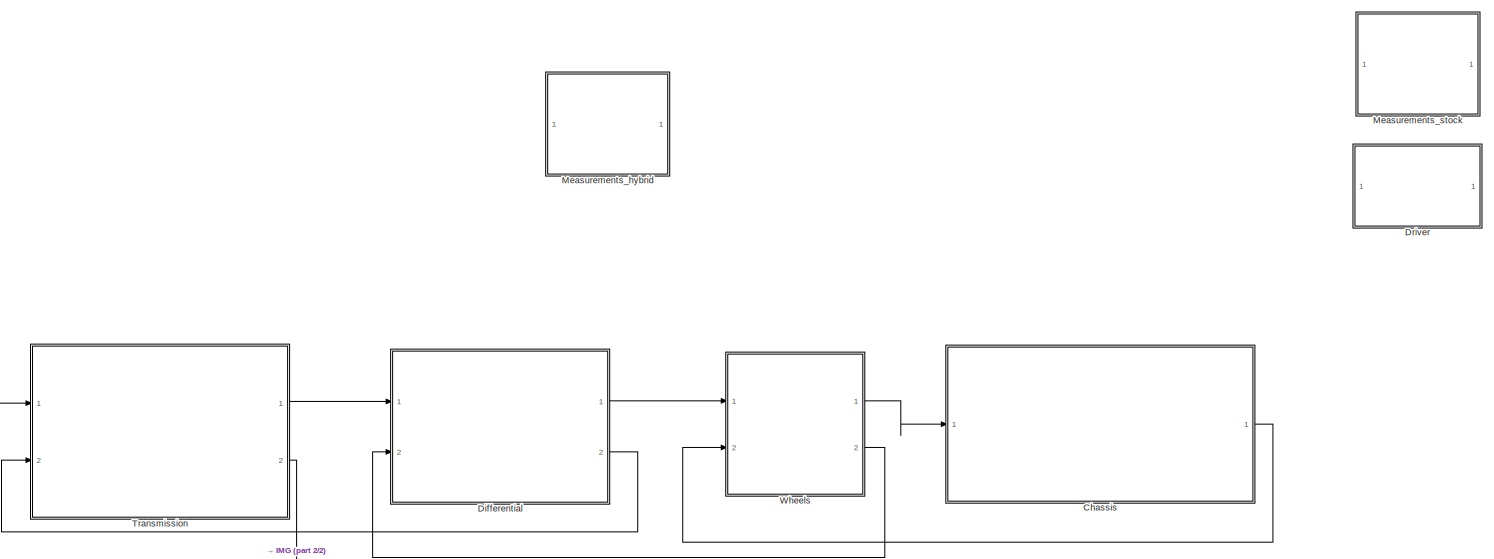
[diagram: root canvas - part 1/2, center side, full height]
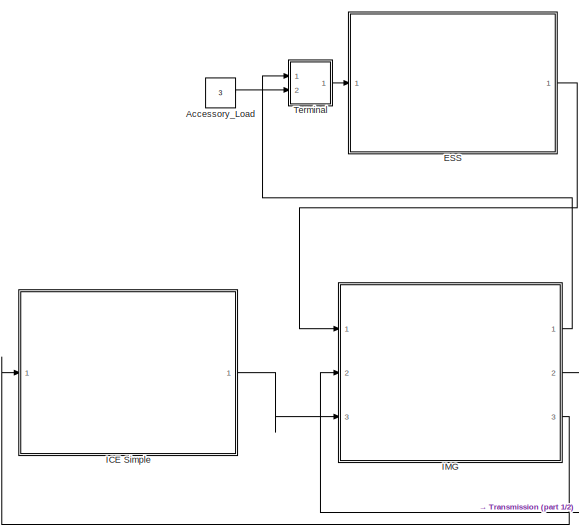
[diagram: root canvas - part 2/2, left side, full height]
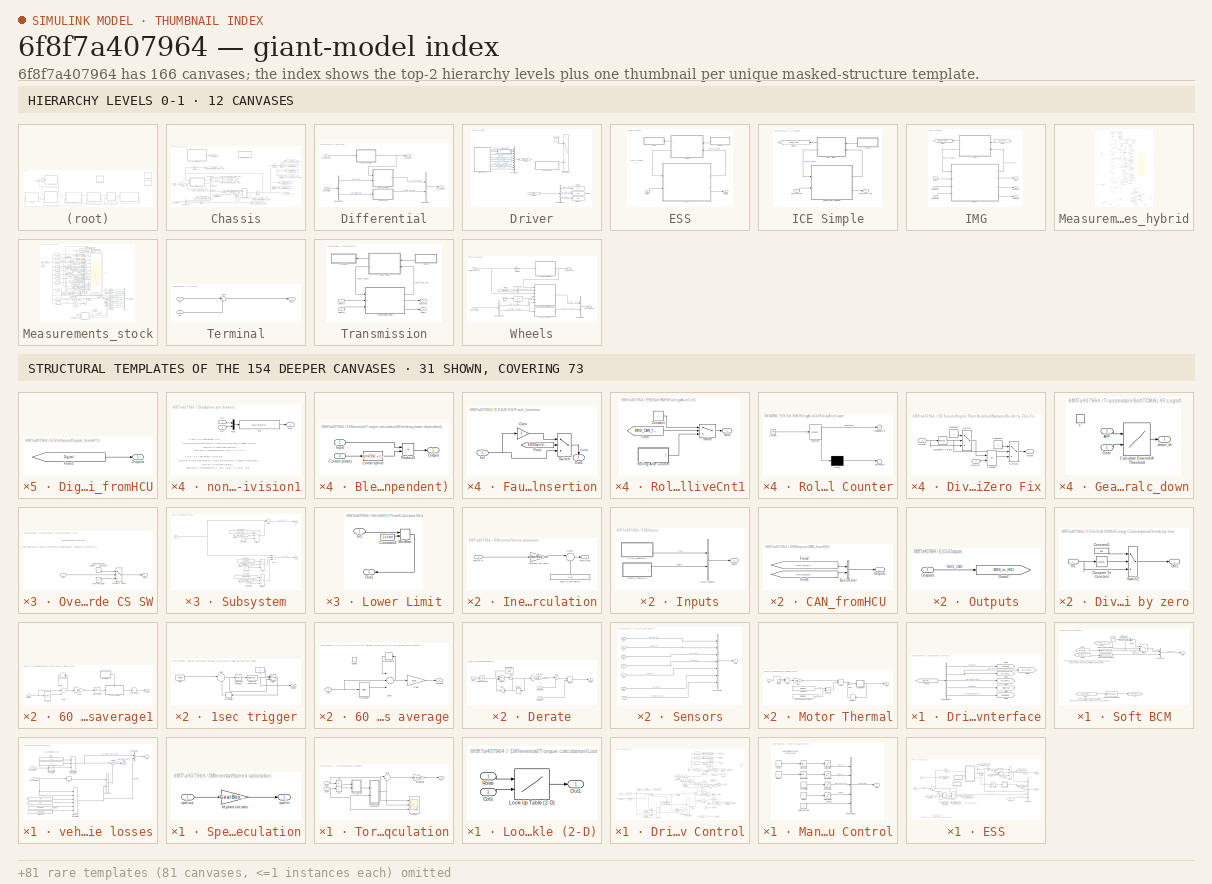
[diagram: thumbnail index - top-2 hierarchy levels (12 canvases) + 31 structural-template representatives of the remaining 154 canvases]
MODEL slx_6f8f7a407964
KIND model
CONFIG AbsTol = auto
CONFIG EnableMultiTasking = on
CONFIG FixedStep = 0.01
CONFIG MaxStep = auto
CONFIG MinStep = auto
CONFIG RelTol = 1e-3
CONFIG SampleTimeConstraint = Unconstrained
CONFIG Solver = ode1
CONFIG SolverName = ode1
CONFIG StartTime = 0.0
CONFIG StopTime = 1400
BLOCK [Constant] Accessory_Load
  Value = 3
BLOCK [SubSystem] Chassis
  AncestorBlock = Chassis/Chassis
  Ports = [1, 1]
  RequestExecContextInheritance = off
  Variant = off
BLOCK [Saturate] Chassis/>1
  InputPortMap = u0
  LowerLimit = 0
  Ports = [1, 1]
  UpperLimit = inf
BLOCK [Goto] Chassis/BCM to HCU
  GotoTag = BCM_to_HCU
  TagVisibility = global
BLOCK [BusSelector] Chassis/Bus Selector
  OutputAsBus = off
  OutputSignals = veh_grade_force_simu,drag force
  Ports = [1, 2]
BLOCK [BusSelector] Chassis/Bus Selector1
  OutputAsBus = off
  OutputSignals = whl_force_out_simu,whl_mass_out_simu
  Ports = [1, 2]
BLOCK [Clock] Chassis/Clock
BLOCK [SubSystem] Chassis/Driver Interface
  Ports = []
  RequestExecContextInheritance = off
  Variant = off
BLOCK [BusSelector] Chassis/Driver Interface/Bus Selector1
  OutputAsBus = off
  OutputSignals = KeyPos,drv_APP1,drv_BPP_req_[%],ShiftLvrPos,EVSE_Plugged
  Ports = [1, 5]
BLOCK [From] Chassis/Driver Interface/From2
  GotoTag = Driver_Request2
  TagVisibility = global
BLOCK [Goto] Chassis/Driver Interface/Goto
  GotoTag = ShftLvrPos
  TagVisibility = global
BLOCK [Goto] Chassis/Driver Interface/Goto1
  GotoTag = drv_APP_percent
  TagVisibility = global
BLOCK [Goto] Chassis/Driver Interface/Goto2
  GotoTag = drv_BPP_percent
  TagVisibility = global
BLOCK [Goto] Chassis/Driver Interface/Goto3
  GotoTag = KeyPosition
  TagVisibility = global
BLOCK [Goto] Chassis/Driver Interface/Goto4
  GotoTag = drv_APP_percent2
  TagVisibility = global
BLOCK [Goto] Chassis/Driver Interface/Goto5
  GotoTag = EVSEPlugged
  TagVisibility = global
BLOCK [Lookup] Chassis/Grade
  InputValues = time
  SaturateOnIntegerOverflow = off
  Table = Grade
BLOCK [SubSystem] Chassis/Soft BCM
  Ports = [0, 1]
  RequestExecContextInheritance = off
  Variant = off
BLOCK [BusCreator] Chassis/Soft BCM/Bus Creator
  DisplayOption = bar
  InheritFromInputs = on
  Inputs = 2
  Ports = [2, 1]
BLOCK [Constant] Chassis/Soft BCM/Constant
  Value = 2
BLOCK [DataTypeConversion] Chassis/Soft BCM/Data Type Conversion1
  RndMeth = Floor
  SaturateOnIntegerOverflow = off
BLOCK [DataTypeConversion] Chassis/Soft BCM/Data Type Conversion2
  RndMeth = Floor
  SaturateOnIntegerOverflow = off
BLOCK [DataTypeConversion] Chassis/Soft BCM/Data Type Conversion3
  RndMeth = Floor
  SaturateOnIntegerOverflow = off
BLOCK [DataTypeConversion] Chassis/Soft BCM/Data Type Conversion4
  OutDataTypeStr = int8
  RndMeth = Floor
  SaturateOnIntegerOverflow = off
BLOCK [From] Chassis/Soft BCM/From
  GotoTag = chas_plant_lin_spd_out
  TagVisibility = global
BLOCK [From] Chassis/Soft BCM/From1
  GotoTag = KeyPosition
  TagVisibility = global
BLOCK [From] Chassis/Soft BCM/From2
  GotoTag = drv_BPP_percent
  TagVisibility = global
BLOCK [From] Chassis/Soft BCM/From3
  GotoTag = KeyPos_Flt_ON
BLOCK [Outport] Chassis/Soft BCM/Out1
  IconDisplay = Port number
BLOCK [Sum] Chassis/Soft BCM/Sum
  InputSameDT = off
  Inputs = |++
  OutDataTypeStr = Inherit: Inherit via internal rule
  Ports = [2, 1]
  SaturateOnIntegerOverflow = off
BLOCK [Switch] Chassis/Soft BCM/Switch
  InputSameDT = off
  SaturateOnIntegerOverflow = off
  Threshold = 1
BLOCK [Goto] Chassis/Soft BCM/goto
  GotoTag = VehSpdAvgDrvn
  TagVisibility = global
BLOCK [Sum] Chassis/Sum2
  IconShape = round
  Inputs = |++
  Ports = [2, 1]
BLOCK [Sum] Chassis/Sum3
  IconShape = round
  Inputs = -+
  Ports = [2, 1]
BLOCK [ToWorkspace] Chassis/To Workspace1
  Decimation = WORKSPACE_DECIMATION
  MaxDataPoints = inf
  Ports = [1]
  SampleTime = -1
  VariableName = distance_miles_hist
BLOCK [ToWorkspace] Chassis/To Workspace2
  Decimation = WORKSPACE_DECIMATION
  MaxDataPoints = inf
  Ports = [1]
  SampleTime = -1
  VariableName = veh_dist_meter_hist
BLOCK [ToWorkspace] Chassis/To Workspace3
  Decimation = WORKSPACE_DECIMATION
  MaxDataPoints = inf
  Ports = [1]
  SampleTime = -1
  VariableName = veh_spd_mps_hist
BLOCK [ToWorkspace] Chassis/To Workspace7
  Decimation = WORKSPACE_DECIMATION
  MaxDataPoints = inf
  Ports = [1]
  SampleTime = -1
  VariableName = veh_spd_mph_hist
BLOCK [Integrator] Chassis/Velocity1
  LimitOutput = on
  LowerSaturationLimit = 0
  Ports = [1, 1]
BLOCK [Integrator] Chassis/Velocity2
  LimitOutput = on
  LowerSaturationLimit = 0
  Ports = [1, 1]
BLOCK [Outport] Chassis/chas_lin_spd_out
  IconDisplay = Port number
BLOCK [Inport] Chassis/chas_shaft_in
  IconDisplay = Port number
BLOCK [Goto] Chassis/goto_chas_plant_force_grade_simu1
  GotoTag = chas_plant_force_grade
BLOCK [Goto] Chassis/goto_chas_plant_force_in_simu1
  GotoTag = chas_plant_force_in
  TagVisibility = global
BLOCK [Goto] Chassis/goto_chas_plant_force_loss_simu1
  GotoTag = chas_plant_force_loss
  TagVisibility = global
BLOCK [Goto] Chassis/goto_chas_plant_grade_simu
  GotoTag = chas_plant_grade
  TagVisibility = global
BLOCK [Goto] Chassis/goto_chas_plant_lin_accel_simu
  GotoTag = chas_plant_lin_accel
  TagVisibility = global
BLOCK [Goto] Chassis/goto_chas_plant_lin_accel_simu1
  GotoTag = veh_dist_miles
  TagVisibility = global
BLOCK [Goto] Chassis/goto_chas_plant_lin_accel_simu2
  GotoTag = veh_dist_km
  TagVisibility = global
BLOCK [Goto] Chassis/goto_chas_plant_lin_spd_out_simu
  GotoTag = chas_plant_lin_spd_out
  TagVisibility = global
BLOCK [Goto] Chassis/goto_chas_plant_mass_simu
  GotoTag = chas_plant_mass
  TagVisibility = global
BLOCK [Goto] Chassis/goto_chas_plant_mass_static_simu
  GotoTag = chas_plant_mass_static
  TagVisibility = global
BLOCK [Gain] Chassis/m to miles
  Gain = 0.00062
  OutDataTypeStr = Inherit: Inherit via internal rule
  ParamDataTypeStr = Inherit: Inherit via internal rule
  SaturateOnIntegerOverflow = off
BLOCK [Gain] Chassis/m to miles1
  Gain = 1/1000
  OutDataTypeStr = Inherit: Inherit via internal rule
  ParamDataTypeStr = Inherit: Inherit via internal rule
  SaturateOnIntegerOverflow = off
BLOCK [Gain] Chassis/m//s to kph
  Gain = 3.6
  OutDataTypeStr = Inherit: Inherit via internal rule
  ParamDataTypeStr = Inherit: Inherit via internal rule
  SaturateOnIntegerOverflow = off
BLOCK [Gain] Chassis/ms to mph
  Gain = 1/mph2ms
  OutDataTypeStr = Inherit: Inherit via internal rule
  ParamDataTypeStr = Inherit: Inherit via internal rule
  SaturateOnIntegerOverflow = off
BLOCK [SubSystem] Chassis/non-zero division1
  Ports = [2, 1]
  RequestExecContextInheritance = off
  Variant = off
BLOCK [Fcn] Chassis/non-zero division1/Fcn
  Expr = u[1]/(u[2]+(u[2]==0))*(u[2]!=0)
BLOCK [Inport] Chassis/non-zero division1/In1
  IconDisplay = Port number
BLOCK [Inport] Chassis/non-zero division1/In2
  IconDisplay = Port number
  Port = 2
BLOCK [Mux] Chassis/non-zero division1/Mux
  DisplayOption = bar
  Inputs = 2
  Ports = [2, 1]
BLOCK [Outport] Chassis/non-zero division1/Out1
  IconDisplay = Port number
BLOCK [SubSystem] Chassis/vehicle losses
  Ports = [2, 2]
  RequestExecContextInheritance = off
  Variant = off
BLOCK [BusCreator] Chassis/vehicle losses/Bus Creator
  DisplayOption = bar
  InheritFromInputs = on
  Inputs = 2
  Ports = [2, 1]
BLOCK [Product] Chassis/vehicle losses/Drag Force Calculation
  Inputs = 6
  Ports = [6, 1]
  RndMeth = Floor
BLOCK [Product] Chassis/vehicle losses/Grade Force Calculation
  Inputs = 3
  Ports = [3, 1]
  RndMeth = Floor
BLOCK [Product] Chassis/vehicle losses/Product1
  Ports = [2, 1]
  RndMeth = Floor
BLOCK [Inport] Chassis/vehicle losses/Road grade
  IconDisplay = Port number
  Port = 2
BLOCK [Signum] Chassis/vehicle losses/Sign
BLOCK [Sum] Chassis/vehicle losses/Sum3
  IconShape = round
  Inputs = |++
  Ports = [2, 1]
BLOCK [Trigonometry] Chassis/vehicle losses/Trigonometric Function
  Ports = [1, 1]
BLOCK [Constant] Chassis/vehicle losses/f1
  Value = rho
BLOCK [Constant] Chassis/vehicle losses/f2
  Value = 0.5
BLOCK [Constant] Chassis/vehicle losses/f4
  Value = g
BLOCK [Outport] Chassis/vehicle losses/info
  IconDisplay = Port number
BLOCK [Constant] Chassis/vehicle losses/mass
  Value = 1750
BLOCK [Constant] Chassis/vehicle losses/mass1
  Value = Vehicle.FrontalArea
BLOCK [Constant] Chassis/vehicle losses/mass2
  Value = Vehicle.Drag
BLOCK [Inport] Chassis/vehicle losses/veh spd simu
  IconDisplay = Port number
BLOCK [Outport] Chassis/vehicle losses/veh_force_loss_simu
  IconDisplay = Port number
  Port = 2
BLOCK [Constant] Chassis/vehicle total mass
  Value = veh.init.mass
BLOCK [SubSystem] Differential
  AncestorBlock = Differential/Differential
  Ports = [2, 2]
  RequestExecContextInheritance = off
  Variant = off
BLOCK [BusCreator] Differential/Bus Creator
  DisplayOption = bar
  InheritFromInputs = on
  Inputs = 2
  Ports = [2, 1]
BLOCK [BusSelector] Differential/Bus Selector
  OutputAsBus = off
  OutputSignals = gb_trq_out,gb_inertia_out
  Ports = [1, 2]
BLOCK [SubSystem] Differential/Inertia calculation
  Ports = [1, 1]
  RequestExecContextInheritance = off
  Variant = off
BLOCK [Constant] Differential/Inertia calculation/Final Drive inertia
  Value = 0.02
BLOCK [Sum] Differential/Inertia calculation/Sum3
  IconShape = round
  Inputs = |++
  Ports = [2, 1]
BLOCK [Gain] Differential/Inertia calculation/fd.plant.init.ratio 
  Gain = GearBox.L45.FinalDriveRatio
BLOCK [Inport] Differential/Inertia calculation/inertia in
  IconDisplay = Port number
BLOCK [Outport] Differential/Inertia calculation/inertia out
  IconDisplay = Port number
BLOCK [SubSystem] Differential/Speed calculation
  Ports = [1, 1]
  RequestExecContextInheritance = off
  Variant = off
BLOCK [Gain] Differential/Speed calculation/fd.plant.init.ratio
  Gain = GearBox.L45.FinalDriveRatio
BLOCK [Outport] Differential/Speed calculation/spd in
  IconDisplay = Port number
BLOCK [Inport] Differential/Speed calculation/spd out
  IconDisplay = Port number
BLOCK [SubSystem] Differential/Torque calculation
  Ports = [2, 1]
  RequestExecContextInheritance = off
  Variant = off
BLOCK [Abs] Differential/Torque calculation/Abs
BLOCK [Abs] Differential/Torque calculation/Abs1
BLOCK [SubSystem] Differential/Torque calculation/Blending (state dependent)
  Ports = [2, 1]
  RequestExecContextInheritance = off
  ShowPortLabels = none
  Variant = off
BLOCK [Inport] Differential/Torque calculation/Blending (state dependent)/Control (state)
  IconDisplay = Port number
  Port = 2
BLOCK [Inport] Differential/Torque calculation/Blending (state dependent)/Input
  IconDisplay = Port number
BLOCK [Fcn] Differential/Torque calculation/Blending (state dependent)/Linear spline
  Expr = (u<xl)*yl + (xl<=u)*(u<xc)*((yc-yl)*(u-xl)/(xc-xl)+yl) + (xc<=u)*(u<xr)*((yc-yr)*(u-xr)/(xc-xr)+yr) + (xr<=u)*yr
BLOCK [Outport] Differential/Torque calculation/Blending (state dependent)/Output
  IconDisplay = Port number
BLOCK [Product] Differential/Torque calculation/Blending (state dependent)/Product2
  Ports = [2, 1]
  RndMeth = Floor
BLOCK [SubSystem] Differential/Torque calculation/Look-Up Table (2-D)
  Ports = [2, 1]
  RequestExecContextInheritance = off
  Variant = off
BLOCK [Inport] Differential/Torque calculation/Look-Up Table (2-D)/Cols
  IconDisplay = Port number
  Port = 2
BLOCK [Lookup2D] Differential/Torque calculation/Look-Up Table (2-D)/Look-Up Table (2-D)
  ColumnIndex = y
  RowIndex = x
  Table = t
BLOCK [Outport] Differential/Torque calculation/Look-Up Table (2-D)/Out1
  IconDisplay = Port number
BLOCK [Inport] Differential/Torque calculation/Look-Up Table (2-D)/Rows
  IconDisplay = Port number
BLOCK [Scope] Differential/Torque calculation/Scope
  NumInputPorts = 3
  Ports = [3]
  ScopeSpecificationString = C++SS(StrPVP('Location','[1, 49, 1363, 727]'),StrPVP('Open','off'),StrPVP('ZoomMode','yonly'),MxPVP('AxesTitles',53,'struct(''axes1'',''%<SignalLabel>'',''axes2'',''%<SignalLabel>'',''axes3'',''%<SignalLabel>'')'),MxPVP('ScopeGraphics',56,'struct(''FigureColor'',''[0.5 0.5 0.5]'',''AxesColor'',''[0 0 0]'',''AxesTickColor'',''[1 1 1]'',''LineColors'',''[1 1 0;1 0 1;0 1 1;1 0 0;0 1 0;0 0 1]'',''Line...<+328ch>
BLOCK [Sum] Differential/Torque calculation/Sum2
  IconShape = round
  Inputs = |+-
  Ports = [2, 1]
BLOCK [Gain] Differential/Torque calculation/fd.plant.init.ratio
  Gain = GearBox.L45.FinalDriveRatio
BLOCK [Inport] Differential/Torque calculation/spd in
  IconDisplay = Port number
BLOCK [Inport] Differential/Torque calculation/trq in
  IconDisplay = Port number
  Port = 2
BLOCK [Outport] Differential/Torque calculation/trq out
  IconDisplay = Port number
BLOCK [Inport] Differential/fd_shaft_in
  IconDisplay = Port number
BLOCK [Outport] Differential/fd_shaft_out
  IconDisplay = Port number
BLOCK [Outport] Differential/fd_spd_in
  IconDisplay = Port number
  Port = 2
BLOCK [Inport] Differential/fd_spd_out
  IconDisplay = Port number
  Port = 2
BLOCK [SubSystem] Driver
  Commented = on
  Ports = []
  RequestExecContextInheritance = off
  Variant = off
BLOCK [BusCreator] Driver/Bus Creator
  DisplayOption = bar
  InheritFromInputs = on
  Inputs = 10
  Ports = [10, 1]
BLOCK [BusSelector] Driver/Bus Selector
  OutputAsBus = off
  OutputSignals = GFD_Light,HV_Chg_Light,Veh_Ready_Light
  Ports = [1, 3]
BLOCK [Constant] Driver/Constant
  Commented = on
  Value = 0
BLOCK [Display] Driver/Display
  Decimation = 1
  Ports = [1]
BLOCK [Display] Driver/Display1
  Decimation = 1
  Ports = [1]
BLOCK [Display] Driver/Display2
  Decimation = 1
  Ports = [1]
BLOCK [SubSystem] Driver/Driver Control
  Ports = [0, 9]
  RequestExecContextInheritance = off
  Variant = off
BLOCK [Gain] Driver/Driver Control/ 
  Gain = -2
  OutDataTypeStr = Inherit: Inherit via internal rule
  ParamDataTypeStr = Inherit: Inherit via internal rule
  SaturateOnIntegerOverflow = off
BLOCK [RelationalOperator] Driver/Driver Control/    
  Operator = <
  Ports = [2, 1]
BLOCK [RelationalOperator] Driver/Driver Control/    1
  Operator = <
  Ports = [2, 1]
BLOCK [RelationalOperator] Driver/Driver Control/  1
  Operator = <
  Ports = [2, 1]
BLOCK [Saturate] Driver/Driver Control/0 to 100%
  InputPortMap = u0
  LowerLimit = 0
  Ports = [1, 1]
  UpperLimit = 100
BLOCK [Saturate] Driver/Driver Control/0 to 100% 
  InputPortMap = u0
  LowerLimit = 0
  Ports = [1, 1]
  UpperLimit = 100
BLOCK [Outport] Driver/Driver Control/APP[%]
  IconDisplay = Port number
  Port = 2
BLOCK [Constant] Driver/Driver Control/APP_value0_100
  Value = 0
BLOCK [Outport] Driver/Driver Control/BPP[%]
  IconDisplay = Port number
  Port = 3
BLOCK [Constant] Driver/Driver Control/BPP_value0_100
  Value = 0
BLOCK [Outport] Driver/Driver Control/CS_On
  IconDisplay = Port number
  Port = 9
BLOCK [Constant] Driver/Driver Control/Charger
  Value = 0
BLOCK [Clock] Driver/Driver Control/Clock
BLOCK [Clock] Driver/Driver Control/Clock1
BLOCK [Clock] Driver/Driver Control/Clock2
BLOCK [Reference] Driver/Driver Control/Compare To Constant  REF=simulink/Logic and Bit
Operations/Compare
To Constant
  Ports = [1, 1]
  SourceBlock = simulink/Logic and Bit\nOperations/Compare\nTo Constant
  SourceProductBaseCode = SL
  SourceProductName = Simulink
  SourceType = Compare To Constant
BLOCK [Reference] Driver/Driver Control/Compare To Constant1  REF=simulink/Logic and Bit
Operations/Compare
To Constant
  Ports = [1, 1]
  SourceBlock = simulink/Logic and Bit\nOperations/Compare\nTo Constant
  SourceProductBaseCode = SL
  SourceProductName = Simulink
  SourceType = Compare To Constant
BLOCK [Reference] Driver/Driver Control/Compare To Constant2  REF=simulink/Logic and Bit
Operations/Compare
To Constant
  Ports = [1, 1]
  SourceBlock = simulink/Logic and Bit\nOperations/Compare\nTo Constant
  SourceProductBaseCode = SL
  SourceProductName = Simulink
  SourceType = Compare To Constant
BLOCK [Constant] Driver/Driver Control/Constant
  Value = 0
BLOCK [Constant] Driver/Driver Control/Constant1
  Value = 4
BLOCK [DataTypeConversion] Driver/Driver Control/Conversion  APP1 (%)
  OutDataTypeStr = int8
  RndMeth = Floor
  SaturateOnIntegerOverflow = off
BLOCK [DataTypeConversion] Driver/Driver Control/Data Type Conversion
  OutDataTypeStr = int8
  RndMeth = Floor
  SaturateOnIntegerOverflow = off
BLOCK [DataTypeConversion] Driver/Driver Control/Data Type Conversion1
  OutDataTypeStr = int8
  RndMeth = Floor
  SaturateOnIntegerOverflow = off
BLOCK [DataTypeConversion] Driver/Driver Control/Data Type Conversion2
  OutDataTypeStr = boolean
  RndMeth = Floor
  SaturateOnIntegerOverflow = off
BLOCK [DataTypeConversion] Driver/Driver Control/Data Type Conversion3
  OutDataTypeStr = boolean
  RndMeth = Floor
  SaturateOnIntegerOverflow = off
BLOCK [DataTypeConversion] Driver/Driver Control/Data Type Conversion4
  OutDataTypeStr = boolean
  RndMeth = Floor
  SaturateOnIntegerOverflow = off
BLOCK [Outport] Driver/Driver Control/EVSE_Pluggin
  IconDisplay = Port number
  Port = 5
BLOCK [Outport] Driver/Driver Control/Engine_On
  IconDisplay = Port number
  Port = 8
BLOCK [From] Driver/Driver Control/From1
  GotoTag = VehSpdAvgDrvn
  TagVisibility = global
BLOCK [From] Driver/Driver Control/From2
  GotoTag = VehSpdAvgDrvn
  TagVisibility = global
BLOCK [From] Driver/Driver Control/From3
  GotoTag = VehSpdAvgDrvn
  TagVisibility = global
BLOCK [From] Driver/Driver Control/From4
  GotoTag = PRNDL_Flt_ON
  TagVisibility = global
BLOCK [Goto] Driver/Driver Control/Goto
  GotoTag = veh_speed
  TagVisibility = global
BLOCK [Outport] Driver/Driver Control/Key Position
  IconDisplay = Port number
BLOCK [Constant] Driver/Driver Control/KeyPos_value0_4
  Value = 0
BLOCK [Lookup] Driver/Driver Control/Key_Position
  InputValues = time
  SaturateOnIntegerOverflow = off
  Table = KeyPosition
BLOCK [Reference] Driver/Driver Control/Latch  REF=Utility/Latch
  Ports = [2, 1]
  SourceBlock = Utility/Latch
  SourceType = SubSystem
BLOCK [Logic] Driver/Driver Control/Logical Operator
  AllPortsSameDT = off
  OutDataTypeStr = boolean
  Ports = [2, 1]
BLOCK [Logic] Driver/Driver Control/Logical Operator1
  AllPortsSameDT = off
  Operator = NOT
  OutDataTypeStr = boolean
  Ports = [1, 1]
BLOCK [Logic] Driver/Driver Control/Logical Operator2
  AllPortsSameDT = off
  Operator = OR
  OutDataTypeStr = boolean
  Ports = [2, 1]
BLOCK [Logic] Driver/Driver Control/Logical Operator3
  AllPortsSameDT = off
  OutDataTypeStr = boolean
  Ports = [2, 1]
BLOCK [SubSystem] Driver/Driver Control/Override CS SW
  Ports = [1, 1]
  RequestExecContextInheritance = off
  Variant = off
BLOCK [Inport] Driver/Driver Control/Override CS SW/In1
  IconDisplay = Port number
BLOCK [MultiPortSwitch] Driver/Driver Control/Override CS SW/Multiport Switch
  DataPortOrder = Zero-based contiguous
  InputSameDT = off
  Inputs = 2
  Ports = [3, 1]
  SaturateOnIntegerOverflow = off
  zeroidx = on
BLOCK [Outport] Driver/Driver Control/Override CS SW/Out1
  IconDisplay = Port number
BLOCK [Constant] Driver/Driver Control/Override CS SW/Override Value
  OutDataTypeStr = double
  Value = 0
BLOCK [Constant] Driver/Driver Control/Override CS SW/Signal Override Switch 0 = Use Model 1 = Use Constant
BLOCK [SubSystem] Driver/Driver Control/Override Engine SW
  Ports = [1, 1]
  RequestExecContextInheritance = off
  Variant = off
BLOCK [Inport] Driver/Driver Control/Override Engine SW/In1
  IconDisplay = Port number
BLOCK [MultiPortSwitch] Driver/Driver Control/Override Engine SW/Multiport Switch
  DataPortOrder = Zero-based contiguous
  InputSameDT = off
  Inputs = 2
  Ports = [3, 1]
  SaturateOnIntegerOverflow = off
  zeroidx = on
BLOCK [Outport] Driver/Driver Control/Override Engine SW/Out1
  IconDisplay = Port number
BLOCK [Constant] Driver/Driver Control/Override Engine SW/Override Value
  OutDataTypeStr = double
  Value = 0
BLOCK [Constant] Driver/Driver Control/Override Engine SW/Signal Override Switch 0 = Use Model 1 = Use Constant
BLOCK [SubSystem] Driver/Driver Control/Override Regen SW
  Ports = [1, 1]
  RequestExecContextInheritance = off
  Variant = off
BLOCK [Inport] Driver/Driver Control/Override Regen SW/In1
  IconDisplay = Port number
BLOCK [MultiPortSwitch] Driver/Driver Control/Override Regen SW/Multiport Switch
  DataPortOrder = Zero-based contiguous
  InputSameDT = off
  Inputs = 2
  Ports = [3, 1]
  SaturateOnIntegerOverflow = off
  zeroidx = on
BLOCK [Outport] Driver/Driver Control/Override Regen SW/Out1
  IconDisplay = Port number
BLOCK [Constant] Driver/Driver Control/Override Regen SW/Override Value
  OutDataTypeStr = double
  Value = 0
BLOCK [Constant] Driver/Driver Control/Override Regen SW/Signal Override Switch 0 = Use Model 1 = Use Constant
BLOCK [Constant] Driver/Driver Control/Override_APP
  Value = 0
BLOCK [Constant] Driver/Driver Control/Override_BPP
  Value = 0
BLOCK [Constant] Driver/Driver Control/Override_KeyPos
  Value = 0
BLOCK [Constant] Driver/Driver Control/Override_PRNDL
  Value = 0
BLOCK [Constant] Driver/Driver Control/PRNDL_value0_4
  Value = 0
BLOCK [Lookup] Driver/Driver Control/RegenBrkDisable
  InputValues = time
  SaturateOnIntegerOverflow = off
  Table = RegenBrkDisable
BLOCK [Outport] Driver/Driver Control/Regen_Disable
  IconDisplay = Port number
  Port = 7
BLOCK [Integrator] Driver/Driver Control/Reset Integrator IF drv spd dmd very low AND AND current vehicle speed very low
  ExternalReset = either
  Ports = [2, 1]
BLOCK [Lookup] Driver/Driver Control/SW_Engine_ON
  InputValues = time
  SaturateOnIntegerOverflow = off
  Table = SW_Engine_ON
BLOCK [Outport] Driver/Driver Control/Shift Lever Position
  IconDisplay = Port number
  Port = 4
BLOCK [Lookup] Driver/Driver Control/Shift_Lever_Position
  InputValues = time
  SaturateOnIntegerOverflow = off
  Table = ShiftLeverPosition
BLOCK [Lookup] Driver/Driver Control/Speed
  InputValues = time
  SaturateOnIntegerOverflow = off
  Table = Speed
BLOCK [Sum] Driver/Driver Control/Subtract
  InputSameDT = off
  Inputs = +-
  OutDataTypeStr = Inherit: Inherit via internal rule
  Ports = [2, 1]
  SaturateOnIntegerOverflow = off
BLOCK [Sum] Driver/Driver Control/Sum
  IconShape = round
  Inputs = |++
  Ports = [2, 1]
BLOCK [Switch] Driver/Driver Control/Switch
  InputSameDT = off
  SaturateOnIntegerOverflow = off
  Threshold = 0.5
BLOCK [Switch] Driver/Driver Control/Switch1
  InputSameDT = off
  SaturateOnIntegerOverflow = off
  Threshold = 1
BLOCK [Switch] Driver/Driver Control/Switch2
  InputSameDT = off
  SaturateOnIntegerOverflow = off
  Threshold = 0.5
BLOCK [Switch] Driver/Driver Control/Switch3
  Criteria = u2 > Threshold
  InputSameDT = off
  SaturateOnIntegerOverflow = off
BLOCK [Switch] Driver/Driver Control/Switch4
  Criteria = u2 > Threshold
  InputSameDT = off
  SaturateOnIntegerOverflow = off
BLOCK [Switch] Driver/Driver Control/Switch5
  Criteria = u2 > Threshold
  InputSameDT = off
  SaturateOnIntegerOverflow = off
BLOCK [Switch] Driver/Driver Control/Switch6
  Criteria = u2 > Threshold
  InputSameDT = off
  SaturateOnIntegerOverflow = off
BLOCK [Lookup] Driver/Driver Control/Switch_CS_ON
  InputValues = time
  SaturateOnIntegerOverflow = off
  Table = SW_CS_ON
BLOCK [Outport] Driver/Driver Control/Veh_Spd
  IconDisplay = Port number
  Port = 6
BLOCK [Constant] Driver/Driver Control/drv.ctrl.init.chas_spd_below_chas_stopped 
  Value = 2
BLOCK [Gain] Driver/Driver Control/drv.ctrl.init.ki
BLOCK [Gain] Driver/Driver Control/drv.ctrl.init.kp
  Gain = 25
BLOCK [Gain] Driver/Driver Control/kph to m//s
  Gain = 1/3.606
BLOCK [Gain] Driver/Driver Control/m//s to mph
  Gain = 1/mph2ms
  OutDataTypeStr = Inherit: Inherit via internal rule
  ParamDataTypeStr = Inherit: Inherit via internal rule
  SaturateOnIntegerOverflow = off
BLOCK [Gain] Driver/Driver Control/mph to kph
  Gain = 1.60934
  OutDataTypeStr = Inherit: Inherit via internal rule
  ParamDataTypeStr = Inherit: Inherit via internal rule
  SaturateOnIntegerOverflow = off
BLOCK [Constant] Driver/Driver Control/standing brake pedal
  Value = 50
BLOCK [From] Driver/From1
  GotoTag = Digital
  TagVisibility = global
BLOCK [Goto] Driver/Goto2
  GotoTag = Driver_Request
  TagVisibility = global
BLOCK [SubSystem] Driver/Manual Control
  Commented = on
  Ports = [0, 1]
  RequestExecContextInheritance = off
  Variant = off
BLOCK [Constant] Driver/Manual Control/APP[%]
BLOCK [Constant] Driver/Manual Control/BPP[%]
  Value = -1
BLOCK [BusCreator] Driver/Manual Control/Bus Creator1
  DisplayOption = bar
  InheritFromInputs = on
  Inputs = 5
  Ports = [5, 1]
BLOCK [Constant] Driver/Manual Control/KeyPosition
  Value = 3
BLOCK [Outport] Driver/Manual Control/Out1
  IconDisplay = Port number
BLOCK [Constant] Driver/Manual Control/PRNDL
  Value = 4
BLOCK [Constant] Driver/Manual Control/ReferenceVel1
  Value = 0
BLOCK [Saturate] Driver/Manual Control/Saturation
  InputPortMap = u0
  LowerLimit = 0
  Ports = [1, 1]
  UpperLimit = 100
BLOCK [Saturate] Driver/Manual Control/Saturation1
  InputPortMap = u0
  LowerLimit = -100
  Ports = [1, 1]
  UpperLimit = 0
BLOCK [Saturate] Driver/Manual Control/Saturation2
  InputPortMap = u0
  LowerLimit = 0
  Ports = [1, 1]
  UpperLimit = 3
BLOCK [Saturate] Driver/Manual Control/Saturation3
  InputPortMap = u0
  LowerLimit = 0
  Ports = [1, 1]
  UpperLimit = 4
BLOCK [Reference] Driver/Manual Control/Slider Gain  REF=simulink/Math
Operations/Slider
Gain
  Ports = [1, 1]
  SourceBlock = simulink/Math\nOperations/Slider\nGain
  SourceProductBaseCode = SL
  SourceProductName = Simulink
  SourceType = Slider Gain
BLOCK [Reference] Driver/Manual Control/Slider Gain1  REF=simulink/Math
Operations/Slider
Gain
  Ports = [1, 1]
  SourceBlock = simulink/Math\nOperations/Slider\nGain
  SourceProductBaseCode = SL
  SourceProductName = Simulink
  SourceType = Slider Gain
BLOCK [MultiPortSwitch] Driver/Multiport Switch1
  Commented = on
  DataPortOrder = Zero-based contiguous
  InputSameDT = off
  Inputs = 2
  Ports = [3, 1]
  SaturateOnIntegerOverflow = off
BLOCK [SubSystem] Driver/Subsystem
  Ports = [1, 2]
  RequestExecContextInheritance = off
  Variant = off
BLOCK [Outport] Driver/Subsystem/APP1
  IconDisplay = Port number
BLOCK [Outport] Driver/Subsystem/APP2
  IconDisplay = Port number
  Port = 2
BLOCK [Sum] Driver/Subsystem/Add1
  InputSameDT = off
  Inputs = +++
  OutDataTypeStr = Inherit: Inherit via internal rule
  Ports = [3, 1]
  SaturateOnIntegerOverflow = off
BLOCK [Sum] Driver/Subsystem/Add2
  InputSameDT = off
  OutDataTypeStr = Inherit: Inherit via internal rule
  Ports = [2, 1]
  SaturateOnIntegerOverflow = off
BLOCK [Constant] Driver/Subsystem/Constant1
  Value = 0
BLOCK [Constant] Driver/Subsystem/Constant2
  Value = cal.APP.Mismatch_Value+0.1
BLOCK [Constant] Driver/Subsystem/Constant3
  Value = 0
BLOCK [Constant] Driver/Subsystem/Constant4
  Value = cal.APP2.IN_Max_SC_Prcnt+1
BLOCK [Constant] Driver/Subsystem/Constant5
  Value = 0
BLOCK [Constant] Driver/Subsystem/Constant6
  Value = cal.APP2.IN_Max_SC_Prcnt+1
BLOCK [From] Driver/Subsystem/From1
  GotoTag = APP2_OOR_ON
  TagVisibility = global
BLOCK [From] Driver/Subsystem/From2
  GotoTag = APP2_OOR_ON
  TagVisibility = global
BLOCK [From] Driver/Subsystem/From4
  GotoTag = Mismatch_APP_ON
  TagVisibility = global
BLOCK [Inport] Driver/Subsystem/In1
  IconDisplay = Port number
BLOCK [Switch] Driver/Subsystem/Switch
  InputSameDT = off
  SaturateOnIntegerOverflow = off
  Threshold = 1
BLOCK [Switch] Driver/Subsystem/Switch1
  InputSameDT = off
  SaturateOnIntegerOverflow = off
  Threshold = 1
BLOCK [Switch] Driver/Subsystem/Switch2
  InputSameDT = off
  SaturateOnIntegerOverflow = off
  Threshold = 1
BLOCK [SubSystem] ESS
  AncestorBlock = lib_ESS_plant_V1_2/ESS
  Ports = [1, 1]
  RequestExecContextInheritance = off
  Variant = off
BLOCK [SubSystem] ESS/ESS
  Ports = [2, 2]
  RequestExecContextInheritance = off
  Variant = off
BLOCK [Memory] ESS/ESS/0 current
  InheritSampleTime = on
BLOCK [SubSystem] ESS/ESS/Bosch_Li_Cell
  Ports = [1, 3, 0, 0, 0, 1]
  RequestExecContextInheritance = off
  Variant = off
BLOCK [Sum] ESS/ESS/Bosch_Li_Cell/1-Q//C
  InputSameDT = off
  Inputs = +-
  OutDataTypeStr = Inherit: Inherit via internal rule
  Ports = [2, 1]
  SaturateOnIntegerOverflow = off
BLOCK [Abs] ESS/ESS/Bosch_Li_Cell/Abs
  SaturateOnIntegerOverflow = off
BLOCK [Reference] ESS/ESS/Bosch_Li_Cell/Battery thermal mass  REF=fl_lib/Thermal/Thermal Elements/Thermal Mass
  Ports = [0, 0, 0, 0, 0, 1]
  SourceBlock = fl_lib/Thermal/Thermal Elements/Thermal Mass
  SourceProductBaseCode = SS
  SourceProductName = Simscape
  SourceType = Thermal Mass
BLOCK [Constant] ESS/ESS/Bosch_Li_Cell/C_1
  Value = 100000
BLOCK [Constant] ESS/ESS/Bosch_Li_Cell/Chg
  Value = Chg*3600
BLOCK [Clock] ESS/ESS/Bosch_Li_Cell/Clock
BLOCK [From] ESS/ESS/Bosch_Li_Cell/From
  GotoTag = Temp
  TagVisibility = global
BLOCK [From] ESS/ESS/Bosch_Li_Cell/From1
  GotoTag = I_bat
BLOCK [From] ESS/ESS/Bosch_Li_Cell/From2
  GotoTag = I_bat
BLOCK [From] ESS/ESS/Bosch_Li_Cell/From3
  GotoTag = I_bat
BLOCK [From] ESS/ESS/Bosch_Li_Cell/From4
  GotoTag = I_bat
BLOCK [From] ESS/ESS/Bosch_Li_Cell/From5
  GotoTag = SOC
BLOCK [Gain] ESS/ESS/Bosch_Li_Cell/Gain
  Gain = -1
  OutDataTypeStr = Inherit: Inherit via internal rule
  ParamDataTypeStr = Inherit: Inherit via internal rule
  SaturateOnIntegerOverflow = off
BLOCK [Gain] ESS/ESS/Bosch_Li_Cell/Gain1
  Gain = Cells
  OutDataTypeStr = Inherit: Inherit via internal rule
  ParamDataTypeStr = Inherit: Inherit via internal rule
  SaturateOnIntegerOverflow = off
BLOCK [Gain] ESS/ESS/Bosch_Li_Cell/Gain2
  Gain = -1
  OutDataTypeStr = Inherit: Inherit via internal rule
  ParamDataTypeStr = Inherit: Inherit via internal rule
  SaturateOnIntegerOverflow = off
BLOCK [Goto] ESS/ESS/Bosch_Li_Cell/Goto
  GotoTag = Temp
  TagVisibility = global
BLOCK [Goto] ESS/ESS/Bosch_Li_Cell/Goto1
  GotoTag = I_bat
BLOCK [Goto] ESS/ESS/Bosch_Li_Cell/Goto2
  GotoTag = SOC
BLOCK [PMIOPort] ESS/ESS/Bosch_Li_Cell/H
  Port = 1
  Side = Left
  Tag = PMCPort
BLOCK [Inport] ESS/ESS/Bosch_Li_Cell/I
  IconDisplay = Port number
BLOCK [Product] ESS/ESS/Bosch_Li_Cell/I//C
  InputSameDT = off
  Inputs = */
  OutDataTypeStr = Inherit: Inherit via internal rule
  Ports = [2, 1]
  RndMeth = Floor
  SaturateOnIntegerOverflow = off
BLOCK [Product] ESS/ESS/Bosch_Li_Cell/IR
  InputSameDT = off
  Inputs = **
  OutDataTypeStr = Inherit: Inherit via internal rule
  Ports = [2, 1]
  RndMeth = Floor
  SaturateOnIntegerOverflow = off
BLOCK [Reference] ESS/ESS/Bosch_Li_Cell/Ideal Heat Flow Source  REF=fl_lib/Thermal/Thermal Sources/Ideal Heat Flow
Source
  Ports = [0, 0, 0, 0, 0, 1, 2]
  SourceBlock = fl_lib/Thermal/Thermal Sources/Ideal Heat Flow\nSource
  SourceProductBaseCode = SS
  SourceProductName = Simscape
  SourceType = Ideal Heat Flow\nSource
BLOCK [Reference] ESS/ESS/Bosch_Li_Cell/Ideal Temperature Sensor  REF=fl_lib/Thermal/Thermal Sensors/Ideal Temperature
Sensor
  Ports = [0, 0, 0, 0, 0, 1, 2]
  SourceBlock = fl_lib/Thermal/Thermal Sensors/Ideal Temperature\nSensor
  SourceProductBaseCode = SS
  SourceProductName = Simscape
  SourceType = Ideal Temperature\nSensor
BLOCK [Product] ESS/ESS/Bosch_Li_Cell/Idt
  InputSameDT = off
  Inputs = **
  OutDataTypeStr = Inherit: Inherit via internal rule
  Ports = [2, 1]
  RndMeth = Floor
  SaturateOnIntegerOverflow = off
BLOCK [Product] ESS/ESS/Bosch_Li_Cell/Iloss
  InputSameDT = off
  Inputs = */
  OutDataTypeStr = Inherit: Inherit via internal rule
  Ports = [2, 1]
  RndMeth = Floor
  SaturateOnIntegerOverflow = off
BLOCK [Memory] ESS/ESS/Bosch_Li_Cell/Memory
  InheritSampleTime = on
BLOCK [Memory] ESS/ESS/Bosch_Li_Cell/Memory1
  InheritSampleTime = on
  X0 = SOC_init/100
BLOCK [Memory] ESS/ESS/Bosch_Li_Cell/Memory2
  InheritSampleTime = on
BLOCK [Memory] ESS/ESS/Bosch_Li_Cell/Memory4
  X0 = 298
BLOCK [Product] ESS/ESS/Bosch_Li_Cell/P
  InputSameDT = off
  Inputs = **
  OutDataTypeStr = Inherit: Inherit via internal rule
  Ports = [2, 1]
  RndMeth = Floor
  SaturateOnIntegerOverflow = off
BLOCK [Reference] ESS/ESS/Bosch_Li_Cell/PS-Simulink Converter  REF=nesl_utility/PS-Simulink
Converter
  Ports = [0, 1, 0, 0, 0, 1]
  SourceBlock = nesl_utility/PS-Simulink\nConverter
  SourceProductBaseCode = SS
  SourceProductName = Simscape
  SourceType = PS-Simulink\nConverter
BLOCK [Product] ESS/ESS/Bosch_Li_Cell/Q//C
  InputSameDT = off
  Inputs = /*
  OutDataTypeStr = Inherit: Inherit via internal rule
  Ports = [2, 1]
  RndMeth = Floor
  SaturateOnIntegerOverflow = off
BLOCK [Sum] ESS/ESS/Bosch_Li_Cell/Q1
  InputSameDT = off
  OutDataTypeStr = Inherit: Inherit via internal rule
  Ports = [2, 1]
  SaturateOnIntegerOverflow = off
BLOCK [Product] ESS/ESS/Bosch_Li_Cell/RC
  InputSameDT = off
  Inputs = **
  OutDataTypeStr = Inherit: Inherit via internal rule
  Ports = [2, 1]
  RndMeth = Floor
  SaturateOnIntegerOverflow = off
BLOCK [Lookup_n-D] ESS/ESS/Bosch_Li_Cell/R_0 Lookup Table
  BreakpointsForDimension1 = SOC_bp
  BreakpointsForDimension2 = T_bp
  InternalRulePriority = Speed
  Ports = [2, 1]
  RndMeth = Simplest
  Table = R_0
BLOCK [Lookup_n-D] ESS/ESS/Bosch_Li_Cell/R_1 Lookup Table1
  BreakpointsForDimension1 = SOC_bp
  BreakpointsForDimension2 = T_bp
  InternalRulePriority = Speed
  Ports = [2, 1]
  RndMeth = Simplest
  Table = R_1
BLOCK [RateTransition] ESS/ESS/Bosch_Li_Cell/Rate Transition
BLOCK [RateTransition] ESS/ESS/Bosch_Li_Cell/Rate Transition1
BLOCK [Outport] ESS/ESS/Bosch_Li_Cell/SOC
  IconDisplay = Port number
  Port = 2
BLOCK [Saturate] ESS/ESS/Bosch_Li_Cell/Saturation
  InputPortMap = u0
  LowerLimit = 2.8
  Ports = [1, 1]
  UpperLimit = 4.2
BLOCK [Reference] ESS/ESS/Bosch_Li_Cell/Simulink-PS Converter1  REF=nesl_utility/Simulink-PS
Converter
  Ports = [1, 0, 0, 0, 0, 0, 1]
  SourceBlock = nesl_utility/Simulink-PS\nConverter
  SourceProductBaseCode = SS
  SourceProductName = Simscape
  SourceType = Simulink-PS\nConverter
BLOCK [SubSystem] ESS/ESS/Bosch_Li_Cell/Subsystem
  Ports = [2, 1]
  RequestExecContextInheritance = off
  Variant = off
BLOCK [Gain] ESS/ESS/Bosch_Li_Cell/Subsystem/Gain3
  Gain = I_loss
  OutDataTypeStr = Inherit: Inherit via internal rule
  ParamDataTypeStr = Inherit: Inherit via internal rule
  SaturateOnIntegerOverflow = off
BLOCK [Inport] ESS/ESS/Bosch_Li_Cell/Subsystem/In1
  IconDisplay = Port number
BLOCK [Inport] ESS/ESS/Bosch_Li_Cell/Subsystem/In2
  IconDisplay = Port number
  Port = 2
BLOCK [Memory] ESS/ESS/Bosch_Li_Cell/Subsystem/Memory
  InheritSampleTime = on
BLOCK [Outport] ESS/ESS/Bosch_Li_Cell/Subsystem/Out1
  IconDisplay = Port number
BLOCK [RelationalOperator] ESS/ESS/Bosch_Li_Cell/Subsystem/Relational Operator
  InputSameDT = off
  Operator = >
  OutDataTypeStr = boolean
  Ports = [2, 1]
BLOCK [Switch] ESS/ESS/Bosch_Li_Cell/Subsystem/Switch
  InputSameDT = off
  SaturateOnIntegerOverflow = off
BLOCK [Sum] ESS/ESS/Bosch_Li_Cell/Sum
  IconShape = round
  InputSameDT = off
  Inputs = |-+
  OutDataTypeStr = Inherit: Inherit via internal rule
  Ports = [2, 1]
  SaturateOnIntegerOverflow = off
BLOCK [Sum] ESS/ESS/Bosch_Li_Cell/Sum1
  IconShape = round
  InputSameDT = off
  Inputs = |+--
  OutDataTypeStr = Inherit: Inherit via internal rule
  Ports = [3, 1]
  SaturateOnIntegerOverflow = off
BLOCK [Sum] ESS/ESS/Bosch_Li_Cell/Sum2
  IconShape = round
  InputSameDT = off
  Inputs = |+-
  OutDataTypeStr = Inherit: Inherit via internal rule
  Ports = [2, 1]
  SaturateOnIntegerOverflow = off
BLOCK [Switch] ESS/ESS/Bosch_Li_Cell/Switch
  InputSameDT = off
  SaturateOnIntegerOverflow = off
BLOCK [Outport] ESS/ESS/Bosch_Li_Cell/T
  IconDisplay = Port number
  Port = 3
BLOCK [Reference] ESS/ESS/Bosch_Li_Cell/Thermal Reference1  REF=fl_lib/Thermal/Thermal Elements/Thermal Reference
  Ports = [0, 0, 0, 0, 0, 1]
  SourceBlock = fl_lib/Thermal/Thermal Elements/Thermal Reference
  SourceProductBaseCode = SS
  SourceProductName = Simscape
  SourceType = Thermal Reference
BLOCK [Reference] ESS/ESS/Bosch_Li_Cell/Thermal Reference2  REF=fl_lib/Thermal/Thermal Elements/Thermal Reference
  Ports = [0, 0, 0, 0, 0, 1]
  SourceBlock = fl_lib/Thermal/Thermal Elements/Thermal Reference
  SourceProductBaseCode = SS
  SourceProductName = Simscape
  SourceType = Thermal Reference
BLOCK [Outport] ESS/ESS/Bosch_Li_Cell/V
  IconDisplay = Port number
BLOCK [Lookup_n-D] ESS/ESS/Bosch_Li_Cell/Voc Lookup Table
  BreakpointsForDimension1 = SOC_bp
  InternalRulePriority = Speed
  NumberOfTableDimensions = 1
  Ports = [1, 1]
  RndMeth = Simplest
  Table = Em
BLOCK [Memory] ESS/ESS/Bosch_Li_Cell/Vth
  InheritSampleTime = on
  LinearizeAsDelay = on
BLOCK [Product] ESS/ESS/Bosch_Li_Cell/Vth//RC
  InputSameDT = off
  Inputs = */
  OutDataTypeStr = Inherit: Inherit via internal rule
  Ports = [2, 1]
  RndMeth = Floor
  SaturateOnIntegerOverflow = off
BLOCK [Sum] ESS/ESS/Bosch_Li_Cell/dt
  InputSameDT = off
  Inputs = +-
  OutDataTypeStr = Inherit: Inherit via internal rule
  Ports = [2, 1]
  SaturateOnIntegerOverflow = off
BLOCK [BusCreator] ESS/ESS/Bus Creator1
  DisplayOption = bar
  InheritFromInputs = on
  Inputs = 5
  Ports = [5, 1]
BLOCK [Constant] ESS/ESS/Constant1
  Value = 0
BLOCK [Constant] ESS/ESS/Constant2
  Value = 0
BLOCK [Constant] ESS/ESS/Constant3
  Value = 0
BLOCK [Constant] ESS/ESS/Constant4
  Value = 0
BLOCK [SubSystem] ESS/ESS/Cooling_Loop
  Ports = [0, 0, 0, 0, 0, 0, 1]
  RequestExecContextInheritance = off
  Variant = off
BLOCK [PMIOPort] ESS/ESS/Cooling_Loop/Conn1
  Port = 1
  Side = Right
BLOCK [Constant] ESS/ESS/Cooling_Loop/Constant
  Value = Atm_temp+273+0.5
BLOCK [Reference] ESS/ESS/Cooling_Loop/Convective Heat Transfer  REF=fl_lib/Thermal/Thermal Elements/Convective Heat
Transfer
  Ports = [0, 0, 0, 0, 0, 1, 1]
  SourceBlock = fl_lib/Thermal/Thermal Elements/Convective Heat\nTransfer
  SourceProductBaseCode = SS
  SourceProductName = Simscape
  SourceType = Convective Heat\nTransfer
BLOCK [Reference] ESS/ESS/Cooling_Loop/Ideal Temperature Source  REF=fl_lib/Thermal/Thermal Sources/Ideal Temperature
Source
  Ports = [0, 0, 0, 0, 0, 1, 2]
  SourceBlock = fl_lib/Thermal/Thermal Sources/Ideal Temperature\nSource
  SourceProductBaseCode = SS
  SourceProductName = Simscape
  SourceType = Ideal Temperature\nSource
BLOCK [Reference] ESS/ESS/Cooling_Loop/Simulink-PS Converter  REF=nesl_utility/Simulink-PS
Converter
  Ports = [1, 0, 0, 0, 0, 0, 1]
  SourceBlock = nesl_utility/Simulink-PS\nConverter
  SourceProductBaseCode = SS
  SourceProductName = Simscape
  SourceType = Simulink-PS\nConverter
BLOCK [Reference] ESS/ESS/Cooling_Loop/Solver Configuration  REF=nesl_utility/Solver
Configuration
  Ports = [0, 0, 0, 0, 0, 0, 1]
  SourceBlock = nesl_utility/Solver\nConfiguration
  SourceProductBaseCode = SS
  SourceProductName = Simscape
  SourceType = Solver\nConfiguration
BLOCK [Reference] ESS/ESS/Cooling_Loop/Thermal Reference  REF=fl_lib/Thermal/Thermal Elements/Thermal Reference
  Ports = [0, 0, 0, 0, 0, 1]
  SourceBlock = fl_lib/Thermal/Thermal Elements/Thermal Reference
  SourceProductBaseCode = SS
  SourceProductName = Simscape
  SourceType = Thermal Reference
BLOCK [SubSystem] ESS/ESS/Cooling_Loop1
  Commented = on
  Ports = [0, 0, 0, 0, 0, 1]
  RequestExecContextInheritance = off
  Variant = off
BLOCK [Constant] ESS/ESS/Cooling_Loop1/ACcompRPM
  Value = 8600
BLOCK [Sum] ESS/ESS/Cooling_Loop1/Add
  InputSameDT = off
  Inputs = --
  OutDataTypeStr = Inherit: Inherit via internal rule
  Ports = [2, 1]
  SaturateOnIntegerOverflow = off
BLOCK [Sum] ESS/ESS/Cooling_Loop1/Add2
  InputSameDT = off
  Inputs = +-
  OutDataTypeStr = Inherit: Inherit via internal rule
  Ports = [2, 1]
  SaturateOnIntegerOverflow = off
BLOCK [Sum] ESS/ESS/Cooling_Loop1/Add4
  InputSameDT = off
  Inputs = +-
  OutDataTypeStr = Inherit: Inherit via internal rule
  Ports = [2, 1]
  SaturateOnIntegerOverflow = off
BLOCK [PMIOPort] ESS/ESS/Cooling_Loop1/Conn2
  Port = 1
  Side = Left
BLOCK [Constant] ESS/ESS/Cooling_Loop1/Constant3
  Value = 0
BLOCK [Constant] ESS/ESS/Cooling_Loop1/CoolaSpecHeat
  Value = 4200
BLOCK [Product] ESS/ESS/Cooling_Loop1/Divide4
  InputSameDT = off
  Inputs = **
  OutDataTypeStr = Inherit: Inherit via internal rule
  Ports = [2, 1]
  RndMeth = Floor
  SaturateOnIntegerOverflow = off
BLOCK [Product] ESS/ESS/Cooling_Loop1/Divide5
  InputSameDT = off
  Inputs = **
  OutDataTypeStr = Inherit: Inherit via internal rule
  Ports = [2, 1]
  RndMeth = Floor
  SaturateOnIntegerOverflow = off
BLOCK [Product] ESS/ESS/Cooling_Loop1/Divide6
  InputSameDT = off
  Inputs = **
  OutDataTypeStr = Inherit: Inherit via internal rule
  Ports = [2, 1]
  RndMeth = Floor
  SaturateOnIntegerOverflow = off
BLOCK [Product] ESS/ESS/Cooling_Loop1/Divide8
  InputSameDT = off
  Inputs = **
  OutDataTypeStr = Inherit: Inherit via internal rule
  Ports = [2, 1]
  RndMeth = Floor
  SaturateOnIntegerOverflow = off
BLOCK [From] ESS/ESS/Cooling_Loop1/From
  GotoTag = ESSCompEna
  TagVisibility = global
BLOCK [From] ESS/ESS/Cooling_Loop1/From1
  GotoTag = ACComp_control
  TagVisibility = global
BLOCK [From] ESS/ESS/Cooling_Loop1/From2
  GotoTag = ess_temp
  TagVisibility = global
BLOCK [From] ESS/ESS/Cooling_Loop1/From3
  GotoTag = ESS_pump_control
  TagVisibility = global
BLOCK [Gain] ESS/ESS/Cooling_Loop1/Gain
  Gain = 1/1000
  OutDataTypeStr = Inherit: Inherit via internal rule
  ParamDataTypeStr = Inherit: Inherit via internal rule
  SaturateOnIntegerOverflow = off
BLOCK [Gain] ESS/ESS/Cooling_Loop1/Gain1
  Gain = 1/6000
  OutDataTypeStr = Inherit: Inherit via internal rule
  ParamDataTypeStr = Inherit: Inherit via internal rule
  SaturateOnIntegerOverflow = off
BLOCK [Reference] ESS/ESS/Cooling_Loop1/Ideal Heat Flow Sensor  REF=fl_lib/Thermal/Thermal Sensors/Ideal Heat Flow
Sensor
  Ports = [0, 0, 0, 0, 0, 1, 2]
  SourceBlock = fl_lib/Thermal/Thermal Sensors/Ideal Heat Flow\nSensor
  SourceProductBaseCode = SS
  SourceProductName = Simscape
  SourceType = Ideal Heat Flow\nSensor
BLOCK [Reference] ESS/ESS/Cooling_Loop1/Ideal Heat Flow Source  REF=fl_lib/Thermal/Thermal Sources/Ideal Heat Flow
Source
  Ports = [0, 0, 0, 0, 0, 1, 2]
  SourceBlock = fl_lib/Thermal/Thermal Sources/Ideal Heat Flow\nSource
  SourceProductBaseCode = SS
  SourceProductName = Simscape
  SourceType = Ideal Heat Flow\nSource
BLOCK [Constant] ESS/ESS/Cooling_Loop1/K
  Value = 273.15
BLOCK [Reference] ESS/ESS/Cooling_Loop1/PS-Simulink Converter  REF=nesl_utility/PS-Simulink
Converter
  Ports = [0, 1, 0, 0, 0, 1]
  SourceBlock = nesl_utility/PS-Simulink\nConverter
  SourceProductBaseCode = SS
  SourceProductName = Simscape
  SourceType = PS-Simulink\nConverter
BLOCK [Constant] ESS/ESS/Cooling_Loop1/PumpFlowRate
  Value = 1.8
BLOCK [RateTransition] ESS/ESS/Cooling_Loop1/Rate Transition1
BLOCK [Scope] ESS/ESS/Cooling_Loop1/Scope
  NumInputPorts = 1
  Ports = [1]
  ScopeSpecificationString = C++SS(StrPVP('Location','[188, 365, 512, 604]'),StrPVP('Open','off'),MxPVP('AxesTitles',53,'struct(''axes1'',''%<SignalLabel>'')'),StrPVP('LimitDataPoints','on'),StrPVP('DataFormat','Array'),StrPVP('Decimation','1'),StrPVP('BlockParamSampleInput','off'))  <repeated x6 — deduplicated; at blocks: Scope, engine_efficiency, Scope1>
BLOCK [SubSystem] ESS/ESS/Cooling_Loop1/Sensor
  Ports = [0, 0, 0, 0, 0, 1]
  RequestExecContextInheritance = off
  Variant = off
BLOCK [PMIOPort] ESS/ESS/Cooling_Loop1/Sensor/B
  Port = 1
  Side = Left
BLOCK [Reference] ESS/ESS/Cooling_Loop1/Sensor/Ideal Temperature Sensor  REF=fl_lib/Thermal/Thermal Sensors/Ideal Temperature
Sensor
  Ports = [0, 0, 0, 0, 0, 1, 2]
  SourceBlock = fl_lib/Thermal/Thermal Sensors/Ideal Temperature\nSensor
  SourceProductBaseCode = SS
  SourceProductName = Simscape
  SourceType = Ideal Temperature\nSensor
BLOCK [Reference] ESS/ESS/Cooling_Loop1/Sensor/PS-Simulink Converter  REF=nesl_utility/PS-Simulink
Converter
  Ports = [0, 1, 0, 0, 0, 1]
  SourceBlock = nesl_utility/PS-Simulink\nConverter
  SourceProductBaseCode = SS
  SourceProductName = Simscape
  SourceType = PS-Simulink\nConverter
BLOCK [Scope] ESS/ESS/Cooling_Loop1/Sensor/Scope
  NumInputPorts = 1
  Ports = [1]
BLOCK [Reference] ESS/ESS/Cooling_Loop1/Sensor/Thermal Reference  REF=fl_lib/Thermal/Thermal Elements/Thermal Reference
  Ports = [0, 0, 0, 0, 0, 1]
  SourceBlock = fl_lib/Thermal/Thermal Elements/Thermal Reference
  SourceProductBaseCode = SS
  SourceProductName = Simscape
  SourceType = Thermal Reference
BLOCK [Reference] ESS/ESS/Cooling_Loop1/Simulink-PS Converter3  REF=nesl_utility/Simulink-PS
Converter
  Ports = [1, 0, 0, 0, 0, 0, 1]
  SourceBlock = nesl_utility/Simulink-PS\nConverter
  SourceProductBaseCode = SS
  SourceProductName = Simscape
  SourceType = Simulink-PS\nConverter
BLOCK [Reference] ESS/ESS/Cooling_Loop1/Solver Configuration1  REF=nesl_utility/Solver
Configuration
  Ports = [0, 0, 0, 0, 0, 0, 1]
  SourceBlock = nesl_utility/Solver\nConfiguration
  SourceProductBaseCode = SS
  SourceProductName = Simscape
  SourceType = Solver\nConfiguration
BLOCK [Switch] ESS/ESS/Cooling_Loop1/Switch
  Criteria = u2 ~= 0
  InputSameDT = off
  SaturateOnIntegerOverflow = off
BLOCK [Reference] ESS/ESS/Cooling_Loop1/Thermal Reference3  REF=fl_lib/Thermal/Thermal Elements/Thermal Reference
  Ports = [0, 0, 0, 0, 0, 1]
  SourceBlock = fl_lib/Thermal/Thermal Elements/Thermal Reference
  SourceProductBaseCode = SS
  SourceProductName = Simscape
  SourceType = Thermal Reference
BLOCK [Constant] ESS/ESS/Cooling_Loop1/coolant_temp
  Value = 25
BLOCK [Gain] ESS/ESS/Cooling_Loop1/h
  Gain = 1000/3600
  OutDataTypeStr = Inherit: Inherit via internal rule
  ParamDataTypeStr = Inherit: Inherit via internal rule
  SaturateOnIntegerOverflow = off
BLOCK [Gain] ESS/ESS/Cooling_Loop1/tloop
  Gain = 0.01
  OutDataTypeStr = Inherit: Inherit via internal rule
  ParamDataTypeStr = Inherit: Inherit via internal rule
  SaturateOnIntegerOverflow = off
BLOCK [Inport] ESS/ESS/Crr 
  IconDisplay = Port number
  Port = 2
BLOCK [DataTypeConversion] ESS/ESS/Data Type Conversion
  OutDataTypeStr = double
  RndMeth = Floor
  SaturateOnIntegerOverflow = off
BLOCK [SubSystem] ESS/ESS/Fault_Insertion
  Ports = [1, 1]
  RequestExecContextInheritance = off
  Variant = off
BLOCK [From] ESS/ESS/Fault_Insertion/From
  GotoTag = ESSOverTemp
BLOCK [Gain] ESS/ESS/Fault_Insertion/Gain
  Gain = 3
  OutDataTypeStr = Inherit: Inherit via internal rule
  ParamDataTypeStr = Inherit: Inherit via internal rule
  SaturateOnIntegerOverflow = off
BLOCK [Inport] ESS/ESS/Fault_Insertion/In1
  IconDisplay = Port number
BLOCK [Outport] ESS/ESS/Fault_Insertion/Out1
  IconDisplay = Port number
BLOCK [Switch] ESS/ESS/Fault_Insertion/Switch
  InputSameDT = off
  SaturateOnIntegerOverflow = off
  Threshold = 1
BLOCK [From] ESS/ESS/From1
  GotoTag = ess_mainc_stat
BLOCK [From] ESS/ESS/From4
  GotoTag = SOC
  TagVisibility = global
BLOCK [From] ESS/ESS/From6
  GotoTag = ess_mainc_stat
BLOCK [Gain] ESS/ESS/Gain1
  Gain = Cells*0.9824
  OutDataTypeStr = Inherit: Inherit via internal rule
  ParamDataTypeStr = Inherit: Inherit via internal rule
  SaturateOnIntegerOverflow = off
BLOCK [Goto] ESS/ESS/Goto
  GotoTag = SOC
  TagVisibility = global
BLOCK [Goto] ESS/ESS/Goto1
  GotoTag = ess_temp
  TagVisibility = global
BLOCK [Goto] ESS/ESS/Goto6
  GotoTag = ess_mainc_stat
BLOCK [Inport] ESS/ESS/In 
  IconDisplay = Port number
BLOCK [RateTransition] ESS/ESS/Rate Transition
  X0 = 273.15+25
BLOCK [Switch] ESS/ESS/Switch1
  InputSameDT = off
  SaturateOnIntegerOverflow = off
  Threshold = 1
BLOCK [Switch] ESS/ESS/Switch2
  InputSameDT = off
  SaturateOnIntegerOverflow = off
  Threshold = 1
BLOCK [Switch] ESS/ESS/Switch3
  InputSameDT = off
  SaturateOnIntegerOverflow = off
  Threshold = 5
BLOCK [Switch] ESS/ESS/Switch4
  InputSameDT = off
  SaturateOnIntegerOverflow = off
  Threshold = 5
BLOCK [ToWorkspace] ESS/ESS/To Workspace1
  Decimation = WORKSPACE_DECIMATION
  MaxDataPoints = inf
  Ports = [1]
  SampleTime = -1
  VariableName = SOC
BLOCK [ToWorkspace] ESS/ESS/To Workspace4
  Decimation = WORKSPACE_DECIMATION
  MaxDataPoints = inf
  Ports = [1]
  SampleTime = -1
  VariableName = ess_current_hist
BLOCK [ToWorkspace] ESS/ESS/To Workspace5
  Decimation = WORKSPACE_DECIMATION
  MaxDataPoints = inf
  Ports = [1]
  SampleTime = -1
  VariableName = ess_term_voltage_hist
BLOCK [ToWorkspace] ESS/ESS/To Workspace6
  Decimation = WORKSPACE_DECIMATION
  MaxDataPoints = inf
  Ports = [1]
  SampleTime = -1
  VariableName = ess_mainc_hist
BLOCK [Outport] ESS/ESS/Voltage
  IconDisplay = Port number
  Port = 2
BLOCK [Outport] ESS/ESS/out
  IconDisplay = Port number
BLOCK [Gain] ESS/ESS/tloop2
  Gain = -1
  OutDataTypeStr = Inherit: Inherit via internal rule
  ParamDataTypeStr = Inherit: Inherit via internal rule
  SaturateOnIntegerOverflow = off
BLOCK [SubSystem] ESS/Inputs
  AncestorBlock = lib_DCDC/DC-DC Converter/Inputs
  Ports = [0, 1]
  RequestExecContextInheritance = off
  Variant = off
BLOCK [BusCreator] ESS/Inputs/Bus Creator1
  DisplayOption = bar
  InheritFromInputs = on
  Inputs = 2
  Ports = [2, 1]
BLOCK [SubSystem] ESS/Inputs/CAN_fromHCU
  Ports = [0, 1]
  RequestExecContextInheritance = off
  Variant = off
BLOCK [BusCreator] ESS/Inputs/CAN_fromHCU/Bus Creator
  DisplayOption = bar
  InheritFromInputs = on
  Inputs = 2
  Ports = [2, 1]
BLOCK [From] ESS/Inputs/CAN_fromHCU/From1
  GotoTag = HCU_to_EBCAN
BLOCK [From] ESS/Inputs/CAN_fromHCU/From2
  GotoTag = HCU_to_HV_CAN
BLOCK [Outport] ESS/Inputs/CAN_fromHCU/Outputs
  IconDisplay = Port number
BLOCK [SubSystem] ESS/Inputs/Digital_fromHCU
  Ports = [0, 1]
  RequestExecContextInheritance = off
  Variant = off
BLOCK [From] ESS/Inputs/Digital_fromHCU/From1
  GotoTag = Digital
BLOCK [Outport] ESS/Inputs/Digital_fromHCU/Outputs
  IconDisplay = Port number
BLOCK [Outport] ESS/Inputs/Inputs
  IconDisplay = Port number
BLOCK [SubSystem] ESS/Outputs
  Ports = [1]
  RequestExecContextInheritance = off
  Variant = off
BLOCK [Goto] ESS/Outputs/Goto2
  GotoTag = BMS_to_HCU
  TagVisibility = global
BLOCK [Inport] ESS/Outputs/Outputs
  IconDisplay = Port number
BLOCK [SubSystem] ESS/Soft BMS
  Ports = [2, 2]
  RequestExecContextInheritance = off
  Variant = off
BLOCK [SubSystem] ESS/Soft BMS/BMS_08 1
  Ports = [0, 1]
  RequestExecContextInheritance = off
  Variant = off
BLOCK [Outport] ESS/Soft BMS/BMS_08 1/BMS_08
  IconDisplay = Port number
BLOCK [BusCreator] ESS/Soft BMS/BMS_08 1/Bus Creator8
  DisplayOption = bar
  InheritFromInputs = on
  Inputs = 9
  Ports = [9, 1]
BLOCK [From] ESS/Soft BMS/BMS_08 1/From
  GotoTag = BMS_Temp_Zelle_Max
  TagVisibility = global
BLOCK [From] ESS/Soft BMS/BMS_08 1/From1
  GotoTag = BMS_Temp_Zelle_Min
  TagVisibility = global
BLOCK [SubSystem] ESS/Soft BMS/BMS_1
  Ports = [0, 1]
  RequestExecContextInheritance = off
  Variant = off
BLOCK [Outport] ESS/Soft BMS/BMS_1/BMS_06
  IconDisplay = Port number
BLOCK [BusCreator] ESS/Soft BMS/BMS_1/Bus Creator8
  DisplayOption = bar
  InheritFromInputs = on
  Inputs = 9
  Ports = [9, 1]
BLOCK [Constant] ESS/Soft BMS/BMS_1/Constant2
  Value = 0
BLOCK [SubSystem] ESS/Soft BMS/BMS_2
  Ports = [0, 1]
  RequestExecContextInheritance = off
  Variant = off
BLOCK [Outport] ESS/Soft BMS/BMS_2/BMS_07
  IconDisplay = Port number
BLOCK [BusCreator] ESS/Soft BMS/BMS_2/Bus Creator8
  DisplayOption = bar
  InheritFromInputs = on
  Inputs = 9
  Ports = [9, 1]
BLOCK [From] ESS/Soft BMS/BMS_2/From11
  GotoTag = BMS_Gesamtst_Spgfreiheit
  TagVisibility = global
BLOCK [SubSystem] ESS/Soft BMS/BMS_3
  Ports = [0, 1]
  RequestExecContextInheritance = off
  Variant = off
BLOCK [BusCreator] ESS/Soft BMS/BMS_3/Bus Creator8
  DisplayOption = bar
  InheritFromInputs = on
  Inputs = 3
  Ports = [3, 1]
BLOCK [Constant] ESS/Soft BMS/BMS_3/Constant
  Value = 255
BLOCK [Constant] ESS/Soft BMS/BMS_3/Constant1
  Value = 254
BLOCK [DataTypeConversion] ESS/Soft BMS/BMS_3/Data Type Conversion
  RndMeth = Floor
  SaturateOnIntegerOverflow = off
BLOCK [From] ESS/Soft BMS/BMS_3/From1
  GotoTag = ISO_Hybrid_01_Req_Data_4
  TagVisibility = global
BLOCK [Outport] ESS/Soft BMS/BMS_3/ISO_Hybrid_01_Resp
  IconDisplay = Port number
BLOCK [SubSystem] ESS/Soft BMS/BMS_HYB_1
  Ports = [0, 1]
  RequestExecContextInheritance = off
  Variant = off
BLOCK [Outport] ESS/Soft BMS/BMS_HYB_1/BMS_HYB_02
  IconDisplay = Port number
BLOCK [SubSystem] ESS/Soft BMS/BMS_HYB_1/BMS_HYB_02_BZ
  Ports = [0, 1]
  RequestExecContextInheritance = off
  Variant = off
BLOCK [Constant] ESS/Soft BMS/BMS_HYB_1/BMS_HYB_02_BZ/Constant
BLOCK [From] ESS/Soft BMS/BMS_HYB_1/BMS_HYB_02_BZ/From14
  GotoTag = BMS_CAN_fault
BLOCK [Outport] ESS/Soft BMS/BMS_HYB_1/BMS_HYB_02_BZ/Out1
  IconDisplay = Port number
BLOCK [SubSystem] ESS/Soft BMS/BMS_HYB_1/BMS_HYB_02_BZ/Rolling Alive Counter
  ErrorFcn = Stateflow.Translate.translate
  PermitHierarchicalResolution = ExplicitOnly
  Ports = [0, 1]
  RequestExecContextInheritance = off
  SFBlockType = Chart
  TreatAsAtomicUnit = on
  Variant = off
BLOCK [Demux] ESS/Soft BMS/BMS_HYB_1/BMS_HYB_02_BZ/Rolling Alive Counter/ Demux 
  Outputs = 1
  Ports = [1, 1]
BLOCK [Ground] ESS/Soft BMS/BMS_HYB_1/BMS_HYB_02_BZ/Rolling Alive Counter/ Ground 
BLOCK [S-Function] ESS/Soft BMS/BMS_HYB_1/BMS_HYB_02_BZ/Rolling Alive Counter/ SFunction 
  EnableBusSupport = off
  FunctionName = sf_sfun
  PortCounts = [1 2]
  Ports = [1, 2]
  SFcnIsStateOwnerBlock = off
  SFunctionDeploymentMode = off
  Tag = Stateflow S-Function HybridPowertrain_TestBench_Final 60
BLOCK [Terminator] ESS/Soft BMS/BMS_HYB_1/BMS_HYB_02_BZ/Rolling Alive Counter/ Terminator 
BLOCK [Outport] ESS/Soft BMS/BMS_HYB_1/BMS_HYB_02_BZ/Rolling Alive Counter/RollingAliveCnt
  IconDisplay = Port number
BLOCK [Switch] ESS/Soft BMS/BMS_HYB_1/BMS_HYB_02_BZ/Switch
  Criteria = u2 > Threshold
  InputSameDT = off
  SaturateOnIntegerOverflow = off
BLOCK [BusCreator] ESS/Soft BMS/BMS_HYB_1/Bus Creator3
  DisplayOption = bar
  InheritFromInputs = on
  Inputs = 20
  Ports = [20, 1]
BLOCK [Clock] ESS/Soft BMS/BMS_HYB_1/Clock3
  Commented = on
BLOCK [Constant] ESS/Soft BMS/BMS_HYB_1/Constant12
  Value = 0
BLOCK [Constant] ESS/Soft BMS/BMS_HYB_1/Constant7
  Value = 0
BLOCK [Constant] ESS/Soft BMS/BMS_HYB_1/Constant8
  Value = 0
BLOCK [DataTypeConversion] ESS/Soft BMS/BMS_HYB_1/Data Type Conversion
  RndMeth = Floor
  SaturateOnIntegerOverflow = off
BLOCK [From] ESS/Soft BMS/BMS_HYB_1/From
  GotoTag = BMS_IstStrom
  TagVisibility = global
BLOCK [From] ESS/Soft BMS/BMS_HYB_1/From1
  GotoTag = BMS_IstSpannung
  TagVisibility = global
BLOCK [From] ESS/Soft BMS/BMS_HYB_1/From10
  GotoTag = BMS_Notfallkuehlung
BLOCK [From] ESS/Soft BMS/BMS_HYB_1/From11
  GotoTag = BMS_Gesamtst_Spgfreiheit
  TagVisibility = global
BLOCK [From] ESS/Soft BMS/BMS_HYB_1/From12
  GotoTag = BMS_Gesamtst_Spgfreiheit
  TagVisibility = global
BLOCK [From] ESS/Soft BMS/BMS_HYB_1/From13
  GotoTag = BMS_Fehler_Notabschaltung_Crash
  TagVisibility = global
BLOCK [From] ESS/Soft BMS/BMS_HYB_1/From2
  GotoTag = BMS_Fehler_Pilot
  TagVisibility = global
BLOCK [From] ESS/Soft BMS/BMS_HYB_1/From3
  GotoTag = BMS_IstModus
  TagVisibility = global
BLOCK [From] ESS/Soft BMS/BMS_HYB_1/From4
  GotoTag = BMS_Init_abgeschlossen
  TagVisibility = global
BLOCK [From] ESS/Soft BMS/BMS_HYB_1/From5
  GotoTag = BMS_Fehler_HS_offen
  TagVisibility = global
BLOCK [From] ESS/Soft BMS/BMS_HYB_1/From6
  GotoTag = BMS_Fehler_verschweisst
  TagVisibility = global
BLOCK [From] ESS/Soft BMS/BMS_HYB_1/From7
  GotoTag = BMS_Fehler_Notabschaltung_Pilot
  TagVisibility = global
BLOCK [From] ESS/Soft BMS/BMS_HYB_1/From8
  GotoTag = BMS_Fehler_Notabschaltung_Crash
  TagVisibility = global
BLOCK [From] ESS/Soft BMS/BMS_HYB_1/From9
  GotoTag = BMS_SleepInd
  TagVisibility = global
BLOCK [Lookup] ESS/Soft BMS/BMS_HYB_1/Speed1
  Commented = on
  InputValues = [0 75 75 100 100 120]
  SaturateOnIntegerOverflow = off
  Table = [0 0 1 1 0 0]
BLOCK [SubSystem] ESS/Soft BMS/BMS_HYB_2
  Ports = [0, 1]
  RequestExecContextInheritance = off
  Variant = off
BLOCK [Outport] ESS/Soft BMS/BMS_HYB_2/BMS_HYB_03
  IconDisplay = Port number
BLOCK [BusCreator] ESS/Soft BMS/BMS_HYB_2/Bus Creator3
  DisplayOption = bar
  InheritFromInputs = on
  Inputs = 10
  Ports = [10, 1]
BLOCK [DataTypeConversion] ESS/Soft BMS/BMS_HYB_2/Data Type Conversion
  RndMeth = Floor
  SaturateOnIntegerOverflow = off
BLOCK [From] ESS/Soft BMS/BMS_HYB_2/From
  GotoTag = BMS_SOC
  TagVisibility = global
BLOCK [SubSystem] ESS/Soft BMS/BMS_HYB_3
  Ports = [0, 1]
  RequestExecContextInheritance = off
  Variant = off
BLOCK [Outport] ESS/Soft BMS/BMS_HYB_3/BMS_HYB_04
  IconDisplay = Port number
BLOCK [BusCreator] ESS/Soft BMS/BMS_HYB_3/Bus Creator6
  DisplayOption = bar
  InheritFromInputs = on
  Inputs = 9
  Ports = [9, 1]
BLOCK [Constant] ESS/Soft BMS/BMS_HYB_3/Constant
BLOCK [Constant] ESS/Soft BMS/BMS_HYB_3/Constant1
  Commented = on
  Value = bms_maxdischargecurrent
BLOCK [Constant] ESS/Soft BMS/BMS_HYB_3/Constant2
BLOCK [Constant] ESS/Soft BMS/BMS_HYB_3/Constant3
  Commented = on
  Value = bms_maxchargecurrent
BLOCK [From] ESS/Soft BMS/BMS_HYB_3/From
  GotoTag = BMS_Spannung_ZwKr
  TagVisibility = global
BLOCK [SubSystem] ESS/Soft BMS/BMS_HYB_4
  Ports = [0, 1]
  RequestExecContextInheritance = off
  Variant = off
BLOCK [Outport] ESS/Soft BMS/BMS_HYB_4/BMS_HYB_06
  IconDisplay = Port number
BLOCK [BusCreator] ESS/Soft BMS/BMS_HYB_4/Bus Creator6
  DisplayOption = bar
  InheritFromInputs = on
  Inputs = 9
  Ports = [9, 1]
BLOCK [Constant] ESS/Soft BMS/BMS_HYB_4/Constant1
  Value = 430
BLOCK [Constant] ESS/Soft BMS/BMS_HYB_4/Constant2
  Value = 291
BLOCK [Constant] ESS/Soft BMS/BMS_HYB_4/Constant3
  Value = 0
BLOCK [Constant] ESS/Soft BMS/BMS_HYB_4/Constant4
  Commented = on
  Value = bms_inletair_temp
BLOCK [Constant] ESS/Soft BMS/BMS_HYB_4/Constant5
  Value = 20
BLOCK [From] ESS/Soft BMS/BMS_HYB_4/From
  GotoTag = BMS_Temperatur
  TagVisibility = global
BLOCK [SubSystem] ESS/Soft BMS/BMS_HYB_5
  Ports = [0, 1]
  RequestExecContextInheritance = off
  Variant = off
BLOCK [Outport] ESS/Soft BMS/BMS_HYB_5/BMS_HYB_07
  IconDisplay = Port number
BLOCK [BusCreator] ESS/Soft BMS/BMS_HYB_5/Bus Creator6
  DisplayOption = bar
  InheritFromInputs = on
  Inputs = 9
  Ports = [9, 1]
BLOCK [From] ESS/Soft BMS/BMS_HYB_5/From
  GotoTag = BMS_Temperierung_Anf
  TagVisibility = global
BLOCK [SubSystem] ESS/Soft BMS/BMS_Hybrid_1
  Ports = [0, 1]
  RequestExecContextInheritance = off
  Variant = off
BLOCK [Outport] ESS/Soft BMS/BMS_Hybrid_1/BMS_Hybrid_01
  IconDisplay = Port number
BLOCK [BusCreator] ESS/Soft BMS/BMS_Hybrid_1/Bus Creator8
  DisplayOption = bar
  InheritFromInputs = on
  Inputs = 1
  Ports = [1, 1]
BLOCK [From] ESS/Soft BMS/BMS_Hybrid_1/From
  GotoTag = BMS_HYB_Kuehlung_Anf
  TagVisibility = global
BLOCK [BusCreator] ESS/Soft BMS/Bus Creator
  DisplayOption = bar
  InheritFromInputs = on
  Inputs = 6
  Ports = [6, 1]
BLOCK [BusCreator] ESS/Soft BMS/Bus Creator2
  DisplayOption = bar
  InheritFromInputs = on
  Inputs = 6
  Ports = [6, 1]
BLOCK [BusCreator] ESS/Soft BMS/Bus Creator3
  DisplayOption = bar
  InheritFromInputs = on
  Inputs = 2
  Ports = [2, 1]
BLOCK [BusCreator] ESS/Soft BMS/Bus Creator4
  DisplayOption = bar
  InheritFromInputs = on
  Inputs = 7
  Ports = [7, 1]
BLOCK [BusCreator] ESS/Soft BMS/Bus Creator5
  DisplayOption = bar
  InheritFromInputs = on
  Inputs = 6
  Ports = [6, 1]
BLOCK [BusSelector] ESS/Soft BMS/Bus Selector1
  OutputAsBus = off
  OutputSignals = Vcell,temp,ess_ibat,ess_vbat,ess_soc
  Ports = [1, 5]
BLOCK [Outport] ESS/Soft BMS/CAN
  IconDisplay = Port number
BLOCK [Constant] ESS/Soft BMS/Constant
  Value = 0
BLOCK [Constant] ESS/Soft BMS/Constant1
BLOCK [Constant] ESS/Soft BMS/Constant2
BLOCK [Constant] ESS/Soft BMS/Constant3
BLOCK [Constant] ESS/Soft BMS/Constant5
  Value = 0
BLOCK [SubSystem] ESS/Soft BMS/Energy Consumption
  Ports = [2]
  RequestExecContextInheritance = off
  Variant = off
BLOCK [Inport] ESS/Soft BMS/Energy Consumption/Current
  IconDisplay = Port number
BLOCK [Product] ESS/Soft BMS/Energy Consumption/Divide
  InputSameDT = off
  Inputs = */
  OutDataTypeStr = Inherit: Inherit via internal rule
  Ports = [2, 1]
  RndMeth = Floor
  SaturateOnIntegerOverflow = off
BLOCK [SubSystem] ESS/Soft BMS/Energy Consumption/Divide by zero
  Ports = [1, 1]
  RequestExecContextInheritance = off
  Variant = off
BLOCK [Reference] ESS/Soft BMS/Energy Consumption/Divide by zero/Compare To Constant  REF=simulink/Logic and Bit
Operations/Compare
To Constant
  Ports = [1, 1]
  SourceBlock = simulink/Logic and Bit\nOperations/Compare\nTo Constant
  SourceProductBaseCode = SL
  SourceProductName = Simulink
  SourceType = Compare To Constant
BLOCK [Constant] ESS/Soft BMS/Energy Consumption/Divide by zero/Constant1
  Value = eps
BLOCK [Inport] ESS/Soft BMS/Energy Consumption/Divide by zero/In1
  IconDisplay = Port number
BLOCK [Outport] ESS/Soft BMS/Energy Consumption/Divide by zero/Out1
  IconDisplay = Port number
BLOCK [Switch] ESS/Soft BMS/Energy Consumption/Divide by zero/Switch2
  Criteria = u2 > Threshold
  InputSameDT = off
  SaturateOnIntegerOverflow = off
BLOCK [From] ESS/Soft BMS/Energy Consumption/From
  GotoTag = veh_dist_miles
  TagVisibility = global
BLOCK [Gain] ESS/Soft BMS/Energy Consumption/Gain
  Gain = mph2kph
  OutDataTypeStr = Inherit: Inherit via internal rule
  ParamDataTypeStr = Inherit: Inherit via internal rule
  SaturateOnIntegerOverflow = off
BLOCK [Goto] ESS/Soft BMS/Energy Consumption/Goto
  GotoTag = ESSPwr
  TagVisibility = global
BLOCK [Memory] ESS/Soft BMS/Energy Consumption/Initial Current1
  InheritSampleTime = on
BLOCK [Product] ESS/Soft BMS/Energy Consumption/Multiply
  InputSameDT = off
  Inputs = **
  OutDataTypeStr = Inherit: Inherit via internal rule
  Ports = [2, 1]
  RndMeth = Floor
  SaturateOnIntegerOverflow = off
BLOCK [Sum] ESS/Soft BMS/Energy Consumption/Sum5
  IconShape = round
  Inputs = |++
  Ports = [2, 1]
BLOCK [ToWorkspace] ESS/Soft BMS/Energy Consumption/To Workspace4
  Decimation = WORKSPACE_DECIMATION
  MaxDataPoints = inf
  Ports = [1]
  SampleTime = -1
  VariableName = ess_wh_per_km
BLOCK [Gain] ESS/Soft BMS/Energy Consumption/To_WHr1
  Gain = tloop/3600
BLOCK [Inport] ESS/Soft BMS/Energy Consumption/Voltage
  IconDisplay = Port number
  Port = 2
BLOCK [From] ESS/Soft BMS/From13
  GotoTag = BMS_Mode
  TagVisibility = global
BLOCK [Gain] ESS/Soft BMS/Gain
  OutDataTypeStr = Inherit: Inherit via internal rule
  ParamDataTypeStr = Inherit: Inherit via internal rule
  SaturateOnIntegerOverflow = off
BLOCK [Gain] ESS/Soft BMS/Gain1
  OutDataTypeStr = Inherit: Inherit via internal rule
  ParamDataTypeStr = Inherit: Inherit via internal rule
  SaturateOnIntegerOverflow = off
BLOCK [Gain] ESS/Soft BMS/Gain2
  Gain = -1
  OutDataTypeStr = Inherit: Inherit via internal rule
  ParamDataTypeStr = Inherit: Inherit via internal rule
  SaturateOnIntegerOverflow = off
BLOCK [Gain] ESS/Soft BMS/Gain3
  OutDataTypeStr = Inherit: Inherit via internal rule
  ParamDataTypeStr = Inherit: Inherit via internal rule
  SaturateOnIntegerOverflow = off
BLOCK [Goto] ESS/Soft BMS/Goto1
  GotoTag = bcm_ibat
  TagVisibility = global
BLOCK [Goto] ESS/Soft BMS/Goto10
  GotoTag = BMS_Spannung_ZwKr
  TagVisibility = global
BLOCK [Goto] ESS/Soft BMS/Goto2
  GotoTag = bcm_vbat
  TagVisibility = global
BLOCK [Goto] ESS/Soft BMS/Goto4
  GotoTag = BMS_Temp_Zelle_Max
  TagVisibility = global
BLOCK [Goto] ESS/Soft BMS/Goto5
  GotoTag = BMS_Temp_Zelle_Min
  TagVisibility = global
BLOCK [Goto] ESS/Soft BMS/Goto6
  GotoTag = BMS_IstStrom
  TagVisibility = global
BLOCK [Goto] ESS/Soft BMS/Goto7
  GotoTag = BMS_IstSpannung
  TagVisibility = global
BLOCK [Goto] ESS/Soft BMS/Goto8
  GotoTag = BMS_SOC
  TagVisibility = global
BLOCK [Goto] ESS/Soft BMS/Goto9
  GotoTag = BMS_Gesamtst_Spgfreiheit
  TagVisibility = global
BLOCK [SubSystem] ESS/Soft BMS/HV_Netz status
  Ports = [1, 2]
  RequestExecContextInheritance = off
  Variant = off
BLOCK [Outport] ESS/Soft BMS/HV_Netz status/BMS_Gesamtst_Spgfreiheit
  IconDisplay = Port number
  Port = 2
BLOCK [Outport] ESS/Soft BMS/HV_Netz status/BMS_Spannung_Zwkr
  IconDisplay = Port number
BLOCK [Constant] ESS/Soft BMS/HV_Netz status/Constant3
  Value = 2
BLOCK [Constant] ESS/Soft BMS/HV_Netz status/Constant4
BLOCK [Constant] ESS/Soft BMS/HV_Netz status/Constant5
  Value = 0
BLOCK [Constant] ESS/Soft BMS/HV_Netz status/Constant6
  Value = 0
BLOCK [From] ESS/Soft BMS/HV_Netz status/From
  GotoTag = BMS_IstModus
  TagVisibility = global
BLOCK [Memory] ESS/Soft BMS/HV_Netz status/Memory
BLOCK [Memory] ESS/Soft BMS/HV_Netz status/Memory1
BLOCK [Switch] ESS/Soft BMS/HV_Netz status/Switch
  Criteria = u2 > Threshold
  InputSameDT = off
  SaturateOnIntegerOverflow = off
  Threshold = 20
BLOCK [Switch] ESS/Soft BMS/HV_Netz status/Switch1
  InputSameDT = off
  SaturateOnIntegerOverflow = off
  Threshold = 1
BLOCK [Switch] ESS/Soft BMS/HV_Netz status/Switch2
  InputSameDT = off
  SaturateOnIntegerOverflow = off
  Threshold = 7
BLOCK [Inport] ESS/Soft BMS/HV_Netz status/ess_vbat
  IconDisplay = Port number
BLOCK [Inport] ESS/Soft BMS/Input1
  IconDisplay = Port number
BLOCK [Inport] ESS/Soft BMS/Input2
  IconDisplay = Port number
  Port = 2
BLOCK [SubSystem] ESS/Soft BMS/Limits
  Ports = [1, 7]
  RequestExecContextInheritance = off
  Variant = off
BLOCK [SubSystem] ESS/Soft BMS/Limits/Average Current
  Ports = [2, 4]
  RequestExecContextInheritance = off
  Variant = off
BLOCK [SubSystem] ESS/Soft BMS/Limits/Average Current/60 sec rolling average1
  Ports = [1, 1]
  RequestExecContextInheritance = off
  Variant = off
BLOCK [Delay] ESS/Soft BMS/Limits/Average Current/60 sec rolling average1/1 second
  DelayLength = 1/tloop
  InputPortMap = u0
  InputProcessing = Inherited
  Ports = [1, 1]
  SampleTime = tloop
  UserDataPersistent = on
BLOCK [SubSystem] ESS/Soft BMS/Limits/Average Current/60 sec rolling average1/1sec trigger
  Ports = [0, 1]
  RequestExecContextInheritance = off
  Variant = off
BLOCK [Constant] ESS/Soft BMS/Limits/Average Current/60 sec rolling average1/1sec trigger/0
  Value = 0
BLOCK [Reference] ESS/Soft BMS/Limits/Average Current/60 sec rolling average1/1sec trigger/Compare To Constant  REF=simulink/Logic and Bit
Operations/Compare
To Constant
  Ports = [1, 1]
  SourceBlock = simulink/Logic and Bit\nOperations/Compare\nTo Constant
  SourceProductBaseCode = SL
  SourceProductName = Simulink
  SourceType = Compare To Constant
BLOCK [DataTypeConversion] ESS/Soft BMS/Limits/Average Current/60 sec rolling average1/1sec trigger/Data Type Conversion
  RndMeth = Floor
  SaturateOnIntegerOverflow = off
BLOCK [Sum] ESS/Soft BMS/Limits/Average Current/60 sec rolling average1/1sec trigger/Sum2
  IconShape = round
  InputSameDT = off
  Inputs = |++
  OutDataTypeStr = Inherit: Inherit via internal rule
  Ports = [2, 1]
  SaturateOnIntegerOverflow = off
BLOCK [Switch] ESS/Soft BMS/Limits/Average Current/60 sec rolling average1/1sec trigger/Switch
  InputSameDT = off
  SaturateOnIntegerOverflow = off
  Threshold = 0.5
BLOCK [Outport] ESS/Soft BMS/Limits/Average Current/60 sec rolling average1/1sec trigger/Trigger
  IconDisplay = Port number
BLOCK [Memory] ESS/Soft BMS/Limits/Average Current/60 sec rolling average1/1sec trigger/accumulate2
  InheritSampleTime = on
BLOCK [Constant] ESS/Soft BMS/Limits/Average Current/60 sec rolling average1/1sec trigger/tloop
  Value = tloop
BLOCK [SubSystem] ESS/Soft BMS/Limits/Average Current/60 sec rolling average1/60 sec average
  Ports = [1, 1, 1]
  RequestExecContextInheritance = off
  Variant = off
BLOCK [Inport] ESS/Soft BMS/Limits/Average Current/60 sec rolling average1/60 sec average/1sec
  IconDisplay = Port number
BLOCK [Delay] ESS/Soft BMS/Limits/Average Current/60 sec rolling average1/60 sec average/60 second
  DelayLength = 60
  InputPortMap = u0
  InputProcessing = Inherited
  Ports = [1, 1]
  SampleTime = tloop
  UserDataPersistent = on
BLOCK [Outport] ESS/Soft BMS/Limits/Average Current/60 sec rolling average1/60 sec average/Average
  IconDisplay = Port number
BLOCK [EnablePort] ESS/Soft BMS/Limits/Average Current/60 sec rolling average1/60 sec average/Enable
  Ports = []
BLOCK [Gain] ESS/Soft BMS/Limits/Average Current/60 sec rolling average1/60 sec average/Gain2
  Gain = 1/60
  OutDataTypeStr = Inherit: Inherit via internal rule
  ParamDataTypeStr = Inherit: Inherit via internal rule
  SaturateOnIntegerOverflow = off
BLOCK [Sum] ESS/Soft BMS/Limits/Average Current/60 sec rolling average1/60 sec average/Sum2
  InputSameDT = off
  Inputs = ++-
  OutDataTypeStr = Inherit: Inherit via internal rule
  Ports = [3, 1]
  SaturateOnIntegerOverflow = off
BLOCK [Memory] ESS/Soft BMS/Limits/Average Current/60 sec rolling average1/60 sec average/accumulate2
  InheritSampleTime = on
BLOCK [Outport] ESS/Soft BMS/Limits/Average Current/60 sec rolling average1/Average
  IconDisplay = Port number
BLOCK [Gain] ESS/Soft BMS/Limits/Average Current/60 sec rolling average1/Gain1
  Gain = tloop
  OutDataTypeStr = Inherit: Inherit via internal rule
  ParamDataTypeStr = Inherit: Inherit via internal rule
  SaturateOnIntegerOverflow = off
BLOCK [Inport] ESS/Soft BMS/Limits/Average Current/60 sec rolling average1/Instant
  IconDisplay = Port number
BLOCK [RateTransition] ESS/Soft BMS/Limits/Average Current/60 sec rolling average1/Rate Transition
BLOCK [Sum] ESS/Soft BMS/Limits/Average Current/60 sec rolling average1/Sum1
  InputSameDT = off
  Inputs = ++-
  OutDataTypeStr = Inherit: Inherit via internal rule
  Ports = [3, 1]
  SaturateOnIntegerOverflow = off
BLOCK [Memory] ESS/Soft BMS/Limits/Average Current/60 sec rolling average1/accumulate
  InheritSampleTime = on
BLOCK [Memory] ESS/Soft BMS/Limits/Average Current/60 sec rolling average1/accumulate1
  InheritSampleTime = on
BLOCK [SubSystem] ESS/Soft BMS/Limits/Average Current/60 sec rolling average2
  Ports = [1, 1]
  RequestExecContextInheritance = off
  Variant = off
BLOCK [Delay] ESS/Soft BMS/Limits/Average Current/60 sec rolling average2/1 second
  DelayLength = 1/tloop
  InputPortMap = u0
  InputProcessing = Inherited
  Ports = [1, 1]
  SampleTime = tloop
  UserDataPersistent = on
BLOCK [SubSystem] ESS/Soft BMS/Limits/Average Current/60 sec rolling average2/1sec trigger
  Ports = [0, 1]
  RequestExecContextInheritance = off
  Variant = off
BLOCK [Constant] ESS/Soft BMS/Limits/Average Current/60 sec rolling average2/1sec trigger/0
  Value = 0
BLOCK [Reference] ESS/Soft BMS/Limits/Average Current/60 sec rolling average2/1sec trigger/Compare To Constant  REF=simulink/Logic and Bit
Operations/Compare
To Constant
  Ports = [1, 1]
  SourceBlock = simulink/Logic and Bit\nOperations/Compare\nTo Constant
  SourceProductBaseCode = SL
  SourceProductName = Simulink
  SourceType = Compare To Constant
BLOCK [DataTypeConversion] ESS/Soft BMS/Limits/Average Current/60 sec rolling average2/1sec trigger/Data Type Conversion
  RndMeth = Floor
  SaturateOnIntegerOverflow = off
BLOCK [Sum] ESS/Soft BMS/Limits/Average Current/60 sec rolling average2/1sec trigger/Sum2
  IconShape = round
  InputSameDT = off
  Inputs = |++
  OutDataTypeStr = Inherit: Inherit via internal rule
  Ports = [2, 1]
  SaturateOnIntegerOverflow = off
BLOCK [Switch] ESS/Soft BMS/Limits/Average Current/60 sec rolling average2/1sec trigger/Switch
  InputSameDT = off
  SaturateOnIntegerOverflow = off
  Threshold = 0.5
BLOCK [Outport] ESS/Soft BMS/Limits/Average Current/60 sec rolling average2/1sec trigger/Trigger
  IconDisplay = Port number
BLOCK [Memory] ESS/Soft BMS/Limits/Average Current/60 sec rolling average2/1sec trigger/accumulate2
  InheritSampleTime = on
BLOCK [Constant] ESS/Soft BMS/Limits/Average Current/60 sec rolling average2/1sec trigger/tloop
  Value = tloop
BLOCK [SubSystem] ESS/Soft BMS/Limits/Average Current/60 sec rolling average2/60 sec average
  Ports = [1, 1, 1]
  RequestExecContextInheritance = off
  Variant = off
BLOCK [Inport] ESS/Soft BMS/Limits/Average Current/60 sec rolling average2/60 sec average/1sec
  IconDisplay = Port number
BLOCK [Delay] ESS/Soft BMS/Limits/Average Current/60 sec rolling average2/60 sec average/60 second
  DelayLength = 60
  InputPortMap = u0
  InputProcessing = Inherited
  Ports = [1, 1]
  SampleTime = tloop
  UserDataPersistent = on
BLOCK [Outport] ESS/Soft BMS/Limits/Average Current/60 sec rolling average2/60 sec average/Average
  IconDisplay = Port number
BLOCK [EnablePort] ESS/Soft BMS/Limits/Average Current/60 sec rolling average2/60 sec average/Enable
  Ports = []
BLOCK [Gain] ESS/Soft BMS/Limits/Average Current/60 sec rolling average2/60 sec average/Gain2
  Gain = 1/60
  OutDataTypeStr = Inherit: Inherit via internal rule
  ParamDataTypeStr = Inherit: Inherit via internal rule
  SaturateOnIntegerOverflow = off
BLOCK [Sum] ESS/Soft BMS/Limits/Average Current/60 sec rolling average2/60 sec average/Sum2
  InputSameDT = off
  Inputs = ++-
  OutDataTypeStr = Inherit: Inherit via internal rule
  Ports = [3, 1]
  SaturateOnIntegerOverflow = off
BLOCK [Memory] ESS/Soft BMS/Limits/Average Current/60 sec rolling average2/60 sec average/accumulate2
  InheritSampleTime = on
BLOCK [Outport] ESS/Soft BMS/Limits/Average Current/60 sec rolling average2/Average
  IconDisplay = Port number
BLOCK [Gain] ESS/Soft BMS/Limits/Average Current/60 sec rolling average2/Gain1
  Gain = tloop
  OutDataTypeStr = Inherit: Inherit via internal rule
  ParamDataTypeStr = Inherit: Inherit via internal rule
  SaturateOnIntegerOverflow = off
BLOCK [Inport] ESS/Soft BMS/Limits/Average Current/60 sec rolling average2/Instant
  IconDisplay = Port number
BLOCK [RateTransition] ESS/Soft BMS/Limits/Average Current/60 sec rolling average2/Rate Transition
BLOCK [Sum] ESS/Soft BMS/Limits/Average Current/60 sec rolling average2/Sum1
  InputSameDT = off
  Inputs = ++-
  OutDataTypeStr = Inherit: Inherit via internal rule
  Ports = [3, 1]
  SaturateOnIntegerOverflow = off
BLOCK [Memory] ESS/Soft BMS/Limits/Average Current/60 sec rolling average2/accumulate
  InheritSampleTime = on
BLOCK [Memory] ESS/Soft BMS/Limits/Average Current/60 sec rolling average2/accumulate1
  InheritSampleTime = on
BLOCK [Abs] ESS/Soft BMS/Limits/Average Current/Abs1
  SaturateOnIntegerOverflow = off
BLOCK [Constant] ESS/Soft BMS/Limits/Average Current/Charge
  Value = 0
BLOCK [Outport] ESS/Soft BMS/Limits/Average Current/Charge Buffer
  IconDisplay = Port number
  Port = 3
BLOCK [Outport] ESS/Soft BMS/Limits/Average Current/Charge Cont
  IconDisplay = Port number
  Port = 4
BLOCK [Reference] ESS/Soft BMS/Limits/Average Current/Compare To Zero  REF=simulink/Logic and Bit
Operations/Compare
To Zero
  Ports = [1, 1]
  SourceBlock = simulink/Logic and Bit\nOperations/Compare\nTo Zero
  SourceProductBaseCode = SL
  SourceProductName = Simulink
  SourceType = Compare To Zero
BLOCK [Reference] ESS/Soft BMS/Limits/Average Current/Compare To Zero1  REF=simulink/Logic and Bit
Operations/Compare
To Zero
  Ports = [1, 1]
  SourceBlock = simulink/Logic and Bit\nOperations/Compare\nTo Zero
  SourceProductBaseCode = SL
  SourceProductName = Simulink
  SourceType = Compare To Zero
BLOCK [Constant] ESS/Soft BMS/Limits/Average Current/Constant1
BLOCK [Constant] ESS/Soft BMS/Limits/Average Current/Constant2
BLOCK [Constant] ESS/Soft BMS/Limits/Average Current/Constant3
  Value = 0
BLOCK [Constant] ESS/Soft BMS/Limits/Average Current/DisCharge
  Value = 0
BLOCK [Outport] ESS/Soft BMS/Limits/Average Current/Discharge Buffer
  IconDisplay = Port number
BLOCK [Outport] ESS/Soft BMS/Limits/Average Current/Discharge Cont
  IconDisplay = Port number
  Port = 2
BLOCK [Fcn] ESS/Soft BMS/Limits/Average Current/Fcn
  Expr = 1-u(1)
BLOCK [Fcn] ESS/Soft BMS/Limits/Average Current/Fcn1
  Expr = 1-u(1)
BLOCK [From] ESS/Soft BMS/Limits/Average Current/From1
  GotoTag = Chg_Buffer_Fault
BLOCK [From] ESS/Soft BMS/Limits/Average Current/From2
  GotoTag = bcm_ibat
  TagVisibility = global
BLOCK [Gain] ESS/Soft BMS/Limits/Average Current/Gain1
  Gain = 1/1.9
  OutDataTypeStr = Inherit: Inherit via internal rule
  ParamDataTypeStr = Inherit: Inherit via internal rule
  SaturateOnIntegerOverflow = off
BLOCK [Gain] ESS/Soft BMS/Limits/Average Current/Gain2
  Gain = 1/1.9
  OutDataTypeStr = Inherit: Inherit via internal rule
  ParamDataTypeStr = Inherit: Inherit via internal rule
  SaturateOnIntegerOverflow = off
BLOCK [Switch] ESS/Soft BMS/Limits/Average Current/Is discharge?
  InputSameDT = off
  SaturateOnIntegerOverflow = off
BLOCK [RateTransition] ESS/Soft BMS/Limits/Average Current/Rate Transition
BLOCK [RateTransition] ESS/Soft BMS/Limits/Average Current/Rate Transition1
BLOCK [RateTransition] ESS/Soft BMS/Limits/Average Current/Rate Transition2
BLOCK [RateTransition] ESS/Soft BMS/Limits/Average Current/Rate Transition3
BLOCK [Inport] ESS/Soft BMS/Limits/Average Current/SOC
  IconDisplay = Port number
BLOCK [Switch] ESS/Soft BMS/Limits/Average Current/Switch
  InputSameDT = off
  SaturateOnIntegerOverflow = off
  Threshold = 1
BLOCK [Switch] ESS/Soft BMS/Limits/Average Current/Switch1
  InputSameDT = off
  SaturateOnIntegerOverflow = off
  Threshold = 1
BLOCK [Switch] ESS/Soft BMS/Limits/Average Current/Switch2
  InputSameDT = off
  SaturateOnIntegerOverflow = off
  Threshold = 1
BLOCK [Inport] ESS/Soft BMS/Limits/Average Current/Temp
  IconDisplay = Port number
  Port = 2
BLOCK [ToWorkspace] ESS/Soft BMS/Limits/Average Current/To Workspace1
  Decimation = WORKSPACE_DECIMATION
  MaxDataPoints = inf
  Ports = [1]
  SampleTime = -1
  VariableName = bcm_avg_dis_curr_hist
BLOCK [ToWorkspace] ESS/Soft BMS/Limits/Average Current/To Workspace2
  Decimation = WORKSPACE_DECIMATION
  MaxDataPoints = inf
  Ports = [1]
  SampleTime = -1
  VariableName = bcm_avg_chg_curr_hist
BLOCK [ToWorkspace] ESS/Soft BMS/Limits/Average Current/To Workspace5
  Decimation = WORKSPACE_DECIMATION
  MaxDataPoints = inf
  Ports = [1]
  SampleTime = -1
  VariableName = bcm_chg_buf_percent_hist
BLOCK [ToWorkspace] ESS/Soft BMS/Limits/Average Current/To Workspace6
  Decimation = WORKSPACE_DECIMATION
  MaxDataPoints = inf
  Ports = [1]
  SampleTime = -1
  VariableName = bcm_dis_buf_percent_hist
BLOCK [ToWorkspace] ESS/Soft BMS/Limits/Average Current/To Workspace7
  Decimation = WORKSPACE_DECIMATION
  MaxDataPoints = inf
  Ports = [1]
  SampleTime = -1
  VariableName = bcm_chg_cont_current
BLOCK [ToWorkspace] ESS/Soft BMS/Limits/Average Current/To Workspace8
  Decimation = WORKSPACE_DECIMATION
  MaxDataPoints = inf
  Ports = [1]
  SampleTime = -1
  VariableName = bcm_dis_cont_current
BLOCK [Product] ESS/Soft BMS/Limits/Average Current/avg//cont chg
  InputSameDT = off
  Inputs = */
  OutDataTypeStr = Inherit: Inherit via internal rule
  Ports = [2, 1]
  SaturateOnIntegerOverflow = off
BLOCK [Product] ESS/Soft BMS/Limits/Average Current/avg//cont dis
  InputSameDT = off
  Inputs = */
  OutDataTypeStr = Inherit: Inherit via internal rule
  Ports = [2, 1]
  SaturateOnIntegerOverflow = off
BLOCK [Lookup2D] ESS/Soft BMS/Limits/Average Current/bcm_chg_cont_tbl
  ColumnIndex = ess.plant.init.limit.idx2_temp
  InputSameDT = off
  RowIndex = ess.plant.init.limit.idx1_soc
  SaturateOnIntegerOverflow = off
  Table = ess.plant.init.max_cont_charge
BLOCK [Lookup2D] ESS/Soft BMS/Limits/Average Current/bcm_dis_cont_tbl
  ColumnIndex = ess.plant.init.limit.idx2_temp
  InputSameDT = off
  RowIndex = ess.plant.init.limit.idx1_soc
  SaturateOnIntegerOverflow = off
  Table = ess.plant.init.max_cont_discharge
BLOCK [Saturate] ESS/Soft BMS/Limits/Average Current/buffer limits
  InputPortMap = u0
  LowerLimit = 0
  Ports = [1, 1]
  UpperLimit = 100
BLOCK [Saturate] ESS/Soft BMS/Limits/Average Current/buffer limits 
  InputPortMap = u0
  LowerLimit = 0
  Ports = [1, 1]
  UpperLimit = 100
BLOCK [Switch] ESS/Soft BMS/Limits/Average Current/is charge?
  InputSameDT = off
  SaturateOnIntegerOverflow = off
BLOCK [Gain] ESS/Soft BMS/Limits/Average Current/to%
  Gain = 100
  OutDataTypeStr = Inherit: Inherit via internal rule
  ParamDataTypeStr = Inherit: Inherit via internal rule
  SaturateOnIntegerOverflow = off
BLOCK [Gain] ESS/Soft BMS/Limits/Average Current/to% 
  Gain = 100
  OutDataTypeStr = Inherit: Inherit via internal rule
  ParamDataTypeStr = Inherit: Inherit via internal rule
  SaturateOnIntegerOverflow = off
BLOCK [Outport] ESS/Soft BMS/Limits/Charge Buffer
  IconDisplay = Port number
  Port = 4
BLOCK [Reference] ESS/Soft BMS/Limits/Compare To Constant1  REF=simulink/Logic and Bit
Operations/Compare
To Constant
  Ports = [1, 1]
  SourceBlock = simulink/Logic and Bit\nOperations/Compare\nTo Constant
  SourceProductBaseCode = SL
  SourceProductName = Simulink
  SourceType = Compare To Constant
BLOCK [Reference] ESS/Soft BMS/Limits/Compare To Constant2  REF=simulink/Logic and Bit
Operations/Compare
To Constant
  Ports = [1, 1]
  SourceBlock = simulink/Logic and Bit\nOperations/Compare\nTo Constant
  SourceProductBaseCode = SL
  SourceProductName = Simulink
  SourceType = Compare To Constant
BLOCK [Constant] ESS/Soft BMS/Limits/Constant3
  Value = 25
BLOCK [SubSystem] ESS/Soft BMS/Limits/Derate
  Ports = [3, 1]
  RequestExecContextInheritance = off
  Variant = off
BLOCK [Gain] ESS/Soft BMS/Limits/Derate/100A//sec
  Gain = 100*tloop
  OutDataTypeStr = Inherit: Inherit via internal rule
  ParamDataTypeStr = Inherit: Inherit via internal rule
  SaturateOnIntegerOverflow = off
BLOCK [Inport] ESS/Soft BMS/Limits/Derate/Buffer
  IconDisplay = Port number
  Port = 2
BLOCK [Reference] ESS/Soft BMS/Limits/Derate/Compare To Zero2  REF=simulink/Logic and Bit
Operations/Compare
To Zero
  Ports = [1, 1]
  SourceBlock = simulink/Logic and Bit\nOperations/Compare\nTo Zero
  SourceProductBaseCode = SL
  SourceProductName = Simulink
  SourceType = Compare To Zero
BLOCK [Inport] ESS/Soft BMS/Limits/Derate/Cont Current
  IconDisplay = Port number
  Port = 3
BLOCK [Inport] ESS/Soft BMS/Limits/Derate/Current Limit
  IconDisplay = Port number
BLOCK [Outport] ESS/Soft BMS/Limits/Derate/Derate
  IconDisplay = Port number
BLOCK [Gain] ESS/Soft BMS/Limits/Derate/Gain
  Gain = -1
  OutDataTypeStr = Inherit: Inherit via internal rule
  ParamDataTypeStr = Inherit: Inherit via internal rule
  SaturateOnIntegerOverflow = off
BLOCK [Memory] ESS/Soft BMS/Limits/Derate/Memory1
BLOCK [MinMax] ESS/Soft BMS/Limits/Derate/MinMax
  Function = max
  InputSameDT = off
  Inputs = 2
  Ports = [2, 1]
  SaturateOnIntegerOverflow = off
BLOCK [Constant] ESS/Soft BMS/Limits/Derate/StepTm[sec]
  Value = tloop
BLOCK [Sum] ESS/Soft BMS/Limits/Derate/Sum
  IconShape = round
  InputSameDT = off
  Inputs = |++
  OutDataTypeStr = Inherit: Inherit via internal rule
  Ports = [2, 1]
  SaturateOnIntegerOverflow = off
BLOCK [Sum] ESS/Soft BMS/Limits/Derate/Sum1
  IconShape = round
  InputSameDT = off
  Inputs = |-+
  OutDataTypeStr = Inherit: Inherit via internal rule
  Ports = [2, 1]
  SaturateOnIntegerOverflow = off
BLOCK [Switch] ESS/Soft BMS/Limits/Derate/Switch1
  InputSameDT = off
  SaturateOnIntegerOverflow = off
  Threshold = 1
BLOCK [SubSystem] ESS/Soft BMS/Limits/Derate2
  Ports = [3, 1]
  RequestExecContextInheritance = off
  Variant = off
BLOCK [Gain] ESS/Soft BMS/Limits/Derate2/100A//sec
  Gain = 100*tloop
  OutDataTypeStr = Inherit: Inherit via internal rule
  ParamDataTypeStr = Inherit: Inherit via internal rule
  SaturateOnIntegerOverflow = off
BLOCK [Inport] ESS/Soft BMS/Limits/Derate2/Buffer
  IconDisplay = Port number
BLOCK [Reference] ESS/Soft BMS/Limits/Derate2/Compare To Zero2  REF=simulink/Logic and Bit
Operations/Compare
To Zero
  Ports = [1, 1]
  SourceBlock = simulink/Logic and Bit\nOperations/Compare\nTo Zero
  SourceProductBaseCode = SL
  SourceProductName = Simulink
  SourceType = Compare To Zero
BLOCK [Inport] ESS/Soft BMS/Limits/Derate2/Cont Current
  IconDisplay = Port number
  Port = 2
BLOCK [Inport] ESS/Soft BMS/Limits/Derate2/Current Limit
  IconDisplay = Port number
  Port = 3
BLOCK [Outport] ESS/Soft BMS/Limits/Derate2/Derate
  IconDisplay = Port number
BLOCK [Gain] ESS/Soft BMS/Limits/Derate2/Gain
  Gain = -1
  OutDataTypeStr = Inherit: Inherit via internal rule
  ParamDataTypeStr = Inherit: Inherit via internal rule
  SaturateOnIntegerOverflow = off
BLOCK [Memory] ESS/Soft BMS/Limits/Derate2/Memory1
BLOCK [MinMax] ESS/Soft BMS/Limits/Derate2/MinMax
  Function = max
  InputSameDT = off
  Inputs = 2
  Ports = [2, 1]
  SaturateOnIntegerOverflow = off
BLOCK [Constant] ESS/Soft BMS/Limits/Derate2/StepTm[sec]
  Value = tloop
BLOCK [Sum] ESS/Soft BMS/Limits/Derate2/Sum
  IconShape = round
  InputSameDT = off
  Inputs = |++
  OutDataTypeStr = Inherit: Inherit via internal rule
  Ports = [2, 1]
  SaturateOnIntegerOverflow = off
BLOCK [Sum] ESS/Soft BMS/Limits/Derate2/Sum1
  IconShape = round
  InputSameDT = off
  Inputs = |-+
  OutDataTypeStr = Inherit: Inherit via internal rule
  Ports = [2, 1]
  SaturateOnIntegerOverflow = off
BLOCK [Switch] ESS/Soft BMS/Limits/Derate2/Switch1
  InputSameDT = off
  SaturateOnIntegerOverflow = off
  Threshold = 1
BLOCK [Outport] ESS/Soft BMS/Limits/Discharge Buffer
  IconDisplay = Port number
  Port = 3
BLOCK [From] ESS/Soft BMS/Limits/From12
  GotoTag = BMS_Temperatur
  TagVisibility = global
BLOCK [From] ESS/Soft BMS/Limits/From9
  GotoTag = BMS_SOC
  TagVisibility = global
BLOCK [Gain] ESS/Soft BMS/Limits/Gain
  Gain = 1/1.9
  OutDataTypeStr = Inherit: Inherit via internal rule
  ParamDataTypeStr = Inherit: Inherit via internal rule
  SaturateOnIntegerOverflow = off
BLOCK [Gain] ESS/Soft BMS/Limits/Gain1
  Gain = 1/1.9
  OutDataTypeStr = Inherit: Inherit via internal rule
  ParamDataTypeStr = Inherit: Inherit via internal rule
  SaturateOnIntegerOverflow = off
BLOCK [Goto] ESS/Soft BMS/Limits/Goto
  GotoTag = bcm_chg_max
  TagVisibility = global
BLOCK [ToWorkspace] ESS/Soft BMS/Limits/To Workspace10
  Decimation = WORKSPACE_DECIMATION
  MaxDataPoints = inf
  Ports = [1]
  SampleTime = -1
  VariableName = ess_dis_max_current_underated
BLOCK [ToWorkspace] ESS/Soft BMS/Limits/To Workspace3
  Decimation = WORKSPACE_DECIMATION
  MaxDataPoints = inf
  Ports = [1]
  SampleTime = -1
  VariableName = ess_dis_max
BLOCK [ToWorkspace] ESS/Soft BMS/Limits/To Workspace4
  Decimation = WORKSPACE_DECIMATION
  MaxDataPoints = inf
  Ports = [1]
  SampleTime = -1
  VariableName = ess_chg_max
BLOCK [ToWorkspace] ESS/Soft BMS/Limits/To Workspace9
  Decimation = WORKSPACE_DECIMATION
  MaxDataPoints = inf
  Ports = [1]
  SampleTime = -1
  VariableName = ess_chg_max_current_underated
BLOCK [Outport] ESS/Soft BMS/Limits/bcm_chg_max
  IconDisplay = Port number
  Port = 2
BLOCK [Lookup2D] ESS/Soft BMS/Limits/bcm_chg_max_tbl
  ColumnIndex = ess.plant.init.limit.idx2_temp
  InputSameDT = off
  RowIndex = ess.plant.init.limit.idx1_soc
  SaturateOnIntegerOverflow = off
  Table = ess.plant.init.max_charge_limit
BLOCK [Outport] ESS/Soft BMS/Limits/bcm_dis_max
  IconDisplay = Port number
BLOCK [Lookup2D] ESS/Soft BMS/Limits/bcm_dis_max_tbl
  ColumnIndex = ess.plant.init.limit.idx2_temp
  InputSameDT = off
  RowIndex = ess.plant.init.limit.idx1_soc
  SaturateOnIntegerOverflow = off
  Table = ess.plant.init.max_discharge_limit
BLOCK [Outport] ESS/Soft BMS/Limits/overvolt
  IconDisplay = Port number
  Port = 7
BLOCK [Outport] ESS/Soft BMS/Limits/t_coolant
  IconDisplay = Port number
  Port = 5
BLOCK [Outport] ESS/Soft BMS/Limits/undervolt
  IconDisplay = Port number
  Port = 6
BLOCK [Inport] ESS/Soft BMS/Limits/vcell
  IconDisplay = Port number
BLOCK [Memory] ESS/Soft BMS/Memory
BLOCK [Memory] ESS/Soft BMS/Memory1
BLOCK [SubSystem] ESS/Soft BMS/NMH_BMS1
  Ports = [0, 1]
  RequestExecContextInheritance = off
  Variant = off
BLOCK [BusCreator] ESS/Soft BMS/NMH_BMS1/Bus Creator8
  DisplayOption = bar
  InheritFromInputs = on
  Inputs = 9
  Ports = [9, 1]
BLOCK [From] ESS/Soft BMS/NMH_BMS1/From
  GotoTag = NMH_BMS_Normal_Mode_1
  TagVisibility = global
BLOCK [From] ESS/Soft BMS/NMH_BMS1/From1
  GotoTag = NMH_BMS_Normal_Mode_2
  TagVisibility = global
BLOCK [From] ESS/Soft BMS/NMH_BMS1/From2
  GotoTag = NMH_BMS_Start_2
  TagVisibility = global
BLOCK [From] ESS/Soft BMS/NMH_BMS1/From3
  GotoTag = NMH_BMS_Start_1
  TagVisibility = global
BLOCK [From] ESS/Soft BMS/NMH_BMS1/From4
  GotoTag = NMH_BMS_Car_WakeUp
  TagVisibility = global
BLOCK [Outport] ESS/Soft BMS/NMH_BMS1/NMH_BMS
  IconDisplay = Port number
BLOCK [SubSystem] ESS/Soft BMS/NoiseAdd
  Ports = [1, 1]
  RequestExecContextInheritance = off
  Variant = off
BLOCK [Inport] ESS/Soft BMS/NoiseAdd/In
  IconDisplay = Port number
BLOCK [Outport] ESS/Soft BMS/NoiseAdd/Out
  IconDisplay = Port number
BLOCK [RandomNumber] ESS/Soft BMS/NoiseAdd/Random Number
  SampleTime = tloop
  Variance = 0.1
BLOCK [RateTransition] ESS/Soft BMS/NoiseAdd/Rate Transition
BLOCK [Sum] ESS/Soft BMS/NoiseAdd/Sum
  IconShape = round
  InputSameDT = off
  Inputs = |++
  OutDataTypeStr = Inherit: Inherit via internal rule
  Ports = [2, 1]
  SaturateOnIntegerOverflow = off
BLOCK [Outport] ESS/Soft BMS/Output2
  IconDisplay = Port number
  Port = 2
BLOCK [SubSystem] ESS/Soft BMS/RollingAliveCnt1
  Ports = [0, 1]
  RequestExecContextInheritance = off
  Variant = off
BLOCK [Constant] ESS/Soft BMS/RollingAliveCnt1/Constant
BLOCK [From] ESS/Soft BMS/RollingAliveCnt1/From
  GotoTag = BMS_CAN_fault
BLOCK [Outport] ESS/Soft BMS/RollingAliveCnt1/Out1
  IconDisplay = Port number
BLOCK [SubSystem] ESS/Soft BMS/RollingAliveCnt1/Rolling Alive Counter
  ErrorFcn = Stateflow.Translate.translate
  PermitHierarchicalResolution = ExplicitOnly
  Ports = [0, 1]
  RequestExecContextInheritance = off
  SFBlockType = Chart
  TreatAsAtomicUnit = on
  Variant = off
BLOCK [Demux] ESS/Soft BMS/RollingAliveCnt1/Rolling Alive Counter/ Demux 
  Outputs = 1
  Ports = [1, 1]
BLOCK [Ground] ESS/Soft BMS/RollingAliveCnt1/Rolling Alive Counter/ Ground 
BLOCK [S-Function] ESS/Soft BMS/RollingAliveCnt1/Rolling Alive Counter/ SFunction 
  EnableBusSupport = off
  FunctionName = sf_sfun
  PortCounts = [1 2]
  Ports = [1, 2]
  SFcnIsStateOwnerBlock = off
  SFunctionDeploymentMode = off
  Tag = Stateflow S-Function HybridPowertrain_TestBench_Final 1
BLOCK [Terminator] ESS/Soft BMS/RollingAliveCnt1/Rolling Alive Counter/ Terminator 
BLOCK [Outport] ESS/Soft BMS/RollingAliveCnt1/Rolling Alive Counter/RollingAliveCnt
  IconDisplay = Port number
BLOCK [Switch] ESS/Soft BMS/RollingAliveCnt1/Switch
  Criteria = u2 > Threshold
  InputSameDT = off
  SaturateOnIntegerOverflow = off
BLOCK [SubSystem] ESS/Soft BMS/State Machine1
  Ports = [1, 1]
  RequestExecContextInheritance = off
  Variant = off
BLOCK [BusSelector] ESS/Soft BMS/State Machine1/Bus Selector
  OutputAsBus = off
  OutputSignals = chga_wake,T_15,T_30,MO_BMS_Sollmodus,T_30C,ISO_Hybrid_01_Req_Data_4
  Ports = [1, 6]
BLOCK [Constant] ESS/Soft BMS/State Machine1/Constant1
  OutDataTypeStr = boolean
  Value = 0
BLOCK [Constant] ESS/Soft BMS/State Machine1/Constant2
  OutDataTypeStr = boolean
BLOCK [Constant] ESS/Soft BMS/State Machine1/Constant3
  OutDataTypeStr = boolean
  Value = 0
BLOCK [Constant] ESS/Soft BMS/State Machine1/Constant4
  OutDataTypeStr = boolean
  Value = 0
BLOCK [DataTypeConversion] ESS/Soft BMS/State Machine1/Data Type Conversion
  RndMeth = Floor
  SaturateOnIntegerOverflow = off
BLOCK [DataTypeConversion] ESS/Soft BMS/State Machine1/Data Type Conversion1
  OutDataTypeStr = double
  RndMeth = Floor
  SaturateOnIntegerOverflow = off
BLOCK [DataTypeConversion] ESS/Soft BMS/State Machine1/Data Type Conversion2
  OutDataTypeStr = double
  RndMeth = Floor
  SaturateOnIntegerOverflow = off
BLOCK [DataTypeConversion] ESS/Soft BMS/State Machine1/Data Type Conversion3
  OutDataTypeStr = double
  RndMeth = Floor
  SaturateOnIntegerOverflow = off
BLOCK [DataTypeConversion] ESS/Soft BMS/State Machine1/Data Type Conversion4
  OutDataTypeStr = boolean
  RndMeth = Floor
  SaturateOnIntegerOverflow = off
BLOCK [From] ESS/Soft BMS/State Machine1/From
  GotoTag = bcm_on_plug
  TagVisibility = global
BLOCK [Goto] ESS/Soft BMS/State Machine1/Goto1
  GotoTag = BMS_Fehler_verschweisst
  TagVisibility = global
BLOCK [Goto] ESS/Soft BMS/State Machine1/Goto10
  GotoTag = BMS_Fehler_Notabschaltung_Pilot
  TagVisibility = global
BLOCK [Goto] ESS/Soft BMS/State Machine1/Goto11
  GotoTag = BMS_SleepInd
  TagVisibility = global
BLOCK [Goto] ESS/Soft BMS/State Machine1/Goto13
  GotoTag = NMH_BMS_Normal_Mode_2
  TagVisibility = global
BLOCK [Goto] ESS/Soft BMS/State Machine1/Goto14
  GotoTag = BMS_Fehler_Pilot
  TagVisibility = global
BLOCK [Goto] ESS/Soft BMS/State Machine1/Goto15
  GotoTag = NMH_BMS_Start_1
  TagVisibility = global
BLOCK [Goto] ESS/Soft BMS/State Machine1/Goto16
  GotoTag = NMH_BMS_Car_WakeUp
  TagVisibility = global
BLOCK [Goto] ESS/Soft BMS/State Machine1/Goto2
  GotoTag = NMH_BMS_Normal_Mode_1
  TagVisibility = global
BLOCK [Goto] ESS/Soft BMS/State Machine1/Goto3
  GotoTag = BMS_IstModus
  TagVisibility = global
BLOCK [Goto] ESS/Soft BMS/State Machine1/Goto4
  GotoTag = ISO_Hybrid_01_Req_Data_4
  TagVisibility = global
BLOCK [Goto] ESS/Soft BMS/State Machine1/Goto5
  GotoTag = NMH_BMS_Start_2
  TagVisibility = global
BLOCK [Goto] ESS/Soft BMS/State Machine1/Goto6
  GotoTag = BMS_Fehler_HS_offen
  TagVisibility = global
BLOCK [Goto] ESS/Soft BMS/State Machine1/Goto7
  GotoTag = bcm_on_plug
  TagVisibility = global
BLOCK [Goto] ESS/Soft BMS/State Machine1/Goto8
  GotoTag = BMS_Fehler_Notabschaltung_Crash
  TagVisibility = global
BLOCK [Goto] ESS/Soft BMS/State Machine1/Goto9
  GotoTag = BMS_Init_abgeschlossen
  TagVisibility = global
BLOCK [Inport] ESS/Soft BMS/State Machine1/Inputs
  IconDisplay = Port number
BLOCK [Memory] ESS/Soft BMS/State Machine1/Memory
  InheritSampleTime = on
BLOCK [Memory] ESS/Soft BMS/State Machine1/Memory1
  InheritSampleTime = on
BLOCK [Outport] ESS/Soft BMS/State Machine1/Out1
  IconDisplay = Port number
BLOCK [SubSystem] ESS/Soft BMS/State Machine1/Startup_Shutdown_EPO_Sequence
  ErrorFcn = Stateflow.Translate.translate
  PermitHierarchicalResolution = ExplicitOnly
  Ports = [9, 15]
  RequestExecContextInheritance = off
  SFBlockType = Chart
  TreatAsAtomicUnit = on
  Variant = off
BLOCK [Demux] ESS/Soft BMS/State Machine1/Startup_Shutdown_EPO_Sequence/ Demux 
  Outputs = 1
  Ports = [1, 1]
BLOCK [S-Function] ESS/Soft BMS/State Machine1/Startup_Shutdown_EPO_Sequence/ SFunction 
  EnableBusSupport = off
  FunctionName = sf_sfun
  Parameters = tloop
  PortCounts = [9 16]
  Ports = [9, 16]
  SFcnIsStateOwnerBlock = off
  SFunctionDeploymentMode = off
  Tag = Stateflow S-Function HybridPowertrain_TestBench_Final 2
BLOCK [Terminator] ESS/Soft BMS/State Machine1/Startup_Shutdown_EPO_Sequence/ Terminator 
BLOCK [Outport] ESS/Soft BMS/State Machine1/Startup_Shutdown_EPO_Sequence/BMS_Fehler_HS_offen
  IconDisplay = Port number
  Port = 5
BLOCK [Outport] ESS/Soft BMS/State Machine1/Startup_Shutdown_EPO_Sequence/BMS_Fehler_HS_verschweisst
  IconDisplay = Port number
  Port = 6
BLOCK [Outport] ESS/Soft BMS/State Machine1/Startup_Shutdown_EPO_Sequence/BMS_Fehler_HVBatt_Abschaltung
  IconDisplay = Port number
  Port = 14
BLOCK [Outport] ESS/Soft BMS/State Machine1/Startup_Shutdown_EPO_Sequence/BMS_Fehler_HVBatt_Abschaltung_Anf
  IconDisplay = Port number
  Port = 15
BLOCK [Outport] ESS/Soft BMS/State Machine1/Startup_Shutdown_EPO_Sequence/BMS_Fehler_Notabschaltung_Crash
  IconDisplay = Port number
  Port = 9
BLOCK [Outport] ESS/Soft BMS/State Machine1/Startup_Shutdown_EPO_Sequence/BMS_Fehler_Notabschaltung_Pilot
  IconDisplay = Port number
  Port = 10
BLOCK [Outport] ESS/Soft BMS/State Machine1/Startup_Shutdown_EPO_Sequence/BMS_Fehler_Pilot
  IconDisplay = Port number
  Port = 3
BLOCK [Outport] ESS/Soft BMS/State Machine1/Startup_Shutdown_EPO_Sequence/BMS_Init_abgeschlossen
  IconDisplay = Port number
BLOCK [Outport] ESS/Soft BMS/State Machine1/Startup_Shutdown_EPO_Sequence/BMS_IstModus
  IconDisplay = Port number
  Port = 2
BLOCK [Outport] ESS/Soft BMS/State Machine1/Startup_Shutdown_EPO_Sequence/BMS_SleepInd
  IconDisplay = Port number
  Port = 12
BLOCK [Inport] ESS/Soft BMS/State Machine1/Startup_Shutdown_EPO_Sequence/BattError
  IconDisplay = Port number
  Port = 8
BLOCK [Inport] ESS/Soft BMS/State Machine1/Startup_Shutdown_EPO_Sequence/CriticalBattError
  IconDisplay = Port number
  Port = 9
BLOCK [Inport] ESS/Soft BMS/State Machine1/Startup_Shutdown_EPO_Sequence/Diag_Rq_Fktnl_Data_OBD
  IconDisplay = Port number
  Port = 7
BLOCK [Inport] ESS/Soft BMS/State Machine1/Startup_Shutdown_EPO_Sequence/MO_BMS_Sollmodus
  IconDisplay = Port number
  Port = 4
BLOCK [Inport] ESS/Soft BMS/State Machine1/Startup_Shutdown_EPO_Sequence/MO_Fehler_Notentladung_Anf
  IconDisplay = Port number
  Port = 6
BLOCK [Outport] ESS/Soft BMS/State Machine1/Startup_Shutdown_EPO_Sequence/NHM_BMS_Car_WakeUp
  IconDisplay = Port number
  Port = 11
BLOCK [Outport] ESS/Soft BMS/State Machine1/Startup_Shutdown_EPO_Sequence/NMH_BMS_Normal_Mode_2
  IconDisplay = Port number
  Port = 13
BLOCK [Outport] ESS/Soft BMS/State Machine1/Startup_Shutdown_EPO_Sequence/NMH_BMS_Start_1
  IconDisplay = Port number
  Port = 8
BLOCK [Outport] ESS/Soft BMS/State Machine1/Startup_Shutdown_EPO_Sequence/NMH_BMS_Start_2
  IconDisplay = Port number
  Port = 7
BLOCK [Outport] ESS/Soft BMS/State Machine1/Startup_Shutdown_EPO_Sequence/NMH_Normal_Mode_1
  IconDisplay = Port number
  Port = 4
BLOCK [Inport] ESS/Soft BMS/State Machine1/Startup_Shutdown_EPO_Sequence/T_15
  IconDisplay = Port number
  Port = 2
BLOCK [Inport] ESS/Soft BMS/State Machine1/Startup_Shutdown_EPO_Sequence/T_30
  IconDisplay = Port number
  Port = 3
BLOCK [Inport] ESS/Soft BMS/State Machine1/Startup_Shutdown_EPO_Sequence/T_30C
  IconDisplay = Port number
  Port = 5
BLOCK [Inport] ESS/Soft BMS/State Machine1/Startup_Shutdown_EPO_Sequence/on_plug
  IconDisplay = Port number
BLOCK [Terminator] ESS/Soft BMS/State Machine1/Terminator2
BLOCK [Terminator] ESS/Soft BMS/State Machine1/Terminator3
BLOCK [ToWorkspace] ESS/Soft BMS/State Machine1/To Workspace1
  Decimation = WORKSPACE_DECIMATION
  MaxDataPoints = inf
  Ports = [1]
  SampleTime = -1
  VariableName = BMS_Fehler_Pilot
BLOCK [ToWorkspace] ESS/Soft BMS/State Machine1/To Workspace10
  Commented = on
  Decimation = WORKSPACE_DECIMATION
  MaxDataPoints = inf
  Ports = [1]
  SampleTime = -1
  VariableName = BMS_IstModus
BLOCK [ToWorkspace] ESS/Soft BMS/State Machine1/To Workspace13
  Decimation = WORKSPACE_DECIMATION
  MaxDataPoints = inf
  Ports = [1]
  SampleTime = -1
  VariableName = bcm_on_plug
BLOCK [ToWorkspace] ESS/Soft BMS/State Machine1/To Workspace14
  Decimation = WORKSPACE_DECIMATION
  MaxDataPoints = inf
  Ports = [1]
  SampleTime = -1
  VariableName = NMH_BMS_Normal_Mode_2
BLOCK [ToWorkspace] ESS/Soft BMS/State Machine1/To Workspace15
  Decimation = WORKSPACE_DECIMATION
  MaxDataPoints = inf
  Ports = [1]
  SampleTime = -1
  VariableName = NMH_BMS_Start_1
BLOCK [ToWorkspace] ESS/Soft BMS/State Machine1/To Workspace16
  Decimation = WORKSPACE_DECIMATION
  MaxDataPoints = inf
  Ports = [1]
  SampleTime = -1
  VariableName = NMH_BMS_Car_WakeUp
BLOCK [ToWorkspace] ESS/Soft BMS/State Machine1/To Workspace2
  Decimation = WORKSPACE_DECIMATION
  MaxDataPoints = inf
  Ports = [1]
  SampleTime = -1
  VariableName = BMS_Fehler_Notabschaltung_Crash
BLOCK [ToWorkspace] ESS/Soft BMS/State Machine1/To Workspace3
  Decimation = WORKSPACE_DECIMATION
  MaxDataPoints = inf
  Ports = [1]
  SampleTime = -1
  VariableName = BMS_SleepInd
BLOCK [ToWorkspace] ESS/Soft BMS/State Machine1/To Workspace4
  Decimation = WORKSPACE_DECIMATION
  MaxDataPoints = inf
  Ports = [1]
  SampleTime = -1
  VariableName = BMS_Fehler_verschweisst
BLOCK [ToWorkspace] ESS/Soft BMS/State Machine1/To Workspace5
  Decimation = WORKSPACE_DECIMATION
  MaxDataPoints = inf
  Ports = [1]
  SampleTime = -1
  VariableName = NMH_BMS_Normal_Mode_1
BLOCK [ToWorkspace] ESS/Soft BMS/State Machine1/To Workspace6
  Decimation = WORKSPACE_DECIMATION
  MaxDataPoints = inf
  Ports = [1]
  SampleTime = -1
  VariableName = BMS_Fehler_HS_offen
BLOCK [ToWorkspace] ESS/Soft BMS/State Machine1/To Workspace8
  Decimation = WORKSPACE_DECIMATION
  MaxDataPoints = inf
  Ports = [1]
  SampleTime = -1
  VariableName = NMH_BMS_Start_2
BLOCK [ToWorkspace] ESS/Soft BMS/State Machine1/To Workspace9
  Decimation = WORKSPACE_DECIMATION
  MaxDataPoints = inf
  Ports = [1]
  SampleTime = -1
  VariableName = BMS_Fehler_Notabschaltung_Pilot
BLOCK [SubSystem] ESS/Soft BMS/Temperature Management
  Ports = [1]
  RequestExecContextInheritance = off
  Variant = off
BLOCK [Goto] ESS/Soft BMS/Temperature Management/ 
  GotoTag = BMS_Temperierung_Anf
  TagVisibility = global
BLOCK [Goto] ESS/Soft BMS/Temperature Management/ 1
  GotoTag = BMS_HYB_Kuehlung_Anf
  TagVisibility = global
BLOCK [Sum] ESS/Soft BMS/Temperature Management/Add2
  InputSameDT = off
  Inputs = +-
  OutDataTypeStr = Inherit: Inherit via internal rule
  Ports = [2, 1]
  SaturateOnIntegerOverflow = off
BLOCK [Constant] ESS/Soft BMS/Temperature Management/Constant
BLOCK [Constant] ESS/Soft BMS/Temperature Management/Constant1
  Value = 3
BLOCK [Constant] ESS/Soft BMS/Temperature Management/Constant2
  Commented = on
  Value = BMS_Notfallkuehlung
BLOCK [Constant] ESS/Soft BMS/Temperature Management/Constant3
BLOCK [Goto] ESS/Soft BMS/Temperature Management/Goto
  GotoTag = BMS_Notfallkuehlung
BLOCK [Goto] ESS/Soft BMS/Temperature Management/Goto9
  GotoTag = BMS_Temperatur
  TagVisibility = global
BLOCK [Constant] ESS/Soft BMS/Temperature Management/K
  Value = 273.15
BLOCK [Switch] ESS/Soft BMS/Temperature Management/Switch
  InputSameDT = off
  SaturateOnIntegerOverflow = off
BLOCK [Inport] ESS/Soft BMS/Temperature Management/ess_temp
  IconDisplay = Port number
BLOCK [Terminator] ESS/Soft BMS/Terminator
BLOCK [Inport] ESS/current
  IconDisplay = Port number
BLOCK [Outport] ESS/voltage
  IconDisplay = Port number
BLOCK [SubSystem] ICE Simple
  AncestorBlock = Engine_simple/ICE Simple
  Ports = [1, 1]
  RequestExecContextInheritance = off
  Variant = off
BLOCK [SubSystem] ICE Simple/Engine Plant Modified
  Ports = [2, 2]
  RequestExecContextInheritance = off
  Variant = off
BLOCK [SubSystem] ICE Simple/Engine Plant Modified/Core Engine
  Ports = [2, 1]
  RequestExecContextInheritance = off
  Variant = off
BLOCK [Sum] ICE Simple/Engine Plant Modified/Core Engine/Add
  InputSameDT = off
  Inputs = +-
  OutDataTypeStr = Inherit: Inherit via internal rule
  Ports = [2, 1]
  SaturateOnIntegerOverflow = off
BLOCK [Inport] ICE Simple/Engine Plant Modified/Core Engine/Available Fuel
  IconDisplay = Port number
  Port = 2
BLOCK [BusCreator] ICE Simple/Engine Plant Modified/Core Engine/Bus Creator
  DisplayOption = bar
  InheritFromInputs = on
  Inputs = 2
  Ports = [2, 1]
BLOCK [Reference] ICE Simple/Engine Plant Modified/Core Engine/Compare To Constant  REF=simulink/Logic and Bit
Operations/Compare
To Constant
  Ports = [1, 1]
  SourceBlock = simulink/Logic and Bit\nOperations/Compare\nTo Constant
  SourceProductBaseCode = SL
  SourceProductName = Simulink
  SourceType = Compare To Constant
BLOCK [Reference] ICE Simple/Engine Plant Modified/Core Engine/Compare To Constant1  REF=simulink/Logic and Bit
Operations/Compare
To Constant
  Ports = [1, 1]
  SourceBlock = simulink/Logic and Bit\nOperations/Compare\nTo Constant
  SourceProductBaseCode = SL
  SourceProductName = Simulink
  SourceType = Compare To Constant
BLOCK [Reference] ICE Simple/Engine Plant Modified/Core Engine/Compare To Constant2  REF=simulink/Logic and Bit
Operations/Compare
To Constant
  Ports = [1, 1]
  SourceBlock = simulink/Logic and Bit\nOperations/Compare\nTo Constant
  SourceProductBaseCode = SL
  SourceProductName = Simulink
  SourceType = Compare To Constant
BLOCK [Constant] ICE Simple/Engine Plant Modified/Core Engine/Constant
  Value = 0
BLOCK [Constant] ICE Simple/Engine Plant Modified/Core Engine/Constant1
  Value = 6
BLOCK [Constant] ICE Simple/Engine Plant Modified/Core Engine/Constant2
  Value = 11.5
BLOCK [SubSystem] ICE Simple/Engine Plant Modified/Core Engine/Core Engine
  Ports = [1, 8]
  RequestExecContextInheritance = off
  Variant = off
BLOCK [Outport] ICE Simple/Engine Plant Modified/Core Engine/Core Engine/Brake Torque (Nm)
  IconDisplay = Port number
BLOCK [Lookup2D] ICE Simple/Engine Plant Modified/Core Engine/Core Engine/CO
  ColumnIndex = Engine.Engine.Emissions.TQ
  InputSameDT = off
  LookUpMeth = Interpolation-Use End Values
  RowIndex = Engine.Engine.Emissions.SPEED
  SaturateOnIntegerOverflow = off
  Table = Engine.Engine.Emissions.CO/1000
BLOCK [Outport] ICE Simple/Engine Plant Modified/Core Engine/Core Engine/CO (g//s)
  IconDisplay = Port number
  Port = 5
BLOCK [Lookup2D] ICE Simple/Engine Plant Modified/Core Engine/Core Engine/CO2
  ColumnIndex = Engine.Engine.Emissions.TQ
  InputSameDT = off
  LookUpMeth = Interpolation-Use End Values
  RowIndex = Engine.Engine.Emissions.SPEED
  SaturateOnIntegerOverflow = off
  Table = Engine.Engine.Emissions.CO2/1000
BLOCK [Outport] ICE Simple/Engine Plant Modified/Core Engine/Core Engine/CO2 (g//s)
  IconDisplay = Port number
  Port = 7
BLOCK [Inport] ICE Simple/Engine Plant Modified/Core Engine/Core Engine/Engine Speed (RPM)
  IconDisplay = Port number
BLOCK [From] ICE Simple/Engine Plant Modified/Core Engine/Core Engine/From
  GotoTag = INTAKEPORTFLOW
BLOCK [From] ICE Simple/Engine Plant Modified/Core Engine/Core Engine/From1
  GotoTag = INTAKEPORTFLOW
BLOCK [From] ICE Simple/Engine Plant Modified/Core Engine/Core Engine/From9
  GotoTag = ThrPosCmd_int
  TagVisibility = global
BLOCK [Lookup2D] ICE Simple/Engine Plant Modified/Core Engine/Core Engine/Fuel Flow
  ColumnIndex = Engine.Engine.FuelFlow.TQ
  InputSameDT = off
  LookUpMeth = Interpolation-Use End Values
  RowIndex = Engine.Engine.FuelFlow.SPEED
  SaturateOnIntegerOverflow = off
  Table = Engine.Engine.FuelFlow.FuelFlow
BLOCK [Outport] ICE Simple/Engine Plant Modified/Core Engine/Core Engine/Fuel Flow (g//s)
  IconDisplay = Port number
  Port = 2
BLOCK [Goto] ICE Simple/Engine Plant Modified/Core Engine/Core Engine/Goto1
  GotoTag = INTAKEPORTFLOW
BLOCK [Lookup2D] ICE Simple/Engine Plant Modified/Core Engine/Core Engine/HC
  ColumnIndex = Engine.Engine.Emissions.TQ
  InputSameDT = off
  LookUpMeth = Interpolation-Use End Values
  RowIndex = Engine.Engine.Emissions.SPEED
  SaturateOnIntegerOverflow = off
  Table = Engine.Engine.Emissions.HC/1000
BLOCK [Outport] ICE Simple/Engine Plant Modified/Core Engine/Core Engine/HC (g//s)
  IconDisplay = Port number
  Port = 4
BLOCK [Gain] ICE Simple/Engine Plant Modified/Core Engine/Core Engine/Half of Displacement
  Gain = 2.4/(2*1000)
  OutDataTypeStr = Inherit: Inherit via internal rule
  ParamDataTypeStr = Inherit: Inherit via internal rule
  SaturateOnIntegerOverflow = off
BLOCK [Gain] ICE Simple/Engine Plant Modified/Core Engine/Core Engine/Ideal Gas Constant R
  Gain = 0.287
  OutDataTypeStr = Inherit: Inherit via internal rule
  ParamDataTypeStr = Inherit: Inherit via internal rule
  SaturateOnIntegerOverflow = off
BLOCK [Outport] ICE Simple/Engine Plant Modified/Core Engine/Core Engine/Intake Port Airflow (g//s)
  IconDisplay = Port number
  Port = 8
BLOCK [Gain] ICE Simple/Engine Plant Modified/Core Engine/Core Engine/Kg//s to g//s
  Gain = 1000
  OutDataTypeStr = Inherit: Inherit via internal rule
  ParamDataTypeStr = Inherit: Inherit via internal rule
  SaturateOnIntegerOverflow = off
BLOCK [SubSystem] ICE Simple/Engine Plant Modified/Core Engine/Core Engine/Manifold_Dynamics_Model
  Ports = [2, 1]
  RequestExecContextInheritance = off
  Variant = off
BLOCK [Fcn] ICE Simple/Engine Plant Modified/Core Engine/Core Engine/Manifold_Dynamics_Model/(2//(k+1))^(k//(k-1))
  Expr = (2/(u(1)+1))^(u(1)/(u(1)-1))
BLOCK [BusCreator] ICE Simple/Engine Plant Modified/Core Engine/Core Engine/Manifold_Dynamics_Model/Bus Creator
  DisplayOption = bar
  InheritFromInputs = on
  Inputs = 2
  Ports = [2, 1]
BLOCK [BusCreator] ICE Simple/Engine Plant Modified/Core Engine/Core Engine/Manifold_Dynamics_Model/Bus Creator1
  DisplayOption = bar
  InheritFromInputs = on
  Inputs = 2
  Ports = [2, 1]
BLOCK [Lookup] ICE Simple/Engine Plant Modified/Core Engine/Core Engine/Manifold_Dynamics_Model/CA vs TP
  InputValues = Engine.Throttle.CA.TPP
  LookUpMeth = Interpolation-Use End Values
  SaturateOnIntegerOverflow = off
  Table = Engine.Throttle.CA.CA
BLOCK [Constant] ICE Simple/Engine Plant Modified/Core Engine/Core Engine/Manifold_Dynamics_Model/Cd
  Value = 0.82
BLOCK [TransferFcn] ICE Simple/Engine Plant Modified/Core Engine/Core Engine/Manifold_Dynamics_Model/ETC Actuator Dynamics
  Denominator = [0.1 1]
BLOCK [Fcn] ICE Simple/Engine Plant Modified/Core Engine/Core Engine/Manifold_Dynamics_Model/Fcn1
  Expr = (u(2)^(2/u(1)))-(u(2)^((u(1)+1)/u(1)))
BLOCK [Fcn] ICE Simple/Engine Plant Modified/Core Engine/Core Engine/Manifold_Dynamics_Model/Fcn2
  Expr = (((u(1)-1)/(2*u(1)))*(2/(u(1)+1))^((u(1)+1)/(u(1)-1)))
BLOCK [Fcn] ICE Simple/Engine Plant Modified/Core Engine/Core Engine/Manifold_Dynamics_Model/Fcn3
  Expr = ((u(1))*(u(2)))^0.5
BLOCK [Fcn] ICE Simple/Engine Plant Modified/Core Engine/Core Engine/Manifold_Dynamics_Model/Fcn4
  Expr = sqrt(2*u(1)/(u(1)-1))
BLOCK [From] ICE Simple/Engine Plant Modified/Core Engine/Core Engine/Manifold_Dynamics_Model/From
BLOCK [From] ICE Simple/Engine Plant Modified/Core Engine/Core Engine/Manifold_Dynamics_Model/From1
  GotoTag = B
BLOCK [From] ICE Simple/Engine Plant Modified/Core Engine/Core Engine/Manifold_Dynamics_Model/From2
  GotoTag = C
BLOCK [Gain] ICE Simple/Engine Plant Modified/Core Engine/Core Engine/Manifold_Dynamics_Model/Gain
  Gain = 0.75
  OutDataTypeStr = Inherit: Inherit via internal rule
  ParamDataTypeStr = Inherit: Inherit via internal rule
  SaturateOnIntegerOverflow = off
BLOCK [Goto] ICE Simple/Engine Plant Modified/Core Engine/Core Engine/Manifold_Dynamics_Model/Goto
BLOCK [Goto] ICE Simple/Engine Plant Modified/Core Engine/Core Engine/Manifold_Dynamics_Model/Goto1
  GotoTag = B
BLOCK [Goto] ICE Simple/Engine Plant Modified/Core Engine/Core Engine/Manifold_Dynamics_Model/Goto2
  GotoTag = C
BLOCK [Inport] ICE Simple/Engine Plant Modified/Core Engine/Core Engine/Manifold_Dynamics_Model/In1
  IconDisplay = Port number
BLOCK [Inport] ICE Simple/Engine Plant Modified/Core Engine/Core Engine/Manifold_Dynamics_Model/In2
  IconDisplay = Port number
  Port = 2
BLOCK [Integrator] ICE Simple/Engine Plant Modified/Core Engine/Core Engine/Manifold_Dynamics_Model/Integrator
  InitialCondition = 101325
  Ports = [1, 1]
BLOCK [Constant] ICE Simple/Engine Plant Modified/Core Engine/Core Engine/Manifold_Dynamics_Model/K
  Value = 1.4
BLOCK [Product] ICE Simple/Engine Plant Modified/Core Engine/Core Engine/Manifold_Dynamics_Model/MAP'
  InputSameDT = off
  Inputs = ***/
  OutDataTypeStr = Inherit: Inherit via internal rule
  Ports = [4, 1]
  RndMeth = Floor
  SaturateOnIntegerOverflow = off
BLOCK [Outport] ICE Simple/Engine Plant Modified/Core Engine/Core Engine/Manifold_Dynamics_Model/MAP_kg//s
  IconDisplay = Port number
BLOCK [Product] ICE Simple/Engine Plant Modified/Core Engine/Core Engine/Manifold_Dynamics_Model/Mat
  InputSameDT = off
  Inputs = *****/
  OutDataTypeStr = Inherit: Inherit via internal rule
  Ports = [6, 1]
  RndMeth = Floor
  SaturateOnIntegerOverflow = off
BLOCK [Memory] ICE Simple/Engine Plant Modified/Core Engine/Core Engine/Manifold_Dynamics_Model/Memory
BLOCK [Constant] ICE Simple/Engine Plant Modified/Core Engine/Core Engine/Manifold_Dynamics_Model/Pamb
  Value = 101325
BLOCK [Product] ICE Simple/Engine Plant Modified/Core Engine/Core Engine/Manifold_Dynamics_Model/Pr
  InputSameDT = off
  Inputs = */
  OutDataTypeStr = Inherit: Inherit via internal rule
  Ports = [2, 1]
  RndMeth = Floor
  SaturateOnIntegerOverflow = off
BLOCK [Constant] ICE Simple/Engine Plant Modified/Core Engine/Core Engine/Manifold_Dynamics_Model/R
  Value = 8.31447
BLOCK [RelationalOperator] ICE Simple/Engine Plant Modified/Core Engine/Core Engine/Manifold_Dynamics_Model/Relational Operator
  InputSameDT = off
  OutDataTypeStr = boolean
  Ports = [2, 1]
BLOCK [Constant] ICE Simple/Engine Plant Modified/Core Engine/Core Engine/Manifold_Dynamics_Model/Tamb_K
  Value = 293.15
BLOCK [Constant] ICE Simple/Engine Plant Modified/Core Engine/Core Engine/Manifold_Dynamics_Model/Vi_m3
  Value = 0.001
BLOCK [Switch] ICE Simple/Engine Plant Modified/Core Engine/Core Engine/Manifold_Dynamics_Model/beta2
  Criteria = u2 > Threshold
  InputSameDT = off
  SaturateOnIntegerOverflow = off
BLOCK [Gain] ICE Simple/Engine Plant Modified/Core Engine/Core Engine/Manifold_Dynamics_Model/g//s to kg//s
  Gain = 1/1000
  OutDataTypeStr = Inherit: Inherit via internal rule
  ParamDataTypeStr = Inherit: Inherit via internal rule
  SaturateOnIntegerOverflow = off
BLOCK [Sum] ICE Simple/Engine Plant Modified/Core Engine/Core Engine/Manifold_Dynamics_Model/mat-map
  InputSameDT = off
  Inputs = +-
  OutDataTypeStr = Inherit: Inherit via internal rule
  Ports = [2, 1]
  SaturateOnIntegerOverflow = off
BLOCK [Memory] ICE Simple/Engine Plant Modified/Core Engine/Core Engine/Memory
BLOCK [Lookup2D] ICE Simple/Engine Plant Modified/Core Engine/Core Engine/NOx
  ColumnIndex = Engine.Engine.Emissions.TQ
  InputSameDT = off
  LookUpMeth = Interpolation-Use End Values
  RowIndex = Engine.Engine.Emissions.SPEED
  SaturateOnIntegerOverflow = off
  Table = Engine.Engine.Emissions.NOx/1000
BLOCK [Outport] ICE Simple/Engine Plant Modified/Core Engine/Core Engine/NOx (g//s)
  IconDisplay = Port number
  Port = 6
BLOCK [Outport] ICE Simple/Engine Plant Modified/Core Engine/Core Engine/PE Status
  IconDisplay = Port number
  Port = 3
BLOCK [Lookup_n-D] ICE Simple/Engine Plant Modified/Core Engine/Core Engine/Power Enrichment Torque Boundary vs Speed
  BreakpointsForDimension1 = Engine.Engine.PEBound.SPEED
  ExtrapMethod = Clip
  InternalRulePriority = Speed
  NumberOfTableDimensions = 1
  Ports = [1, 1]
  RndMeth = Simplest
  Table = Engine.Engine.PEBound.PEBound
BLOCK [Product] ICE Simple/Engine Plant Modified/Core Engine/Core Engine/Product
  InputSameDT = off
  Inputs = ***
  OutDataTypeStr = Inherit: Inherit via internal rule
  Ports = [3, 1]
  RndMeth = Floor
  SaturateOnIntegerOverflow = off
BLOCK [Gain] ICE Simple/Engine Plant Modified/Core Engine/Core Engine/RPM to RPS
  Gain = 1/60
  OutDataTypeStr = Inherit: Inherit via internal rule
  ParamDataTypeStr = Inherit: Inherit via internal rule
  SaturateOnIntegerOverflow = off
BLOCK [RelationalOperator] ICE Simple/Engine Plant Modified/Core Engine/Core Engine/Relational Operator
  InputSameDT = off
  Operator = >
  OutDataTypeStr = boolean
  Ports = [2, 1]
BLOCK [Product] ICE Simple/Engine Plant Modified/Core Engine/Core Engine/Speed-Density Mass Flow
  InputSameDT = off
  Inputs = */
  OutDataTypeStr = Inherit: Inherit via internal rule
  Ports = [2, 1]
  RndMeth = Floor
  SaturateOnIntegerOverflow = off
BLOCK [Constant] ICE Simple/Engine Plant Modified/Core Engine/Core Engine/Tamb_K
  Value = 293.15
BLOCK [Lookup2D] ICE Simple/Engine Plant Modified/Core Engine/Core Engine/Torque
  ColumnIndex = Engine.Engine.TQ.MAF
  InputSameDT = off
  LookUpMeth = Interpolation-Use End Values
  RowIndex = Engine.Engine.TQ.SPEED
  SaturateOnIntegerOverflow = off
  Table = Engine.Engine.TQ.TQ
BLOCK [Lookup2D] ICE Simple/Engine Plant Modified/Core Engine/Core Engine/Volumetric Efficiency
  ColumnIndex = Engine.Engine.VE.SPEED
  InputSameDT = off
  LookUpMeth = Interpolation-Use End Values
  RowIndex = Engine.Engine.VE.MAP
  SaturateOnIntegerOverflow = off
  Table = Engine.Engine.VE.VE
BLOCK [SubSystem] ICE Simple/Engine Plant Modified/Core Engine/Crank Process
  ErrorFcn = Stateflow.Translate.translate
  PermitHierarchicalResolution = ExplicitOnly
  Ports = [6, 1]
  RequestExecContextInheritance = off
  SFBlockType = Chart
  TreatAsAtomicUnit = on
  Variant = off
BLOCK [Demux] ICE Simple/Engine Plant Modified/Core Engine/Crank Process/ Demux 
  Outputs = 1
  Ports = [1, 1]
BLOCK [S-Function] ICE Simple/Engine Plant Modified/Core Engine/Crank Process/ SFunction 
  EnableBusSupport = off
  FunctionName = sf_sfun
  PortCounts = [7 3]
  Ports = [7, 3]
  SFcnIsStateOwnerBlock = off
  SFunctionDeploymentMode = off
  Tag = Stateflow S-Function HybridPowertrain_TestBench_Final 55
BLOCK [Inport] ICE Simple/Engine Plant Modified/Core Engine/Crank Process/AvlblFuel
  IconDisplay = Port number
  Port = 2
BLOCK [Outport] ICE Simple/Engine Plant Modified/Core Engine/Crank Process/EngActTrq
  IconDisplay = Port number
BLOCK [Inport] ICE Simple/Engine Plant Modified/Core Engine/Crank Process/EngBrkTrq
  IconDisplay = Port number
  Port = 4
BLOCK [Inport] ICE Simple/Engine Plant Modified/Core Engine/Crank Process/EngCrankCmd
  IconDisplay = Port number
  Port = 3
BLOCK [Inport] ICE Simple/Engine Plant Modified/Core Engine/Crank Process/EngRunAtv
  IconDisplay = Port number
BLOCK [Inport] ICE Simple/Engine Plant Modified/Core Engine/Crank Process/EngShutdown
  IconDisplay = Port number
  Port = 6
BLOCK [Inport] ICE Simple/Engine Plant Modified/Core Engine/Crank Process/EngSpd_RPM
  IconDisplay = Port number
  Port = 5
BLOCK [SubSystem] ICE Simple/Engine Plant Modified/Core Engine/Crank Process/function
  Ports = [1, 1, 0, 1]
  PreDeleteFcn = Stateflow.SLINSF.SimulinkMan.removePreDeleteFcn
  RequestExecContextInheritance = off
  UndoDeleteFcn = Stateflow.SLINSF.SimulinkMan.restorePreDeleteFcn
  Variant = off
BLOCK [Lookup_n-D] ICE Simple/Engine Plant Modified/Core Engine/Crank Process/function/1-D Lookup Table
  BreakpointsForDimension1 = [0 50 120 210 300 320 340 350 400]
  InternalRulePriority = Speed
  NumberOfTableDimensions = 1
  Ports = [1, 1]
  RndMeth = Simplest
  Table = [90 90 90 90 90 90 90 90 90]
BLOCK [Outport] ICE Simple/Engine Plant Modified/Core Engine/Crank Process/function/CrankTrq
  IconDisplay = Port number
BLOCK [Inport] ICE Simple/Engine Plant Modified/Core Engine/Crank Process/function/EngSpd
  IconDisplay = Port number
BLOCK [Sin] ICE Simple/Engine Plant Modified/Core Engine/Crank Process/function/Sine Wave
  Amplitude = 20
  Frequency = 41.88
  Ports = [0, 1]
BLOCK [Sum] ICE Simple/Engine Plant Modified/Core Engine/Crank Process/function/Sum
  InputSameDT = off
  OutDataTypeStr = Inherit: Inherit via internal rule
  Ports = [2, 1]
  SaturateOnIntegerOverflow = off
BLOCK [TriggerPort] ICE Simple/Engine Plant Modified/Core Engine/Crank Process/function/f
  CopyFcn = Stateflow.SLINSF.SimulinkMan.removeBlockPreDeleteFcn
  Ports = []
  PreDeleteFcn = Stateflow.SLINSF.SimulinkMan.unsafePredeleteFcn
  StatesWhenEnabling = held
  TriggerType = function-call
  VariantControl = Variant
BLOCK [SubSystem] ICE Simple/Engine Plant Modified/Core Engine/EngEfficiency
  Ports = [3, 1]
  RequestExecContextInheritance = off
  Variant = off
BLOCK [SubSystem] ICE Simple/Engine Plant Modified/Core Engine/EngEfficiency/Divide by Zero Fix
  Ports = [2, 1]
  RequestExecContextInheritance = off
  Variant = off
BLOCK [Reference] ICE Simple/Engine Plant Modified/Core Engine/EngEfficiency/Divide by Zero Fix/Compare To Zero  REF=simulink/Logic and Bit
Operations/Compare
To Zero
  Ports = [1, 1]
  SourceBlock = simulink/Logic and Bit\nOperations/Compare\nTo Zero
  SourceProductBaseCode = SL
  SourceProductName = Simulink
  SourceType = Compare To Zero
BLOCK [Constant] ICE Simple/Engine Plant Modified/Core Engine/EngEfficiency/Divide by Zero Fix/Constant1
  Value = 0
BLOCK [Constant] ICE Simple/Engine Plant Modified/Core Engine/EngEfficiency/Divide by Zero Fix/Constant2
BLOCK [Inport] ICE Simple/Engine Plant Modified/Core Engine/EngEfficiency/Divide by Zero Fix/Divide
  IconDisplay = Port number
  Port = 2
BLOCK [Inport] ICE Simple/Engine Plant Modified/Core Engine/EngEfficiency/Divide by Zero Fix/Multiply
  IconDisplay = Port number
BLOCK [Outport] ICE Simple/Engine Plant Modified/Core Engine/EngEfficiency/Divide by Zero Fix/Output
  IconDisplay = Port number
BLOCK [Product] ICE Simple/Engine Plant Modified/Core Engine/EngEfficiency/Divide by Zero Fix/Product2
  Inputs = /*
  Ports = [2, 1]
  RndMeth = Floor
BLOCK [Switch] ICE Simple/Engine Plant Modified/Core Engine/EngEfficiency/Divide by Zero Fix/Switch
  InputSameDT = off
  SaturateOnIntegerOverflow = off
  Threshold = 1
BLOCK [Switch] ICE Simple/Engine Plant Modified/Core Engine/EngEfficiency/Divide by Zero Fix/Switch1
  InputSameDT = off
  SaturateOnIntegerOverflow = off
  Threshold = 1
BLOCK [Reference] ICE Simple/Engine Plant Modified/Core Engine/EngEfficiency/Divide_by_Zero_Fix1  REF=EC2_libraries/Divide_by_Zero_Fix
  Commented = on
  Ports = [2, 1]
  SourceBlock = EC2_libraries/Divide_by_Zero_Fix
  SourceType = SubSystem
BLOCK [From] ICE Simple/Engine Plant Modified/Core Engine/EngEfficiency/From1
  Commented = on
  GotoTag = Wh_out
BLOCK [From] ICE Simple/Engine Plant Modified/Core Engine/EngEfficiency/From2
  Commented = on
  GotoTag = Wh_in
BLOCK [Inport] ICE Simple/Engine Plant Modified/Core Engine/EngEfficiency/Fuel Consumption
  IconDisplay = Port number
  Port = 3
BLOCK [Goto] ICE Simple/Engine Plant Modified/Core Engine/EngEfficiency/Goto1
  Commented = on
  GotoTag = Wh_out
BLOCK [Goto] ICE Simple/Engine Plant Modified/Core Engine/EngEfficiency/Goto2
  Commented = on
  GotoTag = Wh_in
BLOCK [Integrator] ICE Simple/Engine Plant Modified/Core Engine/EngEfficiency/Integrator1
  Commented = on
  LimitOutput = on
  LowerSaturationLimit = 0
  Ports = [1, 1]
BLOCK [Integrator] ICE Simple/Engine Plant Modified/Core Engine/EngEfficiency/Integrator2
  Commented = on
  LimitOutput = on
  LowerSaturationLimit = 0
  Ports = [1, 1]
BLOCK [Saturate] ICE Simple/Engine Plant Modified/Core Engine/EngEfficiency/OnlyPositiveEnergy
  Commented = on
  InputPortMap = u0
  LowerLimit = 0
  Ports = [1, 1]
  UpperLimit = inf
BLOCK [Gain] ICE Simple/Engine Plant Modified/Core Engine/EngEfficiency/Percentage Efficiency
  Gain = 100
  OutDataTypeStr = Inherit: Inherit via internal rule
  ParamDataTypeStr = Inherit: Inherit via internal rule
  SaturateOnIntegerOverflow = off
BLOCK [Outport] ICE Simple/Engine Plant Modified/Core Engine/EngEfficiency/PowerLoss
  IconDisplay = Port number
BLOCK [Product] ICE Simple/Engine Plant Modified/Core Engine/EngEfficiency/Product
  InputSameDT = off
  OutDataTypeStr = Inherit: Inherit via internal rule
  Ports = [2, 1]
  SaturateOnIntegerOverflow = off
BLOCK [Gain] ICE Simple/Engine Plant Modified/Core Engine/EngEfficiency/RPM to rad//s 
  Gain = pi/30
  OutDataTypeStr = Inherit: Inherit via internal rule
  ParamDataTypeStr = Inherit: Inherit via internal rule
  SaturateOnIntegerOverflow = off
BLOCK [Scope] ICE Simple/Engine Plant Modified/Core Engine/EngEfficiency/Scope
  NumInputPorts = 2
  Ports = [2]
  ScopeSpecificationString = C++SS(StrPVP('Location','[188, 365, 512, 604]'),StrPVP('Open','off'),MxPVP('AxesTitles',53,'struct(''axes1'',''%<SignalLabel>'',''axes2'',''%<SignalLabel>'')'),StrPVP('LimitDataPoints','on'),StrPVP('DataFormat','Array'),StrPVP('Decimation','1'),StrPVP('BlockParamSampleInput','off'))
BLOCK [Gain] ICE Simple/Engine Plant Modified/Core Engine/EngEfficiency/Specific Energy LHV in J//kg
  Gain = Engine.Fuel.Lower_Heating_Value/1000
  OutDataTypeStr = Inherit: Inherit via internal rule
  ParamDataTypeStr = Inherit: Inherit via internal rule
  SaturateOnIntegerOverflow = off
BLOCK [Inport] ICE Simple/Engine Plant Modified/Core Engine/EngEfficiency/Speed
  IconDisplay = Port number
  Port = 2
BLOCK [Sum] ICE Simple/Engine Plant Modified/Core Engine/EngEfficiency/Sum
  InputSameDT = off
  Inputs = -+
  OutDataTypeStr = Inherit: Inherit via internal rule
  Ports = [2, 1]
  SaturateOnIntegerOverflow = off
BLOCK [ToWorkspace] ICE Simple/Engine Plant Modified/Core Engine/EngEfficiency/To Workspace7
  Commented = on
  Decimation = WORKSPACE_DECIMATION
  MaxDataPoints = inf
  Ports = [1]
  SampleTime = -1
  VariableName = eng_Wh_pos_eff_hist
BLOCK [Inport] ICE Simple/Engine Plant Modified/Core Engine/EngEfficiency/Torque
  IconDisplay = Port number
BLOCK [Scope] ICE Simple/Engine Plant Modified/Core Engine/EngEfficiency/engine_efficiency
  NumInputPorts = 1
  Ports = [1]
BLOCK [Saturate] ICE Simple/Engine Plant Modified/Core Engine/EngEfficiency/limit_efficiency[0-100%]
  InputPortMap = u0
  LowerLimit = 0
  Ports = [1, 1]
  UpperLimit = 100
BLOCK [Constant] ICE Simple/Engine Plant Modified/Core Engine/Engine Inertia
  Value = Engine.Inertia
BLOCK [Constant] ICE Simple/Engine Plant Modified/Core Engine/Engine Off  
  Value = 0
BLOCK [Inport] ICE Simple/Engine Plant Modified/Core Engine/Engine Speed (rad//s)
  IconDisplay = Port number
BLOCK [SubSystem] ICE Simple/Engine Plant Modified/Core Engine/EngineThermal
  Ports = [1, 1]
  RequestExecContextInheritance = off
  Variant = off
BLOCK [Product] ICE Simple/Engine Plant Modified/Core Engine/EngineThermal/Divide
  InputSameDT = off
  Inputs = */
  OutDataTypeStr = Inherit: Inherit via internal rule
  Ports = [2, 1]
  RndMeth = Floor
  SaturateOnIntegerOverflow = off
BLOCK [Product] ICE Simple/Engine Plant Modified/Core Engine/EngineThermal/Divide1
  InputSameDT = off
  Inputs = **
  OutDataTypeStr = Inherit: Inherit via internal rule
  Ports = [2, 1]
  RndMeth = Floor
  SaturateOnIntegerOverflow = off
BLOCK [Constant] ICE Simple/Engine Plant Modified/Core Engine/EngineThermal/Engine Mass
  Value = Engine.Mass
BLOCK [From] ICE Simple/Engine Plant Modified/Core Engine/EngineThermal/From1
  GotoTag = Heat_Reject_Eng
BLOCK [Goto] ICE Simple/Engine Plant Modified/Core Engine/EngineThermal/Goto2
  GotoTag = Heat_Transfer_Eng
  TagVisibility = global
BLOCK [Memory] ICE Simple/Engine Plant Modified/Core Engine/EngineThermal/Memory
  X0 = Engine.Init_T_amb
BLOCK [Memory] ICE Simple/Engine Plant Modified/Core Engine/EngineThermal/Memory1
BLOCK [Inport] ICE Simple/Engine Plant Modified/Core Engine/EngineThermal/PowerLoss
  IconDisplay = Port number
BLOCK [Product] ICE Simple/Engine Plant Modified/Core Engine/EngineThermal/Product
  InputSameDT = off
  OutDataTypeStr = Inherit: Inherit via internal rule
  Ports = [2, 1]
  SaturateOnIntegerOverflow = off
BLOCK [Constant] ICE Simple/Engine Plant Modified/Core Engine/EngineThermal/Specific Heat Cap Aluminum
  Value = Engine.Specific_Heat
BLOCK [Sum] ICE Simple/Engine Plant Modified/Core Engine/EngineThermal/Sum
  IconShape = round
  InputSameDT = off
  Inputs = |++
  OutDataTypeStr = Inherit: Inherit via internal rule
  Ports = [2, 1]
  SaturateOnIntegerOverflow = off
BLOCK [Sum] ICE Simple/Engine Plant Modified/Core Engine/EngineThermal/Sum1
  IconShape = round
  InputSameDT = off
  Inputs = |+-
  OutDataTypeStr = Inherit: Inherit via internal rule
  Ports = [2, 1]
  SaturateOnIntegerOverflow = off
BLOCK [Outport] ICE Simple/Engine Plant Modified/Core Engine/EngineThermal/Temp[degC]
  IconDisplay = Port number
BLOCK [Constant] ICE Simple/Engine Plant Modified/Core Engine/EngineThermal/tloop
  Value = 0.01
BLOCK [From] ICE Simple/Engine Plant Modified/Core Engine/From
  GotoTag = EngSpd_RPM
  TagVisibility = global
BLOCK [From] ICE Simple/Engine Plant Modified/Core Engine/From1
  GotoTag = EngCrankCmd
  TagVisibility = global
BLOCK [From] ICE Simple/Engine Plant Modified/Core Engine/From10
  GotoTag = EngOverTemp
BLOCK [From] ICE Simple/Engine Plant Modified/Core Engine/From2
  GotoTag = EngBrkTrq
  TagVisibility = global
BLOCK [From] ICE Simple/Engine Plant Modified/Core Engine/From3
  GotoTag = EngRunAtv
  TagVisibility = global
BLOCK [From] ICE Simple/Engine Plant Modified/Core Engine/From4
  GotoTag = EngRunAtv
  TagVisibility = global
BLOCK [From] ICE Simple/Engine Plant Modified/Core Engine/From5
  GotoTag = EngSpd_RPM
  TagVisibility = global
BLOCK [From] ICE Simple/Engine Plant Modified/Core Engine/From6
  GotoTag = EngRunAtv
  TagVisibility = global
BLOCK [From] ICE Simple/Engine Plant Modified/Core Engine/From7
  GotoTag = EngShutdown
  TagVisibility = global
BLOCK [From] ICE Simple/Engine Plant Modified/Core Engine/From8
  GotoTag = ThrPstCmd_pct
  TagVisibility = global
BLOCK [From] ICE Simple/Engine Plant Modified/Core Engine/From9
  GotoTag = gb_gear
  TagVisibility = global
BLOCK [Gain] ICE Simple/Engine Plant Modified/Core Engine/Gain1
  Gain = 3
  OutDataTypeStr = Inherit: Inherit via internal rule
  ParamDataTypeStr = Inherit: Inherit via internal rule
  SaturateOnIntegerOverflow = off
BLOCK [Goto] ICE Simple/Engine Plant Modified/Core Engine/Goto
  GotoTag = EngTemp
  TagVisibility = global
BLOCK [Goto] ICE Simple/Engine Plant Modified/Core Engine/Goto1
  GotoTag = EngBrkTrq
  TagVisibility = global
BLOCK [Goto] ICE Simple/Engine Plant Modified/Core Engine/Goto2
  GotoTag = EngSpd_RPM
  TagVisibility = global
BLOCK [Goto] ICE Simple/Engine Plant Modified/Core Engine/Goto3
  GotoTag = EmsHC
  TagVisibility = global
BLOCK [Goto] ICE Simple/Engine Plant Modified/Core Engine/Goto4
  GotoTag = EmsCO
  TagVisibility = global
BLOCK [Goto] ICE Simple/Engine Plant Modified/Core Engine/Goto5
  GotoTag = EmsNOx
  TagVisibility = global
BLOCK [Goto] ICE Simple/Engine Plant Modified/Core Engine/Goto6
  GotoTag = EmsCO2
  TagVisibility = global
BLOCK [Goto] ICE Simple/Engine Plant Modified/Core Engine/Goto7
  GotoTag = EngPe
  TagVisibility = global
BLOCK [Goto] ICE Simple/Engine Plant Modified/Core Engine/Goto8
  GotoTag = AdvFuelFlowEst
  TagVisibility = global
BLOCK [Goto] ICE Simple/Engine Plant Modified/Core Engine/Goto9
  GotoTag = ThrPosCmd_int
  TagVisibility = global
BLOCK [Logic] ICE Simple/Engine Plant Modified/Core Engine/Logical Operator
  AllPortsSameDT = off
  Inputs = 3
  OutDataTypeStr = boolean
  Ports = [3, 1]
BLOCK [MinMax] ICE Simple/Engine Plant Modified/Core Engine/MinMax
  Function = max
  InputSameDT = off
  Inputs = 2
  Ports = [2, 1]
  SaturateOnIntegerOverflow = off
BLOCK [Constant] ICE Simple/Engine Plant Modified/Core Engine/ParasiticLoss
  Value = 10
BLOCK [Saturate] ICE Simple/Engine Plant Modified/Core Engine/Saturation
  InputPortMap = u0
  LowerLimit = 0
  Ports = [1, 1]
  UpperLimit = max(Engine.Engine.TQ.SPEED)
BLOCK [Switch] ICE Simple/Engine Plant Modified/Core Engine/Switch
  InputSameDT = off
  SaturateOnIntegerOverflow = off
  Threshold = 1
BLOCK [Switch] ICE Simple/Engine Plant Modified/Core Engine/Switch1
  InputSameDT = off
  SaturateOnIntegerOverflow = off
  Threshold = 1
BLOCK [Switch] ICE Simple/Engine Plant Modified/Core Engine/Switch2
  InputSameDT = off
  SaturateOnIntegerOverflow = off
  Threshold = 1
BLOCK [Switch] ICE Simple/Engine Plant Modified/Core Engine/Switch3
  InputSameDT = off
  SaturateOnIntegerOverflow = off
  Threshold = 1
BLOCK [Switch] ICE Simple/Engine Plant Modified/Core Engine/Switch4
  InputSameDT = off
  SaturateOnIntegerOverflow = off
  Threshold = 1
BLOCK [Switch] ICE Simple/Engine Plant Modified/Core Engine/Switch5
  InputSameDT = off
  SaturateOnIntegerOverflow = off
  Threshold = 1
BLOCK [Switch] ICE Simple/Engine Plant Modified/Core Engine/Switch6
  InputSameDT = off
  SaturateOnIntegerOverflow = off
  Threshold = 1
BLOCK [Switch] ICE Simple/Engine Plant Modified/Core Engine/Switch7
  InputSameDT = off
  SaturateOnIntegerOverflow = off
  Threshold = 1
BLOCK [Switch] ICE Simple/Engine Plant Modified/Core Engine/Switch8
  Commented = on
  InputSameDT = off
  SaturateOnIntegerOverflow = off
  Threshold = 1
BLOCK [Switch] ICE Simple/Engine Plant Modified/Core Engine/Switch9
  InputSameDT = off
  SaturateOnIntegerOverflow = off
  Threshold = 1
BLOCK [Terminator] ICE Simple/Engine Plant Modified/Core Engine/Terminator
BLOCK [Outport] ICE Simple/Engine Plant Modified/Core Engine/eng_shaft_out
  IconDisplay = Port number
BLOCK [Gain] ICE Simple/Engine Plant Modified/Core Engine/rad//s to RPM
  Gain = 30/pi
  OutDataTypeStr = Inherit: Inherit via internal rule
  ParamDataTypeStr = Inherit: Inherit via internal rule
  SaturateOnIntegerOverflow = off
BLOCK [SubSystem] ICE Simple/Engine Plant Modified/ECU Actuators
  Ports = [1, 8]
  RequestExecContextInheritance = off
  Variant = off
BLOCK [BusSelector] ICE Simple/Engine Plant Modified/ECU Actuators/Bus Selector
  OutputAsBus = off
  OutputSignals = ThrPosCmd_%,Eng12vStrtrMtrCmmdOn,EngRunAtv,FuelPumpEnable,EngShutdown,Eng_Temp,fan_cmd,VehSpdAvgDrvn
  Ports = [1, 8]
BLOCK [Inport] ICE Simple/Engine Plant Modified/ECU Actuators/In1
  IconDisplay = Port number
BLOCK [Outport] ICE Simple/Engine Plant Modified/ECU Actuators/Out1
  IconDisplay = Port number
BLOCK [Outport] ICE Simple/Engine Plant Modified/ECU Actuators/Out2
  IconDisplay = Port number
  Port = 2
BLOCK [Outport] ICE Simple/Engine Plant Modified/ECU Actuators/Out3
  IconDisplay = Port number
  Port = 3
BLOCK [Outport] ICE Simple/Engine Plant Modified/ECU Actuators/Out4
  IconDisplay = Port number
  Port = 4
BLOCK [Outport] ICE Simple/Engine Plant Modified/ECU Actuators/Out5
  IconDisplay = Port number
  Port = 5
BLOCK [Outport] ICE Simple/Engine Plant Modified/ECU Actuators/Out6
  IconDisplay = Port number
  Port = 6
BLOCK [Outport] ICE Simple/Engine Plant Modified/ECU Actuators/Out7
  IconDisplay = Port number
  Port = 7
BLOCK [Outport] ICE Simple/Engine Plant Modified/ECU Actuators/Out8
  IconDisplay = Port number
  Port = 8
BLOCK [SubSystem] ICE Simple/Engine Plant Modified/ECU Sensors
  Ports = [10, 1]
  RequestExecContextInheritance = off
  Variant = off
BLOCK [BusCreator] ICE Simple/Engine Plant Modified/ECU Sensors/Bus Creator
  DisplayOption = bar
  InheritFromInputs = on
  Inputs = 10
  Ports = [10, 1]
BLOCK [Inport] ICE Simple/Engine Plant Modified/ECU Sensors/In1
  IconDisplay = Port number
BLOCK [Inport] ICE Simple/Engine Plant Modified/ECU Sensors/In10
  IconDisplay = Port number
  Port = 10
BLOCK [Inport] ICE Simple/Engine Plant Modified/ECU Sensors/In2
  IconDisplay = Port number
  Port = 2
BLOCK [Inport] ICE Simple/Engine Plant Modified/ECU Sensors/In3
  IconDisplay = Port number
  Port = 3
BLOCK [Inport] ICE Simple/Engine Plant Modified/ECU Sensors/In4
  IconDisplay = Port number
  Port = 4
BLOCK [Inport] ICE Simple/Engine Plant Modified/ECU Sensors/In5
  IconDisplay = Port number
  Port = 5
BLOCK [Inport] ICE Simple/Engine Plant Modified/ECU Sensors/In6
  IconDisplay = Port number
  Port = 6
BLOCK [Inport] ICE Simple/Engine Plant Modified/ECU Sensors/In7
  IconDisplay = Port number
  Port = 7
BLOCK [Inport] ICE Simple/Engine Plant Modified/ECU Sensors/In8
  IconDisplay = Port number
  Port = 8
BLOCK [Inport] ICE Simple/Engine Plant Modified/ECU Sensors/In9
  IconDisplay = Port number
  Port = 9
BLOCK [Memory] ICE Simple/Engine Plant Modified/ECU Sensors/Memory
BLOCK [Outport] ICE Simple/Engine Plant Modified/ECU Sensors/Out1
  IconDisplay = Port number
BLOCK [From] ICE Simple/Engine Plant Modified/From1
  GotoTag = EngSpd_RPM
  TagVisibility = global
BLOCK [From] ICE Simple/Engine Plant Modified/From10
  GotoTag = EmsHC
  TagVisibility = global
BLOCK [From] ICE Simple/Engine Plant Modified/From11
  GotoTag = EmsCO
  TagVisibility = global
BLOCK [From] ICE Simple/Engine Plant Modified/From12
  GotoTag = EmsCO2
  TagVisibility = global
BLOCK [From] ICE Simple/Engine Plant Modified/From13
  GotoTag = EmsNOx
  TagVisibility = global
BLOCK [From] ICE Simple/Engine Plant Modified/From14
  GotoTag = FuelLevelPct
  TagVisibility = global
BLOCK [From] ICE Simple/Engine Plant Modified/From15
  GotoTag = EngTemp
  TagVisibility = global
BLOCK [From] ICE Simple/Engine Plant Modified/From16
  GotoTag = Eng_Fan
  TagVisibility = global
BLOCK [From] ICE Simple/Engine Plant Modified/From17
  GotoTag = Eng_Temp
  TagVisibility = global
BLOCK [From] ICE Simple/Engine Plant Modified/From7
  GotoTag = EngBrkTrq
  TagVisibility = global
BLOCK [From] ICE Simple/Engine Plant Modified/From8
  GotoTag = AdvFuelFlowEst
  TagVisibility = global
BLOCK [From] ICE Simple/Engine Plant Modified/From9
  GotoTag = EngPe
  TagVisibility = global
BLOCK [SubSystem] ICE Simple/Engine Plant Modified/Fuel Supply
  Ports = [0, 1]
  RequestExecContextInheritance = off
  Variant = off
BLOCK [Saturate] ICE Simple/Engine Plant Modified/Fuel Supply/0 to 100
  InputPortMap = u0
  Ports = [1, 1]
BLOCK [Outport] ICE Simple/Engine Plant Modified/Fuel Supply/Available Fuel
  IconDisplay = Port number
BLOCK [From] ICE Simple/Engine Plant Modified/Fuel Supply/From
  GotoTag = AdvFuelFlowEst
  TagVisibility = global
BLOCK [From] ICE Simple/Engine Plant Modified/Fuel Supply/From1
  GotoTag = FuelPumpEnable
  TagVisibility = global
BLOCK [Constant] ICE Simple/Engine Plant Modified/Fuel Supply/Fuel Pump Disable
  Value = 0
BLOCK [Constant] ICE Simple/Engine Plant Modified/Fuel Supply/Fuel Volumn
  Value = Engine.Fuel.Initial_Volumn
BLOCK [Goto] ICE Simple/Engine Plant Modified/Fuel Supply/Goto3
  GotoTag = FuelLevelPct
  TagVisibility = global
BLOCK [Integrator] ICE Simple/Engine Plant Modified/Fuel Supply/Integrator
  LimitOutput = on
  LowerSaturationLimit = 0
  Ports = [1, 1]
  UpperSaturationLimit = Engine.FuelTank.Volume
BLOCK [Gain] ICE Simple/Engine Plant Modified/Fuel Supply/L to %
  Gain = 100/Engine.FuelTank.Volume
  OutDataTypeStr = Inherit: Inherit via internal rule
  ParamDataTypeStr = Inherit: Inherit via internal rule
  SaturateOnIntegerOverflow = off
BLOCK [Sum] ICE Simple/Engine Plant Modified/Fuel Supply/Sum
  InputSameDT = off
  Inputs = +-
  OutDataTypeStr = Inherit: Inherit via internal rule
  Ports = [2, 1]
  SaturateOnIntegerOverflow = off
BLOCK [Switch] ICE Simple/Engine Plant Modified/Fuel Supply/Switch
  InputSameDT = off
  SaturateOnIntegerOverflow = off
  Threshold = 1
BLOCK [Gain] ICE Simple/Engine Plant Modified/Fuel Supply/g to L
  Gain = 1/Engine.Fuel.Density/1000
  OutDataTypeStr = Inherit: Inherit via internal rule
  ParamDataTypeStr = Inherit: Inherit via internal rule
  SaturateOnIntegerOverflow = off
BLOCK [Goto] ICE Simple/Engine Plant Modified/Goto
  GotoTag = Eng_Temp
  TagVisibility = global
BLOCK [Goto] ICE Simple/Engine Plant Modified/Goto1
  GotoTag = ThrPstCmd_pct
  TagVisibility = global
BLOCK [Goto] ICE Simple/Engine Plant Modified/Goto2
  GotoTag = EngCrankCmd
  TagVisibility = global
BLOCK [Goto] ICE Simple/Engine Plant Modified/Goto3
  GotoTag = EngRunAtv
  TagVisibility = global
BLOCK [Goto] ICE Simple/Engine Plant Modified/Goto5
  GotoTag = FuelPumpEnable
  TagVisibility = global
BLOCK [Goto] ICE Simple/Engine Plant Modified/Goto6
  GotoTag = EngShutdown
  TagVisibility = global
BLOCK [Goto] ICE Simple/Engine Plant Modified/Goto7
  GotoTag = Eng_Fan
  TagVisibility = global
BLOCK [Goto] ICE Simple/Engine Plant Modified/Goto8
  GotoTag = VehSpdAvgDrvn_Eng
  TagVisibility = global
BLOCK [Inport] ICE Simple/Engine Plant Modified/In 
  IconDisplay = Port number
BLOCK [Outport] ICE Simple/Engine Plant Modified/Out
  IconDisplay = Port number
BLOCK [SubSystem] ICE Simple/Engine Plant Modified/Radiator
  AncestorBlock = lib_Vehicle/Vehicle_Plant_Model/Radiator
  Commented = on
  Ports = [2]
  RequestExecContextInheritance = off
  Variant = off
BLOCK [Gain] ICE Simple/Engine Plant Modified/Radiator/ 
  Gain = 0.05
  OutDataTypeStr = Inherit: Inherit via internal rule
  ParamDataTypeStr = Inherit: Inherit via internal rule
  SaturateOnIntegerOverflow = off
BLOCK [Constant] ICE Simple/Engine Plant Modified/Radiator/Ambient Temp
  Value = env.init.T_ambiant
BLOCK [Reference] ICE Simple/Engine Plant Modified/Radiator/Compare To Zero  REF=simulink/Logic and Bit
Operations/Compare
To Zero
  Ports = [1, 1]
  SourceBlock = simulink/Logic and Bit\nOperations/Compare\nTo Zero
  SourceProductBaseCode = SL
  SourceProductName = Simulink
  SourceType = Compare To Zero
BLOCK [Constant] ICE Simple/Engine Plant Modified/Radiator/Constant
BLOCK [Constant] ICE Simple/Engine Plant Modified/Radiator/Cp of Air
  Value = air.init.specific_heat
BLOCK [Constant] ICE Simple/Engine Plant Modified/Radiator/Cp of Air1
  Value = air.init.specific_heat
BLOCK [DataTypeConversion] ICE Simple/Engine Plant Modified/Radiator/Data Type Conversion1
  RndMeth = Floor
  SaturateOnIntegerOverflow = off
BLOCK [SubSystem] ICE Simple/Engine Plant Modified/Radiator/Divide by Zero Fix
  Ports = [2, 1]
  RequestExecContextInheritance = off
  Variant = off
BLOCK [Reference] ICE Simple/Engine Plant Modified/Radiator/Divide by Zero Fix/Compare To Zero  REF=simulink/Logic and Bit
Operations/Compare
To Zero
  Ports = [1, 1]
  SourceBlock = simulink/Logic and Bit\nOperations/Compare\nTo Zero
  SourceProductBaseCode = SL
  SourceProductName = Simulink
  SourceType = Compare To Zero
BLOCK [Constant] ICE Simple/Engine Plant Modified/Radiator/Divide by Zero Fix/Constant1
  Value = 0
BLOCK [Constant] ICE Simple/Engine Plant Modified/Radiator/Divide by Zero Fix/Constant2
BLOCK [Inport] ICE Simple/Engine Plant Modified/Radiator/Divide by Zero Fix/Divide
  IconDisplay = Port number
  Port = 2
BLOCK [Inport] ICE Simple/Engine Plant Modified/Radiator/Divide by Zero Fix/Multiply
  IconDisplay = Port number
BLOCK [Outport] ICE Simple/Engine Plant Modified/Radiator/Divide by Zero Fix/Output
  IconDisplay = Port number
BLOCK [Product] ICE Simple/Engine Plant Modified/Radiator/Divide by Zero Fix/Product2
  Inputs = /*
  Ports = [2, 1]
  RndMeth = Floor
BLOCK [Switch] ICE Simple/Engine Plant Modified/Radiator/Divide by Zero Fix/Switch
  InputSameDT = off
  SaturateOnIntegerOverflow = off
  Threshold = 1
BLOCK [Switch] ICE Simple/Engine Plant Modified/Radiator/Divide by Zero Fix/Switch1
  InputSameDT = off
  SaturateOnIntegerOverflow = off
  Threshold = 1
BLOCK [Product] ICE Simple/Engine Plant Modified/Radiator/Eng Mc=Q//(Cp*delta T) 
  InputSameDT = off
  Inputs = */
  OutDataTypeStr = Inherit: Inherit via internal rule
  Ports = [2, 1]
  RndMeth = Floor
  SaturateOnIntegerOverflow = off
BLOCK [Inport] ICE Simple/Engine Plant Modified/Radiator/EngCltTmp
  IconDisplay = Port number
BLOCK [Inport] ICE Simple/Engine Plant Modified/Radiator/Fans
  IconDisplay = Port number
  Port = 2
BLOCK [From] ICE Simple/Engine Plant Modified/Radiator/From
  GotoTag = VehSpdAvgDrvn_Eng
  TagVisibility = global
BLOCK [From] ICE Simple/Engine Plant Modified/Radiator/From3
  GotoTag = Heat_Transfer_Eng
  TagVisibility = global
BLOCK [Goto] ICE Simple/Engine Plant Modified/Radiator/Goto
  GotoTag = Heat_Reject_Eng
  TagVisibility = global
BLOCK [Goto] ICE Simple/Engine Plant Modified/Radiator/Goto2
  GotoTag = AirFlowRequest
  TagVisibility = global
BLOCK [Product] ICE Simple/Engine Plant Modified/Radiator/Q=Mc_air*Cp_air*delta T
  InputSameDT = off
  Inputs = ***
  OutDataTypeStr = Inherit: Inherit via internal rule
  Ports = [3, 1]
  RndMeth = Floor
  SaturateOnIntegerOverflow = off
BLOCK [Saturate] ICE Simple/Engine Plant Modified/Radiator/Saturation
  InputPortMap = u0
  LowerLimit = -1
  Ports = [1, 1]
  UpperLimit = max_vehicle_rad_air_flow
BLOCK [Sum] ICE Simple/Engine Plant Modified/Radiator/Sum3
  IconShape = round
  InputSameDT = off
  Inputs = |-+
  OutDataTypeStr = Inherit: Inherit via internal rule
  Ports = [2, 1]
  SaturateOnIntegerOverflow = off
BLOCK [Sum] ICE Simple/Engine Plant Modified/Radiator/Sum4
  InputSameDT = off
  OutDataTypeStr = Inherit: Inherit via internal rule
  Ports = [2, 1]
  SaturateOnIntegerOverflow = off
BLOCK [Sum] ICE Simple/Engine Plant Modified/Radiator/Sum5
  IconShape = round
  InputSameDT = off
  Inputs = |+-
  OutDataTypeStr = Inherit: Inherit via internal rule
  Ports = [2, 1]
  SaturateOnIntegerOverflow = off
BLOCK [Switch] ICE Simple/Engine Plant Modified/Radiator/Switch
  InputSameDT = off
  SaturateOnIntegerOverflow = off
  Threshold = 1
BLOCK [Gain] ICE Simple/Engine Plant Modified/Radiator/vehspdflow
  Gain = 0.01
  OutDataTypeStr = Inherit: Inherit via internal rule
  ParamDataTypeStr = Inherit: Inherit via internal rule
  SaturateOnIntegerOverflow = off
BLOCK [Outport] ICE Simple/Engine Plant Modified/eng_shaft_out
  IconDisplay = Port number
  Port = 2
BLOCK [Inport] ICE Simple/Engine Plant Modified/eng_spd_out
  IconDisplay = Port number
  Port = 2
BLOCK [Goto] ICE Simple/Goto1
  GotoTag = ECM_to_HCU
  TagVisibility = global
BLOCK [SubSystem] ICE Simple/Inputs
  Ports = [0, 1]
  RequestExecContextInheritance = off
  Variant = off
BLOCK [SubSystem] ICE Simple/Inputs/Analog
  Ports = [0, 1]
  RequestExecContextInheritance = off
  Variant = off
BLOCK [From] ICE Simple/Inputs/Analog/From
  GotoTag = Analog
BLOCK [Outport] ICE Simple/Inputs/Analog/Out1
  IconDisplay = Port number
BLOCK [BusCreator] ICE Simple/Inputs/Bus Creator
  DisplayOption = bar
  InheritFromInputs = on
  Inputs = 2
  Ports = [2, 1]
BLOCK [SubSystem] ICE Simple/Inputs/CAN_from_HCU
  Ports = [0, 1]
  RequestExecContextInheritance = off
  Variant = off
BLOCK [BusCreator] ICE Simple/Inputs/CAN_from_HCU/Bus Creator
  DisplayOption = bar
  InheritFromInputs = on
  Inputs = 2
  Ports = [2, 1]
BLOCK [From] ICE Simple/Inputs/CAN_from_HCU/From1
  GotoTag = HCU_to_VEH_CAN
BLOCK [From] ICE Simple/Inputs/CAN_from_HCU/From5
  GotoTag = HCU_to_EBCAN
BLOCK [Outport] ICE Simple/Inputs/CAN_from_HCU/Out1
  IconDisplay = Port number
BLOCK [Outport] ICE Simple/Inputs/Inputs
  IconDisplay = Port number
BLOCK [SubSystem] ICE Simple/Soft ECM
  Ports = [2, 2]
  RequestExecContextInheritance = off
  Variant = off
BLOCK [BusCreator] ICE Simple/Soft ECM/Bus Creator1
  DisplayOption = bar
  InheritFromInputs = on
  Inputs = 3
  Ports = [3, 1]
BLOCK [BusCreator] ICE Simple/Soft ECM/Bus Creator2
  DisplayOption = bar
  InheritFromInputs = on
  Inputs = 9
  Ports = [9, 1]
BLOCK [BusSelector] ICE Simple/Soft ECM/Bus Selector
  OutputAsBus = off
  OutputSignals = EngSpd_RPM
  Ports = [1, 1]
BLOCK [BusSelector] ICE Simple/Soft ECM/Bus Selector1
  Commented = on
  OutputAsBus = off
  OutputSignals = Analog.EngAppReq,CAN.to EBCAN.ISO_Hybrid_01_Req.ISO_Hybrid_01_Req_Data_4,CAN.to EBCAN.PPEI_Trans_General_Status_2.TrnsShftLvrPos
  Ports = [1, 3]
BLOCK [BusSelector] ICE Simple/Soft ECM/Bus Selector2
  OutputAsBus = off
  OutputSignals = Eng_Temp,EngFuelFlow_g/s
  Ports = [1, 2]
BLOCK [BusSelector] ICE Simple/Soft ECM/Bus Selector3
  OutputAsBus = off
  OutputSignals = drv_APP1,KeyPos,ShiftLvrPos
  Ports = [1, 3]
BLOCK [DataTypeConversion] ICE Simple/Soft ECM/Data Type Conversion
  OutDataTypeStr = int8
  RndMeth = Floor
  SaturateOnIntegerOverflow = off
BLOCK [DataTypeConversion] ICE Simple/Soft ECM/Data Type Conversion1
  OutDataTypeStr = int8
  RndMeth = Floor
  SaturateOnIntegerOverflow = off
BLOCK [SubSystem] ICE Simple/Soft ECM/ECM_RollingAliveCnt
  Ports = [0, 1]
  RequestExecContextInheritance = off
  Variant = off
BLOCK [Constant] ICE Simple/Soft ECM/ECM_RollingAliveCnt/Constant
BLOCK [From] ICE Simple/Soft ECM/ECM_RollingAliveCnt/From
  GotoTag = ECM_CAN_fault
BLOCK [Outport] ICE Simple/Soft ECM/ECM_RollingAliveCnt/Out1
  IconDisplay = Port number
BLOCK [SubSystem] ICE Simple/Soft ECM/ECM_RollingAliveCnt/Rolling Alive Counter
  ErrorFcn = Stateflow.Translate.translate
  PermitHierarchicalResolution = ExplicitOnly
  Ports = [0, 1]
  RequestExecContextInheritance = off
  SFBlockType = Chart
  TreatAsAtomicUnit = on
  Variant = off
BLOCK [Demux] ICE Simple/Soft ECM/ECM_RollingAliveCnt/Rolling Alive Counter/ Demux 
  Outputs = 1
  Ports = [1, 1]
BLOCK [Ground] ICE Simple/Soft ECM/ECM_RollingAliveCnt/Rolling Alive Counter/ Ground 
BLOCK [S-Function] ICE Simple/Soft ECM/ECM_RollingAliveCnt/Rolling Alive Counter/ SFunction 
  EnableBusSupport = off
  FunctionName = sf_sfun
  PortCounts = [1 2]
  Ports = [1, 2]
  SFcnIsStateOwnerBlock = off
  SFunctionDeploymentMode = off
  Tag = Stateflow S-Function HybridPowertrain_TestBench_Final 56
BLOCK [Terminator] ICE Simple/Soft ECM/ECM_RollingAliveCnt/Rolling Alive Counter/ Terminator 
BLOCK [Outport] ICE Simple/Soft ECM/ECM_RollingAliveCnt/Rolling Alive Counter/RollingAliveCnt
  IconDisplay = Port number
BLOCK [Switch] ICE Simple/Soft ECM/ECM_RollingAliveCnt/Switch
  Criteria = u2 > Threshold
  InputSameDT = off
  SaturateOnIntegerOverflow = off
BLOCK [From] ICE Simple/Soft ECM/From1
  GotoTag = Driver_Request2
  TagVisibility = global
BLOCK [From] ICE Simple/Soft ECM/From3
  GotoTag = VehSpdAvgDrvn
  TagVisibility = global
BLOCK [SubSystem] ICE Simple/Soft ECM/Fuel Consumption
  Ports = [1, 1]
  RequestExecContextInheritance = off
  Variant = off
BLOCK [Constant] ICE Simple/Soft ECM/Fuel Consumption/ 
  Value = 3600
BLOCK [Constant] ICE Simple/Soft ECM/Fuel Consumption/ tloop
  Value = 0.01
BLOCK [Gain] ICE Simple/Soft ECM/Fuel Consumption/1//fuel density
  Gain = 1/(Engine.Fuel.Density*1000)
  OutDataTypeStr = Inherit: Inherit via internal rule
  ParamDataTypeStr = Inherit: Inherit via internal rule
  SaturateOnIntegerOverflow = off
BLOCK [Sum] ICE Simple/Soft ECM/Fuel Consumption/Add
  IconShape = round
  InputSameDT = off
  Inputs = |++
  OutDataTypeStr = Inherit: Inherit via internal rule
  Ports = [2, 1]
  SaturateOnIntegerOverflow = off
BLOCK [Sum] ICE Simple/Soft ECM/Fuel Consumption/Add1
  IconShape = round
  InputSameDT = off
  Inputs = |++
  OutDataTypeStr = Inherit: Inherit via internal rule
  Ports = [2, 1]
  SaturateOnIntegerOverflow = off
BLOCK [Constant] ICE Simple/Soft ECM/Fuel Consumption/Constant3
  Value = Engine.Fuel.Lower_Heating_Value/1000
BLOCK [Product] ICE Simple/Soft ECM/Fuel Consumption/Divide
  InputSameDT = off
  Inputs = */
  OutDataTypeStr = Inherit: Inherit via internal rule
  Ports = [2, 1]
  RndMeth = Floor
  SaturateOnIntegerOverflow = off
BLOCK [SubSystem] ICE Simple/Soft ECM/Fuel Consumption/Divide by Zero Fix
  Ports = [2, 1]
  RequestExecContextInheritance = off
  Variant = off
BLOCK [Reference] ICE Simple/Soft ECM/Fuel Consumption/Divide by Zero Fix/Compare To Zero  REF=simulink/Logic and Bit
Operations/Compare
To Zero
  Ports = [1, 1]
  SourceBlock = simulink/Logic and Bit\nOperations/Compare\nTo Zero
  SourceProductBaseCode = SL
  SourceProductName = Simulink
  SourceType = Compare To Zero
BLOCK [Constant] ICE Simple/Soft ECM/Fuel Consumption/Divide by Zero Fix/Constant1
  Value = 0
BLOCK [Constant] ICE Simple/Soft ECM/Fuel Consumption/Divide by Zero Fix/Constant2
BLOCK [Inport] ICE Simple/Soft ECM/Fuel Consumption/Divide by Zero Fix/Divide
  IconDisplay = Port number
BLOCK [Inport] ICE Simple/Soft ECM/Fuel Consumption/Divide by Zero Fix/Multiply
  IconDisplay = Port number
  Port = 2
BLOCK [Outport] ICE Simple/Soft ECM/Fuel Consumption/Divide by Zero Fix/Output
  IconDisplay = Port number
BLOCK [Product] ICE Simple/Soft ECM/Fuel Consumption/Divide by Zero Fix/Product2
  Inputs = /*
  Ports = [2, 1]
  RndMeth = Floor
BLOCK [Switch] ICE Simple/Soft ECM/Fuel Consumption/Divide by Zero Fix/Switch
  InputSameDT = off
  SaturateOnIntegerOverflow = off
  Threshold = 1
BLOCK [Switch] ICE Simple/Soft ECM/Fuel Consumption/Divide by Zero Fix/Switch1
  InputSameDT = off
  SaturateOnIntegerOverflow = off
  Threshold = 1
BLOCK [SubSystem] ICE Simple/Soft ECM/Fuel Consumption/Divide by Zero Fix1
  Ports = [2, 1]
  RequestExecContextInheritance = off
  Variant = off
BLOCK [Reference] ICE Simple/Soft ECM/Fuel Consumption/Divide by Zero Fix1/Compare To Zero  REF=simulink/Logic and Bit
Operations/Compare
To Zero
  Ports = [1, 1]
  SourceBlock = simulink/Logic and Bit\nOperations/Compare\nTo Zero
  SourceProductBaseCode = SL
  SourceProductName = Simulink
  SourceType = Compare To Zero
BLOCK [Constant] ICE Simple/Soft ECM/Fuel Consumption/Divide by Zero Fix1/Constant1
  Value = 0
BLOCK [Constant] ICE Simple/Soft ECM/Fuel Consumption/Divide by Zero Fix1/Constant2
BLOCK [Inport] ICE Simple/Soft ECM/Fuel Consumption/Divide by Zero Fix1/Divide
  IconDisplay = Port number
BLOCK [Inport] ICE Simple/Soft ECM/Fuel Consumption/Divide by Zero Fix1/Multiply
  IconDisplay = Port number
  Port = 2
BLOCK [Outport] ICE Simple/Soft ECM/Fuel Consumption/Divide by Zero Fix1/Output
  IconDisplay = Port number
BLOCK [Product] ICE Simple/Soft ECM/Fuel Consumption/Divide by Zero Fix1/Product2
  Inputs = /*
  Ports = [2, 1]
  RndMeth = Floor
BLOCK [Switch] ICE Simple/Soft ECM/Fuel Consumption/Divide by Zero Fix1/Switch
  InputSameDT = off
  SaturateOnIntegerOverflow = off
  Threshold = 1
BLOCK [Switch] ICE Simple/Soft ECM/Fuel Consumption/Divide by Zero Fix1/Switch1
  InputSameDT = off
  SaturateOnIntegerOverflow = off
  Threshold = 1
BLOCK [From] ICE Simple/Soft ECM/Fuel Consumption/From
  GotoTag = veh_dist_miles
  TagVisibility = global
BLOCK [Inport] ICE Simple/Soft ECM/Fuel Consumption/Fuel Consumption
  IconDisplay = Port number
BLOCK [Memory] ICE Simple/Soft ECM/Fuel Consumption/Memory
BLOCK [Memory] ICE Simple/Soft ECM/Fuel Consumption/Memory1
BLOCK [Product] ICE Simple/Soft ECM/Fuel Consumption/Product
  InputSameDT = off
  OutDataTypeStr = Inherit: Inherit via internal rule
  Ports = [2, 1]
  SaturateOnIntegerOverflow = off
BLOCK [Product] ICE Simple/Soft ECM/Fuel Consumption/Product1
  InputSameDT = off
  OutDataTypeStr = Inherit: Inherit via internal rule
  Ports = [2, 1]
  SaturateOnIntegerOverflow = off
BLOCK [Product] ICE Simple/Soft ECM/Fuel Consumption/Product3
  InputSameDT = off
  OutDataTypeStr = Inherit: Inherit via internal rule
  Ports = [2, 1]
  SaturateOnIntegerOverflow = off
BLOCK [Scope] ICE Simple/Soft ECM/Fuel Consumption/Scope
  NumInputPorts = 1
  Ports = [1]
  ScopeSpecificationString = C++SS(StrPVP('Location','[360, 198, 920, 618]'),StrPVP('Open','off'),MxPVP('AxesTitles',53,'struct(''axes1'',''%<SignalLabel>'')'),MxPVP('ScopeGraphics',56,'struct(''FigureColor'',''[0.5 0.5 0.5]'',''AxesColor'',''[0 0 0]'',''AxesTickColor'',''[1 1 1]'',''LineColors'',''[1 1 0;1 0 1;0 1 1;1 0 0;0 1 0;0 0 1]'',''LineStyles'',''-|-|-|-|-|-'',''LineWidths'',''[0.5 0.5 0.5 0.5 0.5 0.5]'',''MarkerStyle...<+260ch>
BLOCK [ToWorkspace] ICE Simple/Soft ECM/Fuel Consumption/To Workspace5
  Commented = on
  Decimation = WORKSPACE_DECIMATION
  MaxDataPoints = inf
  Ports = [1]
  SampleTime = -1
  VariableName = eng_wh_per_mile_hist
BLOCK [Outport] ICE Simple/Soft ECM/Fuel Consumption/fuel consumption
  IconDisplay = Port number
BLOCK [Inport] ICE Simple/Soft ECM/In
  IconDisplay = Port number
BLOCK [Inport] ICE Simple/Soft ECM/In1
  IconDisplay = Port number
  Port = 2
BLOCK [SubSystem] ICE Simple/Soft ECM/Logic
  ErrorFcn = Stateflow.Translate.translate
  PermitHierarchicalResolution = ExplicitOnly
  Ports = [5, 5]
  RequestExecContextInheritance = off
  SFBlockType = Chart
  TreatAsAtomicUnit = on
  Variant = off
BLOCK [Demux] ICE Simple/Soft ECM/Logic/ Demux 
  Outputs = 1
  Ports = [1, 1]
BLOCK [S-Function] ICE Simple/Soft ECM/Logic/ SFunction 
  EnableBusSupport = off
  FunctionName = sf_sfun
  PortCounts = [6 9]
  Ports = [6, 9]
  SFcnIsStateOwnerBlock = off
  SFunctionDeploymentMode = off
  Tag = Stateflow S-Function HybridPowertrain_TestBench_Final 57
BLOCK [SubSystem] ICE Simple/Soft ECM/Logic/APP2TP
  Ports = [3, 1, 0, 1]
  PreDeleteFcn = Stateflow.SLINSF.SimulinkMan.removePreDeleteFcn
  RequestExecContextInheritance = off
  UndoDeleteFcn = Stateflow.SLINSF.SimulinkMan.restorePreDeleteFcn
  Variant = off
BLOCK [Inport] ICE Simple/Soft ECM/Logic/APP2TP/APP
  IconDisplay = Port number
  Port = 2
BLOCK [Lookup_n-D] ICE Simple/Soft ECM/Logic/APP2TP/Based on APP to TP test data from 2013 Malibu
  BreakpointsForDimension1 = [0,1,2,3,4,5,6,7,8,9,10,11,12,13,14,15,16,17,18,19,20,21,22,23,24,25,26,27,28,29,30,31,32,33,34,35,36,37,38,39,40,41,42,43,44,45,46,48,51,55,60,66,100]
  ExtrapMethod = Clip
  InternalRulePriority = Speed
  NumberOfTableDimensions = 1
  Ports = [1, 1]
  RndMeth = Simplest
  Table = [0,6.3,12.7686537241448,12.6326703204763,12.8888951657611,13.4307541011932,14.1739282202018,15.0532596030224,16.0198646102832,17.0384547356068,18.0848650172271,19.1437900086214,20.206727308158,21.2701286477589,22.3337585405773,23.3992604876916,24.4689307438132,25.5446996420107,26.6273204774486,27.7157659501418,28.8068321667249,29.8949502012373,30.9722052149229,32.0285631350456,33.0523048927199,34....<+404ch>
  UseLastTableValue = on
BLOCK [Reference] ICE Simple/Soft ECM/Logic/APP2TP/Compare To Constant  REF=simulink/Logic and Bit
Operations/Compare
To Constant
  Ports = [1, 1]
  SourceBlock = simulink/Logic and Bit\nOperations/Compare\nTo Constant
  SourceProductBaseCode = SL
  SourceProductName = Simulink
  SourceType = Compare To Constant
BLOCK [Reference] ICE Simple/Soft ECM/Logic/APP2TP/Compare To Constant1  REF=simulink/Logic and Bit
Operations/Compare
To Constant
  Ports = [1, 1]
  SourceBlock = simulink/Logic and Bit\nOperations/Compare\nTo Constant
  SourceProductBaseCode = SL
  SourceProductName = Simulink
  SourceType = Compare To Constant
BLOCK [Constant] ICE Simple/Soft ECM/Logic/APP2TP/Constant
  Value = ParkGear
BLOCK [Constant] ICE Simple/Soft ECM/Logic/APP2TP/Constant1
  Value = NeutralGear
BLOCK [Constant] ICE Simple/Soft ECM/Logic/APP2TP/Constant2
  Value = Engine.IdleSpeed
BLOCK [Display] ICE Simple/Soft ECM/Logic/APP2TP/Display
  Decimation = 1
  Ports = [1]
BLOCK [Product] ICE Simple/Soft ECM/Logic/APP2TP/Divide
  InputSameDT = off
  Inputs = **
  OutDataTypeStr = Inherit: Inherit via internal rule
  Ports = [2, 1]
  RndMeth = Floor
  SaturateOnIntegerOverflow = off
BLOCK [Inport] ICE Simple/Soft ECM/Logic/APP2TP/EngSpd
  IconDisplay = Port number
BLOCK [InportShadow] ICE Simple/Soft ECM/Logic/APP2TP/EngSpd 
  IconDisplay = Port number
BLOCK [Gain] ICE Simple/Soft ECM/Logic/APP2TP/Kp
  Gain = 0.5
  OutDataTypeStr = Inherit: Inherit via internal rule
  ParamDataTypeStr = Inherit: Inherit via internal rule
  SaturateOnIntegerOverflow = off
BLOCK [Logic] ICE Simple/Soft ECM/Logic/APP2TP/Logical Operator
  AllPortsSameDT = off
  Inputs = 3
  Operator = OR
  OutDataTypeStr = boolean
  Ports = [3, 1]
BLOCK [Logic] ICE Simple/Soft ECM/Logic/APP2TP/Logical Operator1
  AllPortsSameDT = off
  OutDataTypeStr = boolean
  Ports = [2, 1]
BLOCK [Memory] ICE Simple/Soft ECM/Logic/APP2TP/Memory
  InheritSampleTime = on
BLOCK [Product] ICE Simple/Soft ECM/Logic/APP2TP/Product
  InputSameDT = off
  OutDataTypeStr = Inherit: Inherit via internal rule
  Ports = [2, 1]
  RndMeth = Floor
  SaturateOnIntegerOverflow = off
BLOCK [Lookup_n-D] ICE Simple/Soft ECM/Logic/APP2TP/RPM Derating
  BreakpointsForDimension1 = [0 1000 2000 3000 4000 5000 6000 7000]
  ExtrapMethod = Clip
  InternalRulePriority = Speed
  NumberOfTableDimensions = 1
  Ports = [1, 1]
  RndMeth = Simplest
  Table = [1 1 1 1 1 1 1 0]
  UseLastTableValue = on
BLOCK [RelationalOperator] ICE Simple/Soft ECM/Logic/APP2TP/Relational Operator
  InputSameDT = off
  Operator = ==
  OutDataTypeStr = boolean
  Ports = [2, 1]
BLOCK [RelationalOperator] ICE Simple/Soft ECM/Logic/APP2TP/Relational Operator1
  InputSameDT = off
  Operator = ==
  OutDataTypeStr = boolean
  Ports = [2, 1]
BLOCK [Inport] ICE Simple/Soft ECM/Logic/APP2TP/Shifter
  IconDisplay = Port number
  Port = 3
BLOCK [Sum] ICE Simple/Soft ECM/Logic/APP2TP/Sum
  IconShape = round
  InputSameDT = off
  Inputs = |+-
  OutDataTypeStr = Inherit: Inherit via internal rule
  Ports = [2, 1]
  SaturateOnIntegerOverflow = off
BLOCK [Switch] ICE Simple/Soft ECM/Logic/APP2TP/Switch
  InputSameDT = off
  SaturateOnIntegerOverflow = off
  Threshold = 1
BLOCK [Outport] ICE Simple/Soft ECM/Logic/APP2TP/TP
  IconDisplay = Port number
BLOCK [TriggerPort] ICE Simple/Soft ECM/Logic/APP2TP/f
  CopyFcn = Stateflow.SLINSF.SimulinkMan.removeBlockPreDeleteFcn
  Ports = []
  PreDeleteFcn = Stateflow.SLINSF.SimulinkMan.unsafePredeleteFcn
  StatesWhenEnabling = held
  TriggerType = function-call
  VariantControl = Variant
BLOCK [Outport] ICE Simple/Soft ECM/Logic/EngCrankCmd
  IconDisplay = Port number
  Port = 2
BLOCK [Outport] ICE Simple/Soft ECM/Logic/EngRunAtv
  IconDisplay = Port number
  Port = 3
BLOCK [Outport] ICE Simple/Soft ECM/Logic/EngShutdown
  IconDisplay = Port number
  Port = 5
BLOCK [Inport] ICE Simple/Soft ECM/Logic/EngSpd_RPM
  IconDisplay = Port number
  Port = 4
BLOCK [Outport] ICE Simple/Soft ECM/Logic/FuelPumpEnable
  IconDisplay = Port number
  Port = 4
BLOCK [Inport] ICE Simple/Soft ECM/Logic/ShftLvrPos
  IconDisplay = Port number
  Port = 3
BLOCK [Inport] ICE Simple/Soft ECM/Logic/SysPwrMd
  IconDisplay = Port number
  Port = 2
BLOCK [Outport] ICE Simple/Soft ECM/Logic/ThrottleCmd
  IconDisplay = Port number
BLOCK [Inport] ICE Simple/Soft ECM/Logic/VehSpdAvgDrvn
  IconDisplay = Port number
  Port = 5
BLOCK [Inport] ICE Simple/Soft ECM/Logic/drvAPP
  IconDisplay = Port number
BLOCK [Memory] ICE Simple/Soft ECM/Memory1
  X0 = Engine.Init_T_amb
BLOCK [Memory] ICE Simple/Soft ECM/Memory2
  InheritSampleTime = on
BLOCK [Outport] ICE Simple/Soft ECM/Out
  IconDisplay = Port number
BLOCK [Outport] ICE Simple/Soft ECM/Out1
  IconDisplay = Port number
  Port = 2
BLOCK [Lookup_n-D] ICE Simple/Soft ECM/temp vs fan
  BreakpointsForDimension1 = [0:1:100]
  InternalRulePriority = Speed
  NumberOfTableDimensions = 1
  Ports = [1, 1]
  RndMeth = Simplest
  Table = [0:0.01:1]
BLOCK [Outport] ICE Simple/eng_shaft_out
  IconDisplay = Port number
BLOCK [Inport] ICE Simple/eng_spd_out
  IconDisplay = Port number
BLOCK [SubSystem] IMG
  AncestorBlock = IMG/IMG
  Ports = [3, 3]
  RequestExecContextInheritance = off
  Variant = off
BLOCK [Inport] IMG/EngTrqOut
  IconDisplay = Port number
  Port = 3
BLOCK [From] IMG/From14
  GotoTag = HCU_to_HV_CAN
BLOCK [Goto] IMG/Goto5
  GotoTag = MCU_to_HCU
  TagVisibility = global
BLOCK [SubSystem] IMG/IMG Plant
  Ports = [4, 4]
  RequestExecContextInheritance = off
  Variant = off
BLOCK [SubSystem] IMG/IMG Plant/ Actuators
  Ports = [1, 3]
  RequestExecContextInheritance = off
  Variant = off
BLOCK [BusSelector] IMG/IMG Plant/ Actuators/Bus Selector
  OutputAsBus = off
  OutputSignals = MotTrqCmd,Direction_Command,InverterEnabled
  Ports = [1, 3]
BLOCK [Inport] IMG/IMG Plant/ Actuators/In1
  IconDisplay = Port number
BLOCK [Outport] IMG/IMG Plant/ Actuators/Out2
  IconDisplay = Port number
BLOCK [Outport] IMG/IMG Plant/ Actuators/Out3
  IconDisplay = Port number
  Port = 2
BLOCK [Outport] IMG/IMG Plant/ Actuators/Out4
  IconDisplay = Port number
  Port = 3
BLOCK [BusCreator] IMG/IMG Plant/Bus Creator
  DisplayOption = bar
  InheritFromInputs = on
  Inputs = 3
  Ports = [3, 1]
BLOCK [BusCreator] IMG/IMG Plant/Bus Creator1
  DisplayOption = bar
  InheritFromInputs = on
  Inputs = 2
  Ports = [2, 1]
BLOCK [BusSelector] IMG/IMG Plant/Bus Selector
  OutputAsBus = off
  OutputSignals = eng_trq_out_Nm,eng_inertia_out
  Ports = [1, 2]
BLOCK [BusSelector] IMG/IMG Plant/Bus Selector1
  OutputAsBus = off
  OutputSignals = MotTrqCmd
  Ports = [1, 1]
BLOCK [BusSelector] IMG/IMG Plant/Bus Selector2
  OutputAsBus = off
  OutputSignals = InverterEnabled,Direction_Command
  Ports = [1, 2]
BLOCK [BusSelector] IMG/IMG Plant/Bus Selector3
  OutputAsBus = off
  OutputSignals = Mot_current_A
  Ports = [1, 1]
BLOCK [SubSystem] IMG/IMG Plant/Calculate Mot Efficiency, MotPwrMech, and, MotPwrElec
  Ports = [2, 3]
  RequestExecContextInheritance = off
  Variant = off
BLOCK [Gain] IMG/IMG Plant/Calculate Mot Efficiency, MotPwrMech, and, MotPwrElec/-1
  Gain = 8
  OutDataTypeStr = Inherit: Inherit via internal rule
  ParamDataTypeStr = Inherit: Inherit via internal rule
  SaturateOnIntegerOverflow = off
BLOCK [Gain] IMG/IMG Plant/Calculate Mot Efficiency, MotPwrMech, and, MotPwrElec/-1 when + 1 when - 
  Gain = -1
  OutDataTypeStr = Inherit: Inherit via internal rule
  ParamDataTypeStr = Inherit: Inherit via internal rule
  SaturateOnIntegerOverflow = off
BLOCK [Gain] IMG/IMG Plant/Calculate Mot Efficiency, MotPwrMech, and, MotPwrElec/-2
  Gain = tloop
  OutDataTypeStr = Inherit: Inherit via internal rule
  ParamDataTypeStr = Inherit: Inherit via internal rule
  SaturateOnIntegerOverflow = off
BLOCK [Lookup_n-D] IMG/IMG Plant/Calculate Mot Efficiency, MotPwrMech, and, MotPwrElec/2-D Lookup Table
  BreakpointsForDimension1 = mot.plant.init.eff_trq.idx2_trq
  BreakpointsForDimension2 = mot.plant.init.eff_trq.idx1_spd
  InternalRulePriority = Speed
  Ports = [2, 1]
  RndMeth = Simplest
  Table = mot.plant.init.eff_trq.map
BLOCK [Abs] IMG/IMG Plant/Calculate Mot Efficiency, MotPwrMech, and, MotPwrElec/Abs
  SaturateOnIntegerOverflow = off
BLOCK [Abs] IMG/IMG Plant/Calculate Mot Efficiency, MotPwrMech, and, MotPwrElec/Abs1
  SaturateOnIntegerOverflow = off
BLOCK [Abs] IMG/IMG Plant/Calculate Mot Efficiency, MotPwrMech, and, MotPwrElec/Abs2
  SaturateOnIntegerOverflow = off
BLOCK [Abs] IMG/IMG Plant/Calculate Mot Efficiency, MotPwrMech, and, MotPwrElec/Abs3
  SaturateOnIntegerOverflow = off
BLOCK [Sum] IMG/IMG Plant/Calculate Mot Efficiency, MotPwrMech, and, MotPwrElec/Add
  InputSameDT = off
  Inputs = -+
  OutDataTypeStr = Inherit: Inherit via internal rule
  Ports = [2, 1]
  SaturateOnIntegerOverflow = off
BLOCK [Sum] IMG/IMG Plant/Calculate Mot Efficiency, MotPwrMech, and, MotPwrElec/Add1
  InputSameDT = off
  Inputs = +-
  OutDataTypeStr = Inherit: Inherit via internal rule
  Ports = [2, 1]
  SaturateOnIntegerOverflow = off
BLOCK [Sum] IMG/IMG Plant/Calculate Mot Efficiency, MotPwrMech, and, MotPwrElec/Add2
  Commented = on
  InputSameDT = off
  OutDataTypeStr = Inherit: Inherit via internal rule
  Ports = [2, 1]
  SaturateOnIntegerOverflow = off
BLOCK [Constant] IMG/IMG Plant/Calculate Mot Efficiency, MotPwrMech, and, MotPwrElec/Constant
  Value = 1-mot.plant.init.mcu_eff
BLOCK [Constant] IMG/IMG Plant/Calculate Mot Efficiency, MotPwrMech, and, MotPwrElec/Constant1
  Commented = on
  Value = mot.plant.init.mcu_mass
BLOCK [Constant] IMG/IMG Plant/Calculate Mot Efficiency, MotPwrMech, and, MotPwrElec/Constant2
  Commented = on
  Value = mot.plant.init.specific_heat
BLOCK [Product] IMG/IMG Plant/Calculate Mot Efficiency, MotPwrMech, and, MotPwrElec/Divide
  Commented = on
  InputSameDT = off
  Inputs = */
  OutDataTypeStr = Inherit: Inherit via internal rule
  Ports = [2, 1]
  RndMeth = Floor
  SaturateOnIntegerOverflow = off
BLOCK [Gain] IMG/IMG Plant/Calculate Mot Efficiency, MotPwrMech, and, MotPwrElec/Gain2
  Gain = 1/100
  OutDataTypeStr = Inherit: Inherit via internal rule
  ParamDataTypeStr = Inherit: Inherit via internal rule
  SaturateOnIntegerOverflow = off
BLOCK [Outport] IMG/IMG Plant/Calculate Mot Efficiency, MotPwrMech, and, MotPwrElec/Losses
  IconDisplay = Port number
BLOCK [SubSystem] IMG/IMG Plant/Calculate Mot Efficiency, MotPwrMech, and, MotPwrElec/Lower Limit
  Commented = on
  Ports = [1, 1]
  RequestExecContextInheritance = off
  Variant = off
BLOCK [Constant] IMG/IMG Plant/Calculate Mot Efficiency, MotPwrMech, and, MotPwrElec/Lower Limit/Constant3
  Value = Lolimit
BLOCK [Inport] IMG/IMG Plant/Calculate Mot Efficiency, MotPwrMech, and, MotPwrElec/Lower Limit/In1
  IconDisplay = Port number
BLOCK [MinMax] IMG/IMG Plant/Calculate Mot Efficiency, MotPwrMech, and, MotPwrElec/Lower Limit/MinMax
  Function = max
  InputSameDT = off
  Inputs = 2
  Ports = [2, 1]
  SaturateOnIntegerOverflow = off
BLOCK [Outport] IMG/IMG Plant/Calculate Mot Efficiency, MotPwrMech, and, MotPwrElec/Lower Limit/Out1
  IconDisplay = Port number
BLOCK [SubSystem] IMG/IMG Plant/Calculate Mot Efficiency, MotPwrMech, and, MotPwrElec/MCUOverTemp Fault
  Commented = on
  Ports = [1, 1]
  RequestExecContextInheritance = off
  Variant = off
BLOCK [From] IMG/IMG Plant/Calculate Mot Efficiency, MotPwrMech, and, MotPwrElec/MCUOverTemp Fault/From
  GotoTag = MCUOverTemp
  TagVisibility = global
BLOCK [Gain] IMG/IMG Plant/Calculate Mot Efficiency, MotPwrMech, and, MotPwrElec/MCUOverTemp Fault/Gain
  Gain = 3
  OutDataTypeStr = Inherit: Inherit via internal rule
  ParamDataTypeStr = Inherit: Inherit via internal rule
  SaturateOnIntegerOverflow = off
BLOCK [Inport] IMG/IMG Plant/Calculate Mot Efficiency, MotPwrMech, and, MotPwrElec/MCUOverTemp Fault/In1
  IconDisplay = Port number
BLOCK [Outport] IMG/IMG Plant/Calculate Mot Efficiency, MotPwrMech, and, MotPwrElec/MCUOverTemp Fault/Out1
  IconDisplay = Port number
BLOCK [Switch] IMG/IMG Plant/Calculate Mot Efficiency, MotPwrMech, and, MotPwrElec/MCUOverTemp Fault/Switch
  InputSameDT = off
  SaturateOnIntegerOverflow = off
  Threshold = 1
BLOCK [Outport] IMG/IMG Plant/Calculate Mot Efficiency, MotPwrMech, and, MotPwrElec/MCU_Heat
  IconDisplay = Port number
  Port = 3
BLOCK [Constant] IMG/IMG Plant/Calculate Mot Efficiency, MotPwrMech, and, MotPwrElec/MCU_WEGPmp
  Value = 0
BLOCK [Math] IMG/IMG Plant/Calculate Mot Efficiency, MotPwrMech, and, MotPwrElec/Math Function1
  Operator = pow
  Ports = [2, 1]
BLOCK [Memory] IMG/IMG Plant/Calculate Mot Efficiency, MotPwrMech, and, MotPwrElec/Memory
BLOCK [Memory] IMG/IMG Plant/Calculate Mot Efficiency, MotPwrMech, and, MotPwrElec/Memory1
  Commented = on
BLOCK [Outport] IMG/IMG Plant/Calculate Mot Efficiency, MotPwrMech, and, MotPwrElec/MotPwrElec
  IconDisplay = Port number
  Port = 2
BLOCK [Inport] IMG/IMG Plant/Calculate Mot Efficiency, MotPwrMech, and, MotPwrElec/MotSpd
  IconDisplay = Port number
BLOCK [Inport] IMG/IMG Plant/Calculate Mot Efficiency, MotPwrMech, and, MotPwrElec/MotTrqAct
  IconDisplay = Port number
  Port = 2
BLOCK [Product] IMG/IMG Plant/Calculate Mot Efficiency, MotPwrMech, and, MotPwrElec/Product
  InputSameDT = off
  OutDataTypeStr = Inherit: Inherit via internal rule
  Ports = [2, 1]
  RndMeth = Floor
  SaturateOnIntegerOverflow = off
BLOCK [Product] IMG/IMG Plant/Calculate Mot Efficiency, MotPwrMech, and, MotPwrElec/Product1
  InputSameDT = off
  OutDataTypeStr = Inherit: Inherit via internal rule
  Ports = [2, 1]
  RndMeth = Floor
  SaturateOnIntegerOverflow = off
BLOCK [Product] IMG/IMG Plant/Calculate Mot Efficiency, MotPwrMech, and, MotPwrElec/Product2
  InputSameDT = off
  OutDataTypeStr = Inherit: Inherit via internal rule
  Ports = [2, 1]
  RndMeth = Floor
  SaturateOnIntegerOverflow = off
BLOCK [Product] IMG/IMG Plant/Calculate Mot Efficiency, MotPwrMech, and, MotPwrElec/Product3
  Commented = on
  InputSameDT = off
  OutDataTypeStr = Inherit: Inherit via internal rule
  Ports = [2, 1]
  RndMeth = Floor
  SaturateOnIntegerOverflow = off
BLOCK [Signum] IMG/IMG Plant/Calculate Mot Efficiency, MotPwrMech, and, MotPwrElec/Sign
BLOCK [Gain] IMG/IMG Plant/Calculate Mot Efficiency, MotPwrMech, and, MotPwrElec/rad//s to rpm
  Gain = 30/pi
  OutDataTypeStr = Inherit: Inherit via internal rule
  ParamDataTypeStr = Inherit: Inherit via internal rule
  SaturateOnIntegerOverflow = off
BLOCK [Constant] IMG/IMG Plant/Constant
  Value = 0
BLOCK [Constant] IMG/IMG Plant/Constant1
  Value = 0
BLOCK [Constant] IMG/IMG Plant/Constant2
  Value = 200
BLOCK [Constant] IMG/IMG Plant/Constant3
  Value = 0.02
BLOCK [Inport] IMG/IMG Plant/EngTrqOut
  IconDisplay = Port number
  Port = 4
BLOCK [From] IMG/IMG Plant/From
  GotoTag = clt_plant_spd_in
BLOCK [From] IMG/IMG Plant/From1
  GotoTag = MotTrqCmd
BLOCK [From] IMG/IMG Plant/From10
  GotoTag = mot_temp
  TagVisibility = global
BLOCK [From] IMG/IMG Plant/From11
  GotoTag = MotTrqMismatch
BLOCK [From] IMG/IMG Plant/From2
  GotoTag = RegenFault
BLOCK [From] IMG/IMG Plant/From3
  GotoTag = mcu_temp
  TagVisibility = global
BLOCK [From] IMG/IMG Plant/From4
  GotoTag = Direction_Command
BLOCK [From] IMG/IMG Plant/From5
  GotoTag = mot_trq_out
  TagVisibility = global
BLOCK [From] IMG/IMG Plant/From6
  GotoTag = mot_spd_out
  TagVisibility = global
BLOCK [From] IMG/IMG Plant/From7
  GotoTag = InverterEnabled
BLOCK [From] IMG/IMG Plant/From8
  GotoTag = mot_crr_out
  TagVisibility = global
BLOCK [From] IMG/IMG Plant/From9
  GotoTag = mot_volt_in
  TagVisibility = global
BLOCK [Goto] IMG/IMG Plant/Goto1
  GotoTag = MotTrqCmd
BLOCK [Goto] IMG/IMG Plant/Goto10
  GotoTag = mot_volt_in
  TagVisibility = global
BLOCK [Goto] IMG/IMG Plant/Goto2
  GotoTag = Direction_Command
BLOCK [Goto] IMG/IMG Plant/Goto4
  GotoTag = InverterEnabled
BLOCK [Goto] IMG/IMG Plant/Goto5
  GotoTag = mot_temp
  TagVisibility = global
BLOCK [Goto] IMG/IMG Plant/Goto6
  GotoTag = mcu_temp
  TagVisibility = global
BLOCK [Goto] IMG/IMG Plant/Goto7
  GotoTag = mot_trq_out
  TagVisibility = global
BLOCK [Goto] IMG/IMG Plant/Goto8
  GotoTag = mot_spd_out
  TagVisibility = global
BLOCK [Goto] IMG/IMG Plant/Goto9
  GotoTag = mot_crr_out
  TagVisibility = global
BLOCK [Inport] IMG/IMG Plant/In1 
  IconDisplay = Port number
BLOCK [Outport] IMG/IMG Plant/MotSpdIn
  IconDisplay = Port number
  Port = 4
BLOCK [SubSystem] IMG/IMG Plant/MotTrqExcessTrigger
  Ports = [1, 1]
  RequestExecContextInheritance = off
  Variant = off
BLOCK [Bias] IMG/IMG Plant/MotTrqExcessTrigger/Bias
  Bias = 55
  SaturateOnIntegerOverflow = off
BLOCK [Bias] IMG/IMG Plant/MotTrqExcessTrigger/Bias1
  Bias = 25
  SaturateOnIntegerOverflow = off
BLOCK [Constant] IMG/IMG Plant/MotTrqExcessTrigger/Constant
  Value = 0
BLOCK [Goto] IMG/IMG Plant/MotTrqExcessTrigger/Goto
  GotoTag = MotTrqExcessTrig
  TagVisibility = global
BLOCK [Inport] IMG/IMG Plant/MotTrqExcessTrigger/In1
  IconDisplay = Port number
BLOCK [MultiPortSwitch] IMG/IMG Plant/MotTrqExcessTrigger/Multiport Switch
  DataPortOrder = Zero-based contiguous
  InputSameDT = off
  Ports = [4, 1]
  SaturateOnIntegerOverflow = off
BLOCK [Outport] IMG/IMG Plant/MotTrqExcessTrigger/Out1
  IconDisplay = Port number
BLOCK [Outport] IMG/IMG Plant/MotTrqOut
  IconDisplay = Port number
  Port = 3
BLOCK [SubSystem] IMG/IMG Plant/Motor_Plant
  Ports = [3, 1]
  RequestExecContextInheritance = off
  Variant = off
BLOCK [Sum] IMG/IMG Plant/Motor_Plant/Add
  InputSameDT = off
  OutDataTypeStr = Inherit: Inherit via internal rule
  Ports = [2, 1]
  SaturateOnIntegerOverflow = off
BLOCK [Inport] IMG/IMG Plant/Motor_Plant/Batt_volt
  IconDisplay = Port number
  Port = 2
BLOCK [BusCreator] IMG/IMG Plant/Motor_Plant/Bus Creator
  DisplayOption = bar
  InheritFromInputs = on
  Inputs = 5
  Ports = [5, 1]
BLOCK [SubSystem] IMG/IMG Plant/Motor_Plant/Efficiency Calcs
  Ports = [3, 3]
  RequestExecContextInheritance = off
  Variant = off
BLOCK [Abs] IMG/IMG Plant/Motor_Plant/Efficiency Calcs/Abs1
  SaturateOnIntegerOverflow = off
BLOCK [Inport] IMG/IMG Plant/Motor_Plant/Efficiency Calcs/Batt_volt
  IconDisplay = Port number
  Port = 3
BLOCK [Constant] IMG/IMG Plant/Motor_Plant/Efficiency Calcs/Constant
BLOCK [Constant] IMG/IMG Plant/Motor_Plant/Efficiency Calcs/Constant1
  Value = 0
BLOCK [Product] IMG/IMG Plant/Motor_Plant/Efficiency Calcs/Current_consum
  InputSameDT = off
  Inputs = */
  OutDataTypeStr = Inherit: Inherit via internal rule
  Ports = [2, 1]
  RndMeth = Floor
  SaturateOnIntegerOverflow = off
BLOCK [Lookup_n-D] IMG/IMG Plant/Motor_Plant/Efficiency Calcs/Efficiency Map
  BreakpointsForDimension1 = mot.map.trqindex
  BreakpointsForDimension2 = mot.map.spdindex
  InternalRulePriority = Speed
  Ports = [2, 1]
  RndMeth = Simplest
  Table = mot.map.eff
BLOCK [Outport] IMG/IMG Plant/Motor_Plant/Efficiency Calcs/Elec_power_W
  IconDisplay = Port number
  Port = 3
BLOCK [Product] IMG/IMG Plant/Motor_Plant/Efficiency Calcs/Electrical power motoring
  InputSameDT = off
  Inputs = *//
  OutDataTypeStr = Inherit: Inherit via internal rule
  Ports = [3, 1]
  RndMeth = Floor
  SaturateOnIntegerOverflow = off
BLOCK [Product] IMG/IMG Plant/Motor_Plant/Efficiency Calcs/Electrical power regen
  InputSameDT = off
  Inputs = ***
  OutDataTypeStr = Inherit: Inherit via internal rule
  Ports = [3, 1]
  RndMeth = Floor
  SaturateOnIntegerOverflow = off
BLOCK [Gain] IMG/IMG Plant/Motor_Plant/Efficiency Calcs/Gain
  Gain = 2*3.14/60
  OutDataTypeStr = Inherit: Inherit via internal rule
  ParamDataTypeStr = Inherit: Inherit via internal rule
  SaturateOnIntegerOverflow = off
BLOCK [Gain] IMG/IMG Plant/Motor_Plant/Efficiency Calcs/Gain1
  Gain = -1
  OutDataTypeStr = Inherit: Inherit via internal rule
  ParamDataTypeStr = Inherit: Inherit via internal rule
  SaturateOnIntegerOverflow = off
BLOCK [Constant] IMG/IMG Plant/Motor_Plant/Efficiency Calcs/MCU_eff
  Value = 0.97
BLOCK [Product] IMG/IMG Plant/Motor_Plant/Efficiency Calcs/Mech_power
  InputSameDT = off
  Inputs = **
  OutDataTypeStr = Inherit: Inherit via internal rule
  Ports = [2, 1]
  RndMeth = Floor
  SaturateOnIntegerOverflow = off
BLOCK [Outport] IMG/IMG Plant/Motor_Plant/Efficiency Calcs/Mech_power_W
  IconDisplay = Port number
  Port = 2
BLOCK [MinMax] IMG/IMG Plant/Motor_Plant/Efficiency Calcs/MinMax
  Function = max
  InputSameDT = off
  Inputs = 2
  Ports = [2, 1]
  SaturateOnIntegerOverflow = off
BLOCK [MinMax] IMG/IMG Plant/Motor_Plant/Efficiency Calcs/MinMax1
  Function = max
  InputSameDT = off
  Inputs = 2
  Ports = [2, 1]
  SaturateOnIntegerOverflow = off
BLOCK [Outport] IMG/IMG Plant/Motor_Plant/Efficiency Calcs/Mot_current
  IconDisplay = Port number
BLOCK [Saturate] IMG/IMG Plant/Motor_Plant/Efficiency Calcs/Saturation
  InputPortMap = u0
  LowerLimit = -400
  Ports = [1, 1]
  UpperLimit = 400
BLOCK [Inport] IMG/IMG Plant/Motor_Plant/Efficiency Calcs/Speed_rpm
  IconDisplay = Port number
BLOCK [Switch] IMG/IMG Plant/Motor_Plant/Efficiency Calcs/Switch
  Criteria = u2 > Threshold
  InputSameDT = off
  SaturateOnIntegerOverflow = off
BLOCK [Switch] IMG/IMG Plant/Motor_Plant/Efficiency Calcs/Switch1
  Criteria = u2 > Threshold
  InputSameDT = off
  SaturateOnIntegerOverflow = off
  Threshold = 100
BLOCK [Inport] IMG/IMG Plant/Motor_Plant/Efficiency Calcs/Torq_cmd_Nm
  IconDisplay = Port number
  Port = 2
BLOCK [Constant] IMG/IMG Plant/Motor_Plant/Efficiency Calcs/min_eff
  Value = 0.1
BLOCK [Memory] IMG/IMG Plant/Motor_Plant/Memory
BLOCK [Outport] IMG/IMG Plant/Motor_Plant/Mot_out
  IconDisplay = Port number
BLOCK [RandomNumber] IMG/IMG Plant/Motor_Plant/Random Number
  Mean = 0.1
  SampleTime = 0.01
  Variance = 0.1
BLOCK [Inport] IMG/IMG Plant/Motor_Plant/Speed_rad//sec
  IconDisplay = Port number
  Port = 3
BLOCK [Inport] IMG/IMG Plant/Motor_Plant/Trq_cmd
  IconDisplay = Port number
BLOCK [Gain] IMG/IMG Plant/Motor_Plant/rad//sec to rpm
  Gain = 60/(2*3.14)
  OutDataTypeStr = Inherit: Inherit via internal rule
  ParamDataTypeStr = Inherit: Inherit via internal rule
  SaturateOnIntegerOverflow = off
BLOCK [Outport] IMG/IMG Plant/Out1
  IconDisplay = Port number
BLOCK [Scope] IMG/IMG Plant/Scope
  NumInputPorts = 1
  Ports = [1]
BLOCK [SubSystem] IMG/IMG Plant/Sensors
  Ports = [7, 1]
  RequestExecContextInheritance = off
  Variant = off
BLOCK [BusCreator] IMG/IMG Plant/Sensors/Bus Creator
  DisplayOption = bar
  InheritFromInputs = on
  Inputs = 7
  Ports = [7, 1]
BLOCK [Inport] IMG/IMG Plant/Sensors/In1
  IconDisplay = Port number
  Port = 6
BLOCK [Inport] IMG/IMG Plant/Sensors/In2
  IconDisplay = Port number
BLOCK [Inport] IMG/IMG Plant/Sensors/In3
  IconDisplay = Port number
  Port = 2
BLOCK [Inport] IMG/IMG Plant/Sensors/In4
  IconDisplay = Port number
  Port = 3
BLOCK [Inport] IMG/IMG Plant/Sensors/In5
  IconDisplay = Port number
  Port = 4
BLOCK [Inport] IMG/IMG Plant/Sensors/In6
  IconDisplay = Port number
  Port = 5
BLOCK [Inport] IMG/IMG Plant/Sensors/In7
  IconDisplay = Port number
  Port = 7
BLOCK [Outport] IMG/IMG Plant/Sensors/Out1
  IconDisplay = Port number
BLOCK [Inport] IMG/IMG Plant/SpdOut
  IconDisplay = Port number
  Port = 3
BLOCK [Sum] IMG/IMG Plant/Sum1
  IconShape = round
  InputSameDT = off
  Inputs = |++
  OutDataTypeStr = Inherit: Inherit via internal rule
  Ports = [2, 1]
  SaturateOnIntegerOverflow = off
BLOCK [Sum] IMG/IMG Plant/Sum2
  InputSameDT = off
  Inputs = |++
  OutDataTypeStr = Inherit: Inherit via internal rule
  Ports = [2, 1]
  SaturateOnIntegerOverflow = off
BLOCK [Sum] IMG/IMG Plant/Sum3
  InputSameDT = off
  Inputs = |++
  OutDataTypeStr = Inherit: Inherit via internal rule
  Ports = [2, 1]
  SaturateOnIntegerOverflow = off
BLOCK [Sum] IMG/IMG Plant/Sum4
  IconShape = round
  InputSameDT = off
  Inputs = |++
  OutDataTypeStr = Inherit: Inherit via internal rule
  Ports = [2, 1]
  SaturateOnIntegerOverflow = off
BLOCK [Switch] IMG/IMG Plant/Switch
  Criteria = u2 > Threshold
  InputSameDT = off
  SaturateOnIntegerOverflow = off
BLOCK [Switch] IMG/IMG Plant/Switch2
  Criteria = u2 > Threshold
  InputSameDT = off
  SaturateOnIntegerOverflow = off
BLOCK [Switch] IMG/IMG Plant/Switch3
  Criteria = u2 > Threshold
  InputSameDT = off
  SaturateOnIntegerOverflow = off
BLOCK [Switch] IMG/IMG Plant/Switch4
  Criteria = u2 > Threshold
  InputSameDT = off
  SaturateOnIntegerOverflow = off
BLOCK [SubSystem] IMG/IMG Plant/Thermal
  Commented = on
  Ports = [1, 1]
  RequestExecContextInheritance = off
  Variant = off
BLOCK [Inport] IMG/IMG Plant/Thermal/Losses
  IconDisplay = Port number
BLOCK [SubSystem] IMG/IMG Plant/Thermal/Motor Thermal
  Ports = [1, 1]
  RequestExecContextInheritance = off
  Variant = off
BLOCK [Sum] IMG/IMG Plant/Thermal/Motor Thermal/Add1
  InputSameDT = off
  Inputs = +-
  OutDataTypeStr = Inherit: Inherit via internal rule
  Ports = [2, 1]
  SaturateOnIntegerOverflow = off
BLOCK [Sum] IMG/IMG Plant/Thermal/Motor Thermal/Add2
  InputSameDT = off
  OutDataTypeStr = Inherit: Inherit via internal rule
  Ports = [2, 1]
  SaturateOnIntegerOverflow = off
BLOCK [Product] IMG/IMG Plant/Thermal/Motor Thermal/Divide
  InputSameDT = off
  Inputs = */
  OutDataTypeStr = Inherit: Inherit via internal rule
  Ports = [2, 1]
  RndMeth = Floor
  SaturateOnIntegerOverflow = off
BLOCK [Inport] IMG/IMG Plant/Thermal/Motor Thermal/In1
  IconDisplay = Port number
BLOCK [SubSystem] IMG/IMG Plant/Thermal/Motor Thermal/Lower Limit
  Ports = [1, 1]
  RequestExecContextInheritance = off
  Variant = off
BLOCK [Constant] IMG/IMG Plant/Thermal/Motor Thermal/Lower Limit/Constant3
  Value = Lolimit
BLOCK [Inport] IMG/IMG Plant/Thermal/Motor Thermal/Lower Limit/In1
  IconDisplay = Port number
BLOCK [MinMax] IMG/IMG Plant/Thermal/Motor Thermal/Lower Limit/MinMax
  Function = max
  InputSameDT = off
  Inputs = 2
  Ports = [2, 1]
  SaturateOnIntegerOverflow = off
BLOCK [Outport] IMG/IMG Plant/Thermal/Motor Thermal/Lower Limit/Out1
  IconDisplay = Port number
BLOCK [Memory] IMG/IMG Plant/Thermal/Motor Thermal/Memory1
BLOCK [Constant] IMG/IMG Plant/Thermal/Motor Thermal/Motor Mass
  Value = mot.plant.init.motor_mass
BLOCK [Outport] IMG/IMG Plant/Thermal/Motor Thermal/Out1
  IconDisplay = Port number
BLOCK [Product] IMG/IMG Plant/Thermal/Motor Thermal/Product
  InputSameDT = off
  OutDataTypeStr = Inherit: Inherit via internal rule
  Ports = [2, 1]
  SaturateOnIntegerOverflow = off
BLOCK [Constant] IMG/IMG Plant/Thermal/Motor Thermal/Pump 
  Value = 0
BLOCK [Constant] IMG/IMG Plant/Thermal/Motor Thermal/Specific Heat Cap Aluminum
  Value = mot.plant.init.specific_heat
BLOCK [Gain] IMG/IMG Plant/Thermal/Motor Thermal/tloop
  Gain = tloop
  OutDataTypeStr = Inherit: Inherit via internal rule
  ParamDataTypeStr = Inherit: Inherit via internal rule
  SaturateOnIntegerOverflow = off
BLOCK [Outport] IMG/IMG Plant/Thermal/mot_temp_C
  IconDisplay = Port number
BLOCK [SubSystem] IMG/IMG Plant/Thermal1
  Ports = [2, 2]
  RequestExecContextInheritance = off
  Variant = off
BLOCK [Inport] IMG/IMG Plant/Thermal1/Losses
  IconDisplay = Port number
BLOCK [Inport] IMG/IMG Plant/Thermal1/MCU_heat
  IconDisplay = Port number
  Port = 2
BLOCK [Outport] IMG/IMG Plant/Thermal1/MCU_temp_C
  IconDisplay = Port number
BLOCK [SubSystem] IMG/IMG Plant/Thermal1/MotInv_loop
  Ports = [2, 2]
  RequestExecContextInheritance = off
  Variant = off
BLOCK [Gain] IMG/IMG Plant/Thermal1/MotInv_loop/-2
  Gain = tloop
  OutDataTypeStr = Inherit: Inherit via internal rule
  ParamDataTypeStr = Inherit: Inherit via internal rule
  SaturateOnIntegerOverflow = off
BLOCK [Sum] IMG/IMG Plant/Thermal1/MotInv_loop/Add
  InputSameDT = off
  Inputs = +-
  OutDataTypeStr = Inherit: Inherit via internal rule
  Ports = [2, 1]
  SaturateOnIntegerOverflow = off
BLOCK [Sum] IMG/IMG Plant/Thermal1/MotInv_loop/Add1
  InputSameDT = off
  Inputs = +-
  OutDataTypeStr = Inherit: Inherit via internal rule
  Ports = [2, 1]
  SaturateOnIntegerOverflow = off
BLOCK [Sum] IMG/IMG Plant/Thermal1/MotInv_loop/Add2
  InputSameDT = off
  OutDataTypeStr = Inherit: Inherit via internal rule
  Ports = [2, 1]
  SaturateOnIntegerOverflow = off
BLOCK [Sum] IMG/IMG Plant/Thermal1/MotInv_loop/Add3
  InputSameDT = off
  OutDataTypeStr = Inherit: Inherit via internal rule
  Ports = [2, 1]
  SaturateOnIntegerOverflow = off
BLOCK [Sum] IMG/IMG Plant/Thermal1/MotInv_loop/Add4
  InputSameDT = off
  Inputs = +-
  OutDataTypeStr = Inherit: Inherit via internal rule
  Ports = [2, 1]
  SaturateOnIntegerOverflow = off
BLOCK [Sum] IMG/IMG Plant/Thermal1/MotInv_loop/Add5
  InputSameDT = off
  Inputs = +-
  OutDataTypeStr = Inherit: Inherit via internal rule
  Ports = [2, 1]
  SaturateOnIntegerOverflow = off
BLOCK [Constant] IMG/IMG Plant/Thermal1/MotInv_loop/Constant1
  Value = 30
BLOCK [Constant] IMG/IMG Plant/Thermal1/MotInv_loop/Constant2
  Value = 200
BLOCK [Constant] IMG/IMG Plant/Thermal1/MotInv_loop/CoolaSpecHeat
  Value = 4200
BLOCK [Product] IMG/IMG Plant/Thermal1/MotInv_loop/Divide
  InputSameDT = off
  Inputs = **
  OutDataTypeStr = Inherit: Inherit via internal rule
  Ports = [2, 1]
  RndMeth = Floor
  SaturateOnIntegerOverflow = off
BLOCK [Product] IMG/IMG Plant/Thermal1/MotInv_loop/Divide1
  InputSameDT = off
  Inputs = */
  OutDataTypeStr = Inherit: Inherit via internal rule
  Ports = [2, 1]
  RndMeth = Floor
  SaturateOnIntegerOverflow = off
BLOCK [Product] IMG/IMG Plant/Thermal1/MotInv_loop/Divide2
  InputSameDT = off
  Inputs = **
  OutDataTypeStr = Inherit: Inherit via internal rule
  Ports = [2, 1]
  RndMeth = Floor
  SaturateOnIntegerOverflow = off
BLOCK [Product] IMG/IMG Plant/Thermal1/MotInv_loop/Divide3
  InputSameDT = off
  Inputs = */
  OutDataTypeStr = Inherit: Inherit via internal rule
  Ports = [2, 1]
  RndMeth = Floor
  SaturateOnIntegerOverflow = off
BLOCK [Product] IMG/IMG Plant/Thermal1/MotInv_loop/Divide4
  InputSameDT = off
  Inputs = **
  OutDataTypeStr = Inherit: Inherit via internal rule
  Ports = [2, 1]
  RndMeth = Floor
  SaturateOnIntegerOverflow = off
BLOCK [Product] IMG/IMG Plant/Thermal1/MotInv_loop/Divide5
  InputSameDT = off
  Inputs = **
  OutDataTypeStr = Inherit: Inherit via internal rule
  Ports = [2, 1]
  RndMeth = Floor
  SaturateOnIntegerOverflow = off
BLOCK [Product] IMG/IMG Plant/Thermal1/MotInv_loop/Divide6
  InputSameDT = off
  Inputs = **
  OutDataTypeStr = Inherit: Inherit via internal rule
  Ports = [2, 1]
  RndMeth = Floor
  SaturateOnIntegerOverflow = off
BLOCK [Product] IMG/IMG Plant/Thermal1/MotInv_loop/Divide7
  InputSameDT = off
  Inputs = **
  OutDataTypeStr = Inherit: Inherit via internal rule
  Ports = [2, 1]
  RndMeth = Floor
  SaturateOnIntegerOverflow = off
BLOCK [Product] IMG/IMG Plant/Thermal1/MotInv_loop/Divide8
  InputSameDT = off
  Inputs = **
  OutDataTypeStr = Inherit: Inherit via internal rule
  Ports = [2, 1]
  RndMeth = Floor
  SaturateOnIntegerOverflow = off
BLOCK [Product] IMG/IMG Plant/Thermal1/MotInv_loop/Divide9
  InputSameDT = off
  Inputs = **
  OutDataTypeStr = Inherit: Inherit via internal rule
  Ports = [2, 1]
  RndMeth = Floor
  SaturateOnIntegerOverflow = off
BLOCK [From] IMG/IMG Plant/Thermal1/MotInv_loop/From1
  GotoTag = MotInvpump_control
BLOCK [From] IMG/IMG Plant/Thermal1/MotInv_loop/From2
  GotoTag = mot_temp
  TagVisibility = global
BLOCK [From] IMG/IMG Plant/Thermal1/MotInv_loop/From3
  GotoTag = mot_temp
  TagVisibility = global
BLOCK [From] IMG/IMG Plant/Thermal1/MotInv_loop/From4
  GotoTag = mcu_temp
  TagVisibility = global
BLOCK [Inport] IMG/IMG Plant/Thermal1/MotInv_loop/In1
  IconDisplay = Port number
BLOCK [Inport] IMG/IMG Plant/Thermal1/MotInv_loop/In2
  IconDisplay = Port number
  Port = 2
BLOCK [SubSystem] IMG/IMG Plant/Thermal1/MotInv_loop/MCUOverTemp Fault
  Ports = [1, 1]
  RequestExecContextInheritance = off
  Variant = off
BLOCK [From] IMG/IMG Plant/Thermal1/MotInv_loop/MCUOverTemp Fault/From
  GotoTag = MCUOverTemp
BLOCK [Gain] IMG/IMG Plant/Thermal1/MotInv_loop/MCUOverTemp Fault/Gain
  Gain = 3
  OutDataTypeStr = Inherit: Inherit via internal rule
  ParamDataTypeStr = Inherit: Inherit via internal rule
  SaturateOnIntegerOverflow = off
BLOCK [Inport] IMG/IMG Plant/Thermal1/MotInv_loop/MCUOverTemp Fault/In1
  IconDisplay = Port number
BLOCK [Outport] IMG/IMG Plant/Thermal1/MotInv_loop/MCUOverTemp Fault/Out1
  IconDisplay = Port number
BLOCK [Switch] IMG/IMG Plant/Thermal1/MotInv_loop/MCUOverTemp Fault/Switch
  InputSameDT = off
  SaturateOnIntegerOverflow = off
  Threshold = 1
BLOCK [Memory] IMG/IMG Plant/Thermal1/MotInv_loop/Memory1
  X0 = 25
BLOCK [Memory] IMG/IMG Plant/Thermal1/MotInv_loop/Memory2
  X0 = 25
BLOCK [Memory] IMG/IMG Plant/Thermal1/MotInv_loop/Memory3
BLOCK [Constant] IMG/IMG Plant/Thermal1/MotInv_loop/Motor Mass
  Value = 30
BLOCK [SubSystem] IMG/IMG Plant/Thermal1/MotInv_loop/MotorOverTempFault
  Ports = [1, 1]
  RequestExecContextInheritance = off
  Variant = off
BLOCK [From] IMG/IMG Plant/Thermal1/MotInv_loop/MotorOverTempFault/From
  GotoTag = MotOverTemp
BLOCK [Gain] IMG/IMG Plant/Thermal1/MotInv_loop/MotorOverTempFault/Gain
  Gain = 2
  OutDataTypeStr = Inherit: Inherit via internal rule
  ParamDataTypeStr = Inherit: Inherit via internal rule
  SaturateOnIntegerOverflow = off
BLOCK [Inport] IMG/IMG Plant/Thermal1/MotInv_loop/MotorOverTempFault/In1
  IconDisplay = Port number
BLOCK [Outport] IMG/IMG Plant/Thermal1/MotInv_loop/MotorOverTempFault/Out1
  IconDisplay = Port number
BLOCK [Switch] IMG/IMG Plant/Thermal1/MotInv_loop/MotorOverTempFault/Switch1
  InputSameDT = off
  SaturateOnIntegerOverflow = off
  Threshold = 1
BLOCK [Outport] IMG/IMG Plant/Thermal1/MotInv_loop/Out1
  IconDisplay = Port number
BLOCK [Outport] IMG/IMG Plant/Thermal1/MotInv_loop/Out2
  IconDisplay = Port number
  Port = 2
BLOCK [Constant] IMG/IMG Plant/Thermal1/MotInv_loop/PumpFlowRate
  Value = 1.8
BLOCK [Scope] IMG/IMG Plant/Thermal1/MotInv_loop/Scope
  NumInputPorts = 1
  Ports = [1]
BLOCK [Scope] IMG/IMG Plant/Thermal1/MotInv_loop/Scope1
  NumInputPorts = 1
  Ports = [1]
BLOCK [Constant] IMG/IMG Plant/Thermal1/MotInv_loop/Specific Heat Cap Aluminum
  Value = 200
BLOCK [Constant] IMG/IMG Plant/Thermal1/MotInv_loop/coolant_temp
  Value = 25
BLOCK [Gain] IMG/IMG Plant/Thermal1/MotInv_loop/h
  Gain = 1000/3600
  OutDataTypeStr = Inherit: Inherit via internal rule
  ParamDataTypeStr = Inherit: Inherit via internal rule
  SaturateOnIntegerOverflow = off
BLOCK [Gain] IMG/IMG Plant/Thermal1/MotInv_loop/h2
  Gain = 1000/3600
  OutDataTypeStr = Inherit: Inherit via internal rule
  ParamDataTypeStr = Inherit: Inherit via internal rule
  SaturateOnIntegerOverflow = off
BLOCK [Gain] IMG/IMG Plant/Thermal1/MotInv_loop/tloop
  Gain = 0.01
  OutDataTypeStr = Inherit: Inherit via internal rule
  ParamDataTypeStr = Inherit: Inherit via internal rule
  SaturateOnIntegerOverflow = off
BLOCK [Gain] IMG/IMG Plant/Thermal1/MotInv_loop/tloop2
  Gain = 0.01
  OutDataTypeStr = Inherit: Inherit via internal rule
  ParamDataTypeStr = Inherit: Inherit via internal rule
  SaturateOnIntegerOverflow = off
BLOCK [SubSystem] IMG/IMG Plant/Thermal1/Motor Thermal
  Commented = on
  Ports = [1, 1]
  RequestExecContextInheritance = off
  Variant = off
BLOCK [Sum] IMG/IMG Plant/Thermal1/Motor Thermal/Add1
  InputSameDT = off
  Inputs = +-
  OutDataTypeStr = Inherit: Inherit via internal rule
  Ports = [2, 1]
  SaturateOnIntegerOverflow = off
BLOCK [Sum] IMG/IMG Plant/Thermal1/Motor Thermal/Add2
  InputSameDT = off
  OutDataTypeStr = Inherit: Inherit via internal rule
  Ports = [2, 1]
  SaturateOnIntegerOverflow = off
BLOCK [Product] IMG/IMG Plant/Thermal1/Motor Thermal/Divide
  InputSameDT = off
  Inputs = */
  OutDataTypeStr = Inherit: Inherit via internal rule
  Ports = [2, 1]
  RndMeth = Floor
  SaturateOnIntegerOverflow = off
BLOCK [Inport] IMG/IMG Plant/Thermal1/Motor Thermal/In1
  IconDisplay = Port number
BLOCK [SubSystem] IMG/IMG Plant/Thermal1/Motor Thermal/Lower Limit
  Ports = [1, 1]
  RequestExecContextInheritance = off
  Variant = off
BLOCK [Constant] IMG/IMG Plant/Thermal1/Motor Thermal/Lower Limit/Constant3
  Value = Lolimit
BLOCK [Inport] IMG/IMG Plant/Thermal1/Motor Thermal/Lower Limit/In1
  IconDisplay = Port number
BLOCK [MinMax] IMG/IMG Plant/Thermal1/Motor Thermal/Lower Limit/MinMax
  Function = max
  InputSameDT = off
  Inputs = 2
  Ports = [2, 1]
  SaturateOnIntegerOverflow = off
BLOCK [Outport] IMG/IMG Plant/Thermal1/Motor Thermal/Lower Limit/Out1
  IconDisplay = Port number
BLOCK [Memory] IMG/IMG Plant/Thermal1/Motor Thermal/Memory1
BLOCK [Constant] IMG/IMG Plant/Thermal1/Motor Thermal/Motor Mass
  Value = mot.plant.init.motor_mass
BLOCK [Outport] IMG/IMG Plant/Thermal1/Motor Thermal/Out1
  IconDisplay = Port number
BLOCK [Product] IMG/IMG Plant/Thermal1/Motor Thermal/Product
  InputSameDT = off
  OutDataTypeStr = Inherit: Inherit via internal rule
  Ports = [2, 1]
  SaturateOnIntegerOverflow = off
BLOCK [Constant] IMG/IMG Plant/Thermal1/Motor Thermal/Pump 
  Value = 0
BLOCK [Constant] IMG/IMG Plant/Thermal1/Motor Thermal/Specific Heat Cap Aluminum
  Value = mot.plant.init.specific_heat
BLOCK [Gain] IMG/IMG Plant/Thermal1/Motor Thermal/tloop
  Gain = tloop
  OutDataTypeStr = Inherit: Inherit via internal rule
  ParamDataTypeStr = Inherit: Inherit via internal rule
  SaturateOnIntegerOverflow = off
BLOCK [Outport] IMG/IMG Plant/Thermal1/motor_temp
  IconDisplay = Port number
  Port = 2
BLOCK [SubSystem] IMG/IMG Plant/Torque Calculation
  Ports = [2, 1]
  RequestExecContextInheritance = off
  Variant = off
BLOCK [Abs] IMG/IMG Plant/Torque Calculation/Abs
  SaturateOnIntegerOverflow = off
BLOCK [Abs] IMG/IMG Plant/Torque Calculation/Abs1
  SaturateOnIntegerOverflow = off
BLOCK [MinMax] IMG/IMG Plant/Torque Calculation/MinMax
  InputSameDT = off
  Inputs = 2
  Ports = [2, 1]
  SaturateOnIntegerOverflow = off
BLOCK [Inport] IMG/IMG Plant/Torque Calculation/MotSpd
  IconDisplay = Port number
BLOCK [Inport] IMG/IMG Plant/Torque Calculation/MotTrqCmd
  IconDisplay = Port number
  Port = 2
BLOCK [Product] IMG/IMG Plant/Torque Calculation/Product
  InputSameDT = off
  OutDataTypeStr = Inherit: Inherit via internal rule
  Ports = [2, 1]
  RndMeth = Floor
  SaturateOnIntegerOverflow = off
BLOCK [Signum] IMG/IMG Plant/Torque Calculation/Sign
BLOCK [SubSystem] IMG/IMG Plant/Torque Calculation/electric machine filter
  Ports = [1, 1]
  RequestExecContextInheritance = off
  Variant = off
BLOCK [Reference] IMG/IMG Plant/Torque Calculation/electric machine filter/Interval Test  REF=simulink/Logic and Bit
Operations/Interval Test
  Ports = [1, 1]
  SourceBlock = simulink/Logic and Bit\nOperations/Interval Test
  SourceProductBaseCode = SL
  SourceProductName = Simulink
  SourceType = Interval Test
BLOCK [Switch] IMG/IMG Plant/Torque Calculation/electric machine filter/Switch
  InputSameDT = off
  SaturateOnIntegerOverflow = off
  Threshold = 0.5
BLOCK [TransferFcn] IMG/IMG Plant/Torque Calculation/electric machine filter/electric machine time response
  Denominator = [mot.plant.init.time_response 1]
BLOCK [Outport] IMG/IMG Plant/Torque Calculation/electric machine filter/filtered
  IconDisplay = Port number
BLOCK [Inport] IMG/IMG Plant/Torque Calculation/electric machine filter/trq
  IconDisplay = Port number
BLOCK [SubSystem] IMG/IMG Plant/Torque Calculation/max torque 
  Ports = [2, 1]
  RequestExecContextInheritance = off
  Variant = off
BLOCK [Memory] IMG/IMG Plant/Torque Calculation/max torque /Memory
BLOCK [Lookup] IMG/IMG Plant/Torque Calculation/max torque /Peak trq max - Motoring
  InputValues = mot.plant.init.regen.trq_max.idx1_spd
  LookUpMeth = Interpolation-Use End Values
  Table = mot.plant.init.motor.trq_max.map
BLOCK [Lookup] IMG/IMG Plant/Torque Calculation/max torque /Peak trq max - Regen
  InputValues = mot.plant.init.regen.trq_max.idx1_spd
  LookUpMeth = Interpolation-Use End Values
  Table = mot.plant.init.regen.trq_max.map
BLOCK [Switch] IMG/IMG Plant/Torque Calculation/max torque /Switch1
  InputSameDT = off
BLOCK [Inport] IMG/IMG Plant/Torque Calculation/max torque /cmd
  IconDisplay = Port number
BLOCK [Outport] IMG/IMG Plant/Torque Calculation/max torque /max torque
  IconDisplay = Port number
BLOCK [Gain] IMG/IMG Plant/Torque Calculation/max torque /rad//s  to RPM
  Gain = 30/pi
  OutDataTypeStr = Inherit: Inherit via internal rule
  ParamDataTypeStr = Inherit: Inherit via internal rule
  SaturateOnIntegerOverflow = off
BLOCK [Inport] IMG/IMG Plant/Torque Calculation/max torque /speed
  IconDisplay = Port number
  Port = 2
BLOCK [Outport] IMG/IMG Plant/Torque Calculation/mot_trq_out
  IconDisplay = Port number
BLOCK [Outport] IMG/IMG Plant/current
  IconDisplay = Port number
  Port = 2
BLOCK [SubSystem] IMG/IMG Plant/non-zero division
  Ports = [2, 1]
  RequestExecContextInheritance = off
  Variant = off
BLOCK [Fcn] IMG/IMG Plant/non-zero division/Fcn
  Expr = u[1]/(u[2]+(u[2]==0))*(u[2]!=0)
BLOCK [Inport] IMG/IMG Plant/non-zero division/In1
  IconDisplay = Port number
BLOCK [Inport] IMG/IMG Plant/non-zero division/In2
  IconDisplay = Port number
  Port = 2
BLOCK [Mux] IMG/IMG Plant/non-zero division/Mux
  DisplayOption = bar
  Inputs = 2
  Ports = [2, 1]
BLOCK [Outport] IMG/IMG Plant/non-zero division/Out1
  IconDisplay = Port number
BLOCK [Gain] IMG/IMG Plant/rad//s  to RPM
  Gain = 30/pi
  OutDataTypeStr = Inherit: Inherit via internal rule
  ParamDataTypeStr = Inherit: Inherit via internal rule
  SaturateOnIntegerOverflow = off
BLOCK [Gain] IMG/IMG Plant/reverse
  Gain = -1
  OutDataTypeStr = Inherit: Inherit via internal rule
  ParamDataTypeStr = Inherit: Inherit via internal rule
  SaturateOnIntegerOverflow = off
BLOCK [Inport] IMG/IMG Plant/voltage
  IconDisplay = Port number
  Port = 2
BLOCK [Outport] IMG/MotSpdIn
  IconDisplay = Port number
  Port = 3
BLOCK [Inport] IMG/MotSpdOut
  IconDisplay = Port number
  Port = 2
BLOCK [Outport] IMG/MotTrqOut
  IconDisplay = Port number
  Port = 2
BLOCK [SubSystem] IMG/Soft MCU
  Ports = [2, 2]
  RequestExecContextInheritance = off
  Variant = off
BLOCK [BusCreator] IMG/Soft MCU/Bus Creator
  DisplayOption = bar
  InheritFromInputs = on
  Inputs = 6
  Ports = [6, 1]
BLOCK [BusCreator] IMG/Soft MCU/Bus Creator1
  DisplayOption = bar
  InheritFromInputs = on
  Inputs = 2
  Ports = [2, 1]
BLOCK [BusSelector] IMG/Soft MCU/Bus Selector
  OutputAsBus = off
  OutputSignals = mot_spd_out,mot_trq_out
  Ports = [1, 2]
BLOCK [BusSelector] IMG/Soft MCU/Bus Selector1
  Commented = on
  OutputAsBus = off
  OutputSignals = M192_Command_Message.Inverter_Enable,M192_Command_Message.Torque_Command
  Ports = [1, 2]
BLOCK [Constant] IMG/Soft MCU/Constant
  Value = 0
BLOCK [Constant] IMG/Soft MCU/Constant1
BLOCK [DataTypeConversion] IMG/Soft MCU/Data Type Conversion1
  RndMeth = Floor
  SaturateOnIntegerOverflow = off
BLOCK [DataTypeConversion] IMG/Soft MCU/Data Type Conversion2
  RndMeth = Floor
  SaturateOnIntegerOverflow = off
BLOCK [DataTypeConversion] IMG/Soft MCU/Data Type Conversion3
  RndMeth = Floor
  SaturateOnIntegerOverflow = off
BLOCK [DataTypeConversion] IMG/Soft MCU/Data Type Conversion4
  RndMeth = Floor
  SaturateOnIntegerOverflow = off
BLOCK [Constant] IMG/Soft MCU/ForwardDirection
  Value = 0
BLOCK [From] IMG/Soft MCU/From13
  GotoTag = MotTrqCmd
  TagVisibility = global
BLOCK [Inport] IMG/Soft MCU/In
  IconDisplay = Port number
BLOCK [Inport] IMG/Soft MCU/In1
  IconDisplay = Port number
  Port = 2
BLOCK [SubSystem] IMG/Soft MCU/MCU_CAN_rolling
  Ports = [0, 1]
  RequestExecContextInheritance = off
  Variant = off
BLOCK [Constant] IMG/Soft MCU/MCU_CAN_rolling/Constant8
BLOCK [From] IMG/Soft MCU/MCU_CAN_rolling/From3
  GotoTag = MCU_CAN_fault
BLOCK [Outport] IMG/Soft MCU/MCU_CAN_rolling/Out1
  IconDisplay = Port number
BLOCK [SubSystem] IMG/Soft MCU/MCU_CAN_rolling/Rolling Alive Counter1
  ErrorFcn = Stateflow.Translate.translate
  PermitHierarchicalResolution = ExplicitOnly
  Ports = [0, 1]
  RequestExecContextInheritance = off
  SFBlockType = Chart
  TreatAsAtomicUnit = on
  Variant = off
BLOCK [Demux] IMG/Soft MCU/MCU_CAN_rolling/Rolling Alive Counter1/ Demux 
  Outputs = 1
  Ports = [1, 1]
BLOCK [Ground] IMG/Soft MCU/MCU_CAN_rolling/Rolling Alive Counter1/ Ground 
BLOCK [S-Function] IMG/Soft MCU/MCU_CAN_rolling/Rolling Alive Counter1/ SFunction 
  EnableBusSupport = off
  FunctionName = sf_sfun
  PortCounts = [1 2]
  Ports = [1, 2]
  SFcnIsStateOwnerBlock = off
  SFunctionDeploymentMode = off
  Tag = Stateflow S-Function HybridPowertrain_TestBench_Final 58
BLOCK [Terminator] IMG/Soft MCU/MCU_CAN_rolling/Rolling Alive Counter1/ Terminator 
BLOCK [Outport] IMG/Soft MCU/MCU_CAN_rolling/Rolling Alive Counter1/RollingAliveCnt
  IconDisplay = Port number
BLOCK [Switch] IMG/Soft MCU/MCU_CAN_rolling/Switch1
  Criteria = u2 > Threshold
  InputSameDT = off
  SaturateOnIntegerOverflow = off
BLOCK [Memory] IMG/Soft MCU/Memory
BLOCK [Outport] IMG/Soft MCU/Out
  IconDisplay = Port number
BLOCK [Outport] IMG/Soft MCU/Out1
  IconDisplay = Port number
  Port = 2
BLOCK [Scope] IMG/Soft MCU/Scope
  NumInputPorts = 5
  Ports = [5]
  ScopeSpecificationString = C++SS(StrPVP('Location','[188, 365, 512, 604]'),StrPVP('Open','off'),MxPVP('AxesTitles',53,'struct(''axes1'',''%<SignalLabel>'',''axes2'',''%<SignalLabel>'',''axes3'',''%<SignalLabel>'',''axes4'',''%<SignalLabel>'',''axes5'',''%<SignalLabel>'')'),StrPVP('LimitDataPoints','on'),StrPVP('DataFormat','Array'),StrPVP('Decimation','1'),StrPVP('BlockParamSampleInput','off'))
BLOCK [Switch] IMG/Soft MCU/Switch
  InputSameDT = off
  SaturateOnIntegerOverflow = off
  Threshold = 1
BLOCK [SubSystem] IMG/Soft MCU/Torque Calculation
  Ports = [3, 1]
  RequestExecContextInheritance = off
  Variant = off
BLOCK [Abs] IMG/Soft MCU/Torque Calculation/Abs
  SaturateOnIntegerOverflow = off
BLOCK [Abs] IMG/Soft MCU/Torque Calculation/Abs1
  SaturateOnIntegerOverflow = off
BLOCK [MinMax] IMG/Soft MCU/Torque Calculation/MinMax
  InputSameDT = off
  Inputs = 2
  Ports = [2, 1]
  SaturateOnIntegerOverflow = off
BLOCK [Inport] IMG/Soft MCU/Torque Calculation/MotSpd
  IconDisplay = Port number
  Port = 2
BLOCK [Inport] IMG/Soft MCU/Torque Calculation/MotTrqFdbck
  IconDisplay = Port number
  Port = 3
BLOCK [Inport] IMG/Soft MCU/Torque Calculation/MotTrqReq
  IconDisplay = Port number
BLOCK [Product] IMG/Soft MCU/Torque Calculation/Product
  InputSameDT = off
  OutDataTypeStr = Inherit: Inherit via internal rule
  Ports = [2, 1]
  RndMeth = Floor
  SaturateOnIntegerOverflow = off
BLOCK [Signum] IMG/Soft MCU/Torque Calculation/Sign
BLOCK [SubSystem] IMG/Soft MCU/Torque Calculation/max torque 
  Ports = [3, 1]
  RequestExecContextInheritance = off
  Variant = off
BLOCK [Lookup_n-D] IMG/Soft MCU/Torque Calculation/max torque /2-D Lookup Table
  BreakpointsForDimension1 = mot.plant.init.eff_trq.idx2_trq
  BreakpointsForDimension2 = mot.plant.init.eff_trq.idx1_spd
  Commented = on
  InternalRulePriority = Speed
  Ports = [2, 1]
  RndMeth = Simplest
  Table = mot.plant.init.eff_trq.map
BLOCK [Abs] IMG/Soft MCU/Torque Calculation/max torque /Abs
BLOCK [Abs] IMG/Soft MCU/Torque Calculation/max torque /Abs1
  Commented = on
  SaturateOnIntegerOverflow = off
BLOCK [Abs] IMG/Soft MCU/Torque Calculation/max torque /Abs2
  Commented = on
  SaturateOnIntegerOverflow = off
BLOCK [Constant] IMG/Soft MCU/Torque Calculation/max torque /Constant
  Commented = on
  Value = 84500
BLOCK [Lookup] IMG/Soft MCU/Torque Calculation/max torque /Cont trq max - Motoring
  InputValues = mot.plant.init.motor.trq_cont.idx1_spd
  LookUpMeth = Interpolation-Use End Values
  Table = mot.plant.init.motor.trq_cont.map
BLOCK [Lookup] IMG/Soft MCU/Torque Calculation/max torque /Cont trq max - Regen
  InputValues = mot.plant.init.regen.trq_cont.idx1_spd
  LookUpMeth = Interpolation-Use End Values
  Table = mot.plant.init.regen.trq_cont.map
BLOCK [Product] IMG/Soft MCU/Torque Calculation/max torque /Divide
  Commented = on
  InputSameDT = off
  Inputs = **/
  OutDataTypeStr = Inherit: Inherit via internal rule
  Ports = [3, 1]
  RndMeth = Floor
  SaturateOnIntegerOverflow = off
BLOCK [SubSystem] IMG/Soft MCU/Torque Calculation/max torque /Divide by zero
  Commented = on
  Ports = [1, 1]
  RequestExecContextInheritance = off
  Variant = off
BLOCK [Reference] IMG/Soft MCU/Torque Calculation/max torque /Divide by zero/Compare To Constant  REF=simulink/Logic and Bit
Operations/Compare
To Constant
  Ports = [1, 1]
  SourceBlock = simulink/Logic and Bit\nOperations/Compare\nTo Constant
  SourceProductBaseCode = SL
  SourceProductName = Simulink
  SourceType = Compare To Constant
BLOCK [Constant] IMG/Soft MCU/Torque Calculation/max torque /Divide by zero/Constant1
BLOCK [Inport] IMG/Soft MCU/Torque Calculation/max torque /Divide by zero/In1
  IconDisplay = Port number
BLOCK [Outport] IMG/Soft MCU/Torque Calculation/max torque /Divide by zero/Out1
  IconDisplay = Port number
BLOCK [Switch] IMG/Soft MCU/Torque Calculation/max torque /Divide by zero/Switch2
  Criteria = u2 > Threshold
  InputSameDT = off
  SaturateOnIntegerOverflow = off
BLOCK [Gain] IMG/Soft MCU/Torque Calculation/max torque /Gain2
  Commented = on
  Gain = 1/100
  OutDataTypeStr = Inherit: Inherit via internal rule
  ParamDataTypeStr = Inherit: Inherit via internal rule
  SaturateOnIntegerOverflow = off
BLOCK [SubSystem] IMG/Soft MCU/Torque Calculation/max torque /Heat index
  Ports = [2, 1]
  RequestExecContextInheritance = off
  Variant = off
BLOCK [Abs] IMG/Soft MCU/Torque Calculation/max torque /Heat index/Abs
BLOCK [SubSystem] IMG/Soft MCU/Torque Calculation/max torque /Heat index/Divide
  Ports = [2, 1]
  RequestExecContextInheritance = off
  ShowPortLabels = none
  Variant = off
BLOCK [Fcn] IMG/Soft MCU/Torque Calculation/max torque /Heat index/Divide/Fcn
  Expr = u[1] / ( u[2] + eps*(u[2]==0) )
BLOCK [Mux] IMG/Soft MCU/Torque Calculation/max torque /Heat index/Divide/Mux
  DisplayOption = bar
  Inputs = 2
  Ports = [2, 1]
BLOCK [Inport] IMG/Soft MCU/Torque Calculation/max torque /Heat index/Divide/denominator
  IconDisplay = Port number
  Port = 2
BLOCK [Inport] IMG/Soft MCU/Torque Calculation/max torque /Heat index/Divide/numerator
  IconDisplay = Port number
BLOCK [Outport] IMG/Soft MCU/Torque Calculation/max torque /Heat index/Divide/quotient
  IconDisplay = Port number
BLOCK [Integrator] IMG/Soft MCU/Torque Calculation/max torque /Heat index/Heat Energy Factor
  InitialCondition = -0.3
  LimitOutput = on
  LowerSaturationLimit = -0.3
  Ports = [1, 1]
  UpperSaturationLimit = 1
BLOCK [Outport] IMG/Soft MCU/Torque Calculation/max torque /Heat index/Heat index
  IconDisplay = Port number
BLOCK [Gain] IMG/Soft MCU/Torque Calculation/max torque /Heat index/Heating Constant
  Gain = 0.3/mot.plant.init.t_max_trq
BLOCK [Saturate] IMG/Soft MCU/Torque Calculation/max torque /Heat index/Saturation
  InputPortMap = u0
  LowerLimit = 0
  Ports = [1, 1]
  UpperLimit = 1
BLOCK [Sum] IMG/Soft MCU/Torque Calculation/max torque /Heat index/Sum
  Inputs = +-
  Ports = [2, 1]
BLOCK [Inport] IMG/Soft MCU/Torque Calculation/max torque /Heat index/cont torque
  IconDisplay = Port number
BLOCK [Constant] IMG/Soft MCU/Torque Calculation/max torque /Heat index/motor inertia (Nms^2\rad)5
BLOCK [Inport] IMG/Soft MCU/Torque Calculation/max torque /Heat index/torque
  IconDisplay = Port number
  Port = 2
BLOCK [Memory] IMG/Soft MCU/Torque Calculation/max torque /Memory
BLOCK [Lookup] IMG/Soft MCU/Torque Calculation/max torque /Peak trq max - Motoring
  Commented = on
  InputValues = mot.plant.init.regen.trq_max.idx1_spd
  LookUpMeth = Interpolation-Use End Values
  Table = mot.plant.init.motor.trq_max.map
BLOCK [Lookup] IMG/Soft MCU/Torque Calculation/max torque /Peak trq max - Motoring1
  InputValues = mot.plant.init.regen.trq_max.idx1_spd
  LookUpMeth = Interpolation-Use End Values
  Table = mot.plant.init.motor.trq_max.map
BLOCK [Lookup] IMG/Soft MCU/Torque Calculation/max torque /Peak trq max - Regen
  InputValues = mot.plant.init.regen.trq_max.idx1_spd
  LookUpMeth = Interpolation-Use End Values
  Table = mot.plant.init.regen.trq_max.map
BLOCK [Product] IMG/Soft MCU/Torque Calculation/max torque /Product2
  Ports = [2, 1]
  RndMeth = Floor
BLOCK [Product] IMG/Soft MCU/Torque Calculation/max torque /Product3
  Ports = [2, 1]
  RndMeth = Floor
BLOCK [Product] IMG/Soft MCU/Torque Calculation/max torque /Product5
  Ports = [2, 1]
  RndMeth = Floor
BLOCK [Gain] IMG/Soft MCU/Torque Calculation/max torque /RPM to rad//s
  Commented = on
  Gain = pi/30
  OutDataTypeStr = Inherit: Inherit via internal rule
  ParamDataTypeStr = Inherit: Inherit via internal rule
  SaturateOnIntegerOverflow = off
BLOCK [Inport] IMG/Soft MCU/Torque Calculation/max torque /Req
  IconDisplay = Port number
BLOCK [Signum] IMG/Soft MCU/Torque Calculation/max torque /Sign
BLOCK [Sum] IMG/Soft MCU/Torque Calculation/max torque /Sum
  Ports = [2, 1]
BLOCK [Sum] IMG/Soft MCU/Torque Calculation/max torque /Sum1
  Inputs = -+
  Ports = [2, 1]
BLOCK [Switch] IMG/Soft MCU/Torque Calculation/max torque /Switch
  InputSameDT = off
BLOCK [Switch] IMG/Soft MCU/Torque Calculation/max torque /Switch1
  InputSameDT = off
BLOCK [Constant] IMG/Soft MCU/Torque Calculation/max torque /cst
BLOCK [Outport] IMG/Soft MCU/Torque Calculation/max torque /max torque
  IconDisplay = Port number
BLOCK [Inport] IMG/Soft MCU/Torque Calculation/max torque /speed
  IconDisplay = Port number
  Port = 2
BLOCK [Inport] IMG/Soft MCU/Torque Calculation/max torque /torque
  IconDisplay = Port number
  Port = 3
BLOCK [Outport] IMG/Soft MCU/Torque Calculation/mot_trq_out
  IconDisplay = Port number
BLOCK [Outport] IMG/current
  IconDisplay = Port number
BLOCK [Inport] IMG/voltage
  IconDisplay = Port number
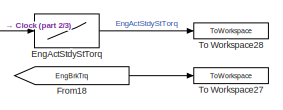
[diagram: Measurements_hybrid - part 1/3, top center region]
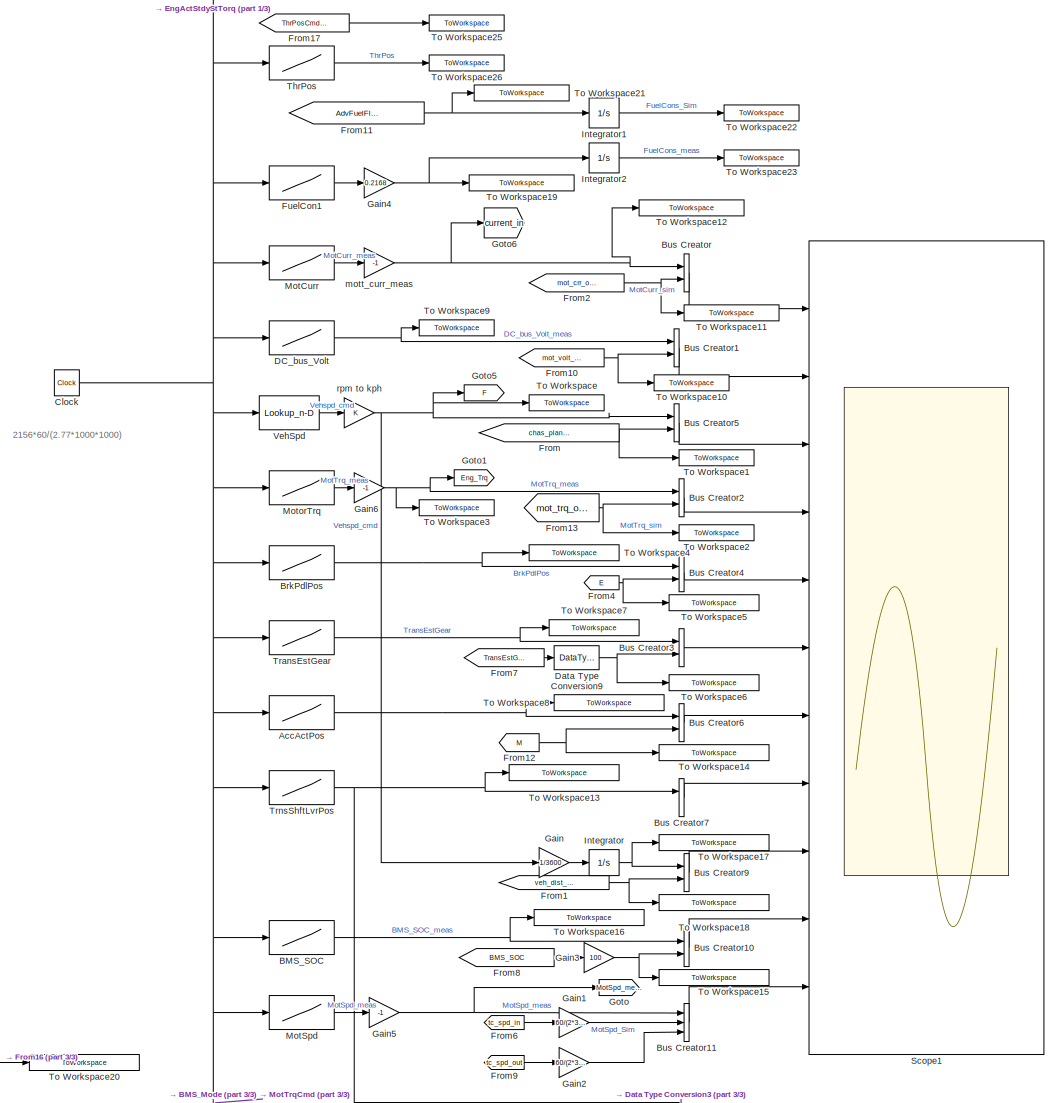
[diagram: Measurements_hybrid - part 2/3, full width, middle band]
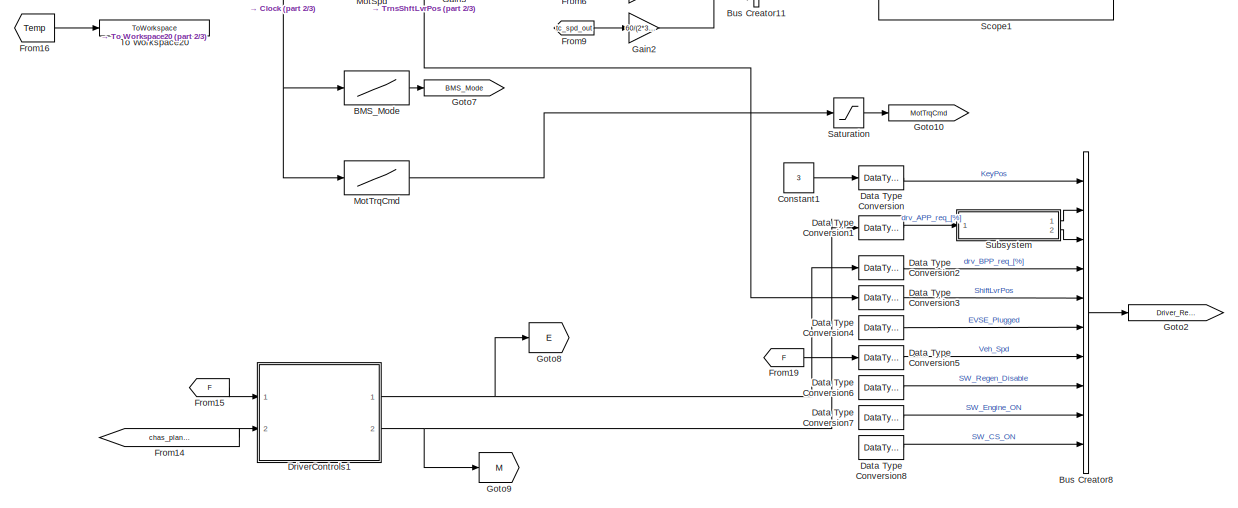
[diagram: Measurements_hybrid - part 3/3, full width, bottom band]
BLOCK [SubSystem] Measurements_hybrid
  Ports = []
  RequestExecContextInheritance = off
  Variant = off
BLOCK [Lookup] Measurements_hybrid/AccActPos
  InputValues = Times
  SaturateOnIntegerOverflow = off
  Table = AccActPos
BLOCK [Lookup] Measurements_hybrid/BMS_Mode
  InputValues = [0 0.9 1 2 3]
  SaturateOnIntegerOverflow = off
  Table = [0 0 1 1 1]
BLOCK [Lookup] Measurements_hybrid/BMS_SOC
  InputValues = Times
  SaturateOnIntegerOverflow = off
  Table = BMS_SOC
BLOCK [Lookup] Measurements_hybrid/BrkPdlPos
  InputValues = Times
  SaturateOnIntegerOverflow = off
  Table = BrkPdlPos
BLOCK [BusCreator] Measurements_hybrid/Bus Creator
  DisplayOption = bar
  InheritFromInputs = on
  Inputs = 2
  Ports = [2, 1]
BLOCK [BusCreator] Measurements_hybrid/Bus Creator1
  DisplayOption = bar
  InheritFromInputs = on
  Inputs = 2
  Ports = [2, 1]
BLOCK [BusCreator] Measurements_hybrid/Bus Creator10
  DisplayOption = bar
  InheritFromInputs = on
  Inputs = 2
  Ports = [2, 1]
BLOCK [BusCreator] Measurements_hybrid/Bus Creator11
  DisplayOption = bar
  InheritFromInputs = on
  Inputs = 3
  Ports = [3, 1]
BLOCK [BusCreator] Measurements_hybrid/Bus Creator2
  DisplayOption = bar
  InheritFromInputs = on
  Inputs = 2
  Ports = [2, 1]
BLOCK [BusCreator] Measurements_hybrid/Bus Creator3
  DisplayOption = bar
  InheritFromInputs = on
  Inputs = 2
  Ports = [2, 1]
BLOCK [BusCreator] Measurements_hybrid/Bus Creator4
  DisplayOption = bar
  InheritFromInputs = on
  Inputs = 2
  Ports = [2, 1]
BLOCK [BusCreator] Measurements_hybrid/Bus Creator5
  DisplayOption = bar
  InheritFromInputs = on
  Inputs = 2
  Ports = [2, 1]
BLOCK [BusCreator] Measurements_hybrid/Bus Creator6
  DisplayOption = bar
  InheritFromInputs = on
  Inputs = 2
  Ports = [2, 1]
BLOCK [BusCreator] Measurements_hybrid/Bus Creator7
  DisplayOption = bar
  InheritFromInputs = on
  Inputs = 2
  Ports = [2, 1]
BLOCK [BusCreator] Measurements_hybrid/Bus Creator8
  DisplayOption = bar
  InheritFromInputs = on
  Inputs = 10
  Ports = [10, 1]
BLOCK [BusCreator] Measurements_hybrid/Bus Creator9
  DisplayOption = bar
  InheritFromInputs = on
  Inputs = 2
  Ports = [2, 1]
BLOCK [Clock] Measurements_hybrid/Clock
BLOCK [Constant] Measurements_hybrid/Constant1
  Value = 3
BLOCK [Lookup] Measurements_hybrid/DC_bus_Volt
  InputValues = Times
  SaturateOnIntegerOverflow = off
  Table = D1_DC_Bus_Voltage
BLOCK [DataTypeConversion] Measurements_hybrid/Data Type Conversion
  RndMeth = Floor
  SaturateOnIntegerOverflow = off
BLOCK [DataTypeConversion] Measurements_hybrid/Data Type Conversion1
  RndMeth = Floor
  SaturateOnIntegerOverflow = off
BLOCK [DataTypeConversion] Measurements_hybrid/Data Type Conversion2
  RndMeth = Floor
  SaturateOnIntegerOverflow = off
BLOCK [DataTypeConversion] Measurements_hybrid/Data Type Conversion3
  RndMeth = Floor
  SaturateOnIntegerOverflow = off
BLOCK [DataTypeConversion] Measurements_hybrid/Data Type Conversion4
  RndMeth = Floor
  SaturateOnIntegerOverflow = off
BLOCK [DataTypeConversion] Measurements_hybrid/Data Type Conversion5
  RndMeth = Floor
  SaturateOnIntegerOverflow = off
BLOCK [DataTypeConversion] Measurements_hybrid/Data Type Conversion6
  RndMeth = Floor
  SaturateOnIntegerOverflow = off
BLOCK [DataTypeConversion] Measurements_hybrid/Data Type Conversion7
  RndMeth = Floor
  SaturateOnIntegerOverflow = off
BLOCK [DataTypeConversion] Measurements_hybrid/Data Type Conversion8
  RndMeth = Floor
  SaturateOnIntegerOverflow = off
BLOCK [DataTypeConversion] Measurements_hybrid/Data Type Conversion9
  RndMeth = Floor
  SaturateOnIntegerOverflow = off
BLOCK [SubSystem] Measurements_hybrid/DriverControls1
  AncestorBlock = EcoCAR3_Lib/DriverControls
  Ports = [2, 2]
  RequestExecContextInheritance = off
  Variant = off
BLOCK [Gain] Measurements_hybrid/DriverControls1/BrakeForce
  Gain = 100
  OutDataTypeStr = Inherit: Inherit via internal rule
  ParamDataTypeStr = Inherit: Inherit via internal rule
  SaturateOnIntegerOverflow = off
BLOCK [Memory] Measurements_hybrid/DriverControls1/Memory
BLOCK [Memory] Measurements_hybrid/DriverControls1/Memory1
BLOCK [Reference] Measurements_hybrid/DriverControls1/PID Controller  REF=simulink/Continuous/PID Controller
  Ports = [1, 1]
  SourceBlock = simulink/Continuous/PID Controller
  SourceProductBaseCode = SL
  SourceProductName = Simulink
  SourceType = PID 1dof
BLOCK [Reference] Measurements_hybrid/DriverControls1/PID Controller1  REF=simulink/Continuous/PID Controller
  Ports = [1, 1]
  SourceBlock = simulink/Continuous/PID Controller
  SourceProductBaseCode = SL
  SourceProductName = Simulink
  SourceType = PID 1dof
BLOCK [Gain] Measurements_hybrid/DriverControls1/Pct
  Gain = 100
  OutDataTypeStr = Inherit: Inherit via internal rule
  ParamDataTypeStr = Inherit: Inherit via internal rule
  SaturateOnIntegerOverflow = off
BLOCK [Saturate] Measurements_hybrid/DriverControls1/Saturation1
  InputPortMap = u0
  LowerLimit = 0
  Ports = [1, 1]
  UpperLimit = 100
BLOCK [Saturate] Measurements_hybrid/DriverControls1/Saturation2
  InputPortMap = u0
  LowerLimit = 0
  Ports = [1, 1]
  UpperLimit = 100
BLOCK [Sum] Measurements_hybrid/DriverControls1/Sum
  IconShape = round
  InputSameDT = off
  Inputs = |+-
  OutDataTypeStr = Inherit: Inherit via internal rule
  Ports = [2, 1]
  SaturateOnIntegerOverflow = off
BLOCK [Sum] Measurements_hybrid/DriverControls1/Sum1
  IconShape = round
  InputSameDT = off
  Inputs = +-|
  OutDataTypeStr = Inherit: Inherit via internal rule
  Ports = [2, 1]
  SaturateOnIntegerOverflow = off
BLOCK [Outport] Measurements_hybrid/DriverControls1/brake
  IconDisplay = Port number
BLOCK [Inport] Measurements_hybrid/DriverControls1/cmd
  IconDisplay = Port number
BLOCK [Inport] Measurements_hybrid/DriverControls1/meas
  IconDisplay = Port number
  Port = 2
BLOCK [Outport] Measurements_hybrid/DriverControls1/throttle
  IconDisplay = Port number
  Port = 2
BLOCK [Lookup] Measurements_hybrid/EngActStdyStTorq
  InputValues = Times
  SaturateOnIntegerOverflow = off
  Table = EngActStdyStTorq
BLOCK [From] Measurements_hybrid/From
  GotoTag = chas_plant_lin_spd_out
  TagVisibility = global
BLOCK [From] Measurements_hybrid/From1
  GotoTag = veh_dist_km
  TagVisibility = global
BLOCK [From] Measurements_hybrid/From10
  GotoTag = mot_volt_in
  TagVisibility = global
BLOCK [From] Measurements_hybrid/From11
  GotoTag = AdvFuelFlowEst
  TagVisibility = global
BLOCK [From] Measurements_hybrid/From12
  GotoTag = M
BLOCK [From] Measurements_hybrid/From13
  GotoTag = mot_trq_out
  TagVisibility = global
BLOCK [From] Measurements_hybrid/From14
  GotoTag = chas_plant_lin_spd_out
  TagVisibility = global
BLOCK [From] Measurements_hybrid/From15
  GotoTag = F
  TagVisibility = global
BLOCK [From] Measurements_hybrid/From16
  GotoTag = Temp
  TagVisibility = global
BLOCK [From] Measurements_hybrid/From17
  GotoTag = ThrPosCmd_int
  TagVisibility = global
BLOCK [From] Measurements_hybrid/From18
  GotoTag = EngBrkTrq
  TagVisibility = global
BLOCK [From] Measurements_hybrid/From19
  GotoTag = F
  TagVisibility = global
BLOCK [From] Measurements_hybrid/From2
  GotoTag = mot_crr_out
  TagVisibility = global
BLOCK [From] Measurements_hybrid/From4
  GotoTag = E
BLOCK [From] Measurements_hybrid/From6
  GotoTag = tc_spd_in
  TagVisibility = global
BLOCK [From] Measurements_hybrid/From7
  GotoTag = TransEstGear
  TagVisibility = global
BLOCK [From] Measurements_hybrid/From8
  GotoTag = BMS_SOC
  TagVisibility = global
BLOCK [From] Measurements_hybrid/From9
  GotoTag = tc_spd_out
  TagVisibility = global
BLOCK [Lookup] Measurements_hybrid/FuelCon1
  InputValues = Times
  SaturateOnIntegerOverflow = off
  Table = InstFuelConsmpRate
BLOCK [Gain] Measurements_hybrid/Gain
  Gain = 1/3600
  OutDataTypeStr = Inherit: Inherit via internal rule
  ParamDataTypeStr = Inherit: Inherit via internal rule
  SaturateOnIntegerOverflow = off
BLOCK [Gain] Measurements_hybrid/Gain1
  Gain = 60/(2*3.14)
  OutDataTypeStr = Inherit: Inherit via internal rule
  ParamDataTypeStr = Inherit: Inherit via internal rule
  SaturateOnIntegerOverflow = off
BLOCK [Gain] Measurements_hybrid/Gain2
  Gain = 60/(2*3.14)
  OutDataTypeStr = Inherit: Inherit via internal rule
  ParamDataTypeStr = Inherit: Inherit via internal rule
  SaturateOnIntegerOverflow = off
BLOCK [Gain] Measurements_hybrid/Gain3
  Gain = 100
  OutDataTypeStr = Inherit: Inherit via internal rule
  ParamDataTypeStr = Inherit: Inherit via internal rule
  SaturateOnIntegerOverflow = off
BLOCK [Gain] Measurements_hybrid/Gain4
  Gain = 0.2168
  OutDataTypeStr = Inherit: Inherit via internal rule
  ParamDataTypeStr = Inherit: Inherit via internal rule
  SaturateOnIntegerOverflow = off
BLOCK [Gain] Measurements_hybrid/Gain5
  Gain = -1
  OutDataTypeStr = Inherit: Inherit via internal rule
  ParamDataTypeStr = Inherit: Inherit via internal rule
  SaturateOnIntegerOverflow = off
BLOCK [Gain] Measurements_hybrid/Gain6
  Gain = -1
  OutDataTypeStr = Inherit: Inherit via internal rule
  ParamDataTypeStr = Inherit: Inherit via internal rule
  SaturateOnIntegerOverflow = off
BLOCK [Goto] Measurements_hybrid/Goto
  GotoTag = MotSpd_meas
  TagVisibility = global
BLOCK [Goto] Measurements_hybrid/Goto1
  GotoTag = Eng_Trq
  TagVisibility = global
BLOCK [Goto] Measurements_hybrid/Goto10
  GotoTag = MotTrqCmd
  TagVisibility = global
BLOCK [Goto] Measurements_hybrid/Goto2
  GotoTag = Driver_Request2
  TagVisibility = global
BLOCK [Goto] Measurements_hybrid/Goto5
  GotoTag = F
  TagVisibility = global
BLOCK [Goto] Measurements_hybrid/Goto6
  GotoTag = current_in
  TagVisibility = global
BLOCK [Goto] Measurements_hybrid/Goto7
  GotoTag = BMS_Mode
  TagVisibility = global
BLOCK [Goto] Measurements_hybrid/Goto8
  GotoTag = E
BLOCK [Goto] Measurements_hybrid/Goto9
  GotoTag = M
BLOCK [Integrator] Measurements_hybrid/Integrator
  Ports = [1, 1]
BLOCK [Integrator] Measurements_hybrid/Integrator1
  Ports = [1, 1]
BLOCK [Integrator] Measurements_hybrid/Integrator2
  Ports = [1, 1]
BLOCK [Lookup] Measurements_hybrid/MotCurr
  InputValues = Times
  SaturateOnIntegerOverflow = off
  Table = BMS_IstStrom
BLOCK [Lookup] Measurements_hybrid/MotSpd
  InputValues = Times
  SaturateOnIntegerOverflow = off
  Table = D2_Motor_Speed
BLOCK [Lookup] Measurements_hybrid/MotTrqCmd
  InputValues = Times
  SaturateOnIntegerOverflow = off
  Table = D1_Commanded_Torque
BLOCK [Lookup] Measurements_hybrid/MotorTrq
  InputValues = Times
  SaturateOnIntegerOverflow = off
  Table = D2_Torque_Feedback
BLOCK [Saturate] Measurements_hybrid/Saturation
  InputPortMap = u0
  LowerLimit = 0
  Ports = [1, 1]
  UpperLimit = 150
BLOCK [Scope] Measurements_hybrid/Scope1
  NumInputPorts = 11
  Ports = [11]
  ScopeSpecificationString = Simulink.scopes.TimeScopeBlockCfg('CurrentConfiguration', extmgr.ConfigurationSet(extmgr.Configuration('Core','General UI',true),extmgr.Configuration('Core','Source UI',true),extmgr.Configuration('Sources','WiredSimulink',true,'DataLoggingDecimation','1','DataLoggingDecimateData',true,'DataLoggingSaveFormat','Array'),extmgr.Configuration('Visuals','Time Domain',true,'SerializedDisplays',{struct('M...<+9283ch>
BLOCK [SubSystem] Measurements_hybrid/Subsystem
  Ports = [1, 2]
  RequestExecContextInheritance = off
  Variant = off
BLOCK [Outport] Measurements_hybrid/Subsystem/APP1
  IconDisplay = Port number
BLOCK [Outport] Measurements_hybrid/Subsystem/APP2
  IconDisplay = Port number
  Port = 2
BLOCK [Sum] Measurements_hybrid/Subsystem/Add1
  InputSameDT = off
  Inputs = +++
  OutDataTypeStr = Inherit: Inherit via internal rule
  Ports = [3, 1]
  SaturateOnIntegerOverflow = off
BLOCK [Sum] Measurements_hybrid/Subsystem/Add2
  InputSameDT = off
  OutDataTypeStr = Inherit: Inherit via internal rule
  Ports = [2, 1]
  SaturateOnIntegerOverflow = off
BLOCK [Constant] Measurements_hybrid/Subsystem/Constant1
  Value = 0
BLOCK [Constant] Measurements_hybrid/Subsystem/Constant2
  Value = cal.APP.Mismatch_Value+0.1
BLOCK [Constant] Measurements_hybrid/Subsystem/Constant3
  Value = 0
BLOCK [Constant] Measurements_hybrid/Subsystem/Constant4
  Value = cal.APP2.IN_Max_SC_Prcnt+1
BLOCK [Constant] Measurements_hybrid/Subsystem/Constant5
  Value = 0
BLOCK [Constant] Measurements_hybrid/Subsystem/Constant6
  Value = cal.APP2.IN_Max_SC_Prcnt+1
BLOCK [From] Measurements_hybrid/Subsystem/From1
  GotoTag = APP2_OOR_ON
BLOCK [From] Measurements_hybrid/Subsystem/From2
  GotoTag = APP2_OOR_ON
BLOCK [From] Measurements_hybrid/Subsystem/From4
  GotoTag = Mismatch_APP_ON
BLOCK [Inport] Measurements_hybrid/Subsystem/In1
  IconDisplay = Port number
BLOCK [Switch] Measurements_hybrid/Subsystem/Switch
  InputSameDT = off
  SaturateOnIntegerOverflow = off
  Threshold = 1
BLOCK [Switch] Measurements_hybrid/Subsystem/Switch1
  InputSameDT = off
  SaturateOnIntegerOverflow = off
  Threshold = 1
BLOCK [Switch] Measurements_hybrid/Subsystem/Switch2
  InputSameDT = off
  SaturateOnIntegerOverflow = off
  Threshold = 1
BLOCK [Lookup] Measurements_hybrid/ThrPos
  InputValues = Times
  SaturateOnIntegerOverflow = off
  Table = ThrPos
BLOCK [ToWorkspace] Measurements_hybrid/To Workspace
  FixptAsFi = on
  MaxDataPoints = inf
  Ports = [1]
  SampleTime = -1
  Save2DSignal = 3-D array (concatenate along third dimension)
  SaveFormat = Timeseries
  VariableName = VehSpd_meas
BLOCK [ToWorkspace] Measurements_hybrid/To Workspace1
  FixptAsFi = on
  MaxDataPoints = inf
  Ports = [1]
  SampleTime = -1
  Save2DSignal = 3-D array (concatenate along third dimension)
  SaveFormat = Timeseries
  VariableName = VehSpd_sim
BLOCK [ToWorkspace] Measurements_hybrid/To Workspace10
  FixptAsFi = on
  MaxDataPoints = inf
  Ports = [1]
  SampleTime = -1
  Save2DSignal = 3-D array (concatenate along third dimension)
  SaveFormat = Timeseries
  VariableName = DCVolt_sim
BLOCK [ToWorkspace] Measurements_hybrid/To Workspace11
  FixptAsFi = on
  MaxDataPoints = inf
  Ports = [1]
  SampleTime = -1
  Save2DSignal = 3-D array (concatenate along third dimension)
  SaveFormat = Timeseries
  VariableName = MotCurr_sim
BLOCK [ToWorkspace] Measurements_hybrid/To Workspace12
  FixptAsFi = on
  MaxDataPoints = inf
  Ports = [1]
  SampleTime = -1
  Save2DSignal = 3-D array (concatenate along third dimension)
  SaveFormat = Timeseries
  VariableName = MotCurr_meas
BLOCK [ToWorkspace] Measurements_hybrid/To Workspace13
  FixptAsFi = on
  MaxDataPoints = inf
  Ports = [1]
  SampleTime = -1
  Save2DSignal = 3-D array (concatenate along third dimension)
  SaveFormat = Timeseries
  VariableName = TrnsShftLvrPos_meas
BLOCK [ToWorkspace] Measurements_hybrid/To Workspace14
  FixptAsFi = on
  MaxDataPoints = inf
  Ports = [1]
  SampleTime = -1
  Save2DSignal = 3-D array (concatenate along third dimension)
  SaveFormat = Timeseries
  VariableName = AccActPos_sim
BLOCK [ToWorkspace] Measurements_hybrid/To Workspace15
  FixptAsFi = on
  MaxDataPoints = inf
  Ports = [1]
  SampleTime = -1
  Save2DSignal = 3-D array (concatenate along third dimension)
  SaveFormat = Timeseries
  VariableName = BMSSOC_sim
BLOCK [ToWorkspace] Measurements_hybrid/To Workspace16
  FixptAsFi = on
  MaxDataPoints = inf
  Ports = [1]
  SampleTime = -1
  Save2DSignal = 3-D array (concatenate along third dimension)
  SaveFormat = Timeseries
  VariableName = BMSSOC_meas
BLOCK [ToWorkspace] Measurements_hybrid/To Workspace17
  FixptAsFi = on
  MaxDataPoints = inf
  Ports = [1]
  SampleTime = -1
  Save2DSignal = 3-D array (concatenate along third dimension)
  SaveFormat = Timeseries
  VariableName = VehDistMeas_km
BLOCK [ToWorkspace] Measurements_hybrid/To Workspace18
  FixptAsFi = on
  MaxDataPoints = inf
  Ports = [1]
  SampleTime = -1
  Save2DSignal = 3-D array (concatenate along third dimension)
  SaveFormat = Timeseries
  VariableName = VehDistSim_km
BLOCK [ToWorkspace] Measurements_hybrid/To Workspace19
  FixptAsFi = on
  MaxDataPoints = inf
  Ports = [1]
  SampleTime = -1
  Save2DSignal = 3-D array (concatenate along third dimension)
  SaveFormat = Timeseries
  VariableName = FuelConsRate_meas
BLOCK [ToWorkspace] Measurements_hybrid/To Workspace2
  FixptAsFi = on
  MaxDataPoints = inf
  Ports = [1]
  SampleTime = -1
  Save2DSignal = 3-D array (concatenate along third dimension)
  SaveFormat = Timeseries
  VariableName = MotTrq_sim
BLOCK [ToWorkspace] Measurements_hybrid/To Workspace20
  FixptAsFi = on
  MaxDataPoints = inf
  Ports = [1]
  SampleTime = -1
  Save2DSignal = 3-D array (concatenate along third dimension)
  SaveFormat = Timeseries
  VariableName = BMStemp_sim
BLOCK [ToWorkspace] Measurements_hybrid/To Workspace21
  FixptAsFi = on
  MaxDataPoints = inf
  Ports = [1]
  SampleTime = -1
  Save2DSignal = 3-D array (concatenate along third dimension)
  SaveFormat = Timeseries
  VariableName = FuelConsRate_sim
BLOCK [ToWorkspace] Measurements_hybrid/To Workspace22
  FixptAsFi = on
  MaxDataPoints = inf
  Ports = [1]
  SampleTime = -1
  Save2DSignal = 3-D array (concatenate along third dimension)
  SaveFormat = Timeseries
  VariableName = FuelCons_sim
BLOCK [ToWorkspace] Measurements_hybrid/To Workspace23
  FixptAsFi = on
  MaxDataPoints = inf
  Ports = [1]
  SampleTime = -1
  Save2DSignal = 3-D array (concatenate along third dimension)
  SaveFormat = Timeseries
  VariableName = FuelCons_meas
BLOCK [ToWorkspace] Measurements_hybrid/To Workspace25
  FixptAsFi = on
  MaxDataPoints = inf
  Ports = [1]
  SampleTime = -1
  Save2DSignal = 3-D array (concatenate along third dimension)
  SaveFormat = Timeseries
  VariableName = ThrPos_sim
BLOCK [ToWorkspace] Measurements_hybrid/To Workspace26
  FixptAsFi = on
  MaxDataPoints = inf
  Ports = [1]
  SampleTime = -1
  Save2DSignal = 3-D array (concatenate along third dimension)
  SaveFormat = Timeseries
  VariableName = ThrPos_meas
BLOCK [ToWorkspace] Measurements_hybrid/To Workspace27
  FixptAsFi = on
  MaxDataPoints = inf
  Ports = [1]
  SampleTime = -1
  Save2DSignal = 3-D array (concatenate along third dimension)
  SaveFormat = Timeseries
  VariableName = EngTrq_sim
BLOCK [ToWorkspace] Measurements_hybrid/To Workspace28
  FixptAsFi = on
  MaxDataPoints = inf
  Ports = [1]
  SampleTime = -1
  Save2DSignal = 3-D array (concatenate along third dimension)
  SaveFormat = Timeseries
  VariableName = EngTrq_meas
BLOCK [ToWorkspace] Measurements_hybrid/To Workspace3
  FixptAsFi = on
  MaxDataPoints = inf
  Ports = [1]
  SampleTime = -1
  Save2DSignal = 3-D array (concatenate along third dimension)
  SaveFormat = Timeseries
  VariableName = MotTrq_meas
BLOCK [ToWorkspace] Measurements_hybrid/To Workspace4
  FixptAsFi = on
  MaxDataPoints = inf
  Ports = [1]
  SampleTime = -1
  Save2DSignal = 3-D array (concatenate along third dimension)
  SaveFormat = Timeseries
  VariableName = BrkPdlPos_meas
BLOCK [ToWorkspace] Measurements_hybrid/To Workspace5
  FixptAsFi = on
  MaxDataPoints = inf
  Ports = [1]
  SampleTime = -1
  Save2DSignal = 3-D array (concatenate along third dimension)
  SaveFormat = Timeseries
  VariableName = BrkPdlPos_sim
BLOCK [ToWorkspace] Measurements_hybrid/To Workspace6
  FixptAsFi = on
  MaxDataPoints = inf
  Ports = [1]
  SampleTime = -1
  Save2DSignal = 3-D array (concatenate along third dimension)
  SaveFormat = Timeseries
  VariableName = TransEstGear_sim
BLOCK [ToWorkspace] Measurements_hybrid/To Workspace7
  FixptAsFi = on
  MaxDataPoints = inf
  Ports = [1]
  SampleTime = -1
  Save2DSignal = 3-D array (concatenate along third dimension)
  SaveFormat = Timeseries
  VariableName = TransEstGear_meas
BLOCK [ToWorkspace] Measurements_hybrid/To Workspace8
  FixptAsFi = on
  MaxDataPoints = inf
  Ports = [1]
  SampleTime = -1
  Save2DSignal = 3-D array (concatenate along third dimension)
  SaveFormat = Timeseries
  VariableName = AccActPos_meas
BLOCK [ToWorkspace] Measurements_hybrid/To Workspace9
  FixptAsFi = on
  MaxDataPoints = inf
  Ports = [1]
  SampleTime = -1
  Save2DSignal = 3-D array (concatenate along third dimension)
  SaveFormat = Timeseries
  VariableName = DCVolt_meas
BLOCK [Lookup] Measurements_hybrid/TransEstGear
  InputValues = Times
  SaturateOnIntegerOverflow = off
  Table = TransEstGear
BLOCK [Lookup] Measurements_hybrid/TrnsShftLvrPos
  InputValues = Times
  SaturateOnIntegerOverflow = off
  Table = TrnsShftLvrPos
BLOCK [Lookup_n-D] Measurements_hybrid/VehSpd
  BreakpointsForDimension1 = Times
  InternalRulePriority = Speed
  NumberOfTableDimensions = 1
  Ports = [1, 1]
  RndMeth = Simplest
  Table = WhlGrndVlctyRtDrvn
BLOCK [Gain] Measurements_hybrid/mott_curr_meas
  Gain = -1
  OutDataTypeStr = Inherit: Inherit via internal rule
  ParamDataTypeStr = Inherit: Inherit via internal rule
  SaturateOnIntegerOverflow = off
BLOCK [Gain] Measurements_hybrid/rpm to kph
  OutDataTypeStr = Inherit: Inherit via internal rule
  ParamDataTypeStr = Inherit: Inherit via internal rule
  SaturateOnIntegerOverflow = off
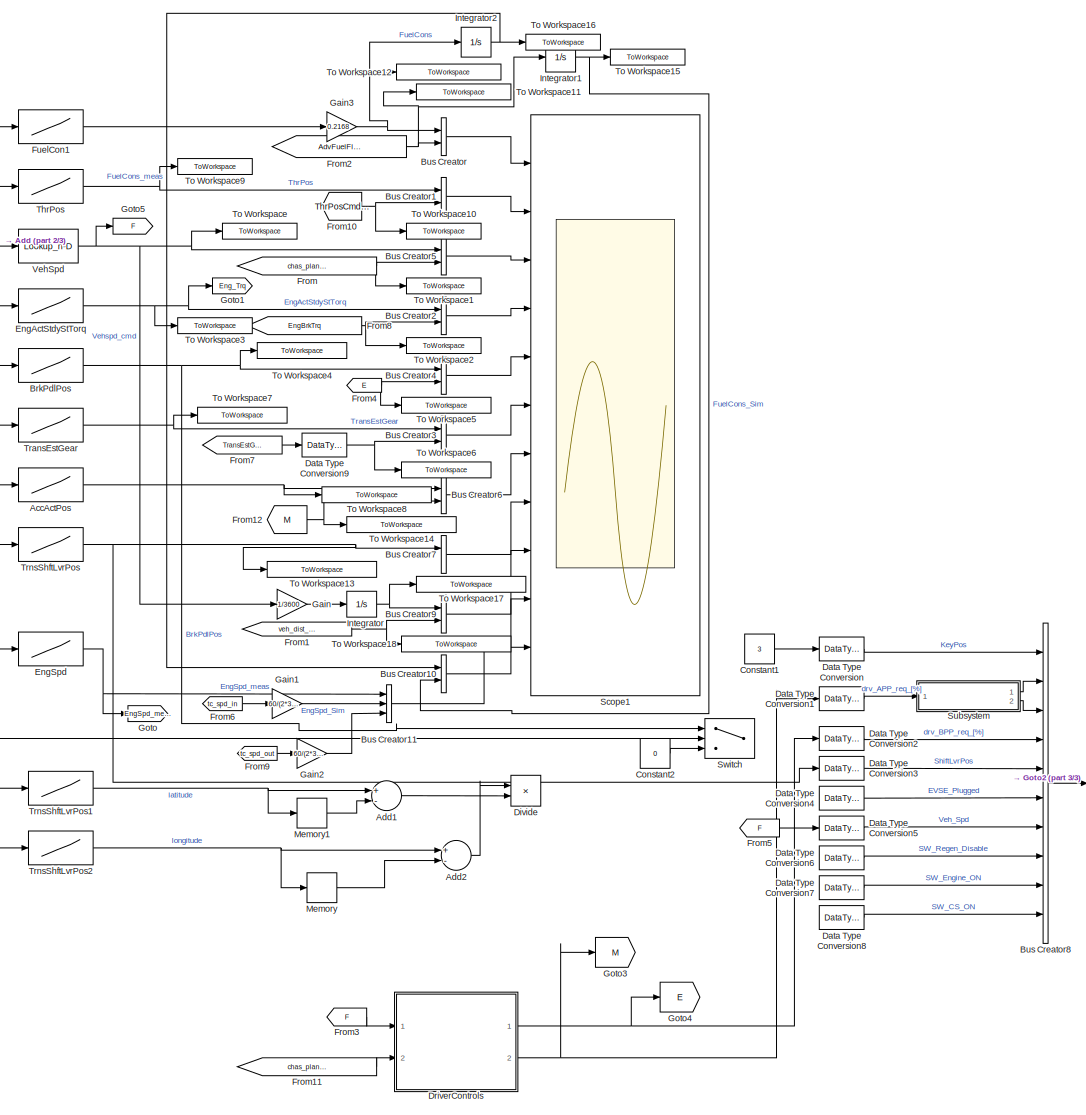
[diagram: Measurements_stock - part 1/3, most of the canvas]
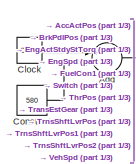
[diagram: Measurements_stock - part 2/3, top left region]
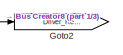
[diagram: Measurements_stock - part 3/3, bottom right region]
BLOCK [SubSystem] Measurements_stock
  Commented = on
  Ports = []
  RequestExecContextInheritance = off
  Variant = off
BLOCK [Lookup] Measurements_stock/AccActPos
  InputValues = Time
  SaturateOnIntegerOverflow = off
  Table = AccActPos
BLOCK [Sum] Measurements_stock/Add
  InputSameDT = off
  OutDataTypeStr = Inherit: Inherit via internal rule
  Ports = [2, 1]
  SaturateOnIntegerOverflow = off
BLOCK [Sum] Measurements_stock/Add1
  Commented = on
  InputSameDT = off
  Inputs = +-
  OutDataTypeStr = Inherit: Inherit via internal rule
  Ports = [2, 1]
  SaturateOnIntegerOverflow = off
BLOCK [Sum] Measurements_stock/Add2
  Commented = on
  InputSameDT = off
  Inputs = +-
  OutDataTypeStr = Inherit: Inherit via internal rule
  Ports = [2, 1]
  SaturateOnIntegerOverflow = off
BLOCK [Lookup] Measurements_stock/BrkPdlPos
  InputValues = Time
  SaturateOnIntegerOverflow = off
  Table = BrkPdlPos
BLOCK [BusCreator] Measurements_stock/Bus Creator
  DisplayOption = bar
  InheritFromInputs = on
  Inputs = 2
  Ports = [2, 1]
BLOCK [BusCreator] Measurements_stock/Bus Creator1
  DisplayOption = bar
  InheritFromInputs = on
  Inputs = 2
  Ports = [2, 1]
BLOCK [BusCreator] Measurements_stock/Bus Creator10
  DisplayOption = bar
  InheritFromInputs = on
  Inputs = 2
  Ports = [2, 1]
BLOCK [BusCreator] Measurements_stock/Bus Creator11
  DisplayOption = bar
  InheritFromInputs = on
  Inputs = 3
  Ports = [3, 1]
BLOCK [BusCreator] Measurements_stock/Bus Creator2
  DisplayOption = bar
  InheritFromInputs = on
  Inputs = 2
  Ports = [2, 1]
BLOCK [BusCreator] Measurements_stock/Bus Creator3
  DisplayOption = bar
  InheritFromInputs = on
  Inputs = 2
  Ports = [2, 1]
BLOCK [BusCreator] Measurements_stock/Bus Creator4
  DisplayOption = bar
  InheritFromInputs = on
  Inputs = 2
  Ports = [2, 1]
BLOCK [BusCreator] Measurements_stock/Bus Creator5
  DisplayOption = bar
  InheritFromInputs = on
  Inputs = 2
  Ports = [2, 1]
BLOCK [BusCreator] Measurements_stock/Bus Creator6
  DisplayOption = bar
  InheritFromInputs = on
  Inputs = 2
  Ports = [2, 1]
BLOCK [BusCreator] Measurements_stock/Bus Creator7
  DisplayOption = bar
  InheritFromInputs = on
  Inputs = 2
  Ports = [2, 1]
BLOCK [BusCreator] Measurements_stock/Bus Creator8
  DisplayOption = bar
  InheritFromInputs = on
  Inputs = 10
  Ports = [10, 1]
BLOCK [BusCreator] Measurements_stock/Bus Creator9
  DisplayOption = bar
  InheritFromInputs = on
  Inputs = 2
  Ports = [2, 1]
BLOCK [Clock] Measurements_stock/Clock
BLOCK [Constant] Measurements_stock/Constant
  Value = 580
BLOCK [Constant] Measurements_stock/Constant1
  Value = 3
BLOCK [Constant] Measurements_stock/Constant2
  Value = 0
BLOCK [DataTypeConversion] Measurements_stock/Data Type Conversion
  RndMeth = Floor
  SaturateOnIntegerOverflow = off
BLOCK [DataTypeConversion] Measurements_stock/Data Type Conversion1
  RndMeth = Floor
  SaturateOnIntegerOverflow = off
BLOCK [DataTypeConversion] Measurements_stock/Data Type Conversion2
  RndMeth = Floor
  SaturateOnIntegerOverflow = off
BLOCK [DataTypeConversion] Measurements_stock/Data Type Conversion3
  RndMeth = Floor
  SaturateOnIntegerOverflow = off
BLOCK [DataTypeConversion] Measurements_stock/Data Type Conversion4
  RndMeth = Floor
  SaturateOnIntegerOverflow = off
BLOCK [DataTypeConversion] Measurements_stock/Data Type Conversion5
  RndMeth = Floor
  SaturateOnIntegerOverflow = off
BLOCK [DataTypeConversion] Measurements_stock/Data Type Conversion6
  RndMeth = Floor
  SaturateOnIntegerOverflow = off
BLOCK [DataTypeConversion] Measurements_stock/Data Type Conversion7
  RndMeth = Floor
  SaturateOnIntegerOverflow = off
BLOCK [DataTypeConversion] Measurements_stock/Data Type Conversion8
  RndMeth = Floor
  SaturateOnIntegerOverflow = off
BLOCK [DataTypeConversion] Measurements_stock/Data Type Conversion9
  RndMeth = Floor
  SaturateOnIntegerOverflow = off
BLOCK [Product] Measurements_stock/Divide
  Commented = on
  InputSameDT = off
  Inputs = */
  OutDataTypeStr = Inherit: Inherit via internal rule
  Ports = [2, 1]
  RndMeth = Floor
  SaturateOnIntegerOverflow = off
BLOCK [SubSystem] Measurements_stock/DriverControls
  AncestorBlock = EcoCAR3_Lib/DriverControls
  Ports = [2, 2]
  RequestExecContextInheritance = off
  Variant = off
BLOCK [Abs] Measurements_stock/DriverControls/Abs
  SaturateOnIntegerOverflow = off
BLOCK [Gain] Measurements_stock/DriverControls/BrakeForce
  Commented = on
  Gain = 100
  OutDataTypeStr = Inherit: Inherit via internal rule
  ParamDataTypeStr = Inherit: Inherit via internal rule
  SaturateOnIntegerOverflow = off
BLOCK [SubSystem] Measurements_stock/DriverControls/Clamping circuit
  Commented = on
  Ports = [2, 1]
  RequestExecContextInheritance = off
  Variant = off
BLOCK [Logic] Measurements_stock/DriverControls/Clamping circuit/AND
  DisableCoverage = on
  Ports = [2, 1]
  SampleTime = SampleTime
BLOCK [Outport] Measurements_stock/DriverControls/Clamping circuit/Clamp
  DisableCoverage = on
  IconDisplay = Port number
  SampleTime = SampleTime
BLOCK [DataTypeConversion] Measurements_stock/DriverControls/Clamping circuit/DataTypeConv1
  DisableCoverage = on
  LockScale = on
  OutDataTypeStr = int8
BLOCK [DataTypeConversion] Measurements_stock/DriverControls/Clamping circuit/DataTypeConv2
  DisableCoverage = on
  OutDataTypeStr = int8
  RndMeth = Floor
  SampleTime = SampleTime
  SaturateOnIntegerOverflow = off
BLOCK [DeadZone] Measurements_stock/DriverControls/Clamping circuit/DeadZone
  DisableCoverage = on
  LowerValue = LowerSaturationLimit
  SampleTime = SampleTime
  SaturateOnIntegerOverflow = off
  UpperValue = UpperSaturationLimit
BLOCK [RelationalOperator] Measurements_stock/DriverControls/Clamping circuit/Equal
  DisableCoverage = on
  Operator = ==
  Ports = [2, 1]
  SampleTime = SampleTime
BLOCK [Memory] Measurements_stock/DriverControls/Clamping circuit/Memory
  DisableCoverage = on
BLOCK [RelationalOperator] Measurements_stock/DriverControls/Clamping circuit/NotEqual
  DisableCoverage = on
  Operator = ~=
  Ports = [2, 1]
  SampleTime = SampleTime
BLOCK [Signum] Measurements_stock/DriverControls/Clamping circuit/SignDeltaU
  DisableCoverage = on
BLOCK [Signum] Measurements_stock/DriverControls/Clamping circuit/SignPreIntegrator
  DisableCoverage = on
  SampleTime = SampleTime
BLOCK [Gain] Measurements_stock/DriverControls/Clamping circuit/ZeroGain
  DisableCoverage = on
  Gain = 0
BLOCK [Inport] Measurements_stock/DriverControls/Clamping circuit/preIntegrator
  DisableCoverage = on
  IconDisplay = Port number
  Port = 2
  SampleTime = SampleTime
BLOCK [Inport] Measurements_stock/DriverControls/Clamping circuit/preSat
  DisableCoverage = on
  IconDisplay = Port number
  SampleTime = SampleTime
BLOCK [Reference] Measurements_stock/DriverControls/Compare To Constant  REF=simulink/Logic and Bit
Operations/Compare
To Constant
  Ports = [1, 1]
  SourceBlock = simulink/Logic and Bit\nOperations/Compare\nTo Constant
  SourceProductBaseCode = SL
  SourceProductName = Simulink
  SourceType = Compare To Constant
BLOCK [Reference] Measurements_stock/DriverControls/Compare To Constant1  REF=simulink/Logic and Bit
Operations/Compare
To Constant
  Ports = [1, 1]
  SourceBlock = simulink/Logic and Bit\nOperations/Compare\nTo Constant
  SourceProductBaseCode = SL
  SourceProductName = Simulink
  SourceType = Compare To Constant
BLOCK [Reference] Measurements_stock/DriverControls/Compare To Constant2  REF=simulink/Logic and Bit
Operations/Compare
To Constant
  Ports = [1, 1]
  SourceBlock = simulink/Logic and Bit\nOperations/Compare\nTo Constant
  SourceProductBaseCode = SL
  SourceProductName = Simulink
  SourceType = Compare To Constant
BLOCK [Constant] Measurements_stock/DriverControls/Constant
  Value = 11.5
BLOCK [Constant] Measurements_stock/DriverControls/Constant1
  Commented = on
  DisableCoverage = on
  OutDataTypeStr = Inherit: Inherit via back propagation
  PreserveConstantTs = on
  Value = 0
BLOCK [Constant] Measurements_stock/DriverControls/Constant2
  Value = 0
BLOCK [Constant] Measurements_stock/DriverControls/Constant3
  Value = 0
BLOCK [Gain] Measurements_stock/DriverControls/IntegralGain
  Commented = on
  Gain = 0.001
  OutDataTypeStr = Inherit: Inherit via internal rule
  ParamDataTypeStr = Inherit: Inherit via internal rule
  SaturateOnIntegerOverflow = off
BLOCK [Integrator] Measurements_stock/DriverControls/Integrator
  Commented = on
  Ports = [1, 1]
BLOCK [Memory] Measurements_stock/DriverControls/Memory
  Commented = on
BLOCK [MinMax] Measurements_stock/DriverControls/MinMax
  Function = max
  InputSameDT = off
  Inputs = 2
  Ports = [2, 1]
  SaturateOnIntegerOverflow = off
BLOCK [Reference] Measurements_stock/DriverControls/PID Controller  REF=simulink/Continuous/PID Controller
  Commented = on
  Ports = [1, 1]
  SourceBlock = simulink/Continuous/PID Controller
  SourceProductBaseCode = SL
  SourceProductName = Simulink
  SourceType = PID 1dof
BLOCK [Reference] Measurements_stock/DriverControls/PID Controller1  REF=simulink/Continuous/PID Controller
  Ports = [1, 1]
  SourceBlock = simulink/Continuous/PID Controller
  SourceProductBaseCode = SL
  SourceProductName = Simulink
  SourceType = PID 1dof
BLOCK [Gain] Measurements_stock/DriverControls/Pct
  Gain = 100
  OutDataTypeStr = Inherit: Inherit via internal rule
  ParamDataTypeStr = Inherit: Inherit via internal rule
  SaturateOnIntegerOverflow = off
BLOCK [Gain] Measurements_stock/DriverControls/ProportionalGain
  Commented = on
  Gain = 0.1
  OutDataTypeStr = Inherit: Inherit via internal rule
  ParamDataTypeStr = Inherit: Inherit via internal rule
  SaturateOnIntegerOverflow = off
BLOCK [Saturate] Measurements_stock/DriverControls/Saturation
  InputPortMap = u0
  LinearizeAsGain = off
  LowerLimit = -100
  Ports = [1, 1]
  UpperLimit = 100
BLOCK [Saturate] Measurements_stock/DriverControls/Saturation1
  Commented = on
  InputPortMap = u0
  LowerLimit = 0
  Ports = [1, 1]
  UpperLimit = 100
BLOCK [Sum] Measurements_stock/DriverControls/Sum
  IconShape = round
  InputSameDT = off
  Inputs = |+-
  OutDataTypeStr = Inherit: Inherit via internal rule
  Ports = [2, 1]
  SaturateOnIntegerOverflow = off
BLOCK [Sum] Measurements_stock/DriverControls/Sum1
  Commented = on
  IconShape = round
  InputSameDT = off
  Inputs = +-|
  OutDataTypeStr = Inherit: Inherit via internal rule
  Ports = [2, 1]
  SaturateOnIntegerOverflow = off
BLOCK [Sum] Measurements_stock/DriverControls/Sum3
  Commented = on
  IconShape = round
  InputSameDT = off
  Inputs = ++|
  OutDataTypeStr = Inherit: Inherit via internal rule
  Ports = [2, 1]
  SaturateOnIntegerOverflow = off
BLOCK [Switch] Measurements_stock/DriverControls/Switch
  Criteria = u2 > Threshold
  InputSameDT = off
  SaturateOnIntegerOverflow = off
BLOCK [Switch] Measurements_stock/DriverControls/Switch1
  Commented = on
  Criteria = u2 > Threshold
  SampleTime = SampleTime
  SaturateOnIntegerOverflow = off
BLOCK [Switch] Measurements_stock/DriverControls/Switch2
  Criteria = u2 > Threshold
  InputSameDT = off
  SaturateOnIntegerOverflow = off
BLOCK [Switch] Measurements_stock/DriverControls/Switch3
  Criteria = u2 > Threshold
  InputSameDT = off
  SaturateOnIntegerOverflow = off
BLOCK [Outport] Measurements_stock/DriverControls/brake
  IconDisplay = Port number
BLOCK [Inport] Measurements_stock/DriverControls/cmd
  IconDisplay = Port number
BLOCK [Inport] Measurements_stock/DriverControls/meas
  IconDisplay = Port number
  Port = 2
BLOCK [Outport] Measurements_stock/DriverControls/throttle
  IconDisplay = Port number
  Port = 2
BLOCK [Lookup] Measurements_stock/EngActStdyStTorq
  InputValues = Time
  SaturateOnIntegerOverflow = off
  Table = PTEI_Engine_Torque_Status__EngActStdyStTorq
BLOCK [Lookup] Measurements_stock/EngSpd
  InputValues = Time
  SaturateOnIntegerOverflow = off
  Table = EngSpd
BLOCK [From] Measurements_stock/From
  GotoTag = chas_plant_lin_spd_out
  TagVisibility = global
BLOCK [From] Measurements_stock/From1
  GotoTag = veh_dist_km
  TagVisibility = global
BLOCK [From] Measurements_stock/From10
  GotoTag = ThrPosCmd_int
  TagVisibility = global
BLOCK [From] Measurements_stock/From11
  GotoTag = chas_plant_lin_spd_out
  TagVisibility = global
BLOCK [From] Measurements_stock/From12
  GotoTag = M
BLOCK [From] Measurements_stock/From2
  GotoTag = AdvFuelFlowEst
  TagVisibility = global
BLOCK [From] Measurements_stock/From3
  GotoTag = F
  TagVisibility = global
BLOCK [From] Measurements_stock/From4
  GotoTag = E
BLOCK [From] Measurements_stock/From5
  GotoTag = F
  TagVisibility = global
BLOCK [From] Measurements_stock/From6
  GotoTag = tc_spd_in
  TagVisibility = global
BLOCK [From] Measurements_stock/From7
  GotoTag = TransEstGear
  TagVisibility = global
BLOCK [From] Measurements_stock/From8
  GotoTag = EngBrkTrq
  TagVisibility = global
BLOCK [From] Measurements_stock/From9
  GotoTag = tc_spd_out
  TagVisibility = global
BLOCK [Lookup] Measurements_stock/FuelCon1
  InputValues = Time
  SaturateOnIntegerOverflow = off
  Table = InstFuelConsmpRate
BLOCK [Gain] Measurements_stock/Gain
  Gain = 1/3600
  OutDataTypeStr = Inherit: Inherit via internal rule
  ParamDataTypeStr = Inherit: Inherit via internal rule
  SaturateOnIntegerOverflow = off
BLOCK [Gain] Measurements_stock/Gain1
  Gain = 60/(2*3.14)
  OutDataTypeStr = Inherit: Inherit via internal rule
  ParamDataTypeStr = Inherit: Inherit via internal rule
  SaturateOnIntegerOverflow = off
BLOCK [Gain] Measurements_stock/Gain2
  Gain = 60/(2*3.14)
  OutDataTypeStr = Inherit: Inherit via internal rule
  ParamDataTypeStr = Inherit: Inherit via internal rule
  SaturateOnIntegerOverflow = off
BLOCK [Gain] Measurements_stock/Gain3
  Gain = 0.2168
  OutDataTypeStr = Inherit: Inherit via internal rule
  ParamDataTypeStr = Inherit: Inherit via internal rule
  SaturateOnIntegerOverflow = off
BLOCK [Goto] Measurements_stock/Goto
  GotoTag = EngSpd_meas
  TagVisibility = global
BLOCK [Goto] Measurements_stock/Goto1
  GotoTag = Eng_Trq
  TagVisibility = global
BLOCK [Goto] Measurements_stock/Goto2
  GotoTag = Driver_Request
  TagVisibility = global
BLOCK [Goto] Measurements_stock/Goto3
  GotoTag = M
BLOCK [Goto] Measurements_stock/Goto4
  GotoTag = E
BLOCK [Goto] Measurements_stock/Goto5
  GotoTag = F
  TagVisibility = global
BLOCK [Integrator] Measurements_stock/Integrator
  Ports = [1, 1]
BLOCK [Integrator] Measurements_stock/Integrator1
  Ports = [1, 1]
BLOCK [Integrator] Measurements_stock/Integrator2
  Ports = [1, 1]
BLOCK [Memory] Measurements_stock/Memory
  Commented = on
  InheritSampleTime = on
BLOCK [Memory] Measurements_stock/Memory1
  Commented = on
  InheritSampleTime = on
BLOCK [Scope] Measurements_stock/Scope1
  NumInputPorts = 11
  Ports = [11]
  ScopeSpecificationString = Simulink.scopes.TimeScopeBlockCfg('CurrentConfiguration', extmgr.ConfigurationSet(extmgr.Configuration('Core','General UI',true),extmgr.Configuration('Core','Source UI',true),extmgr.Configuration('Sources','WiredSimulink',true,'DataLoggingDecimation','1','DataLoggingDecimateData',true,'DataLoggingSaveFormat','Array'),extmgr.Configuration('Visuals','Time Domain',true,'SerializedDisplays',{struct('M...<+9243ch>
BLOCK [SubSystem] Measurements_stock/Subsystem
  Ports = [1, 2]
  RequestExecContextInheritance = off
  Variant = off
BLOCK [Outport] Measurements_stock/Subsystem/APP1
  IconDisplay = Port number
BLOCK [Outport] Measurements_stock/Subsystem/APP2
  IconDisplay = Port number
  Port = 2
BLOCK [Sum] Measurements_stock/Subsystem/Add1
  InputSameDT = off
  Inputs = +++
  OutDataTypeStr = Inherit: Inherit via internal rule
  Ports = [3, 1]
  SaturateOnIntegerOverflow = off
BLOCK [Sum] Measurements_stock/Subsystem/Add2
  InputSameDT = off
  OutDataTypeStr = Inherit: Inherit via internal rule
  Ports = [2, 1]
  SaturateOnIntegerOverflow = off
BLOCK [Constant] Measurements_stock/Subsystem/Constant1
  Value = 0
BLOCK [Constant] Measurements_stock/Subsystem/Constant2
  Value = cal.APP.Mismatch_Value+0.1
BLOCK [Constant] Measurements_stock/Subsystem/Constant3
  Value = 0
BLOCK [Constant] Measurements_stock/Subsystem/Constant4
  Value = cal.APP2.IN_Max_SC_Prcnt+1
BLOCK [Constant] Measurements_stock/Subsystem/Constant5
  Value = 0
BLOCK [Constant] Measurements_stock/Subsystem/Constant6
  Value = cal.APP2.IN_Max_SC_Prcnt+1
BLOCK [From] Measurements_stock/Subsystem/From1
  GotoTag = APP2_OOR_ON
BLOCK [From] Measurements_stock/Subsystem/From2
  GotoTag = APP2_OOR_ON
BLOCK [From] Measurements_stock/Subsystem/From4
  GotoTag = Mismatch_APP_ON
BLOCK [Inport] Measurements_stock/Subsystem/In1
  IconDisplay = Port number
BLOCK [Switch] Measurements_stock/Subsystem/Switch
  InputSameDT = off
  SaturateOnIntegerOverflow = off
  Threshold = 1
BLOCK [Switch] Measurements_stock/Subsystem/Switch1
  InputSameDT = off
  SaturateOnIntegerOverflow = off
  Threshold = 1
BLOCK [Switch] Measurements_stock/Subsystem/Switch2
  InputSameDT = off
  SaturateOnIntegerOverflow = off
  Threshold = 1
BLOCK [Switch] Measurements_stock/Switch
  Criteria = u2 > Threshold
  InputSameDT = off
  SaturateOnIntegerOverflow = off
  Threshold = 618
BLOCK [Lookup] Measurements_stock/ThrPos
  InputValues = Time
  SaturateOnIntegerOverflow = off
  Table = PPEI_Engine_General_Status_2__ThrPos
BLOCK [ToWorkspace] Measurements_stock/To Workspace
  FixptAsFi = on
  MaxDataPoints = inf
  Ports = [1]
  SampleTime = -1
  Save2DSignal = 3-D array (concatenate along third dimension)
  SaveFormat = Timeseries
  VariableName = VehSpd_meas
BLOCK [ToWorkspace] Measurements_stock/To Workspace1
  FixptAsFi = on
  MaxDataPoints = inf
  Ports = [1]
  SampleTime = -1
  Save2DSignal = 3-D array (concatenate along third dimension)
  SaveFormat = Timeseries
  VariableName = VehSpd_sim
BLOCK [ToWorkspace] Measurements_stock/To Workspace10
  FixptAsFi = on
  MaxDataPoints = inf
  Ports = [1]
  SampleTime = -1
  Save2DSignal = 3-D array (concatenate along third dimension)
  SaveFormat = Timeseries
  VariableName = ThrPos_sim
BLOCK [ToWorkspace] Measurements_stock/To Workspace11
  FixptAsFi = on
  MaxDataPoints = inf
  Ports = [1]
  SampleTime = -1
  Save2DSignal = 3-D array (concatenate along third dimension)
  SaveFormat = Timeseries
  VariableName = FuelConsRate_sim
BLOCK [ToWorkspace] Measurements_stock/To Workspace12
  FixptAsFi = on
  MaxDataPoints = inf
  Ports = [1]
  SampleTime = -1
  Save2DSignal = 3-D array (concatenate along third dimension)
  SaveFormat = Timeseries
  VariableName = FuelConsRate_meas
BLOCK [ToWorkspace] Measurements_stock/To Workspace13
  FixptAsFi = on
  MaxDataPoints = inf
  Ports = [1]
  SampleTime = -1
  Save2DSignal = 3-D array (concatenate along third dimension)
  SaveFormat = Timeseries
  VariableName = TrnsShftLvrPos_meas
BLOCK [ToWorkspace] Measurements_stock/To Workspace14
  FixptAsFi = on
  MaxDataPoints = inf
  Ports = [1]
  SampleTime = -1
  Save2DSignal = 3-D array (concatenate along third dimension)
  SaveFormat = Timeseries
  VariableName = AccActPos_sim
BLOCK [ToWorkspace] Measurements_stock/To Workspace15
  FixptAsFi = on
  MaxDataPoints = inf
  Ports = [1]
  SampleTime = -1
  Save2DSignal = 3-D array (concatenate along third dimension)
  SaveFormat = Timeseries
  VariableName = FuelCons_sim
BLOCK [ToWorkspace] Measurements_stock/To Workspace16
  FixptAsFi = on
  MaxDataPoints = inf
  Ports = [1]
  SampleTime = -1
  Save2DSignal = 3-D array (concatenate along third dimension)
  SaveFormat = Timeseries
  VariableName = FuelCons_meas
BLOCK [ToWorkspace] Measurements_stock/To Workspace17
  FixptAsFi = on
  MaxDataPoints = inf
  Ports = [1]
  SampleTime = -1
  Save2DSignal = 3-D array (concatenate along third dimension)
  SaveFormat = Timeseries
  VariableName = VehDistMeas_km
BLOCK [ToWorkspace] Measurements_stock/To Workspace18
  FixptAsFi = on
  MaxDataPoints = inf
  Ports = [1]
  SampleTime = -1
  Save2DSignal = 3-D array (concatenate along third dimension)
  SaveFormat = Timeseries
  VariableName = VehDistSim_km
BLOCK [ToWorkspace] Measurements_stock/To Workspace2
  FixptAsFi = on
  MaxDataPoints = inf
  Ports = [1]
  SampleTime = -1
  Save2DSignal = 3-D array (concatenate along third dimension)
  SaveFormat = Timeseries
  VariableName = EngTrq_sim
BLOCK [ToWorkspace] Measurements_stock/To Workspace3
  FixptAsFi = on
  MaxDataPoints = inf
  Ports = [1]
  SampleTime = -1
  Save2DSignal = 3-D array (concatenate along third dimension)
  SaveFormat = Timeseries
  VariableName = EngTrq_meas
BLOCK [ToWorkspace] Measurements_stock/To Workspace4
  FixptAsFi = on
  MaxDataPoints = inf
  Ports = [1]
  SampleTime = -1
  Save2DSignal = 3-D array (concatenate along third dimension)
  SaveFormat = Timeseries
  VariableName = BrkPdlPos_meas
BLOCK [ToWorkspace] Measurements_stock/To Workspace5
  FixptAsFi = on
  MaxDataPoints = inf
  Ports = [1]
  SampleTime = -1
  Save2DSignal = 3-D array (concatenate along third dimension)
  SaveFormat = Timeseries
  VariableName = BrkPdlPos_sim
BLOCK [ToWorkspace] Measurements_stock/To Workspace6
  FixptAsFi = on
  MaxDataPoints = inf
  Ports = [1]
  SampleTime = -1
  Save2DSignal = 3-D array (concatenate along third dimension)
  SaveFormat = Timeseries
  VariableName = TransEstGear_sim
BLOCK [ToWorkspace] Measurements_stock/To Workspace7
  FixptAsFi = on
  MaxDataPoints = inf
  Ports = [1]
  SampleTime = -1
  Save2DSignal = 3-D array (concatenate along third dimension)
  SaveFormat = Timeseries
  VariableName = TransEstGear_meas
BLOCK [ToWorkspace] Measurements_stock/To Workspace8
  FixptAsFi = on
  MaxDataPoints = inf
  Ports = [1]
  SampleTime = -1
  Save2DSignal = 3-D array (concatenate along third dimension)
  SaveFormat = Timeseries
  VariableName = AccActPos_meas
BLOCK [ToWorkspace] Measurements_stock/To Workspace9
  FixptAsFi = on
  MaxDataPoints = inf
  Ports = [1]
  SampleTime = -1
  Save2DSignal = 3-D array (concatenate along third dimension)
  SaveFormat = Timeseries
  VariableName = ThrPos_meas
BLOCK [Lookup] Measurements_stock/TransEstGear
  InputValues = Time
  SaturateOnIntegerOverflow = off
  Table = TransEstGear
BLOCK [Lookup] Measurements_stock/TrnsShftLvrPos
  InputValues = Time
  SaturateOnIntegerOverflow = off
  Table = TrnsShftLvrPos
BLOCK [Lookup] Measurements_stock/TrnsShftLvrPos1
  Commented = on
  InputValues = [0:0.1:3000]
  SaturateOnIntegerOverflow = off
  Table = gps_lat
BLOCK [Lookup] Measurements_stock/TrnsShftLvrPos2
  Commented = on
  InputValues = [0:0.1:3000]
  SaturateOnIntegerOverflow = off
  Table = gps_long
BLOCK [Lookup_n-D] Measurements_stock/VehSpd
  BreakpointsForDimension1 = Time
  InternalRulePriority = Speed
  NumberOfTableDimensions = 1
  Ports = [1, 1]
  RndMeth = Simplest
  Table = VehSpdAvgDrvn
BLOCK [SubSystem] Terminal
  Ports = [2, 1]
  RequestExecContextInheritance = off
  Variant = off
BLOCK [Inport] Terminal/In1
  IconDisplay = Port number
BLOCK [Inport] Terminal/In2
  IconDisplay = Port number
  Port = 2
BLOCK [Outport] Terminal/Out1
  IconDisplay = Port number
BLOCK [Sum] Terminal/Sum
  IconShape = round
  InputSameDT = off
  Inputs = |++
  OutDataTypeStr = Inherit: Inherit via internal rule
  Ports = [2, 1]
  SaturateOnIntegerOverflow = off
BLOCK [SubSystem] Transmission
  AncestorBlock = Transmission/Transmission
  Ports = [2, 2]
  RequestExecContextInheritance = off
  Variant = off
BLOCK [SubSystem] Transmission/Inputs
  AncestorBlock = lib_DCDC/DC-DC Converter/Inputs
  Ports = [0, 1]
  RequestExecContextInheritance = off
  Variant = off
BLOCK [SubSystem] Transmission/Inputs/Analog_fromHCU
  Ports = [0, 1]
  RequestExecContextInheritance = off
  Variant = off
BLOCK [From] Transmission/Inputs/Analog_fromHCU/From1
  GotoTag = Analog
BLOCK [Outport] Transmission/Inputs/Analog_fromHCU/Outputs
  IconDisplay = Port number
BLOCK [BusCreator] Transmission/Inputs/Bus Creator1
  DisplayOption = bar
  InheritFromInputs = on
  Inputs = 3
  Ports = [3, 1]
BLOCK [SubSystem] Transmission/Inputs/CAN_fromHCU
  Ports = [0, 1]
  RequestExecContextInheritance = off
  Variant = off
BLOCK [From] Transmission/Inputs/CAN_fromHCU/From2
  GotoTag = HCU_to_VEH_CAN
BLOCK [Outport] Transmission/Inputs/CAN_fromHCU/Outputs
  IconDisplay = Port number
BLOCK [SubSystem] Transmission/Inputs/Digital_fromHCU
  Ports = [0, 1]
  RequestExecContextInheritance = off
  Variant = off
BLOCK [From] Transmission/Inputs/Digital_fromHCU/From1
  GotoTag = Digital
BLOCK [Outport] Transmission/Inputs/Digital_fromHCU/Outputs
  IconDisplay = Port number
BLOCK [Outport] Transmission/Inputs/Inputs
  IconDisplay = Port number
BLOCK [SubSystem] Transmission/Outputs
  AncestorBlock = lib_DCDC/DC-DC Converter/Outputs
  Ports = [1]
  RequestExecContextInheritance = off
  Variant = off
BLOCK [Goto] Transmission/Outputs/Goto2
  GotoTag = TCM_to_HCU
  TagVisibility = global
BLOCK [Inport] Transmission/Outputs/Outputs
  IconDisplay = Port number
BLOCK [Inport] Transmission/ShaftIn
  IconDisplay = Port number
BLOCK [Outport] Transmission/ShaftOut
  IconDisplay = Port number
BLOCK [SubSystem] Transmission/Soft TCM
  Ports = [2, 2]
  RequestExecContextInheritance = off
  Variant = off
BLOCK [SubSystem] Transmission/Soft TCM/6L45 Logic
  ErrorFcn = Stateflow.Translate.translate
  PermitHierarchicalResolution = ExplicitOnly
  Ports = [7, 2]
  RequestExecContextInheritance = off
  SFBlockType = Chart
  TreatAsAtomicUnit = on
  Variant = off
BLOCK [Demux] Transmission/Soft TCM/6L45 Logic/ Demux 
  Outputs = 5
  Ports = [1, 5]
BLOCK [S-Function] Transmission/Soft TCM/6L45 Logic/ SFunction 
  EnableBusSupport = off
  FunctionName = sf_sfun
  PortCounts = [11 11]
  Ports = [11, 11]
  SFcnIsStateOwnerBlock = off
  SFunctionDeploymentMode = off
  Tag = Stateflow S-Function HybridPowertrain_TestBench_Final 59
BLOCK [SubSystem] Transmission/Soft TCM/6L45 Logic/Gearbox_Control.Shift_Schedule.PlotShiftSchedule
  Ports = [0, 0, 0, 1]
  PreDeleteFcn = Stateflow.SLINSF.SimulinkMan.removePreDeleteFcn
  RequestExecContextInheritance = off
  UndoDeleteFcn = Stateflow.SLINSF.SimulinkMan.restorePreDeleteFcn
  Variant = off
BLOCK [SubSystem] Transmission/Soft TCM/6L45 Logic/Gearbox_Control.Shift_Schedule.PlotShiftSchedule/Subsystem
  OpenFcn = figure;\nPlotGearShiftSchedule(Gearbox.L45.PedalPositions,Gearbox.L45.UpShiftSpeeds,Gearbox.L45.DownShiftSpeeds,'6L45')
  Ports = []
  RequestExecContextInheritance = off
  Variant = off
BLOCK [TriggerPort] Transmission/Soft TCM/6L45 Logic/Gearbox_Control.Shift_Schedule.PlotShiftSchedule/f
  CopyFcn = Stateflow.SLINSF.SimulinkMan.removeBlockPreDeleteFcn
  Ports = []
  PreDeleteFcn = Stateflow.SLINSF.SimulinkMan.unsafePredeleteFcn
  TriggerType = function-call
  VariantControl = Variant
BLOCK [SubSystem] Transmission/Soft TCM/6L45 Logic/Gearbox_Control.Shift_Schedule.calc_down
  Ports = [2, 1, 0, 1]
  PreDeleteFcn = Stateflow.SLINSF.SimulinkMan.removePreDeleteFcn
  RequestExecContextInheritance = off
  UndoDeleteFcn = Stateflow.SLINSF.SimulinkMan.restorePreDeleteFcn
  Variant = off
BLOCK [Inport] Transmission/Soft TCM/6L45 Logic/Gearbox_Control.Shift_Schedule.calc_down/APP
  IconDisplay = Port number
  Port = 2
BLOCK [Lookup2D] Transmission/Soft TCM/6L45 Logic/Gearbox_Control.Shift_Schedule.calc_down/Calculate Downshift Threshold
  ColumnIndex = [2,3,4,5,6,7,8]
  InputSameDT = off
  LookUpMeth = Interpolation-Use End Values
  RowIndex = gb.ctrl.dmd.init.gear_dnshift.idx1_lin_accel
  SaturateOnIntegerOverflow = off
  Table = gb.ctrl.dmd.init.gear_dnshift.map'
BLOCK [Inport] Transmission/Soft TCM/6L45 Logic/Gearbox_Control.Shift_Schedule.calc_down/Gear
  IconDisplay = Port number
BLOCK [Outport] Transmission/Soft TCM/6L45 Logic/Gearbox_Control.Shift_Schedule.calc_down/down_th
  IconDisplay = Port number
BLOCK [TriggerPort] Transmission/Soft TCM/6L45 Logic/Gearbox_Control.Shift_Schedule.calc_down/f
  CopyFcn = Stateflow.SLINSF.SimulinkMan.removeBlockPreDeleteFcn
  Ports = []
  PreDeleteFcn = Stateflow.SLINSF.SimulinkMan.unsafePredeleteFcn
  TriggerType = function-call
  VariantControl = Variant
BLOCK [SubSystem] Transmission/Soft TCM/6L45 Logic/Gearbox_Control.Shift_Schedule.calc_up
  Ports = [2, 1, 0, 1]
  PreDeleteFcn = Stateflow.SLINSF.SimulinkMan.removePreDeleteFcn
  RequestExecContextInheritance = off
  UndoDeleteFcn = Stateflow.SLINSF.SimulinkMan.restorePreDeleteFcn
  Variant = off
BLOCK [Inport] Transmission/Soft TCM/6L45 Logic/Gearbox_Control.Shift_Schedule.calc_up/APP
  IconDisplay = Port number
  Port = 2
BLOCK [Lookup2D] Transmission/Soft TCM/6L45 Logic/Gearbox_Control.Shift_Schedule.calc_up/Calculate Upshift Threshold
  ColumnIndex = [1,2,3,4,5,6,7]
  InputSameDT = off
  LookUpMeth = Interpolation-Use End Values
  RowIndex = gb.ctrl.dmd.init.gear_upshift.idx1_lin_accel
  SaturateOnIntegerOverflow = off
  Table = gb.ctrl.dmd.init.gear_upshift.map'
BLOCK [Inport] Transmission/Soft TCM/6L45 Logic/Gearbox_Control.Shift_Schedule.calc_up/Gear
  IconDisplay = Port number
BLOCK [TriggerPort] Transmission/Soft TCM/6L45 Logic/Gearbox_Control.Shift_Schedule.calc_up/f
  CopyFcn = Stateflow.SLINSF.SimulinkMan.removeBlockPreDeleteFcn
  Ports = []
  PreDeleteFcn = Stateflow.SLINSF.SimulinkMan.unsafePredeleteFcn
  TriggerType = function-call
  VariantControl = Variant
BLOCK [Outport] Transmission/Soft TCM/6L45 Logic/Gearbox_Control.Shift_Schedule.calc_up/up_th
  IconDisplay = Port number
BLOCK [Outport] Transmission/Soft TCM/6L45 Logic/LockupCmd
  IconDisplay = Port number
  Port = 2
BLOCK [Inport] Transmission/Soft TCM/6L45 Logic/ShftLvrPos
  IconDisplay = Port number
  Port = 7
BLOCK [SubSystem] Transmission/Soft TCM/6L45 Logic/Torque_Converter_Control.calc_lockup
  Ports = [2, 1, 0, 1]
  PreDeleteFcn = Stateflow.SLINSF.SimulinkMan.removePreDeleteFcn
  RequestExecContextInheritance = off
  UndoDeleteFcn = Stateflow.SLINSF.SimulinkMan.restorePreDeleteFcn
  Variant = off
BLOCK [Inport] Transmission/Soft TCM/6L45 Logic/Torque_Converter_Control.calc_lockup/APP
  IconDisplay = Port number
  Port = 2
BLOCK [Lookup2D] Transmission/Soft TCM/6L45 Logic/Torque_Converter_Control.calc_lockup/Calculate Lockup Threshold
  ColumnIndex = cpl.ctrl.init.trqconv_lockup.idx2_gear
  InputSameDT = off
  LookUpMeth = Interpolation-Use End Values
  RowIndex = cpl.ctrl.init.trqconv_lockup.idx1_lin_accel
  SaturateOnIntegerOverflow = off
  Table = cpl.ctrl.init.trqconv_lockup.map
BLOCK [Inport] Transmission/Soft TCM/6L45 Logic/Torque_Converter_Control.calc_lockup/Gear
  IconDisplay = Port number
BLOCK [TriggerPort] Transmission/Soft TCM/6L45 Logic/Torque_Converter_Control.calc_lockup/f
  CopyFcn = Stateflow.SLINSF.SimulinkMan.removeBlockPreDeleteFcn
  Ports = []
  PreDeleteFcn = Stateflow.SLINSF.SimulinkMan.unsafePredeleteFcn
  TriggerType = function-call
  VariantControl = Variant
BLOCK [Outport] Transmission/Soft TCM/6L45 Logic/Torque_Converter_Control.calc_lockup/lockup_th
  IconDisplay = Port number
BLOCK [SubSystem] Transmission/Soft TCM/6L45 Logic/Torque_Converter_Control.calc_unlock
  Ports = [2, 1, 0, 1]
  PreDeleteFcn = Stateflow.SLINSF.SimulinkMan.removePreDeleteFcn
  RequestExecContextInheritance = off
  UndoDeleteFcn = Stateflow.SLINSF.SimulinkMan.restorePreDeleteFcn
  Variant = off
BLOCK [Inport] Transmission/Soft TCM/6L45 Logic/Torque_Converter_Control.calc_unlock/APP
  IconDisplay = Port number
  Port = 2
BLOCK [Lookup2D] Transmission/Soft TCM/6L45 Logic/Torque_Converter_Control.calc_unlock/Calculate Unlock Threshold
  ColumnIndex = cpl.ctrl.init.trqconv_unlock.idx2_gear
  InputSameDT = off
  LookUpMeth = Interpolation-Use End Values
  RowIndex = cpl.ctrl.init.trqconv_unlock.idx1_lin_accel
  SaturateOnIntegerOverflow = off
  Table = cpl.ctrl.init.trqconv_unlock.map
BLOCK [Inport] Transmission/Soft TCM/6L45 Logic/Torque_Converter_Control.calc_unlock/Gear
  IconDisplay = Port number
BLOCK [TriggerPort] Transmission/Soft TCM/6L45 Logic/Torque_Converter_Control.calc_unlock/f
  CopyFcn = Stateflow.SLINSF.SimulinkMan.removeBlockPreDeleteFcn
  Ports = []
  PreDeleteFcn = Stateflow.SLINSF.SimulinkMan.unsafePredeleteFcn
  TriggerType = function-call
  VariantControl = Variant
BLOCK [Outport] Transmission/Soft TCM/6L45 Logic/Torque_Converter_Control.calc_unlock/unlock_th
  IconDisplay = Port number
BLOCK [Outport] Transmission/Soft TCM/6L45 Logic/TransEstGear
  IconDisplay = Port number
BLOCK [Inport] Transmission/Soft TCM/6L45 Logic/VehicleSpeed
  IconDisplay = Port number
  Port = 3
BLOCK [Inport] Transmission/Soft TCM/6L45 Logic/drvAPP
  IconDisplay = Port number
  Port = 2
BLOCK [Inport] Transmission/Soft TCM/6L45 Logic/drvBPP
  IconDisplay = Port number
  Port = 6
BLOCK [Inport] Transmission/Soft TCM/6L45 Logic/tc_lockup_thrsh
  IconDisplay = Port number
BLOCK [Inport] Transmission/Soft TCM/6L45 Logic/tc_spd_in
  IconDisplay = Port number
  Port = 4
BLOCK [Inport] Transmission/Soft TCM/6L45 Logic/tc_spd_out
  IconDisplay = Port number
  Port = 5
BLOCK [BusCreator] Transmission/Soft TCM/Bus Creator
  DisplayOption = bar
  InheritFromInputs = on
  Inputs = 3
  Ports = [3, 1]
BLOCK [BusCreator] Transmission/Soft TCM/Bus Creator1
  DisplayOption = bar
  InheritFromInputs = on
  Inputs = 2
  Ports = [2, 1]
BLOCK [BusSelector] Transmission/Soft TCM/Bus Selector
  OutputAsBus = off
  OutputSignals = impeller_spd_rads,turbine_spd_rads
  Ports = [1, 2]
BLOCK [BusSelector] Transmission/Soft TCM/Bus Selector1
  Commented = on
  OutputAsBus = off
  OutputSignals = CAN.PPEI_Engine_General_Status_1.AccActPos,CAN.PPEI_Vehicle_Speed_and_Distance.VehSpdAvgDrvn
  Ports = [1, 2]
BLOCK [BusSelector] Transmission/Soft TCM/Bus Selector2
  OutputAsBus = off
  OutputSignals = drv_APP1,Veh_Spd
  Ports = [1, 2]
BLOCK [DataTypeConversion] Transmission/Soft TCM/Data Type Conversion
  RndMeth = Floor
  SaturateOnIntegerOverflow = off
BLOCK [From] Transmission/Soft TCM/From
  GotoTag = ShftLvrPos
  TagVisibility = global
BLOCK [From] Transmission/Soft TCM/From1
  GotoTag = drv_BPP_percent
  TagVisibility = global
BLOCK [From] Transmission/Soft TCM/From2
  GotoTag = Driver_Request2
  TagVisibility = global
BLOCK [From] Transmission/Soft TCM/From3
  GotoTag = chas_plant_lin_spd_out
  TagVisibility = global
BLOCK [Inport] Transmission/Soft TCM/In
  IconDisplay = Port number
BLOCK [Inport] Transmission/Soft TCM/In1
  IconDisplay = Port number
  Port = 2
BLOCK [Outport] Transmission/Soft TCM/Out
  IconDisplay = Port number
BLOCK [Outport] Transmission/Soft TCM/Out1
  IconDisplay = Port number
  Port = 2
BLOCK [Constant] Transmission/Soft TCM/TorqConv Lockup threshold
  Value = tc.plant.init.lock_thresh
BLOCK [Outport] Transmission/SpdIn
  IconDisplay = Port number
  Port = 2
BLOCK [Inport] Transmission/SpdOut
  IconDisplay = Port number
  Port = 2
BLOCK [SubSystem] Transmission/Transmission Plant
  Ports = [3, 3]
  RequestExecContextInheritance = off
  Variant = off
BLOCK [SubSystem] Transmission/Transmission Plant/ Actuators
  Ports = [1, 2]
  RequestExecContextInheritance = off
  Variant = off
BLOCK [BusSelector] Transmission/Transmission Plant/ Actuators/Bus Selector
  OutputAsBus = off
  OutputSignals = TransEstGear,LockupCmd
  Ports = [1, 2]
BLOCK [Inport] Transmission/Transmission Plant/ Actuators/In1
  IconDisplay = Port number
BLOCK [Outport] Transmission/Transmission Plant/ Actuators/Out2
  IconDisplay = Port number
BLOCK [Outport] Transmission/Transmission Plant/ Actuators/Out5
  IconDisplay = Port number
  Port = 2
BLOCK [From] Transmission/Transmission Plant/From
  GotoTag = gb_trq_ratio
  TagVisibility = global
BLOCK [From] Transmission/Transmission Plant/From10
  GotoTag = gb_spd_out
  TagVisibility = global
BLOCK [From] Transmission/Transmission Plant/From11
  GotoTag = gb_trq_out
  TagVisibility = global
BLOCK [From] Transmission/Transmission Plant/From3
  GotoTag = TransEstGear
  TagVisibility = global
BLOCK [From] Transmission/Transmission Plant/From4
  GotoTag = LockupCmd
BLOCK [From] Transmission/Transmission Plant/From5
  GotoTag = tc_spd_in
  TagVisibility = global
BLOCK [From] Transmission/Transmission Plant/From6
  GotoTag = tc_spd_out
  TagVisibility = global
BLOCK [From] Transmission/Transmission Plant/From8
  GotoTag = tc_trq_in
  TagVisibility = global
BLOCK [From] Transmission/Transmission Plant/From9
  GotoTag = tc_trq_out
  TagVisibility = global
BLOCK [SubSystem] Transmission/Transmission Plant/Gearbox
  Ports = [3, 2]
  RequestExecContextInheritance = off
  Variant = off
BLOCK [BusCreator] Transmission/Transmission Plant/Gearbox/Bus Creator
  DisplayOption = bar
  InheritFromInputs = on
  Inputs = 2
  Ports = [2, 1]
BLOCK [BusSelector] Transmission/Transmission Plant/Gearbox/Bus Selector
  OutputAsBus = off
  OutputSignals = tc_trq_out,tc_inertia_out
  Ports = [1, 2]
BLOCK [Constant] Transmission/Transmission Plant/Gearbox/Engine Inertia
  Value = Engine.Inertia
BLOCK [Lookup] Transmission/Transmission Plant/Gearbox/Gear
  InputValues = gb.plant.init.gear.idx1_shifter
  LookUpMeth = Interpolation-Use End Values
  OutDataTypeStr = double
  Table = gb.plant.init.gear.idx2_gear
BLOCK [SubSystem] Transmission/Transmission Plant/Gearbox/Inertia Calculation
  Ports = [2, 1]
  RequestExecContextInheritance = off
  Variant = off
BLOCK [Outport] Transmission/Transmission Plant/Gearbox/Inertia Calculation/Inertia
  IconDisplay = Port number
BLOCK [Inport] Transmission/Transmission Plant/Gearbox/Inertia Calculation/Inertia_in
  IconDisplay = Port number
BLOCK [Product] Transmission/Transmission Plant/Gearbox/Inertia Calculation/Product2
  Inputs = 3
  Ports = [3, 1]
  RndMeth = Floor
BLOCK [Sum] Transmission/Transmission Plant/Gearbox/Inertia Calculation/Sum
  IconShape = round
  Inputs = |++
  Ports = [2, 1]
BLOCK [Sum] Transmission/Transmission Plant/Gearbox/Inertia Calculation/Sum2
  IconShape = round
  Inputs = |++
  Ports = [2, 1]
BLOCK [Switch] Transmission/Transmission Plant/Gearbox/Inertia Calculation/Switch
  Criteria = u2 ~= 0
  Threshold = 0.5
BLOCK [Constant] Transmission/Transmission Plant/Gearbox/Inertia Calculation/gb_inertia_in
  Value = Gearbox.InputShaftInertia
BLOCK [Constant] Transmission/Transmission Plant/Gearbox/Inertia Calculation/gb_inertia_out
  Value = Gearbox.OutputShaftInertia
BLOCK [Inport] Transmission/Transmission Plant/Gearbox/Inertia Calculation/gear number
  IconDisplay = Port number
  Port = 2
BLOCK [Lookup] Transmission/Transmission Plant/Gearbox/Inertia Calculation/gear ratio table
  InputValues = gb.plant.init.ratio.idx1_gear
  OutDataTypeStr = double
  Table = gb.plant.init.ratio.map
BLOCK [Memory] Transmission/Transmission Plant/Gearbox/Memory
BLOCK [SubSystem] Transmission/Transmission Plant/Gearbox/Speed Calculation
  Ports = [4, 1]
  RequestExecContextInheritance = off
  Variant = off
BLOCK [Fcn] Transmission/Transmission Plant/Gearbox/Speed Calculation/Fcn2
  Expr = (u[1]==0)*u[4]+(u[1]>0)*u[3]
BLOCK [Inport] Transmission/Transmission Plant/Gearbox/Speed Calculation/Inertia Input
  IconDisplay = Port number
  Port = 4
BLOCK [Mux] Transmission/Transmission Plant/Gearbox/Speed Calculation/Mux
  DisplayOption = bar
  Ports = [4, 1]
BLOCK [SubSystem] Transmission/Transmission Plant/Gearbox/Speed Calculation/P//N
  Ports = [4, 2]
  RequestExecContextInheritance = off
  Variant = off
BLOCK [Saturate] Transmission/Transmission Plant/Gearbox/Speed Calculation/P//N/(0,inf)
  InputPortMap = u0
  LowerLimit = 0
  Ports = [1, 1]
  UpperLimit = 1100
BLOCK [Sum] Transmission/Transmission Plant/Gearbox/Speed Calculation/P//N/Add
  InputSameDT = off
  OutDataTypeStr = Inherit: Inherit via internal rule
  Ports = [2, 1]
  SaturateOnIntegerOverflow = off
BLOCK [BusSelector] Transmission/Transmission Plant/Gearbox/Speed Calculation/P//N/Bus Selector
  Commented = on
  OutputAsBus = off
  OutputSignals = drv_BPP_req_[%]
  Ports = [1, 1]
BLOCK [Reference] Transmission/Transmission Plant/Gearbox/Speed Calculation/P//N/Compare To Constant  REF=simulink/Logic and Bit
Operations/Compare
To Constant
  Commented = on
  Ports = [1, 1]
  SourceBlock = simulink/Logic and Bit\nOperations/Compare\nTo Constant
  SourceProductBaseCode = SL
  SourceProductName = Simulink
  SourceType = Compare To Constant
BLOCK [Reference] Transmission/Transmission Plant/Gearbox/Speed Calculation/P//N/Compare To Constant1  REF=simulink/Logic and Bit
Operations/Compare
To Constant
  Commented = on
  Ports = [1, 1]
  SourceBlock = simulink/Logic and Bit\nOperations/Compare\nTo Constant
  SourceProductBaseCode = SL
  SourceProductName = Simulink
  SourceType = Compare To Constant
BLOCK [Reference] Transmission/Transmission Plant/Gearbox/Speed Calculation/P//N/Compare To Constant2  REF=simulink/Logic and Bit
Operations/Compare
To Constant
  Commented = on
  Ports = [1, 1]
  SourceBlock = simulink/Logic and Bit\nOperations/Compare\nTo Constant
  SourceProductBaseCode = SL
  SourceProductName = Simulink
  SourceType = Compare To Constant
BLOCK [Fcn] Transmission/Transmission Plant/Gearbox/Speed Calculation/P//N/Fcn2
  Expr = u==0
BLOCK [From] Transmission/Transmission Plant/Gearbox/Speed Calculation/P//N/From10
  Commented = on
  GotoTag = Driver_Request
  TagVisibility = global
BLOCK [Inport] Transmission/Transmission Plant/Gearbox/Speed Calculation/P//N/Inertia Input
  IconDisplay = Port number
  Port = 2
BLOCK [Constant] Transmission/Transmission Plant/Gearbox/Speed Calculation/P//N/Inertias
  Value = Gearbox.InputShaftInertia
BLOCK [Integrator] Transmission/Transmission Plant/Gearbox/Speed Calculation/P//N/Integrator
  ExternalReset = rising
  InitialConditionSource = external
  Ports = [3, 1]
BLOCK [Logic] Transmission/Transmission Plant/Gearbox/Speed Calculation/P//N/Logical Operator
  AllPortsSameDT = off
  Commented = on
  Inputs = 3
  OutDataTypeStr = boolean
  Ports = [3, 1]
BLOCK [Logic] Transmission/Transmission Plant/Gearbox/Speed Calculation/P//N/Logical Operator1
  AllPortsSameDT = off
  Operator = OR
  OutDataTypeStr = boolean
  Ports = [2, 1]
BLOCK [Memory] Transmission/Transmission Plant/Gearbox/Speed Calculation/P//N/Memory
BLOCK [SubSystem] Transmission/Transmission Plant/Gearbox/Speed Calculation/P//N/Subsystem2
  Ports = [2, 1]
  RequestExecContextInheritance = off
  Variant = off
BLOCK [Fcn] Transmission/Transmission Plant/Gearbox/Speed Calculation/P//N/Subsystem2/Fcn
  Expr = u[1]/(u[2]+eps)*(u[2]!=0)
BLOCK [Inport] Transmission/Transmission Plant/Gearbox/Speed Calculation/P//N/Subsystem2/In1
  IconDisplay = Port number
BLOCK [Inport] Transmission/Transmission Plant/Gearbox/Speed Calculation/P//N/Subsystem2/In2
  IconDisplay = Port number
  Port = 2
BLOCK [Mux] Transmission/Transmission Plant/Gearbox/Speed Calculation/P//N/Subsystem2/Mux
  DisplayOption = bar
  Inputs = 2
  Ports = [2, 1]
BLOCK [Outport] Transmission/Transmission Plant/Gearbox/Speed Calculation/P//N/Subsystem2/Out1
  IconDisplay = Port number
BLOCK [Sum] Transmission/Transmission Plant/Gearbox/Speed Calculation/P//N/Sum
  IconShape = round
  Inputs = -+|
  Ports = [2, 1]
BLOCK [Switch] Transmission/Transmission Plant/Gearbox/Speed Calculation/P//N/Switch
  Commented = on
  Criteria = u2 > Threshold
  InputSameDT = off
  SaturateOnIntegerOverflow = off
BLOCK [Outport] Transmission/Transmission Plant/Gearbox/Speed Calculation/P//N/decel
  IconDisplay = Port number
  Port = 2
BLOCK [Inport] Transmission/Transmission Plant/Gearbox/Speed Calculation/P//N/gear
  IconDisplay = Port number
  Port = 3
BLOCK [Inport] Transmission/Transmission Plant/Gearbox/Speed Calculation/P//N/inital speed
  IconDisplay = Port number
  Port = 4
BLOCK [SubSystem] Transmission/Transmission Plant/Gearbox/Speed Calculation/P//N/input shaft free wheeling losses
  Ports = [1, 1]
  RequestExecContextInheritance = off
  Variant = off
BLOCK [Constant] Transmission/Transmission Plant/Gearbox/Speed Calculation/P//N/input shaft free wheeling losses/Constant1
  Value = 0
BLOCK [Fcn] Transmission/Transmission Plant/Gearbox/Speed Calculation/P//N/input shaft free wheeling losses/Fcn1
  Expr = u==0
BLOCK [Gain] Transmission/Transmission Plant/Gearbox/Speed Calculation/P//N/input shaft free wheeling losses/Gain1
  Gain = 0.15
BLOCK [Switch] Transmission/Transmission Plant/Gearbox/Speed Calculation/P//N/input shaft free wheeling losses/Switch2
  Threshold = 0.5
BLOCK [Outport] Transmission/Transmission Plant/Gearbox/Speed Calculation/P//N/input shaft free wheeling losses/input shaft decel
  IconDisplay = Port number
BLOCK [Inport] Transmission/Transmission Plant/Gearbox/Speed Calculation/P//N/input shaft free wheeling losses/input shaft speed
  IconDisplay = Port number
BLOCK [Outport] Transmission/Transmission Plant/Gearbox/Speed Calculation/P//N/speed
  IconDisplay = Port number
BLOCK [Inport] Transmission/Transmission Plant/Gearbox/Speed Calculation/P//N/torque input
  IconDisplay = Port number
BLOCK [Product] Transmission/Transmission Plant/Gearbox/Speed Calculation/Product
  Ports = [2, 1]
  RndMeth = Floor
BLOCK [SubSystem] Transmission/Transmission Plant/Gearbox/Speed Calculation/R//D
  Ports = [3, 1]
  RequestExecContextInheritance = off
  Variant = off
BLOCK [BusSelector] Transmission/Transmission Plant/Gearbox/Speed Calculation/R//D/Bus Selector
  OutputAsBus = off
  OutputSignals = drv_BPP_req_[%]
  Ports = [1, 1]
BLOCK [Reference] Transmission/Transmission Plant/Gearbox/Speed Calculation/R//D/Compare To Constant  REF=simulink/Logic and Bit
Operations/Compare
To Constant
  Ports = [1, 1]
  SourceBlock = simulink/Logic and Bit\nOperations/Compare\nTo Constant
  SourceProductBaseCode = SL
  SourceProductName = Simulink
  SourceType = Compare To Constant
BLOCK [Reference] Transmission/Transmission Plant/Gearbox/Speed Calculation/R//D/Compare To Constant1  REF=simulink/Logic and Bit
Operations/Compare
To Constant
  Ports = [1, 1]
  SourceBlock = simulink/Logic and Bit\nOperations/Compare\nTo Constant
  SourceProductBaseCode = SL
  SourceProductName = Simulink
  SourceType = Compare To Constant
BLOCK [Reference] Transmission/Transmission Plant/Gearbox/Speed Calculation/R//D/Compare To Constant2  REF=simulink/Logic and Bit
Operations/Compare
To Constant
  Ports = [1, 1]
  SourceBlock = simulink/Logic and Bit\nOperations/Compare\nTo Constant
  SourceProductBaseCode = SL
  SourceProductName = Simulink
  SourceType = Compare To Constant
BLOCK [Constant] Transmission/Transmission Plant/Gearbox/Speed Calculation/R//D/Constant5
BLOCK [Constant] Transmission/Transmission Plant/Gearbox/Speed Calculation/R//D/Constant6
  Value = gb.plant.init.shift_time
BLOCK [From] Transmission/Transmission Plant/Gearbox/Speed Calculation/R//D/From10
  GotoTag = Driver_Request2
  TagVisibility = global
BLOCK [Integrator] Transmission/Transmission Plant/Gearbox/Speed Calculation/R//D/Integrator
  ExternalReset = rising
  Ports = [2, 1]
BLOCK [Logic] Transmission/Transmission Plant/Gearbox/Speed Calculation/R//D/Logical Operator
  AllPortsSameDT = off
  Inputs = 3
  OutDataTypeStr = boolean
  Ports = [3, 1]
BLOCK [RelationalOperator] Transmission/Transmission Plant/Gearbox/Speed Calculation/R//D/Relational Operator4
  Operator = ~=
  Ports = [2, 1]
BLOCK [RelationalOperator] Transmission/Transmission Plant/Gearbox/Speed Calculation/R//D/Relational Operator5
  Operator = <=
  Ports = [2, 1]
BLOCK [SubSystem] Transmission/Transmission Plant/Gearbox/Speed Calculation/R//D/S-R Flip-Flop
  Ports = [2, 2]
  RequestExecContextInheritance = off
  Variant = off
BLOCK [Outport] Transmission/Transmission Plant/Gearbox/Speed Calculation/R//D/S-R Flip-Flop/!Q
  IconDisplay = Port number
  InitialOutput = 1
  Port = 2
BLOCK [Demux] Transmission/Transmission Plant/Gearbox/Speed Calculation/R//D/S-R Flip-Flop/Demux
  Outputs = 2
  Ports = [1, 2]
BLOCK [CombinatorialLogic] Transmission/Transmission Plant/Gearbox/Speed Calculation/R//D/S-R Flip-Flop/Logic
  TruthTable = [0 1;0 1;1 0;0 1;1 0;0 1;1 0;1 0]
BLOCK [Memory] Transmission/Transmission Plant/Gearbox/Speed Calculation/R//D/S-R Flip-Flop/Memory
  InheritSampleTime = on
  X0 = initial_condition
BLOCK [Mux] Transmission/Transmission Plant/Gearbox/Speed Calculation/R//D/S-R Flip-Flop/Mux
  Inputs = 3
  Ports = [3, 1]
BLOCK [Outport] Transmission/Transmission Plant/Gearbox/Speed Calculation/R//D/S-R Flip-Flop/Q
  IconDisplay = Port number
  InitialOutput = 0
BLOCK [Inport] Transmission/Transmission Plant/Gearbox/Speed Calculation/R//D/S-R Flip-Flop/R
  IconDisplay = Port number
  Port = 2
BLOCK [Inport] Transmission/Transmission Plant/Gearbox/Speed Calculation/R//D/S-R Flip-Flop/S
  IconDisplay = Port number
BLOCK [Switch] Transmission/Transmission Plant/Gearbox/Speed Calculation/R//D/Switch
  Threshold = 0.5
BLOCK [Switch] Transmission/Transmission Plant/Gearbox/Speed Calculation/R//D/Switch1
  Criteria = u2 > Threshold
  InputSameDT = off
  SaturateOnIntegerOverflow = off
BLOCK [TransferFcn] Transmission/Transmission Plant/Gearbox/Speed Calculation/R//D/Transfer Fcn
  Denominator = [.2 1]
BLOCK [Memory] Transmission/Transmission Plant/Gearbox/Speed Calculation/R//D/Unit Delay7
BLOCK [Inport] Transmission/Transmission Plant/Gearbox/Speed Calculation/R//D/gear number
  IconDisplay = Port number
  Port = 2
BLOCK [Inport] Transmission/Transmission Plant/Gearbox/Speed Calculation/R//D/spd in
  IconDisplay = Port number
BLOCK [Outport] Transmission/Transmission Plant/Gearbox/Speed Calculation/R//D/spd in filtered
  IconDisplay = Port number
BLOCK [Inport] Transmission/Transmission Plant/Gearbox/Speed Calculation/R//D/speed1
  IconDisplay = Port number
  Port = 3
BLOCK [Terminator] Transmission/Transmission Plant/Gearbox/Speed Calculation/R//D/term2
BLOCK [Outport] Transmission/Transmission Plant/Gearbox/Speed Calculation/Speed
  IconDisplay = Port number
BLOCK [Inport] Transmission/Transmission Plant/Gearbox/Speed Calculation/gear number
  IconDisplay = Port number
BLOCK [Lookup] Transmission/Transmission Plant/Gearbox/Speed Calculation/gear ratio table
  InputValues = gb.plant.init.ratio.idx1_gear
  Table = gb.plant.init.ratio.map
BLOCK [Inport] Transmission/Transmission Plant/Gearbox/Speed Calculation/spd out
  IconDisplay = Port number
  Port = 2
BLOCK [Inport] Transmission/Transmission Plant/Gearbox/Speed Calculation/torque input
  IconDisplay = Port number
  Port = 3
BLOCK [SubSystem] Transmission/Transmission Plant/Gearbox/Subsystem
  Ports = [2, 1]
  RequestExecContextInheritance = off
  Variant = off
BLOCK [Sum] Transmission/Transmission Plant/Gearbox/Subsystem/Add
  InputSameDT = off
  OutDataTypeStr = Inherit: Inherit via internal rule
  Ports = [2, 1]
  SaturateOnIntegerOverflow = off
BLOCK [Constant] Transmission/Transmission Plant/Gearbox/Subsystem/Constant
  Value = 200
BLOCK [From] Transmission/Transmission Plant/Gearbox/Subsystem/From
  GotoTag = Brk_Flt
BLOCK [Inport] Transmission/Transmission Plant/Gearbox/Subsystem/In1
  IconDisplay = Port number
BLOCK [Inport] Transmission/Transmission Plant/Gearbox/Subsystem/In2
  IconDisplay = Port number
  Port = 2
BLOCK [Outport] Transmission/Transmission Plant/Gearbox/Subsystem/Out1
  IconDisplay = Port number
BLOCK [Switch] Transmission/Transmission Plant/Gearbox/Subsystem/Switch2
  Criteria = u2 > Threshold
  InputSameDT = off
  SaturateOnIntegerOverflow = off
BLOCK [SubSystem] Transmission/Transmission Plant/Gearbox/Subsystem1
  Commented = on
  Ports = [3, 1]
  RequestExecContextInheritance = off
  Variant = off
BLOCK [Inport] Transmission/Transmission Plant/Gearbox/Subsystem1/ input torque
  IconDisplay = Port number
  Port = 3
BLOCK [Lookup_n-D] Transmission/Transmission Plant/Gearbox/Subsystem1/1-D Lookup Table
  BreakpointsForDimension1 = [0 1 8000]
  InternalRulePriority = Speed
  NumberOfTableDimensions = 1
  Ports = [1, 1]
  RndMeth = Simplest
  Table = [0 5.5 15]
BLOCK [Abs] Transmission/Transmission Plant/Gearbox/Subsystem1/Abs
BLOCK [Abs] Transmission/Transmission Plant/Gearbox/Subsystem1/Abs1
BLOCK [Abs] Transmission/Transmission Plant/Gearbox/Subsystem1/Abs2
BLOCK [SubSystem] Transmission/Transmission Plant/Gearbox/Subsystem1/Blending (state dependent)
  Ports = [2, 1]
  RequestExecContextInheritance = off
  ShowPortLabels = none
  Variant = off
BLOCK [Inport] Transmission/Transmission Plant/Gearbox/Subsystem1/Blending (state dependent)/Control (state)
  IconDisplay = Port number
  Port = 2
BLOCK [Inport] Transmission/Transmission Plant/Gearbox/Subsystem1/Blending (state dependent)/Input
  IconDisplay = Port number
BLOCK [Fcn] Transmission/Transmission Plant/Gearbox/Subsystem1/Blending (state dependent)/Linear spline
  Expr = (u<xl)*yl + (xl<=u)*(u<xc)*((yc-yl)*(u-xl)/(xc-xl)+yl) + (xc<=u)*(u<xr)*((yc-yr)*(u-xr)/(xc-xr)+yr) + (xr<=u)*yr
BLOCK [Outport] Transmission/Transmission Plant/Gearbox/Subsystem1/Blending (state dependent)/Output
  IconDisplay = Port number
BLOCK [Product] Transmission/Transmission Plant/Gearbox/Subsystem1/Blending (state dependent)/Product2
  Ports = [2, 1]
  RndMeth = Floor
BLOCK [Gain] Transmission/Transmission Plant/Gearbox/Subsystem1/Gain
  Gain = 10
  OutDataTypeStr = Inherit: Inherit via internal rule
  ParamDataTypeStr = Inherit: Inherit via internal rule
  SaturateOnIntegerOverflow = off
BLOCK [Product] Transmission/Transmission Plant/Gearbox/Subsystem1/Product5
  Ports = [2, 1]
  RndMeth = Floor
BLOCK [Product] Transmission/Transmission Plant/Gearbox/Subsystem1/Product6
  Ports = [2, 1]
  RndMeth = Floor
BLOCK [Saturate] Transmission/Transmission Plant/Gearbox/Subsystem1/Saturation1
  InputPortMap = u0
  LowerLimit = min( gb.plant.init.trq_loss.idx1_trq )
  Ports = [1, 1]
  UpperLimit = inf
BLOCK [Saturate] Transmission/Transmission Plant/Gearbox/Subsystem1/Saturation2
  InputPortMap = u0
  LowerLimit = min( gb.plant.init.trq_loss.idx2_spd )
  Ports = [1, 1]
  UpperLimit = inf
BLOCK [Saturate] Transmission/Transmission Plant/Gearbox/Subsystem1/Saturation3
  InputPortMap = u0
  LowerLimit = 1
  Ports = [1, 1]
  UpperLimit = 8
BLOCK [Sum] Transmission/Transmission Plant/Gearbox/Subsystem1/Sum1
  Inputs = +-
  Ports = [2, 1]
BLOCK [Lookup_n-D] Transmission/Transmission Plant/Gearbox/Subsystem1/Torque loss
  BreakpointsForDimension1 = gb.plant.init.trq_loss.idx1_trq
  BreakpointsForDimension2 = gb.plant.init.trq_loss.idx2_spd
  BreakpointsForDimension3 = gb.plant.init.trq_loss.idx3_gear
  InputSameDT = off
  NumberOfTableDimensions = 3
  Ports = [3, 1]
  Table = gb.plant.init.trq_loss.map
BLOCK [Inport] Transmission/Transmission Plant/Gearbox/Subsystem1/gear number
  IconDisplay = Port number
  Port = 2
BLOCK [Lookup] Transmission/Transmission Plant/Gearbox/Subsystem1/gear ratio table
  InputValues = gb.plant.init.ratio.idx1_gear
  Table = gb.plant.init.ratio.map
BLOCK [Inport] Transmission/Transmission Plant/Gearbox/Subsystem1/speed out
  IconDisplay = Port number
BLOCK [Outport] Transmission/Transmission Plant/Gearbox/Subsystem1/torque_out
  IconDisplay = Port number
BLOCK [SubSystem] Transmission/Transmission Plant/Gearbox/Torque calculation
  Ports = [3, 1]
  RequestExecContextInheritance = off
  Variant = off
BLOCK [Inport] Transmission/Transmission Plant/Gearbox/Torque calculation/ input torque
  IconDisplay = Port number
  Port = 3
BLOCK [Abs] Transmission/Transmission Plant/Gearbox/Torque calculation/Abs
  Commented = on
BLOCK [Abs] Transmission/Transmission Plant/Gearbox/Torque calculation/Abs1
  Commented = on
BLOCK [Abs] Transmission/Transmission Plant/Gearbox/Torque calculation/Abs2
  Commented = on
BLOCK [Abs] Transmission/Transmission Plant/Gearbox/Torque calculation/Abs3
  SaturateOnIntegerOverflow = off
BLOCK [SubSystem] Transmission/Transmission Plant/Gearbox/Torque calculation/Blending (state dependent)
  Ports = [2, 1]
  RequestExecContextInheritance = off
  ShowPortLabels = none
  Variant = off
BLOCK [Inport] Transmission/Transmission Plant/Gearbox/Torque calculation/Blending (state dependent)/Control (state)
  IconDisplay = Port number
  Port = 2
BLOCK [Inport] Transmission/Transmission Plant/Gearbox/Torque calculation/Blending (state dependent)/Input
  IconDisplay = Port number
BLOCK [Fcn] Transmission/Transmission Plant/Gearbox/Torque calculation/Blending (state dependent)/Linear spline
  Expr = (u<xl)*yl + (xl<=u)*(u<xc)*((yc-yl)*(u-xl)/(xc-xl)+yl) + (xc<=u)*(u<xr)*((yc-yr)*(u-xr)/(xc-xr)+yr) + (xr<=u)*yr
BLOCK [Outport] Transmission/Transmission Plant/Gearbox/Torque calculation/Blending (state dependent)/Output
  IconDisplay = Port number
BLOCK [Product] Transmission/Transmission Plant/Gearbox/Torque calculation/Blending (state dependent)/Product2
  Ports = [2, 1]
  RndMeth = Floor
BLOCK [Constant] Transmission/Transmission Plant/Gearbox/Torque calculation/Constant
  Value = 2
BLOCK [Constant] Transmission/Transmission Plant/Gearbox/Torque calculation/Constant1
BLOCK [Constant] Transmission/Transmission Plant/Gearbox/Torque calculation/Constant2
  Value = 5.5
BLOCK [Gain] Transmission/Transmission Plant/Gearbox/Torque calculation/Efficiency
  Gain = 0.85
  OutDataTypeStr = Inherit: Inherit via internal rule
  ParamDataTypeStr = Inherit: Inherit via internal rule
  SaturateOnIntegerOverflow = off
BLOCK [Gain] Transmission/Transmission Plant/Gearbox/Torque calculation/Gain
  OutDataTypeStr = Inherit: Inherit via internal rule
  ParamDataTypeStr = Inherit: Inherit via internal rule
  SaturateOnIntegerOverflow = off
BLOCK [Lookup_n-D] Transmission/Transmission Plant/Gearbox/Torque calculation/ParasiticLoss
  BreakpointsForDimension1 = Ratio
  BreakpointsForDimension2 = Spd
  Commented = on
  InternalRulePriority = Speed
  Ports = [2, 1]
  RndMeth = Simplest
  Table = Loss
BLOCK [Product] Transmission/Transmission Plant/Gearbox/Torque calculation/Product1
  Inputs = **/
  Ports = [3, 1]
  RndMeth = Floor
BLOCK [Product] Transmission/Transmission Plant/Gearbox/Torque calculation/Product5
  Ports = [2, 1]
  RndMeth = Floor
BLOCK [Product] Transmission/Transmission Plant/Gearbox/Torque calculation/Product6
  Ports = [2, 1]
  RndMeth = Floor
BLOCK [Saturate] Transmission/Transmission Plant/Gearbox/Torque calculation/Saturation1
  Commented = on
  InputPortMap = u0
  LowerLimit = min( gb.plant.init.trq_loss.idx1_trq )
  Ports = [1, 1]
  UpperLimit = inf
BLOCK [Saturate] Transmission/Transmission Plant/Gearbox/Torque calculation/Saturation2
  Commented = on
  InputPortMap = u0
  LowerLimit = min( gb.plant.init.trq_loss.idx2_spd )
  Ports = [1, 1]
  UpperLimit = inf
BLOCK [Saturate] Transmission/Transmission Plant/Gearbox/Torque calculation/Saturation3
  Commented = on
  InputPortMap = u0
  LowerLimit = 1
  Ports = [1, 1]
  UpperLimit = 8
BLOCK [Scope] Transmission/Transmission Plant/Gearbox/Torque calculation/Scope
  NumInputPorts = 1
  Ports = [1]
  ScopeSpecificationString = C++SS(StrPVP('Location','[10, 60, 1372, 738]'),StrPVP('Open','off'),StrPVP('ZoomMode','xonly'),MxPVP('AxesTitles',53,'struct(''axes1'',''%<SignalLabel>'')'),MxPVP('ScopeGraphics',56,'struct(''FigureColor'',''[0.5 0.5 0.5]'',''AxesColor'',''[0 0 0]'',''AxesTickColor'',''[1 1 1]'',''LineColors'',''[1 1 0;1 0 1;0 1 1;1 0 0;0 1 0;0 0 1]'',''LineStyles'',''-|-|-|-|-|-'',''LineWidths'',''[0.5 0.5 0.5 0....<+222ch>
BLOCK [Sum] Transmission/Transmission Plant/Gearbox/Torque calculation/Sum1
  Inputs = +-
  Ports = [2, 1]
BLOCK [Switch] Transmission/Transmission Plant/Gearbox/Torque calculation/Switch
  Criteria = u2 > Threshold
  InputSameDT = off
  SaturateOnIntegerOverflow = off
BLOCK [Lookup_n-D] Transmission/Transmission Plant/Gearbox/Torque calculation/Torque loss
  BreakpointsForDimension1 = gb.plant.init.trq_loss.idx1_trq
  BreakpointsForDimension2 = gb.plant.init.trq_loss.idx2_spd
  BreakpointsForDimension3 = gb.plant.init.trq_loss.idx3_gear
  Commented = on
  InputSameDT = off
  NumberOfTableDimensions = 3
  Ports = [3, 1]
  Table = gb.plant.init.trq_loss.map
BLOCK [Inport] Transmission/Transmission Plant/Gearbox/Torque calculation/gear number
  IconDisplay = Port number
  Port = 2
BLOCK [Lookup] Transmission/Transmission Plant/Gearbox/Torque calculation/gear ratio table
  InputValues = gb.plant.init.ratio.idx1_gear
  Table = gb.plant.init.ratio.map
BLOCK [Inport] Transmission/Transmission Plant/Gearbox/Torque calculation/speed out
  IconDisplay = Port number
BLOCK [Outport] Transmission/Transmission Plant/Gearbox/Torque calculation/torque_out
  IconDisplay = Port number
BLOCK [Inport] Transmission/Transmission Plant/Gearbox/TransEstGear
  IconDisplay = Port number
BLOCK [Outport] Transmission/Transmission Plant/Gearbox/gb_spd_in
  IconDisplay = Port number
  Port = 2
BLOCK [Inport] Transmission/Transmission Plant/Gearbox/gb_spd_out
  IconDisplay = Port number
  Port = 3
BLOCK [Inport] Transmission/Transmission Plant/Gearbox/gb_trq_in gb_inertia_in
  IconDisplay = Port number
  Port = 2
BLOCK [Outport] Transmission/Transmission Plant/Gearbox/gb_trq_out gb_inertia_out
  IconDisplay = Port number
BLOCK [Lookup] Transmission/Transmission Plant/Gearbox/gear ratio table
  InputValues = gb.plant.init.ratio.idx1_gear
  LookUpMeth = Interpolation-Use End Values
  Table = gb.plant.init.ratio.map
BLOCK [Goto] Transmission/Transmission Plant/Gearbox/goto_gb_plant_gear_simu
  GotoTag = gb_gear
  TagVisibility = global
BLOCK [Goto] Transmission/Transmission Plant/Gearbox/goto_gb_plant_inertia_in_simu
  GotoTag = gb_inertia_in
  TagVisibility = global
BLOCK [Goto] Transmission/Transmission Plant/Gearbox/goto_gb_plant_inertia_out_simu
  GotoTag = gb_inertia_out
  TagVisibility = global
BLOCK [Goto] Transmission/Transmission Plant/Gearbox/goto_gb_plant_ratio_simu
  GotoTag = gb_trq_ratio
  TagVisibility = global
BLOCK [Goto] Transmission/Transmission Plant/Gearbox/goto_gb_plant_spd_in_simu
  GotoTag = gb_spd_in
  TagVisibility = global
BLOCK [Goto] Transmission/Transmission Plant/Gearbox/goto_gb_plant_spd_out_simu
  GotoTag = gb_spd_out
  TagVisibility = global
BLOCK [Goto] Transmission/Transmission Plant/Gearbox/goto_gb_plant_trq_in_simu
  GotoTag = gb_trq_in
  TagVisibility = global
BLOCK [Goto] Transmission/Transmission Plant/Gearbox/goto_gb_plant_trq_out_simu
  GotoTag = gb_trq_out
  TagVisibility = global
BLOCK [Outport] Transmission/Transmission Plant/GearboxShaftOut
  IconDisplay = Port number
  Port = 2
BLOCK [Inport] Transmission/Transmission Plant/GearboxSpdOut
  IconDisplay = Port number
  Port = 3
BLOCK [Goto] Transmission/Transmission Plant/Goto1
  GotoTag = TransEstGear
  TagVisibility = global
BLOCK [Goto] Transmission/Transmission Plant/Goto4
  GotoTag = LockupCmd
BLOCK [Inport] Transmission/Transmission Plant/In1 
  IconDisplay = Port number
BLOCK [Outport] Transmission/Transmission Plant/Out1
  IconDisplay = Port number
BLOCK [SubSystem] Transmission/Transmission Plant/Sensors
  Ports = [7, 1]
  RequestExecContextInheritance = off
  Variant = off
BLOCK [BusCreator] Transmission/Transmission Plant/Sensors/Bus Creator
  DisplayOption = bar
  InheritFromInputs = on
  Inputs = 7
  Ports = [7, 1]
BLOCK [Inport] Transmission/Transmission Plant/Sensors/In1
  IconDisplay = Port number
  Port = 7
BLOCK [Inport] Transmission/Transmission Plant/Sensors/In2
  IconDisplay = Port number
BLOCK [Inport] Transmission/Transmission Plant/Sensors/In3
  IconDisplay = Port number
  Port = 2
BLOCK [Inport] Transmission/Transmission Plant/Sensors/In4
  IconDisplay = Port number
  Port = 3
BLOCK [Inport] Transmission/Transmission Plant/Sensors/In5
  IconDisplay = Port number
  Port = 4
BLOCK [Inport] Transmission/Transmission Plant/Sensors/In6
  IconDisplay = Port number
  Port = 5
BLOCK [Inport] Transmission/Transmission Plant/Sensors/In7
  IconDisplay = Port number
  Port = 6
BLOCK [Outport] Transmission/Transmission Plant/Sensors/Out1
  IconDisplay = Port number
BLOCK [Inport] Transmission/Transmission Plant/TorqConvShaftIn
  IconDisplay = Port number
  Port = 2
BLOCK [Outport] Transmission/Transmission Plant/TorqConvSpdIn
  IconDisplay = Port number
  Port = 3
BLOCK [SubSystem] Transmission/Transmission Plant/Torque Converter
  Ports = [3, 2]
  RequestExecContextInheritance = off
  Variant = off
BLOCK [Sum] Transmission/Transmission Plant/Torque Converter/Add
  InputSameDT = off
  OutDataTypeStr = Inherit: Inherit via internal rule
  Ports = [2, 1]
  SaturateOnIntegerOverflow = off
BLOCK [Sum] Transmission/Transmission Plant/Torque Converter/Add1
  InputSameDT = off
  Inputs = +-
  OutDataTypeStr = Inherit: Inherit via internal rule
  Ports = [2, 1]
  SaturateOnIntegerOverflow = off
BLOCK [Product] Transmission/Transmission Plant/Torque Converter/AngAccel_m//s2
  InputSameDT = off
  Inputs = */
  OutDataTypeStr = Inherit: Inherit via internal rule
  Ports = [2, 1]
  RndMeth = Floor
  SaturateOnIntegerOverflow = off
BLOCK [Integrator] Transmission/Transmission Plant/Torque Converter/AngVel
  Ports = [1, 1]
BLOCK [BusCreator] Transmission/Transmission Plant/Torque Converter/Bus Creator
  DisplayOption = bar
  InheritFromInputs = on
  Inputs = 2
  Ports = [2, 1]
BLOCK [BusSelector] Transmission/Transmission Plant/Torque Converter/Bus Selector
  OutputAsBus = off
  OutputSignals = mot_trq_out,mot_inertia
  Ports = [1, 2]
BLOCK [Lookup_n-D] Transmission/Transmission Plant/Torque Converter/CapacityFactorVs.SpeedRatio (rad//s)//(N*m)^0.5
  BreakpointsForDimension1 = [0 0.50 0.60 0.70 0.80 0.87 0.92 0.94 0.96 0.97]
  InternalRulePriority = Speed
  NumberOfTableDimensions = 1
  Ports = [1, 1]
  RndMeth = Simplest
  Table = [12.2938 12.8588 13.1452 13.6285 14.6163 16.2675 19.3503 22.1046 29.9986 50.00]
BLOCK [Constant] Transmission/Transmission Plant/Torque Converter/Constant
  Value = 62.8
BLOCK [Constant] Transmission/Transmission Plant/Torque Converter/Constant1
  Value = 0
BLOCK [Constant] Transmission/Transmission Plant/Torque Converter/Constant2
  Value = 0.01
BLOCK [Lookup_n-D] Transmission/Transmission Plant/Torque Converter/EfficiencyVs.SpeedRatio
  BreakpointsForDimension1 = [0 0.25 0.50 0.60 0.70 0.80 0.87 0.92 0.94 0.96 0.97 1.0]
  InternalRulePriority = Speed
  NumberOfTableDimensions = 1
  Ports = [1, 1]
  RndMeth = Simplest
  Table = [0.10 0.50 0.70 0.8 0.8 0.80  0.85 0.87 0.91 0.95 0.96 0.96]
BLOCK [Constant] Transmission/Transmission Plant/Torque Converter/EngineParasiticLoss
  Value = 20
BLOCK [From] Transmission/Transmission Plant/Torque Converter/From
  GotoTag = TC_TorqRatio
BLOCK [From] Transmission/Transmission Plant/Torque Converter/From4
  GotoTag = EngRunAtv
  TagVisibility = global
BLOCK [Gain] Transmission/Transmission Plant/Torque Converter/Gain
  Gain = 0
  OutDataTypeStr = Inherit: Inherit via internal rule
  ParamDataTypeStr = Inherit: Inherit via internal rule
  SaturateOnIntegerOverflow = off
BLOCK [Goto] Transmission/Transmission Plant/Torque Converter/Goto
  GotoTag = TC_TorqRatio
BLOCK [Product] Transmission/Transmission Plant/Torque Converter/InputSpeed_rad//sec1
  InputSameDT = off
  Inputs = **
  OutDataTypeStr = Inherit: Inherit via internal rule
  Ports = [2, 1]
  RndMeth = Floor
  SaturateOnIntegerOverflow = off
BLOCK [Constant] Transmission/Transmission Plant/Torque Converter/Lockup_spddiff
  Value = 0
BLOCK [Memory] Transmission/Transmission Plant/Torque Converter/Memory
  X0 = 1
BLOCK [MinMax] Transmission/Transmission Plant/Torque Converter/MinMax
  InputSameDT = off
  Inputs = 2
  Ports = [2, 1]
  SaturateOnIntegerOverflow = off
BLOCK [MinMax] Transmission/Transmission Plant/Torque Converter/MinMax1
  Function = max
  InputSameDT = off
  Inputs = 2
  Ports = [2, 1]
  SaturateOnIntegerOverflow = off
BLOCK [Product] Transmission/Transmission Plant/Torque Converter/OutputTorque_Nm
  InputSameDT = off
  Inputs = **
  OutDataTypeStr = Inherit: Inherit via internal rule
  Ports = [2, 1]
  RndMeth = Floor
  SaturateOnIntegerOverflow = off
BLOCK [Product] Transmission/Transmission Plant/Torque Converter/Ratio
  InputSameDT = off
  Inputs = */
  OutDataTypeStr = Inherit: Inherit via internal rule
  Ports = [2, 1]
  RndMeth = Floor
  SaturateOnIntegerOverflow = off
BLOCK [Sum] Transmission/Transmission Plant/Torque Converter/ResidualTorq_Nm
  InputSameDT = off
  Inputs = +-
  OutDataTypeStr = Inherit: Inherit via internal rule
  Ports = [2, 1]
  SaturateOnIntegerOverflow = off
BLOCK [Product] Transmission/Transmission Plant/Torque Converter/Residual_InputTorq
  InputSameDT = off
  Inputs = */
  OutDataTypeStr = Inherit: Inherit via internal rule
  Ports = [2, 1]
  RndMeth = Floor
  SaturateOnIntegerOverflow = off
BLOCK [Saturate] Transmission/Transmission Plant/Torque Converter/Saturation
  InputPortMap = u0
  LowerLimit = 1
  Ports = [1, 1]
  UpperLimit = 1100
BLOCK [Switch] Transmission/Transmission Plant/Torque Converter/Switch
  Criteria = u2 > Threshold
  InputSameDT = off
  SaturateOnIntegerOverflow = off
BLOCK [Switch] Transmission/Transmission Plant/Torque Converter/Switch1
  Criteria = u2 > Threshold
  InputSameDT = off
  SaturateOnIntegerOverflow = off
BLOCK [Terminator] Transmission/Transmission Plant/Torque Converter/Terminator1
BLOCK [Product] Transmission/Transmission Plant/Torque Converter/TorqConverter TransmissionCapacity
  InputSameDT = off
  Inputs = **/
  OutDataTypeStr = Inherit: Inherit via internal rule
  Ports = [3, 1]
  RndMeth = Floor
  SaturateOnIntegerOverflow = off
BLOCK [Lookup_n-D] Transmission/Transmission Plant/Torque Converter/TorqRatioVs.SpeedRatio
  BreakpointsForDimension1 = [0 0.50 0.60 0.70 0.80 0.87 0.92 0.94 0.96 0.97]
  InternalRulePriority = Speed
  NumberOfTableDimensions = 1
  Ports = [1, 1]
  RndMeth = Simplest
  Table = [2.2320 1.5462 1.4058 1.2746 1.1528 1.0732 1.0192 0.9983 0.9983 0.9983]
BLOCK [Outport] Transmission/Transmission Plant/Torque Converter/cpl_spd_in
  IconDisplay = Port number
  Port = 2
BLOCK [Goto] Transmission/Transmission Plant/Torque Converter/goto_cpl_plant_spd_in_simu
  GotoTag = tc_spd_in
  TagVisibility = global
BLOCK [Goto] Transmission/Transmission Plant/Torque Converter/goto_cpl_plant_spd_out_simu
  GotoTag = tc_spd_out
  TagVisibility = global
BLOCK [Goto] Transmission/Transmission Plant/Torque Converter/goto_cpl_plant_trq_in_simu
  GotoTag = tc_trq_in
  TagVisibility = global
BLOCK [Goto] Transmission/Transmission Plant/Torque Converter/goto_cpl_plant_trq_out_simu
  GotoTag = tc_trq_out
  TagVisibility = global
BLOCK [Inport] Transmission/Transmission Plant/Torque Converter/tc_lockup
  IconDisplay = Port number
BLOCK [Inport] Transmission/Transmission Plant/Torque Converter/tc_shaft_in
  IconDisplay = Port number
  Port = 2
BLOCK [Outport] Transmission/Transmission Plant/Torque Converter/tc_shaft_out
  IconDisplay = Port number
BLOCK [Inport] Transmission/Transmission Plant/Torque Converter/tc_spd_out
  IconDisplay = Port number
  Port = 3
BLOCK [SubSystem] Wheels
  AncestorBlock = Wheels/Wheels
  Ports = [2, 2]
  RequestExecContextInheritance = off
  Variant = off
BLOCK [Gain] Wheels/1\radius 
  Gain = 1/whl.plant.init.radius
BLOCK [BusCreator] Wheels/Bus Creator
  DisplayOption = bar
  InheritFromInputs = on
  Inputs = 2
  Ports = [2, 1]
BLOCK [BusSelector] Wheels/Bus Selector
  OutputAsBus = off
  OutputSignals = drv_BPP_req_[%]
  Ports = [1, 1]
BLOCK [BusSelector] Wheels/Bus Selector1
  OutputAsBus = off
  OutputSignals = fd_trq_out_simu,fd_inertia_out_simu
  Ports = [1, 2]
BLOCK [Clock] Wheels/Clock
BLOCK [SubSystem] Wheels/Force calculation
  Ports = [6, 1]
  RequestExecContextInheritance = off
  Variant = off
BLOCK [Gain] Wheels/Force calculation/1\radius 
  Gain = 1/whl.plant.init.radius
BLOCK [Gain] Wheels/Force calculation/1\radius 1
  Gain = -1/100
BLOCK [Inport] Wheels/Force calculation/BPP[%]
  IconDisplay = Port number
  Port = 2
BLOCK [SubSystem] Wheels/Force calculation/Blending
  Ports = [2, 1]
  RequestExecContextInheritance = off
  ShowPortLabels = none
  Variant = off
BLOCK [Inport] Wheels/Force calculation/Blending/Control (state)
  IconDisplay = Port number
  Port = 2
BLOCK [Fcn] Wheels/Force calculation/Blending/Fcn
  Expr = (u<xl)*yl + (xl<=u)*(u<xc)*((yc-yl)*(u-xl)/(xc-xl)+yl) + (xc<=u)*(u<xr)*((yc-yr)*(u-xr)/(xc-xr)+yr) + (xr<=u)*yr
BLOCK [Outport] Wheels/Force calculation/Blending/Out1
  IconDisplay = Port number
BLOCK [Product] Wheels/Force calculation/Blending/Product
  Ports = [2, 1]
  RndMeth = Floor
BLOCK [Inport] Wheels/Force calculation/Blending/input
  IconDisplay = Port number
BLOCK [Derivative] Wheels/Force calculation/Derivative
BLOCK [Product] Wheels/Force calculation/Divide
  InputSameDT = off
  Inputs = **
  OutDataTypeStr = Inherit: Inherit via internal rule
  Ports = [2, 1]
  RndMeth = Floor
  SaturateOnIntegerOverflow = off
BLOCK [Inport] Wheels/Force calculation/Inertia_In
  IconDisplay = Port number
  Port = 6
BLOCK [SubSystem] Wheels/Force calculation/Rolling Resistance
  Ports = [2, 1]
  RequestExecContextInheritance = off
  Variant = off
BLOCK [Math] Wheels/Force calculation/Rolling Resistance/(N)^beta
  Operator = pow
  Ports = [2, 1]
BLOCK [Math] Wheels/Force calculation/Rolling Resistance/(P)^alpha
  Operator = pow
  Ports = [2, 1]
BLOCK [Sum] Wheels/Force calculation/Rolling Resistance/Add2
  InputSameDT = off
  Inputs = +++
  OutDataTypeStr = Inherit: Inherit via internal rule
  Ports = [3, 1]
  SaturateOnIntegerOverflow = off
BLOCK [Constant] Wheels/Force calculation/Rolling Resistance/Alpha_coeff
  Value = Tire.Alpha
BLOCK [Constant] Wheels/Force calculation/Rolling Resistance/Beta_coeff
  Value = Tire.Beta
BLOCK [Gain] Wheels/Force calculation/Rolling Resistance/Normal_Force
  Gain = Vehicle.TestingMass*9.81
  OutDataTypeStr = Inherit: Inherit via internal rule
  ParamDataTypeStr = Inherit: Inherit via internal rule
  SaturateOnIntegerOverflow = off
BLOCK [Constant] Wheels/Force calculation/Rolling Resistance/Tire Pressure_N//m2
  Value = 193053
BLOCK [Product] Wheels/Force calculation/Rolling Resistance/Tire Rolling Resistance
  InputSameDT = off
  Inputs = ***
  OutDataTypeStr = Inherit: Inherit via internal rule
  Ports = [3, 1]
  RndMeth = Floor
  SaturateOnIntegerOverflow = off
BLOCK [Constant] Wheels/Force calculation/Rolling Resistance/Tire.A_coeff
  Value = Tire.A_coeff
BLOCK [Constant] Wheels/Force calculation/Rolling Resistance/Tire.B_coeff
  Value = Tire.B_coeff
BLOCK [Constant] Wheels/Force calculation/Rolling Resistance/Tire.C_coeff
  Value = Tire.C_coeff
BLOCK [Trigonometry] Wheels/Force calculation/Rolling Resistance/Trigonometric Function
  Operator = cos
  Ports = [1, 1]
BLOCK [Product] Wheels/Force calculation/Rolling Resistance/Vtire*Coeff_B
  InputSameDT = off
  Inputs = **
  OutDataTypeStr = Inherit: Inherit via internal rule
  Ports = [2, 1]
  RndMeth = Floor
  SaturateOnIntegerOverflow = off
BLOCK [Product] Wheels/Force calculation/Rolling Resistance/Vtire^2*Coeff_C
  InputSameDT = off
  Inputs = ***
  OutDataTypeStr = Inherit: Inherit via internal rule
  Ports = [3, 1]
  RndMeth = Floor
  SaturateOnIntegerOverflow = off
BLOCK [Inport] Wheels/Force calculation/Rolling Resistance/grade
  IconDisplay = Port number
  Port = 2
BLOCK [Outport] Wheels/Force calculation/Rolling Resistance/rolling resistance
  IconDisplay = Port number
BLOCK [Inport] Wheels/Force calculation/Rolling Resistance/whl_spd
  IconDisplay = Port number
BLOCK [Saturate] Wheels/Force calculation/Saturation1
  InputPortMap = u0
  LowerLimit = -inf
  Ports = [1, 1]
  UpperLimit = 0
BLOCK [Scope] Wheels/Force calculation/Scope
  NumInputPorts = 1
  Ports = [1]
  ScopeSpecificationString = C++SS(StrPVP('Location','[10, 60, 1372, 738]'),StrPVP('Open','off'),MxPVP('AxesTitles',53,'struct(''axes1'',''%<SignalLabel>'')'),MxPVP('ScopeGraphics',56,'struct(''FigureColor'',''[0.5 0.5 0.5]'',''AxesColor'',''[0 0 0]'',''AxesTickColor'',''[1 1 1]'',''LineColors'',''[1 1 0;1 0 1;0 1 1;1 0 0;0 1 0;0 0 1]'',''LineStyles'',''-|-|-|-|-|-'',''LineWidths'',''[0.5 0.5 0.5 0.5 0.5 0.5]'',''MarkerStyles...<+196ch>
BLOCK [Sum] Wheels/Force calculation/Sum2
  Inputs = ++--
  Ports = [4, 1]
BLOCK [Sum] Wheels/Force calculation/Sum6
  Ports = [2, 1]
BLOCK [Outport] Wheels/Force calculation/force
  IconDisplay = Port number
BLOCK [Inport] Wheels/Force calculation/grade
  IconDisplay = Port number
  Port = 4
BLOCK [Inport] Wheels/Force calculation/spd in
  IconDisplay = Port number
BLOCK [Gain] Wheels/Force calculation/trq_brake_max
  Gain = whl.plant.init.trq_brake_max
  OutDataTypeStr = Inherit: Inherit via internal rule
  ParamDataTypeStr = Inherit: Inherit via internal rule
  SaturateOnIntegerOverflow = off
BLOCK [Inport] Wheels/Force calculation/trq_in
  IconDisplay = Port number
  Port = 5
BLOCK [Constant] Wheels/Force calculation/wheel inertia
  Value = whl.plant.init.inertia
BLOCK [Inport] Wheels/Force calculation/whl_spd
  IconDisplay = Port number
  Port = 3
BLOCK [From] Wheels/From1
  GotoTag = Driver_Request2
  TagVisibility = global
BLOCK [Lookup] Wheels/Grade
  InputValues = time
  SaturateOnIntegerOverflow = off
  Table = Grade
BLOCK [SubSystem] Wheels/Mass calculation
  Ports = [1, 1]
  RequestExecContextInheritance = off
  Variant = off
BLOCK [Gain] Wheels/Mass calculation/1\radius^2
  Gain = 1/whl.plant.init.radius^2
BLOCK [Outport] Wheels/Mass calculation/Mass
  IconDisplay = Port number
BLOCK [Sum] Wheels/Mass calculation/Sum6
  Ports = [2, 1]
BLOCK [Inport] Wheels/Mass calculation/inertia in
  IconDisplay = Port number
BLOCK [Constant] Wheels/Mass calculation/wheel inertia
  Value = whl.plant.init.inertia
BLOCK [SubSystem] Wheels/Speed calculation
  Ports = [1, 1]
  RequestExecContextInheritance = off
  Variant = off
BLOCK [Inport] Wheels/Speed calculation/chas_spd
  IconDisplay = Port number
BLOCK [Outport] Wheels/Speed calculation/spd in
  IconDisplay = Port number
BLOCK [Inport] Wheels/whl_lin_spd_out
  IconDisplay = Port number
  Port = 2
BLOCK [Inport] Wheels/whl_shaft_in
  IconDisplay = Port number
BLOCK [Outport] Wheels/whl_shaft_out
  IconDisplay = Port number
BLOCK [Outport] Wheels/whl_spd_in
  IconDisplay = Port number
  Port = 2
ANNOTATION Chassis: Total opposing force (N)
ANNOTATION Chassis/Soft BCM: This signal will go to ECM to be transmitted out in the CAN message of PPEI_Vehicle_Speed_and_Distance
ANNOTATION Chassis/Soft BCM: Key Position information is collected by BCM and then sent out to HCU by BCM in the CAN message of PPEI_Platforma_General_Status
ANNOTATION Chassis/non-zero division1: (u[2]!=0) is false then returns 0
ANNOTATION Chassis/non-zero division1: (u[2]!=0) is true then returns 1
ANNOTATION Chassis/non-zero division1: (u[2]==0) is false then returns 0, thus (u[2]+(u[2]==0)) is equal to u[2]+0=u[2]
ANNOTATION Chassis/non-zero division1: (u[2]==0) is true then returns 1, thus (u[2]+(u[2]==0)) is equal to 0+1=1
ANNOTATION Chassis/non-zero division1: and finally, the expression is: (u[1] \ 1) * 0 = 0
ANNOTATION Chassis/non-zero division1: and finally, the expression is: (u[1] \ u[2]) * 1 = u[1] \ u[2]
ANNOTATION Chassis/non-zero division1: if u[2] != 0, then output == u[1]\u[2]:
ANNOTATION Chassis/non-zero division1: if u[2] == 0, then output == 0:
ANNOTATION Chassis/vehicle losses: chas.plant.init.mass.body
ANNOTATION Driver/Driver Control: Intercept the brake when vehicle stops
ANNOTATION Driver/Driver Control: Lever Position: 1 P 2 R 3 N 4 D 0: L
ANNOTATION Driver/Driver Control/Override CS SW: Override Switch Subsystem
ANNOTATION Driver/Driver Control/Override CS SW: This subsystem is used to override the model value of a signal to a constant value
ANNOTATION Driver/Driver Control/Override Engine SW: Override Switch Subsystem
ANNOTATION Driver/Driver Control/Override Engine SW: This subsystem is used to override the model value of a signal to a constant value
ANNOTATION Driver/Driver Control/Override Regen SW: Override Switch Subsystem
ANNOTATION Driver/Driver Control/Override Regen SW: This subsystem is used to override the model value of a signal to a constant value
ANNOTATION Driver/Manual Control: Manipulate these values to drive vehicle
ANNOTATION ESS: BMS_to_Actuators
ANNOTATION ESS/ESS: $Author: eo1000 $ $Rev: 431 $ $Date: 2016-09-24 14:28:33 -0500 (Sat, 24 Sep 2016) $
ANNOTATION ESS/ESS: Discharge is Negative!
ANNOTATION ESS/ESS: Sensors
ANNOTATION ESS/ESS/Bosch_Li_Cell: References: Evaluation of Lithium-Ion Battery Equivalent Circuit Models for State of Charge Estimation by an Experimental Approach- by Hongwen He *, Rui Xiong and Jinxin Fan Electrochemical and Thermal Modeling of lithium-ion cells for use in HEV or EV applications - Ralf Benger, et al.
ANNOTATION ESS/ESS/Bosch_Li_Cell: SOC Calculation
ANNOTATION ESS/ESS/Bosch_Li_Cell: Thermal Model
ANNOTATION ESS/ESS/Bosch_Li_Cell: Voltage Calculation
ANNOTATION ICE Simple/Engine Plant Modified/Core Engine/Core Engine: Engine.DisplacedVolume
ANNOTATION ICE Simple/Engine Plant Modified/Core Engine/Core Engine/Manifold_Dynamics_Model: Throttle_air flow
ANNOTATION ICE Simple/Engine Plant Modified/Core Engine/EngEfficiency: Mechanical Power [W]
ANNOTATION ICE Simple/Engine Plant Modified/Core Engine/EngineThermal: Temp Delta C deg
ANNOTATION ICE Simple/Engine Plant Modified/Radiator: Calculation of max air flow: The air flow reach the max in the scenario that only fan rejects all the heat coolant brings in The regular max CFM of a vehicle radiator fan is about 2000 CFM=1.76* Q/delta T_air Where Q is the max amount of heat from coolant, assume that the max temperature drop of coolant through radiator is 10 deg C Q= Mc_coolant* Cp_coolant* delta T_coolant=3500*0.26*10=9100w delt...<+98ch>
ANNOTATION ICE Simple/Soft ECM: Should check lookup table with GM
ANNOTATION ICE Simple/Soft ECM/Fuel Consumption: Total Fuel Consumed
ANNOTATION IMG/IMG Plant: Electric Machine
ANNOTATION IMG/IMG Plant: rad/s
ANNOTATION IMG/IMG Plant/Calculate Mot Efficiency, MotPwrMech, and, MotPwrElec: Pelec_req = Pmech_req*Eff^k, k = -1 if Trq >= 0, k = 1 if Trq < 0
ANNOTATION IMG/IMG Plant/Thermal1/MotInv_loop: InvMass
ANNOTATION IMG/IMG Plant/Thermal1/MotInv_loop: InvSpeciHeat
ANNOTATION IMG/IMG Plant/non-zero division: (u[2]!=0) is false then returns 0
ANNOTATION IMG/IMG Plant/non-zero division: (u[2]!=0) is true then returns 1
ANNOTATION IMG/IMG Plant/non-zero division: (u[2]==0) is false then returns 0, thus (u[2]+(u[2]==0)) is equal to u[2]+0=u[2]
ANNOTATION IMG/IMG Plant/non-zero division: (u[2]==0) is true then returns 1, thus (u[2]+(u[2]==0)) is equal to 0+1=1
ANNOTATION IMG/IMG Plant/non-zero division: and finally, the expression is: (u[1] \ 1) * 0 = 0
ANNOTATION IMG/IMG Plant/non-zero division: and finally, the expression is: (u[1] \ u[2]) * 1 = u[1] \ u[2]
ANNOTATION IMG/IMG Plant/non-zero division: if u[2] != 0, then output == u[1]\u[2]:
ANNOTATION IMG/IMG Plant/non-zero division: if u[2] == 0, then output == 0:
ANNOTATION IMG/IMG Plant/non-zero division: original idea from Phil Sharer - ANL original formula: u[1]\(u[2]+eps)*(u[2]!=0) changes done by Gerald ZINI (dgey) - ANL (05\02\2001)
ANNOTATION IMG/Soft MCU/Torque Calculation/max torque /Heat index: Heat index calculation
ANNOTATION IMG/Soft MCU/Torque Calculation/max torque /Heat index/Divide: Take care of division by 0
ANNOTATION Measurements_hybrid: 2156*60/(2.77*1000*1000)
ANNOTATION Transmission/Transmission Plant/Gearbox/Speed Calculation: +(u[1]==1)*u[2]
ANNOTATION Wheels/Force calculation/Blending: State dependent blending
LINE Accessory_Load:1 -> Terminal:2
LINE Chassis:1 -> Wheels:2
LINE Differential:1 -> Wheels:1
LINE Differential:2 -> Transmission:2
LINE Driver/Bus Creator:1 -> Driver/Goto2:1
LINE Driver/Bus Selector:1 -> Driver/Display:1
LINE Driver/Bus Selector:2 -> Driver/Display1:1
LINE Driver/Bus Selector:3 -> Driver/Display2:1
LINE Driver/Constant:1 -> Driver/Multiport Switch1:1
LINE Driver/Driver Control/    1:1 -> Driver/Driver Control/Logical Operator3:1
LINE Driver/Driver Control/    :1 -> Driver/Driver Control/Logical Operator:1
LINE Driver/Driver Control/  1:1 -> Driver/Driver Control/Logical Operator:2
LINE Driver/Driver Control/ :1 -> Driver/Driver Control/Switch5:3
LINE Driver/Driver Control/0 to 100% :1 -> Driver/Driver Control/Switch2:3
LINE Driver/Driver Control/0 to 100%:1 -> Driver/Driver Control/APP[%]:1
LINE Driver/Driver Control/APP_value0_100:1 -> Driver/Driver Control/Switch3:1
LINE Driver/Driver Control/BPP_value0_100:1 -> Driver/Driver Control/Switch5:1
LINE Driver/Driver Control/Charger:1 -> Driver/Driver Control/EVSE_Pluggin:1
LINE Driver/Driver Control/Clock1:1 -> Driver/Driver Control/Key_Position:1
LINE Driver/Driver Control/Clock2:1 -> Driver/Driver Control/Speed:1
NET Driver/Driver Control/Clock:1 -> Driver/Driver Control/RegenBrkDisable:1, Driver/Driver Control/SW_Engine_ON:1, Driver/Driver Control/Shift_Lever_Position:1, Driver/Driver Control/Switch_CS_ON:1
LINE Driver/Driver Control/Compare To Constant1:1 -> Driver/Driver Control/Latch:2
LINE Driver/Driver Control/Compare To Constant2:1 -> Driver/Driver Control/Logical Operator2:1
LINE Driver/Driver Control/Compare To Constant:1 -> Driver/Driver Control/Logical Operator3:2
LINE Driver/Driver Control/Constant1:1 -> Driver/Driver Control/Conversion  APP1 (%):1
LINE Driver/Driver Control/Constant:1 -> Driver/Driver Control/Switch:3
LINE Driver/Driver Control/Data Type Conversion1:1 -> Driver/Driver Control/Shift Lever Position:1
LINE Driver/Driver Control/Data Type Conversion2:1 -> Driver/Driver Control/CS_On:1
LINE Driver/Driver Control/Data Type Conversion3:1 -> Driver/Driver Control/Engine_On:1
LINE Driver/Driver Control/Data Type Conversion4:1 -> Driver/Driver Control/Regen_Disable:1
LINE Driver/Driver Control/Data Type Conversion:1 -> Driver/Driver Control/Key Position:1
LINE Driver/Driver Control/From1:1 -> Driver/Driver Control/    1:1
LINE Driver/Driver Control/From2:1 -> Driver/Driver Control/Veh_Spd:1
LINE Driver/Driver Control/From3:1 -> Driver/Driver Control/kph to m//s:1
LINE Driver/Driver Control/From4:1 -> Driver/Driver Control/Switch1:2
LINE Driver/Driver Control/KeyPos_value0_4:1 -> Driver/Driver Control/Switch4:1
LINE Driver/Driver Control/Key_Position:1 -> Driver/Driver Control/Switch4:3
LINE Driver/Driver Control/Latch:1 -> Driver/Driver Control/Switch2:2
LINE Driver/Driver Control/Logical Operator1:1 -> Driver/Driver Control/Switch:2
LINE Driver/Driver Control/Logical Operator2:1 -> Driver/Driver Control/Reset Integrator IF drv spd dmd very low AND AND current vehicle speed very low:2
LINE Driver/Driver Control/Logical Operator3:1 -> Driver/Driver Control/Latch:1
NET Driver/Driver Control/Logical Operator:1 -> Driver/Driver Control/Logical Operator1:1, Driver/Driver Control/Logical Operator2:2
LINE Driver/Driver Control/Override CS SW/In1:1 -> Driver/Driver Control/Override CS SW/Multiport Switch:2
LINE Driver/Driver Control/Override CS SW/Multiport Switch:1 -> Driver/Driver Control/Override CS SW/Out1:1
LINE Driver/Driver Control/Override CS SW/Override Value:1 -> Driver/Driver Control/Override CS SW/Multiport Switch:3
LINE Driver/Driver Control/Override CS SW/Signal Override Switch 0 = Use Model 1 = Use Constant:1 -> Driver/Driver Control/Override CS SW/Multiport Switch:1
LINE Driver/Driver Control/Override CS SW:1 -> Driver/Driver Control/Data Type Conversion2:1
LINE Driver/Driver Control/Override Engine SW/In1:1 -> Driver/Driver Control/Override Engine SW/Multiport Switch:2
LINE Driver/Driver Control/Override Engine SW/Multiport Switch:1 -> Driver/Driver Control/Override Engine SW/Out1:1
LINE Driver/Driver Control/Override Engine SW/Override Value:1 -> Driver/Driver Control/Override Engine SW/Multiport Switch:3
LINE Driver/Driver Control/Override Engine SW/Signal Override Switch 0 = Use Model 1 = Use Constant:1 -> Driver/Driver Control/Override Engine SW/Multiport Switch:1
LINE Driver/Driver Control/Override Engine SW:1 -> Driver/Driver Control/Data Type Conversion3:1
LINE Driver/Driver Control/Override Regen SW/In1:1 -> Driver/Driver Control/Override Regen SW/Multiport Switch:2
LINE Driver/Driver Control/Override Regen SW/Multiport Switch:1 -> Driver/Driver Control/Override Regen SW/Out1:1
LINE Driver/Driver Control/Override Regen SW/Override Value:1 -> Driver/Driver Control/Override Regen SW/Multiport Switch:3
LINE Driver/Driver Control/Override Regen SW/Signal Override Switch 0 = Use Model 1 = Use Constant:1 -> Driver/Driver Control/Override Regen SW/Multiport Switch:1
LINE Driver/Driver Control/Override Regen SW:1 -> Driver/Driver Control/Data Type Conversion4:1
LINE Driver/Driver Control/Override_APP:1 -> Driver/Driver Control/Switch3:2
LINE Driver/Driver Control/Override_BPP:1 -> Driver/Driver Control/Switch5:2
LINE Driver/Driver Control/Override_KeyPos:1 -> Driver/Driver Control/Switch4:2
LINE Driver/Driver Control/Override_PRNDL:1 -> Driver/Driver Control/Switch6:2
LINE Driver/Driver Control/PRNDL_value0_4:1 -> Driver/Driver Control/Switch6:1
LINE Driver/Driver Control/RegenBrkDisable:1 -> Driver/Driver Control/Override Regen SW:1
LINE Driver/Driver Control/Reset Integrator IF drv spd dmd very low AND AND current vehicle speed very low:1 -> Driver/Driver Control/drv.ctrl.init.ki:1
LINE Driver/Driver Control/SW_Engine_ON:1 -> Driver/Driver Control/Override Engine SW:1
LINE Driver/Driver Control/Shift_Lever_Position:1 -> Driver/Driver Control/Switch6:3
NET Driver/Driver Control/Speed:1 -> Driver/Driver Control/  1:1, Driver/Driver Control/Subtract:1, Driver/Driver Control/m//s to mph:1
NET Driver/Driver Control/Subtract:1 -> Driver/Driver Control/Compare To Constant2:1, Driver/Driver Control/Switch:1, Driver/Driver Control/drv.ctrl.init.kp:1
NET Driver/Driver Control/Sum:1 -> Driver/Driver Control/ :1, Driver/Driver Control/Compare To Constant1:1, Driver/Driver Control/Compare To Constant:1, Driver/Driver Control/Switch3:3
LINE Driver/Driver Control/Switch2:1 -> Driver/Driver Control/BPP[%]:1
LINE Driver/Driver Control/Switch3:1 -> Driver/Driver Control/0 to 100%:1
LINE Driver/Driver Control/Switch4:1 -> Driver/Driver Control/Data Type Conversion:1
LINE Driver/Driver Control/Switch5:1 -> Driver/Driver Control/0 to 100% :1
LINE Driver/Driver Control/Switch6:1 -> Driver/Driver Control/Data Type Conversion1:1
LINE Driver/Driver Control/Switch:1 -> Driver/Driver Control/Reset Integrator IF drv spd dmd very low AND AND current vehicle speed very low:1
LINE Driver/Driver Control/Switch_CS_ON:1 -> Driver/Driver Control/Override CS SW:1
NET Driver/Driver Control/drv.ctrl.init.chas_spd_below_chas_stopped :1 -> Driver/Driver Control/    1:2, Driver/Driver Control/    :2, Driver/Driver Control/  1:2
LINE Driver/Driver Control/drv.ctrl.init.ki:1 -> Driver/Driver Control/Sum:2
LINE Driver/Driver Control/drv.ctrl.init.kp:1 -> Driver/Driver Control/Sum:1
NET Driver/Driver Control/kph to m//s:1 -> Driver/Driver Control/    :1, Driver/Driver Control/Subtract:2
LINE Driver/Driver Control/m//s to mph:1 -> Driver/Driver Control/mph to kph:1
LINE Driver/Driver Control/mph to kph:1 -> Driver/Driver Control/Goto:1
LINE Driver/Driver Control/standing brake pedal:1 -> Driver/Driver Control/Switch2:1
LINE Driver/Driver Control:1 -> Driver/Bus Creator:1
LINE Driver/Driver Control:2 -> Driver/Subsystem:1
LINE Driver/Driver Control:3 -> Driver/Bus Creator:4
LINE Driver/Driver Control:4 -> Driver/Bus Creator:5
LINE Driver/Driver Control:5 -> Driver/Bus Creator:6
LINE Driver/Driver Control:6 -> Driver/Bus Creator:7
LINE Driver/Driver Control:7 -> Driver/Bus Creator:8
LINE Driver/Driver Control:8 -> Driver/Bus Creator:9
LINE Driver/Driver Control:9 -> Driver/Bus Creator:10
LINE Driver/From1:1 -> Driver/Bus Selector:1
LINE Driver/Manual Control/APP[%]:1 -> Driver/Manual Control/Slider Gain:1
LINE Driver/Manual Control/BPP[%]:1 -> Driver/Manual Control/Slider Gain1:1
LINE Driver/Manual Control/Bus Creator1:1 -> Driver/Manual Control/Out1:1
LINE Driver/Manual Control/KeyPosition:1 -> Driver/Manual Control/Saturation2:1
LINE Driver/Manual Control/PRNDL:1 -> Driver/Manual Control/Saturation3:1
LINE Driver/Manual Control/ReferenceVel1:1 -> Driver/Manual Control/Bus Creator1:5
LINE Driver/Manual Control/Saturation1:1 -> Driver/Manual Control/Bus Creator1:2
LINE Driver/Manual Control/Saturation2:1 -> Driver/Manual Control/Bus Creator1:3
LINE Driver/Manual Control/Saturation3:1 -> Driver/Manual Control/Bus Creator1:4
LINE Driver/Manual Control/Saturation:1 -> Driver/Manual Control/Bus Creator1:1
LINE Driver/Manual Control/Slider Gain1:1 -> Driver/Manual Control/Saturation1:1
LINE Driver/Manual Control/Slider Gain:1 -> Driver/Manual Control/Saturation:1
LINE Driver/Manual Control:1 -> Driver/Multiport Switch1:3
LINE Driver/Subsystem/Add1:1 -> Driver/Subsystem/APP2:1
LINE Driver/Subsystem/Add2:1 -> Driver/Subsystem/APP1:1
LINE Driver/Subsystem/Constant1:1 -> Driver/Subsystem/Switch:3
LINE Driver/Subsystem/Constant2:1 -> Driver/Subsystem/Switch:1
LINE Driver/Subsystem/Constant3:1 -> Driver/Subsystem/Switch1:3
LINE Driver/Subsystem/Constant4:1 -> Driver/Subsystem/Switch1:1
LINE Driver/Subsystem/Constant5:1 -> Driver/Subsystem/Switch2:3
LINE Driver/Subsystem/Constant6:1 -> Driver/Subsystem/Switch2:1
LINE Driver/Subsystem/From1:1 -> Driver/Subsystem/Switch1:2
LINE Driver/Subsystem/From2:1 -> Driver/Subsystem/Switch2:2
LINE Driver/Subsystem/From4:1 -> Driver/Subsystem/Switch:2
NET Driver/Subsystem/In1:1 -> Driver/Subsystem/Add1:1, Driver/Subsystem/Add2:1
LINE Driver/Subsystem/Switch1:1 -> Driver/Subsystem/Add1:3
LINE Driver/Subsystem/Switch2:1 -> Driver/Subsystem/Add2:2
LINE Driver/Subsystem/Switch:1 -> Driver/Subsystem/Add1:2
LINE Driver/Subsystem:1 -> Driver/Bus Creator:2
LINE Driver/Subsystem:2 -> Driver/Bus Creator:3
LINE ESS:1 -> IMG:1
LINE ICE Simple:1 -> IMG:3
LINE IMG:1 -> Terminal:1
LINE IMG:2 -> Transmission:1
LINE IMG:3 -> ICE Simple:1
NET Measurements_hybrid/AccActPos:1 -> Measurements_hybrid/Bus Creator6:1, Measurements_hybrid/To Workspace8:1
LINE Measurements_hybrid/BMS_Mode:1 -> Measurements_hybrid/Goto7:1
NET Measurements_hybrid/BMS_SOC:1 -> Measurements_hybrid/Bus Creator10:1, Measurements_hybrid/To Workspace16:1
NET Measurements_hybrid/BrkPdlPos:1 -> Measurements_hybrid/Bus Creator4:1, Measurements_hybrid/To Workspace4:1
LINE Measurements_hybrid/Bus Creator10:1 -> Measurements_hybrid/Scope1:10
LINE Measurements_hybrid/Bus Creator11:1 -> Measurements_hybrid/Scope1:11
LINE Measurements_hybrid/Bus Creator1:1 -> Measurements_hybrid/Scope1:2
LINE Measurements_hybrid/Bus Creator2:1 -> Measurements_hybrid/Scope1:4
LINE Measurements_hybrid/Bus Creator3:1 -> Measurements_hybrid/Scope1:6
LINE Measurements_hybrid/Bus Creator4:1 -> Measurements_hybrid/Scope1:5
LINE Measurements_hybrid/Bus Creator5:1 -> Measurements_hybrid/Scope1:3
LINE Measurements_hybrid/Bus Creator6:1 -> Measurements_hybrid/Scope1:7
LINE Measurements_hybrid/Bus Creator7:1 -> Measurements_hybrid/Scope1:8
LINE Measurements_hybrid/Bus Creator8:1 -> Measurements_hybrid/Goto2:1
LINE Measurements_hybrid/Bus Creator9:1 -> Measurements_hybrid/Scope1:9
LINE Measurements_hybrid/Bus Creator:1 -> Measurements_hybrid/Scope1:1
NET Measurements_hybrid/Clock:1 -> Measurements_hybrid/AccActPos:1, Measurements_hybrid/BMS_Mode:1, Measurements_hybrid/BMS_SOC:1, Measurements_hybrid/BrkPdlPos:1, Measurements_hybrid/DC_bus_Volt:1, Measurements_hybrid/EngActStdyStTorq:1, Measurements_hybrid/FuelCon1:1, Measurements_hybrid/MotCurr:1, Measurements_hybrid/MotSpd:1, Measurements_hybrid/MotTrqCmd:1, Measurements_hybrid/MotorTrq:1, Measurements_hybrid/ThrPos:1, Measurements_hybrid/TransEstGear:1, Measurements_hybrid/TrnsShftLvrPos:1, Measurements_hybrid/VehSpd:1
LINE Measurements_hybrid/Constant1:1 -> Measurements_hybrid/Data Type Conversion:1
NET Measurements_hybrid/DC_bus_Volt:1 -> Measurements_hybrid/Bus Creator1:1, Measurements_hybrid/To Workspace9:1
LINE Measurements_hybrid/Data Type Conversion1:1 -> Measurements_hybrid/Subsystem:1
LINE Measurements_hybrid/Data Type Conversion2:1 -> Measurements_hybrid/Bus Creator8:4
LINE Measurements_hybrid/Data Type Conversion3:1 -> Measurements_hybrid/Bus Creator8:5
LINE Measurements_hybrid/Data Type Conversion4:1 -> Measurements_hybrid/Bus Creator8:6
LINE Measurements_hybrid/Data Type Conversion5:1 -> Measurements_hybrid/Bus Creator8:7
LINE Measurements_hybrid/Data Type Conversion6:1 -> Measurements_hybrid/Bus Creator8:8
LINE Measurements_hybrid/Data Type Conversion7:1 -> Measurements_hybrid/Bus Creator8:9
LINE Measurements_hybrid/Data Type Conversion8:1 -> Measurements_hybrid/Bus Creator8:10
NET Measurements_hybrid/Data Type Conversion9:1 -> Measurements_hybrid/Bus Creator3:2, Measurements_hybrid/To Workspace6:1
LINE Measurements_hybrid/Data Type Conversion:1 -> Measurements_hybrid/Bus Creator8:1
NET Measurements_hybrid/DriverControls1:1 -> Measurements_hybrid/Data Type Conversion2:1, Measurements_hybrid/Goto8:1
NET Measurements_hybrid/DriverControls1:2 -> Measurements_hybrid/Data Type Conversion1:1, Measurements_hybrid/Goto9:1
LINE Measurements_hybrid/EngActStdyStTorq:1 -> Measurements_hybrid/To Workspace28:1
NET Measurements_hybrid/From10:1 -> Measurements_hybrid/Bus Creator1:2, Measurements_hybrid/To Workspace10:1
NET Measurements_hybrid/From11:1 -> Measurements_hybrid/Integrator1:1, Measurements_hybrid/To Workspace21:1
NET Measurements_hybrid/From12:1 -> Measurements_hybrid/Bus Creator6:2, Measurements_hybrid/To Workspace14:1
NET Measurements_hybrid/From13:1 -> Measurements_hybrid/Bus Creator2:2, Measurements_hybrid/To Workspace2:1
LINE Measurements_hybrid/From14:1 -> Measurements_hybrid/DriverControls1:2
LINE Measurements_hybrid/From15:1 -> Measurements_hybrid/DriverControls1:1
LINE Measurements_hybrid/From16:1 -> Measurements_hybrid/To Workspace20:1
LINE Measurements_hybrid/From17:1 -> Measurements_hybrid/To Workspace25:1
LINE Measurements_hybrid/From18:1 -> Measurements_hybrid/To Workspace27:1
LINE Measurements_hybrid/From19:1 -> Measurements_hybrid/Data Type Conversion5:1
NET Measurements_hybrid/From1:1 -> Measurements_hybrid/Bus Creator9:2, Measurements_hybrid/To Workspace18:1
NET Measurements_hybrid/From2:1 -> Measurements_hybrid/Bus Creator:2, Measurements_hybrid/To Workspace11:1
NET Measurements_hybrid/From4:1 -> Measurements_hybrid/Bus Creator4:2, Measurements_hybrid/To Workspace5:1
LINE Measurements_hybrid/From6:1 -> Measurements_hybrid/Gain1:1
LINE Measurements_hybrid/From7:1 -> Measurements_hybrid/Data Type Conversion9:1
LINE Measurements_hybrid/From8:1 -> Measurements_hybrid/Gain3:1
LINE Measurements_hybrid/From9:1 -> Measurements_hybrid/Gain2:1
NET Measurements_hybrid/From:1 -> Measurements_hybrid/Bus Creator5:2, Measurements_hybrid/To Workspace1:1
LINE Measurements_hybrid/FuelCon1:1 -> Measurements_hybrid/Gain4:1
LINE Measurements_hybrid/Gain1:1 -> Measurements_hybrid/Bus Creator11:2
LINE Measurements_hybrid/Gain2:1 -> Measurements_hybrid/Bus Creator11:3
NET Measurements_hybrid/Gain3:1 -> Measurements_hybrid/Bus Creator10:2, Measurements_hybrid/To Workspace15:1
NET Measurements_hybrid/Gain4:1 -> Measurements_hybrid/Integrator2:1, Measurements_hybrid/To Workspace19:1
NET Measurements_hybrid/Gain5:1 -> Measurements_hybrid/Bus Creator11:1, Measurements_hybrid/Goto:1
NET Measurements_hybrid/Gain6:1 -> Measurements_hybrid/Bus Creator2:1, Measurements_hybrid/Goto1:1, Measurements_hybrid/To Workspace3:1
LINE Measurements_hybrid/Gain:1 -> Measurements_hybrid/Integrator:1
LINE Measurements_hybrid/Integrator1:1 -> Measurements_hybrid/To Workspace22:1
LINE Measurements_hybrid/Integrator2:1 -> Measurements_hybrid/To Workspace23:1
NET Measurements_hybrid/Integrator:1 -> Measurements_hybrid/Bus Creator9:1, Measurements_hybrid/To Workspace17:1
LINE Measurements_hybrid/MotCurr:1 -> Measurements_hybrid/mott_curr_meas:1
LINE Measurements_hybrid/MotSpd:1 -> Measurements_hybrid/Gain5:1
LINE Measurements_hybrid/MotTrqCmd:1 -> Measurements_hybrid/Saturation:1
LINE Measurements_hybrid/MotorTrq:1 -> Measurements_hybrid/Gain6:1
LINE Measurements_hybrid/Saturation:1 -> Measurements_hybrid/Goto10:1
LINE Measurements_hybrid/Subsystem/Add1:1 -> Measurements_hybrid/Subsystem/APP2:1
LINE Measurements_hybrid/Subsystem/Add2:1 -> Measurements_hybrid/Subsystem/APP1:1
LINE Measurements_hybrid/Subsystem/Constant1:1 -> Measurements_hybrid/Subsystem/Switch:3
LINE Measurements_hybrid/Subsystem/Constant2:1 -> Measurements_hybrid/Subsystem/Switch:1
LINE Measurements_hybrid/Subsystem/Constant3:1 -> Measurements_hybrid/Subsystem/Switch1:3
LINE Measurements_hybrid/Subsystem/Constant4:1 -> Measurements_hybrid/Subsystem/Switch1:1
LINE Measurements_hybrid/Subsystem/Constant5:1 -> Measurements_hybrid/Subsystem/Switch2:3
LINE Measurements_hybrid/Subsystem/Constant6:1 -> Measurements_hybrid/Subsystem/Switch2:1
LINE Measurements_hybrid/Subsystem/From1:1 -> Measurements_hybrid/Subsystem/Switch1:2
LINE Measurements_hybrid/Subsystem/From2:1 -> Measurements_hybrid/Subsystem/Switch2:2
LINE Measurements_hybrid/Subsystem/From4:1 -> Measurements_hybrid/Subsystem/Switch:2
NET Measurements_hybrid/Subsystem/In1:1 -> Measurements_hybrid/Subsystem/Add1:1, Measurements_hybrid/Subsystem/Add2:1
LINE Measurements_hybrid/Subsystem/Switch1:1 -> Measurements_hybrid/Subsystem/Add1:3
LINE Measurements_hybrid/Subsystem/Switch2:1 -> Measurements_hybrid/Subsystem/Add2:2
LINE Measurements_hybrid/Subsystem/Switch:1 -> Measurements_hybrid/Subsystem/Add1:2
LINE Measurements_hybrid/Subsystem:1 -> Measurements_hybrid/Bus Creator8:2
LINE Measurements_hybrid/Subsystem:2 -> Measurements_hybrid/Bus Creator8:3
LINE Measurements_hybrid/ThrPos:1 -> Measurements_hybrid/To Workspace26:1
NET Measurements_hybrid/TransEstGear:1 -> Measurements_hybrid/Bus Creator3:1, Measurements_hybrid/To Workspace7:1
NET Measurements_hybrid/TrnsShftLvrPos:1 -> Measurements_hybrid/Bus Creator7:1, Measurements_hybrid/Data Type Conversion3:1, Measurements_hybrid/To Workspace13:1
LINE Measurements_hybrid/VehSpd:1 -> Measurements_hybrid/rpm to kph:1
NET Measurements_hybrid/mott_curr_meas:1 -> Measurements_hybrid/Bus Creator:1, Measurements_hybrid/Goto6:1, Measurements_hybrid/To Workspace12:1
NET Measurements_hybrid/rpm to kph:1 -> Measurements_hybrid/Bus Creator5:1, Measurements_hybrid/Gain:1, Measurements_hybrid/Goto5:1, Measurements_hybrid/To Workspace:1
NET Measurements_stock/AccActPos:1 -> Measurements_stock/Bus Creator6:1, Measurements_stock/To Workspace8:1
LINE Measurements_stock/Add1:1 -> Measurements_stock/Divide:2
LINE Measurements_stock/Add2:1 -> Measurements_stock/Divide:1
NET Measurements_stock/Add:1 -> Measurements_stock/AccActPos:1, Measurements_stock/BrkPdlPos:1, Measurements_stock/EngActStdyStTorq:1, Measurements_stock/EngSpd:1, Measurements_stock/FuelCon1:1, Measurements_stock/Switch:2, Measurements_stock/ThrPos:1, Measurements_stock/TransEstGear:1, Measurements_stock/TrnsShftLvrPos1:1, Measurements_stock/TrnsShftLvrPos2:1, Measurements_stock/TrnsShftLvrPos:1, Measurements_stock/VehSpd:1
NET Measurements_stock/BrkPdlPos:1 -> Measurements_stock/Bus Creator4:1, Measurements_stock/Switch:1, Measurements_stock/To Workspace4:1
LINE Measurements_stock/Bus Creator10:1 -> Measurements_stock/Scope1:10
LINE Measurements_stock/Bus Creator11:1 -> Measurements_stock/Scope1:11
LINE Measurements_stock/Bus Creator1:1 -> Measurements_stock/Scope1:2
LINE Measurements_stock/Bus Creator2:1 -> Measurements_stock/Scope1:4
LINE Measurements_stock/Bus Creator3:1 -> Measurements_stock/Scope1:6
LINE Measurements_stock/Bus Creator4:1 -> Measurements_stock/Scope1:5
LINE Measurements_stock/Bus Creator5:1 -> Measurements_stock/Scope1:3
LINE Measurements_stock/Bus Creator6:1 -> Measurements_stock/Scope1:7
LINE Measurements_stock/Bus Creator7:1 -> Measurements_stock/Scope1:8
LINE Measurements_stock/Bus Creator8:1 -> Measurements_stock/Goto2:1
LINE Measurements_stock/Bus Creator9:1 -> Measurements_stock/Scope1:9
LINE Measurements_stock/Bus Creator:1 -> Measurements_stock/Scope1:1
LINE Measurements_stock/Clock:1 -> Measurements_stock/Add:1
LINE Measurements_stock/Constant1:1 -> Measurements_stock/Data Type Conversion:1
LINE Measurements_stock/Constant2:1 -> Measurements_stock/Switch:3
LINE Measurements_stock/Constant:1 -> Measurements_stock/Add:2
LINE Measurements_stock/Data Type Conversion1:1 -> Measurements_stock/Subsystem:1
LINE Measurements_stock/Data Type Conversion2:1 -> Measurements_stock/Bus Creator8:4
LINE Measurements_stock/Data Type Conversion3:1 -> Measurements_stock/Bus Creator8:5
LINE Measurements_stock/Data Type Conversion4:1 -> Measurements_stock/Bus Creator8:6
LINE Measurements_stock/Data Type Conversion5:1 -> Measurements_stock/Bus Creator8:7
LINE Measurements_stock/Data Type Conversion6:1 -> Measurements_stock/Bus Creator8:8
LINE Measurements_stock/Data Type Conversion7:1 -> Measurements_stock/Bus Creator8:9
LINE Measurements_stock/Data Type Conversion8:1 -> Measurements_stock/Bus Creator8:10
NET Measurements_stock/Data Type Conversion9:1 -> Measurements_stock/Bus Creator3:2, Measurements_stock/To Workspace6:1
LINE Measurements_stock/Data Type Conversion:1 -> Measurements_stock/Bus Creator8:1
NET Measurements_stock/DriverControls:1 -> Measurements_stock/Data Type Conversion2:1, Measurements_stock/Goto4:1
NET Measurements_stock/DriverControls:2 -> Measurements_stock/Data Type Conversion1:1, Measurements_stock/Goto3:1
NET Measurements_stock/EngActStdyStTorq:1 -> Measurements_stock/Bus Creator2:1, Measurements_stock/Goto1:1, Measurements_stock/To Workspace3:1
NET Measurements_stock/EngSpd:1 -> Measurements_stock/Bus Creator11:1, Measurements_stock/Goto:1
NET Measurements_stock/From10:1 -> Measurements_stock/Bus Creator1:2, Measurements_stock/To Workspace10:1
LINE Measurements_stock/From11:1 -> Measurements_stock/DriverControls:2
NET Measurements_stock/From12:1 -> Measurements_stock/Bus Creator6:2, Measurements_stock/To Workspace14:1
NET Measurements_stock/From1:1 -> Measurements_stock/Bus Creator9:2, Measurements_stock/To Workspace18:1
NET Measurements_stock/From2:1 -> Measurements_stock/Bus Creator:2, Measurements_stock/Integrator1:1, Measurements_stock/To Workspace11:1
LINE Measurements_stock/From3:1 -> Measurements_stock/DriverControls:1
NET Measurements_stock/From4:1 -> Measurements_stock/Bus Creator4:2, Measurements_stock/To Workspace5:1
LINE Measurements_stock/From5:1 -> Measurements_stock/Data Type Conversion5:1
LINE Measurements_stock/From6:1 -> Measurements_stock/Gain1:1
LINE Measurements_stock/From7:1 -> Measurements_stock/Data Type Conversion9:1
NET Measurements_stock/From8:1 -> Measurements_stock/Bus Creator2:2, Measurements_stock/To Workspace2:1
LINE Measurements_stock/From9:1 -> Measurements_stock/Gain2:1
NET Measurements_stock/From:1 -> Measurements_stock/Bus Creator5:2, Measurements_stock/To Workspace1:1
LINE Measurements_stock/FuelCon1:1 -> Measurements_stock/Gain3:1
LINE Measurements_stock/Gain1:1 -> Measurements_stock/Bus Creator11:2
LINE Measurements_stock/Gain2:1 -> Measurements_stock/Bus Creator11:3
NET Measurements_stock/Gain3:1 -> Measurements_stock/Bus Creator:1, Measurements_stock/Integrator2:1, Measurements_stock/To Workspace12:1
LINE Measurements_stock/Gain:1 -> Measurements_stock/Integrator:1
NET Measurements_stock/Integrator1:1 -> Measurements_stock/Bus Creator10:2, Measurements_stock/To Workspace15:1
NET Measurements_stock/Integrator2:1 -> Measurements_stock/Bus Creator10:1, Measurements_stock/To Workspace16:1
NET Measurements_stock/Integrator:1 -> Measurements_stock/Bus Creator9:1, Measurements_stock/To Workspace17:1
LINE Measurements_stock/Memory1:1 -> Measurements_stock/Add1:2
LINE Measurements_stock/Memory:1 -> Measurements_stock/Add2:2
LINE Measurements_stock/Subsystem/Add1:1 -> Measurements_stock/Subsystem/APP2:1
LINE Measurements_stock/Subsystem/Add2:1 -> Measurements_stock/Subsystem/APP1:1
LINE Measurements_stock/Subsystem/Constant1:1 -> Measurements_stock/Subsystem/Switch:3
LINE Measurements_stock/Subsystem/Constant2:1 -> Measurements_stock/Subsystem/Switch:1
LINE Measurements_stock/Subsystem/Constant3:1 -> Measurements_stock/Subsystem/Switch1:3
LINE Measurements_stock/Subsystem/Constant4:1 -> Measurements_stock/Subsystem/Switch1:1
LINE Measurements_stock/Subsystem/Constant5:1 -> Measurements_stock/Subsystem/Switch2:3
LINE Measurements_stock/Subsystem/Constant6:1 -> Measurements_stock/Subsystem/Switch2:1
LINE Measurements_stock/Subsystem/From1:1 -> Measurements_stock/Subsystem/Switch1:2
LINE Measurements_stock/Subsystem/From2:1 -> Measurements_stock/Subsystem/Switch2:2
LINE Measurements_stock/Subsystem/From4:1 -> Measurements_stock/Subsystem/Switch:2
NET Measurements_stock/Subsystem/In1:1 -> Measurements_stock/Subsystem/Add1:1, Measurements_stock/Subsystem/Add2:1
LINE Measurements_stock/Subsystem/Switch1:1 -> Measurements_stock/Subsystem/Add1:3
LINE Measurements_stock/Subsystem/Switch2:1 -> Measurements_stock/Subsystem/Add2:2
LINE Measurements_stock/Subsystem/Switch:1 -> Measurements_stock/Subsystem/Add1:2
LINE Measurements_stock/Subsystem:1 -> Measurements_stock/Bus Creator8:2
LINE Measurements_stock/Subsystem:2 -> Measurements_stock/Bus Creator8:3
NET Measurements_stock/ThrPos:1 -> Measurements_stock/Bus Creator1:1, Measurements_stock/To Workspace9:1
NET Measurements_stock/TransEstGear:1 -> Measurements_stock/Bus Creator3:1, Measurements_stock/To Workspace7:1
NET Measurements_stock/TrnsShftLvrPos1:1 -> Measurements_stock/Add1:1, Measurements_stock/Memory1:1
NET Measurements_stock/TrnsShftLvrPos2:1 -> Measurements_stock/Add2:1, Measurements_stock/Memory:1
NET Measurements_stock/TrnsShftLvrPos:1 -> Measurements_stock/Bus Creator7:1, Measurements_stock/Data Type Conversion3:1, Measurements_stock/To Workspace13:1
NET Measurements_stock/VehSpd:1 -> Measurements_stock/Bus Creator5:1, Measurements_stock/Gain:1, Measurements_stock/Goto5:1, Measurements_stock/To Workspace:1
LINE Terminal/In1:1 -> Terminal/Sum:1
LINE Terminal/In2:1 -> Terminal/Sum:2
LINE Terminal/Sum:1 -> Terminal/Out1:1
LINE Terminal:1 -> ESS:1
LINE Transmission:1 -> Differential:1
LINE Transmission:2 -> IMG:2
LINE Wheels:1 -> Chassis:1
LINE Wheels:2 -> Differential:2
note: NET lines group one-source signal fan-out (src -> all destinations, sorted); 1:1 wires keep LINE
CHART ESS/Soft BMS/RollingAliveCnt1/Rolling Alive Counter states=5 transitions=5
  STATE_LABEL 'RollingAliveCounter'
  STATE_LABEL 'Count1\nen: RollingAliveCnt = 0;'
  STATE_LABEL 'Count2\nen: RollingAliveCnt = 1;'
  STATE_LABEL 'Count3\nen: RollingAliveCnt = 2;'
  STATE_LABEL 'Count4\nen: RollingAliveCnt = 3;'
  STATE_LABEL 'after(0.01,sec)'
  STATE_LABEL 'after(0.01,sec)'
  STATE_LABEL 'after(0.01,sec)'
  STATE_LABEL 'after(0.01,sec)'
  STATE_LABEL 'Count1\nen: RollingAliveCnt = 0;'
  STATE_LABEL 'Count2\nen: RollingAliveCnt = 1;'
  STATE_LABEL 'Count3\nen: RollingAliveCnt = 2;'
  STATE_LABEL 'Count4\nen: RollingAliveCnt = 3;'
CHART ESS/Soft BMS/State Machine1/Startup_Shutdown_EPO_Sequence states=12 transitions=23
  STATE_LABEL 'BCM_ON'
  STATE_LABEL 'Default_Error_State\nen: BMS_Init_abgeschlossen=1;\nBMS_IstModus=5;\n'
  STATE_LABEL 'Standby\nen: BMS_Init_abgeschlossen=1;\nBMS_IstModus=0;\n'
  STATE_LABEL 'Normal_Driving\nen: NHM_BMS_Car_WakeUp=1;\nBMS_IstModus=1;\nBMS_Init_abgeschlossen=1;\nduring: timer++;'
  STATE_LABEL 'Charging\nen:BMS_IstModus=4;\nBMS_Init_abgeschlossen =1;\nduring: timer++;'
  STATE_LABEL '[T_15&&T_30]'
  STATE_LABEL '[!T_30C]'
  STATE_LABEL '[!T_30C]'
  STATE_LABEL 'after(15, sec)[!T_30C]'
  STATE_LABEL '[MO_BMS_Sollmodus==0&&...\nDiag_Rq_Fktnl_Data_OBD==1] \n%ErrorClear'
  STATE_LABEL '[T_30C]'
  STATE_LABEL '[!T_30C]'
  STATE_LABEL '[T_30C&&MO_BMS_Sollmodus==4]\n%Standby>Charging'
  STATE_LABEL '[T_30C&&MO_BMS_Sollmodus==1]\n{timer=0;}\n%Standby>NormalDriving'
  STATE_LABEL '[T_30C&&MO_BMS_Sollmodus==0]\n%NormalDriving>Standby'
  STATE_LABEL '[T_30C&&MO_BMS_Sollmodus==0]\n%Charging>Standby'
  STATE_LABEL '[T_30C&&MO_BMS_Sollmodus==4] %NormalDriving>Charging'
  STATE_LABEL '[T_30C&&MO_BMS_Sollmodus==1] %Charging>NormalDriving'
  STATE_LABEL 'Default_Error_State\nen: BMS_Init_abgeschlossen=1;\nBMS_IstModus=5;\n'
  STATE_LABEL 'Standby\nen: BMS_Init_abgeschlossen=1;\nBMS_IstModus=0;\n'
  STATE_LABEL 'Normal_Driving\nen: NHM_BMS_Car_WakeUp=1;\nBMS_IstModus=1;\nBMS_Init_abgeschlossen=1;\nduring: timer++;'
  STATE_LABEL 'Charging\nen:BMS_IstModus=4;\nBMS_Init_abgeschlossen =1;\nduring: timer++;'
  STATE_LABEL 'BCM_OFF\n'
  STATE_LABEL 'Prepare_to_Sleep\nen: NMH_BMS_Start_2=0;\nBMS_IstModus=5;'
  STATE_LABEL 'Ready_to_Sleep\nen: NMH_BMS_Normal_Mode_2=0;\nBMS_SleepInd=1;\nBMS_IstModus=5;'
  STATE_LABEL 'Bus_Sleep\nen: NMH_BMS_Start_1=0;\nBMS_SleepInd=1;\nBMS_IstModus=5;'
  STATE_LABEL '[timer>=0.05/tloop]'
  STATE_LABEL '[timer>=0.05/tloop]'
  STATE_LABEL 'Prepare_to_Sleep\nen: NMH_BMS_Start_2=0;\nBMS_IstModus=5;'
  STATE_LABEL 'Ready_to_Sleep\nen: NMH_BMS_Normal_Mode_2=0;\nBMS_SleepInd=1;\nBMS_IstModus=5;'
  STATE_LABEL 'Bus_Sleep\nen: NMH_BMS_Start_1=0;\nBMS_SleepInd=1;\nBMS_IstModus=5;'
  STATE_LABEL '!(veh_wake||chga_wake) || ...\n!hsc_bcm_enable && !bcm_mainc_stat && bcm_cpwr_cmd]'
  STATE_LABEL 'EPO1\nBMS_Fehler_HS_offen=1;\nBMS_Fehler_HS_verschweisst =1;\nBMS_Fehler_HVBatt_Abschaltung=1;\nBMS_Fehler_HVBatt_Abschaltung_Anf=1;\nBMS_IstModus=5;'
  STATE_LABEL 'EPO\nBMS_Fehler_Notabschaltung_Crash=1;\nBMS_Fehler_Notabschaltung_Pilot=1;\nBMS_Fehler_Pilot=1;\nBMS_IstModus=5;'
CHART ICE Simple/Engine Plant Modified/Core Engine/Crank Process states=5 transitions=6
  STATE_LABEL 'Starter_Crank\ndu:\nEngActTrq = function(EngSpd_RPM);\n '
  STATE_LABEL 'Eng_Off\ndu:\nEngActTrq = 0;\n'
  STATE_LABEL 'Eng_Combustion\ndu:\nEngActTrq = 100;\n'
  STATE_LABEL 'CrankTrq = function(EngSpd)'
  STATE_LABEL 'Eng_Run\ndu:\nEngActTrq = EngBrkTrq;\n'
CHART ICE Simple/Soft ECM/ECM_RollingAliveCnt/Rolling Alive Counter states=5 transitions=5
  STATE_LABEL 'RollingAliveCounter'
  STATE_LABEL 'Count1\nen: RollingAliveCnt = 0;'
  STATE_LABEL 'Count2\nen: RollingAliveCnt = 1;'
  STATE_LABEL 'Count3\nen: RollingAliveCnt = 2;'
  STATE_LABEL 'Count4\nen: RollingAliveCnt = 3;'
  STATE_LABEL 'after(0.01,sec)'
  STATE_LABEL 'after(0.01,sec)'
  STATE_LABEL 'after(0.01,sec)'
  STATE_LABEL 'after(0.01,sec)'
  STATE_LABEL 'Count1\nen: RollingAliveCnt = 0;'
  STATE_LABEL 'Count2\nen: RollingAliveCnt = 1;'
  STATE_LABEL 'Count3\nen: RollingAliveCnt = 2;'
  STATE_LABEL 'Count4\nen: RollingAliveCnt = 3;'
CHART ICE Simple/Soft ECM/Logic states=4 transitions=5
  STATE_LABEL 'Eng_Off\nen:\nEngRunAtv = 0;\nEngCrankCmd = 0;\nFuelPumpEnable = 0; \n\ndu:\nThrottleCmd = APP2TP(EngSpd_RPM,drvAPP,ShftLvrPos);\n'
  STATE_LABEL 'Eng_Crank\nen: \nEngCrankCmd = 1;\nFuelPumpEnable = 1;\nEngShutdown = 0;'
  STATE_LABEL 'Eng_On\nen:\nEngRunAtv = 1;\nEngCrankCmd = 0;\n\ndu:\nThrottleCmd = APP2TP(EngSpd_RPM,drvAPP,ShftLvrPos);\n'
  STATE_LABEL 'TP = APP2TP(EngSpd,APP,Shifter)'
CHART IMG/Soft MCU/MCU_CAN_rolling/Rolling Alive Counter1 states=5 transitions=5
  STATE_LABEL 'RollingAliveCounter'
  STATE_LABEL 'Count1\nen: RollingAliveCnt=0;'
  STATE_LABEL 'Count2\nen: RollingAliveCnt=1;'
  STATE_LABEL 'Count3\nen: RollingAliveCnt=2;'
  STATE_LABEL 'Count4\nen: RollingAliveCnt=3;'
  STATE_LABEL 'after(0.01,sec)'
  STATE_LABEL 'after(0.01,sec)'
  STATE_LABEL 'after(0.01,sec)'
  STATE_LABEL 'after(0.01,sec)'
  STATE_LABEL 'Count1\nen: RollingAliveCnt=0;'
  STATE_LABEL 'Count2\nen: RollingAliveCnt=1;'
  STATE_LABEL 'Count3\nen: RollingAliveCnt=2;'
  STATE_LABEL 'Count4\nen: RollingAliveCnt=3;'
CHART Transmission/Soft TCM/6L45 Logic states=29 transitions=32
  STATE_LABEL 'Torque_Converter_Control\ndu:\ndu:[lockup_thrsh]=calc_lockup(Gear_D, drvAPP);\ndu:[unlock_thrsh]=calc_unlock(Gear_D, drvAPP);'
  STATE_LABEL 'lockup_th = calc_lockup(Gear, APP)'
  STATE_LABEL 'Lever Position:\n1 P\n2 R\n3 N\n4 D\n\n1 clutch lock-up\n0 clutch unlock'
  STATE_LABEL 'Lock\nen:\nLockupCmd = 1;'
  STATE_LABEL 'Unlock\nen:\nLockupCmd = 0;'
  STATE_LABEL 'unlock_th = calc_unlock(Gear,APP)'
  STATE_LABEL '[(Gear_D >= 4 || drvBPP > 0) && VehicleSpeed > 20]'
  STATE_LABEL '[VehicleSpeed < 20 || drvBPP == 0 && drvAPP > 5 && Gear_D <= 3]'
  STATE_LABEL 'lockup_th = calc_lockup(Gear, APP)'
  STATE_LABEL 'Lever Position:\n1 P\n2 R\n3 N\n4 D\n\n1 clutch lock-up\n0 clutch unlock'
  STATE_LABEL 'Lock\nen:\nLockupCmd = 1;'
  STATE_LABEL 'Unlock\nen:\nLockupCmd = 0;'
  STATE_LABEL 'unlock_th = calc_unlock(Gear,APP)'
  STATE_LABEL 'Gearbox_Control '
  STATE_LABEL 'Shifter_Actuator'
  STATE_LABEL 'Shifter_D\n\ndu:\nTransEstGear = Gear_D; \n'
  STATE_LABEL 'Shifter_R\nen:\nTransEstGear = 14;\n'
  STATE_LABEL 'Shifter_N\nen:\nTransEstGear = 13;\n'
  STATE_LABEL 'Shifter_P\nen:\nTransEstGear = 15;\n'
  STATE_LABEL '[ShftLvrPos <= 3]'
  STATE_LABEL '[ShftLvrPos <= 2]'
  STATE_LABEL '[ShftLvrPos <= 1]'
  STATE_LABEL '[ShftLvrPos >= 4]'
  STATE_LABEL '[ShftLvrPos >= 3]'
  STATE_LABEL '[ShftLvrPos >= 2]'
  STATE_LABEL 'Shift_Schedule'
  STATE_LABEL 'Gear_State_D'
  STATE_LABEL 'Gear_4th\nentry:\nGear_D = 4;\n\n'
  STATE_LABEL 'Gear_3rd\nentry:\nGear_D = 3;\n\n'
  STATE_LABEL 'Gear_6th\nentry:\nGear_D = 6;\n\n'
  STATE_LABEL 'Gear_7th\nentry:\nGear_D = 7;\n\n'
  STATE_LABEL 'Gear_8th\nentry:\nGear_D = 8;\n\n'
  STATE_LABEL 'Gear_1st\nentry:\nGear_D = 1;\n\n'
  STATE_LABEL 'Gear_5th\nentry:\nGear_D = 5;\n\n'
  STATE_LABEL 'Gear_2nd\nentry:\nGear_D  = 2;\n\n'
  STATE_LABEL 'UP'
  STATE_LABEL 'UP'
  STATE_LABEL 'UP'
  STATE_LABEL 'UP'
  STATE_LABEL 'UP'
CHART ESS/Soft BMS/BMS_HYB_1/BMS_HYB_02_BZ/Rolling Alive Counter states=5 transitions=5
  STATE_LABEL 'RollingAliveCounter'
  STATE_LABEL 'Count1\nen: RollingAliveCnt = 0;'
  STATE_LABEL 'Count2\nen: RollingAliveCnt = 1;'
  STATE_LABEL 'Count3\nen: RollingAliveCnt = 2;'
  STATE_LABEL 'Count4\nen: RollingAliveCnt = 3;'
  STATE_LABEL 'after(0.01,sec)'
  STATE_LABEL 'after(0.01,sec)'
  STATE_LABEL 'after(0.01,sec)'
  STATE_LABEL 'after(0.01,sec)'
  STATE_LABEL 'Count1\nen: RollingAliveCnt = 0;'
  STATE_LABEL 'Count2\nen: RollingAliveCnt = 1;'
  STATE_LABEL 'Count3\nen: RollingAliveCnt = 2;'
  STATE_LABEL 'Count4\nen: RollingAliveCnt = 3;'
